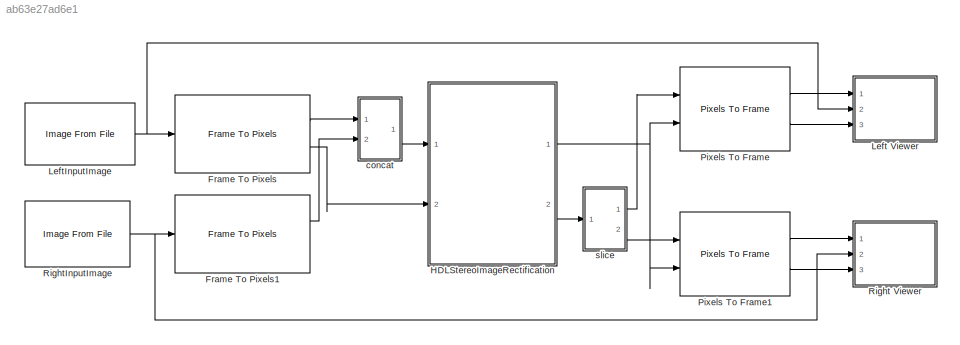
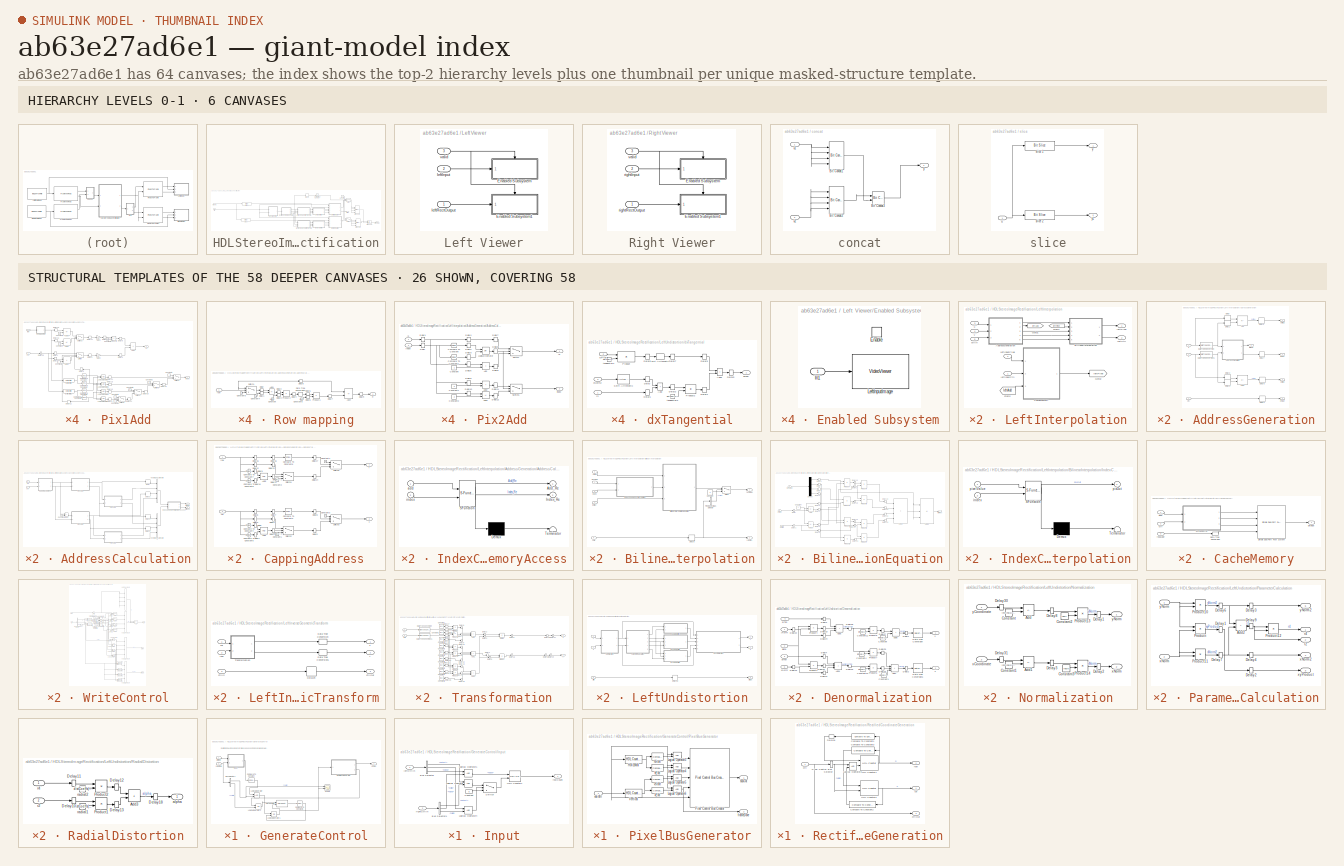
[diagram: thumbnail index - top-2 hierarchy levels (6 canvases) + 26 structural-template representatives of the remaining 58 canvases]
MODEL slx_ab63e27ad6e1
KIND model
CONFIG AbsTol = auto
CONFIG EnableMultiTasking = off
CONFIG FixedStep = 1
CONFIG InitFcn = load('stereoParams.mat');\nimg = imread(get_param('StereoImageRectificationHDL2020a/LeftInputImage','FileName'));\ndimOut=size(img);\n[imgRowSize, imgColSize] = size(img);\nrun('ComputeRectificationParams.m');\n\n\n\n\n\n
CONFIG MaxStep = auto
CONFIG MinStep = auto
CONFIG RelTol = 1e-3
CONFIG SampleTimeConstraint = Unconstrained
CONFIG Solver = FixedStepDiscrete
CONFIG SolverName = FixedStepDiscrete
CONFIG StartTime = 0.0
CONFIG StopTime = totalPixels*totalLines
BLOCK [Reference] Frame To Pixels  REF=visionhdlio/Frame To Pixels
  Ports = [1, 2]
  SourceBlock = visionhdlio/Frame To Pixels
  SourceProductBaseCode = VT
  SourceType = Frame To Pixels
BLOCK [Reference] Frame To Pixels1  REF=visionhdlio/Frame To Pixels
  Ports = [1, 2]
  SourceBlock = visionhdlio/Frame To Pixels
  SourceProductBaseCode = VT
  SourceType = Frame To Pixels
BLOCK [SubSystem] HDLStereoImageRectification
  Ports = [2, 2]
  RequestExecContextInheritance = off
  TreatAsAtomicUnit = on
BLOCK [Reference] HDLStereoImageRectification/Bit Concat1  REF=hdlsllib/Logic and Bit
Operations/Bit Concat
  Ports = [4, 1]
  SourceBlock = hdlsllib/Logic and Bit\nOperations/Bit Concat
  SourceProductBaseCode = SL
  SourceType = Bit Concat
BLOCK [Reference] HDLStereoImageRectification/Bit Concat2  REF=hdlsllib/Logic and Bit
Operations/Bit Concat
  Ports = [4, 1]
  SourceBlock = hdlsllib/Logic and Bit\nOperations/Bit Concat
  SourceProductBaseCode = SL
  SourceType = Bit Concat
BLOCK [Reference] HDLStereoImageRectification/Bit Concat3  REF=hdlsllib/Logic and Bit
Operations/Bit Concat
  Ports = [2, 1]
  SourceBlock = hdlsllib/Logic and Bit\nOperations/Bit Concat
  SourceProductBaseCode = SL
  SourceType = Bit Concat
BLOCK [Reference] HDLStereoImageRectification/Compare To Constant  REF=simulink/Logic and Bit
Operations/Compare
To Constant
  Ports = [1, 1]
  SourceBlock = simulink/Logic and Bit\nOperations/Compare\nTo Constant
  SourceProductBaseCode = SL
  SourceType = Compare To Constant
BLOCK [Constant] HDLStereoImageRectification/Constant
  OutDataTypeStr = Inherit: Inherit via back propagation
  SampleTime = -1
  Value = 0
BLOCK [Delay] HDLStereoImageRectification/Delay8
  DelayLength = 63
  InputPortMap = u0
  Ports = [1, 1]
BLOCK [SubSystem] HDLStereoImageRectification/GenerateControl
  Ports = [2, 1]
  RequestExecContextInheritance = off
BLOCK [BusSelector] HDLStereoImageRectification/GenerateControl/Bus Selector1
  OutputSignals = valid,vStart
  Ports = [1, 2]
BLOCK [Reference] HDLStereoImageRectification/GenerateControl/Compare To Constant  REF=simulink/Logic and Bit
Operations/Compare
To Constant
  Ports = [1, 1]
  SourceBlock = simulink/Logic and Bit\nOperations/Compare\nTo Constant
  SourceProductBaseCode = SL
  SourceType = Compare To Constant
BLOCK [Reference] HDLStereoImageRectification/GenerateControl/Compare To Constant1  REF=simulink/Logic and Bit
Operations/Compare
To Constant
  Ports = [1, 1]
  SourceBlock = simulink/Logic and Bit\nOperations/Compare\nTo Constant
  SourceProductBaseCode = SL
  SourceType = Compare To Constant
BLOCK [Reference] HDLStereoImageRectification/GenerateControl/HDL Counter1  REF=hdlsllib/Sources/HDL Counter
  Ports = [2, 1]
  SourceBlock = hdlsllib/Sources/HDL Counter
  SourceProductBaseCode = SL
  SourceType = HDL Counter
BLOCK [SubSystem] HDLStereoImageRectification/GenerateControl/Input
  Ports = [2, 1]
  RequestExecContextInheritance = off
BLOCK [BusSelector] HDLStereoImageRectification/GenerateControl/Input/Bus Selector
  OutputSignals = hStart,valid,vEnd
  Ports = [1, 3]
BLOCK [BusSelector] HDLStereoImageRectification/GenerateControl/Input/Bus Selector1
  OutputSignals = hStart,vEnd,valid
  Ports = [1, 3]
BLOCK [Constant] HDLStereoImageRectification/GenerateControl/Input/Constant
  OutDataTypeStr = boolean
  SampleTime = -1
  Value = 0
BLOCK [Reference] HDLStereoImageRectification/GenerateControl/Input/HDL Counter1  REF=hdlsllib/Sources/HDL Counter
  Ports = [2, 1]
  SourceBlock = hdlsllib/Sources/HDL Counter
  SourceProductBaseCode = SL
  SourceType = HDL Counter
BLOCK [Logic] HDLStereoImageRectification/GenerateControl/Input/Logical Operator
  AllPortsSameDT = off
  OutDataTypeStr = boolean
  Ports = [2, 1]
BLOCK [Logic] HDLStereoImageRectification/GenerateControl/Input/Logical Operator1
  AllPortsSameDT = off
  OutDataTypeStr = boolean
  Ports = [2, 1]
BLOCK [Logic] HDLStereoImageRectification/GenerateControl/Input/Logical Operator4
  AllPortsSameDT = off
  OutDataTypeStr = boolean
  Ports = [2, 1]
BLOCK [Switch] HDLStereoImageRectification/GenerateControl/Input/Switch
  Criteria = u2 ~= 0
  InputSameDT = off
  SaturateOnIntegerOverflow = off
BLOCK [Inport] HDLStereoImageRectification/GenerateControl/Input/leftCtrlIn
BLOCK [Inport] HDLStereoImageRectification/GenerateControl/Input/rightCtrlIn
  Port = 2
BLOCK [Outport] HDLStereoImageRectification/GenerateControl/Input/rowCount
  VectorParamsAs1DForOutWhenUnconnected = off
BLOCK [Logic] HDLStereoImageRectification/GenerateControl/Logical Operator
  AllPortsSameDT = off
  OutDataTypeStr = boolean
  Ports = [2, 1]
BLOCK [Logic] HDLStereoImageRectification/GenerateControl/Logical Operator1
  AllPortsSameDT = off
  Operator = OR
  OutDataTypeStr = boolean
  Ports = [2, 1]
BLOCK [Logic] HDLStereoImageRectification/GenerateControl/Logical Operator2
  AllPortsSameDT = off
  Operator = OR
  OutDataTypeStr = boolean
  Ports = [2, 1]
BLOCK [SubSystem] HDLStereoImageRectification/GenerateControl/PixelBusGenerator
  Ports = [1, 2]
  RequestExecContextInheritance = off
BLOCK [Reference] HDLStereoImageRectification/GenerateControl/PixelBusGenerator/Horizontal  REF=hdlsllib/Sources/HDL Counter
  Ports = [1, 1]
  SourceBlock = hdlsllib/Sources/HDL Counter
  SourceProductBaseCode = SL
  SourceType = HDL Counter
BLOCK [Logic] HDLStereoImageRectification/GenerateControl/PixelBusGenerator/Logical Operator3
  AllPortsSameDT = off
  OutDataTypeStr = boolean
  Ports = [2, 1]
BLOCK [Logic] HDLStereoImageRectification/GenerateControl/PixelBusGenerator/Logical Operator4
  AllPortsSameDT = off
  OutDataTypeStr = boolean
  Ports = [2, 1]
BLOCK [Logic] HDLStereoImageRectification/GenerateControl/PixelBusGenerator/Logical Operator5
  AllPortsSameDT = off
  OutDataTypeStr = boolean
  Ports = [2, 1]
BLOCK [Logic] HDLStereoImageRectification/GenerateControl/PixelBusGenerator/Logical Operator6
  AllPortsSameDT = off
  OutDataTypeStr = boolean
  Ports = [2, 1]
BLOCK [Reference] HDLStereoImageRectification/GenerateControl/PixelBusGenerator/Pixel Control Bus Creator  REF=visionhdlutilities/Pixel Control
Bus Creator
  Ports = [5, 1]
  SourceBlock = visionhdlutilities/Pixel Control\nBus Creator
  SourceProductBaseCode = VT
  SourceType = Pixel Control Bus Creator
BLOCK [Reference] HDLStereoImageRectification/GenerateControl/PixelBusGenerator/Vertical  REF=hdlsllib/Sources/HDL Counter
  Ports = [1, 1]
  SourceBlock = hdlsllib/Sources/HDL Counter
  SourceProductBaseCode = SL
  SourceType = HDL Counter
BLOCK [Outport] HDLStereoImageRectification/GenerateControl/PixelBusGenerator/busOut
  VectorParamsAs1DForOutWhenUnconnected = off
BLOCK [Outport] HDLStereoImageRectification/GenerateControl/PixelBusGenerator/frameDone
  Port = 2
  VectorParamsAs1DForOutWhenUnconnected = off
BLOCK [Reference] HDLStereoImageRectification/GenerateControl/PixelBusGenerator/hEnd  REF=simulink/Logic and Bit
Operations/Compare
To Constant
  Ports = [1, 1]
  SourceBlock = simulink/Logic and Bit\nOperations/Compare\nTo Constant
  SourceProductBaseCode = SL
  SourceType = Compare To Constant
BLOCK [Reference] HDLStereoImageRectification/GenerateControl/PixelBusGenerator/hStart  REF=simulink/Logic and Bit
Operations/Compare
To Constant
  Ports = [1, 1]
  SourceBlock = simulink/Logic and Bit\nOperations/Compare\nTo Constant
  SourceProductBaseCode = SL
  SourceType = Compare To Constant
BLOCK [Reference] HDLStereoImageRectification/GenerateControl/PixelBusGenerator/vEnd  REF=simulink/Logic and Bit
Operations/Compare
To Constant
  Ports = [1, 1]
  SourceBlock = simulink/Logic and Bit\nOperations/Compare\nTo Constant
  SourceProductBaseCode = SL
  SourceType = Compare To Constant
BLOCK [Reference] HDLStereoImageRectification/GenerateControl/PixelBusGenerator/vStart  REF=simulink/Logic and Bit
Operations/Compare
To Constant
  Ports = [1, 1]
  SourceBlock = simulink/Logic and Bit\nOperations/Compare\nTo Constant
  SourceProductBaseCode = SL
  SourceType = Compare To Constant
BLOCK [Inport] HDLStereoImageRectification/GenerateControl/PixelBusGenerator/validIn
BLOCK [Scope] HDLStereoImageRectification/GenerateControl/Scope
  Floating = off
  NumInputPorts = 2
  Ports = [2]
  ScopeSpecificationString = Simulink.scopes.TimeScopeBlockCfg('CurrentConfiguration', extmgr.ConfigurationSet(extmgr.Configuration('Core','General UI',true),extmgr.Configuration('Core','Source UI',true),extmgr.Configuration('Sources','WiredSimulink',true),extmgr.Configuration('Visuals','Time Domain',true,'SerializedDisplays',{struct('MinYLimReal','-0.125','MaxYLimReal','1.125','YLabelReal','','MinYLimMag','0.00000','MaxYLimM...<+2085ch>
BLOCK [Outport] HDLStereoImageRectification/GenerateControl/ctrlOut
BLOCK [Inport] HDLStereoImageRectification/GenerateControl/leftCtrlIn
BLOCK [Inport] HDLStereoImageRectification/GenerateControl/rightCtrlIn
  Port = 2
BLOCK [SubSystem] HDLStereoImageRectification/LeftInterpolation
  Ports = [5, 2]
  RequestExecContextInheritance = off
BLOCK [SubSystem] HDLStereoImageRectification/LeftInterpolation/AddressGeneration
  Ports = [3, 5]
  RequestExecContextInheritance = off
BLOCK [Sum] HDLStereoImageRectification/LeftInterpolation/AddressGeneration/Add
  IconShape = rectangular
  Inputs = +-
  OutDataTypeStr = Inherit: Inherit via back propagation
  Ports = [2, 1]
BLOCK [Sum] HDLStereoImageRectification/LeftInterpolation/AddressGeneration/Add1
  AccumDataTypeStr = Inherit: Same as first input
  IconShape = rectangular
  Inputs = +-
  OutDataTypeStr = Inherit: Inherit via back propagation
  Ports = [2, 1]
BLOCK [SubSystem] HDLStereoImageRectification/LeftInterpolation/AddressGeneration/AddressCalculation
  Ports = [2, 2]
  RequestExecContextInheritance = off
BLOCK [Sum] HDLStereoImageRectification/LeftInterpolation/AddressGeneration/AddressCalculation/Add4
  AccumDataTypeStr = Inherit: Same as first input
  IconShape = rectangular
  OutDataTypeStr = Inherit: Same as first input
  Ports = [2, 1]
BLOCK [SubSystem] HDLStereoImageRectification/LeftInterpolation/AddressGeneration/AddressCalculation/CappingAddress
  Ports = [2, 2]
  RequestExecContextInheritance = off
BLOCK [Logic] HDLStereoImageRectification/LeftInterpolation/AddressGeneration/AddressCalculation/CappingAddress/AND1
  AllPortsSameDT = off
  IconShape = distinctive
  OutDataTypeStr = boolean
  Ports = [2, 1]
BLOCK [Logic] HDLStereoImageRectification/LeftInterpolation/AddressGeneration/AddressCalculation/CappingAddress/AND2
  AllPortsSameDT = off
  IconShape = distinctive
  OutDataTypeStr = boolean
  Ports = [2, 1]
BLOCK [Reference] HDLStereoImageRectification/LeftInterpolation/AddressGeneration/AddressCalculation/CappingAddress/Compare To Constant3  REF=simulink/Logic and Bit
Operations/Compare
To Constant
  Ports = [1, 1]
  SourceBlock = simulink/Logic and Bit\nOperations/Compare\nTo Constant
  SourceProductBaseCode = SL
  SourceType = Compare To Constant
BLOCK [Reference] HDLStereoImageRectification/LeftInterpolation/AddressGeneration/AddressCalculation/CappingAddress/Compare To Constant4  REF=simulink/Logic and Bit
Operations/Compare
To Constant
  Ports = [1, 1]
  SourceBlock = simulink/Logic and Bit\nOperations/Compare\nTo Constant
  SourceProductBaseCode = SL
  SourceType = Compare To Constant
BLOCK [Reference] HDLStereoImageRectification/LeftInterpolation/AddressGeneration/AddressCalculation/CappingAddress/Compare To Constant5  REF=simulink/Logic and Bit
Operations/Compare
To Constant
  Ports = [1, 1]
  SourceBlock = simulink/Logic and Bit\nOperations/Compare\nTo Constant
  SourceProductBaseCode = SL
  SourceType = Compare To Constant
BLOCK [Reference] HDLStereoImageRectification/LeftInterpolation/AddressGeneration/AddressCalculation/CappingAddress/Compare To Constant6  REF=simulink/Logic and Bit
Operations/Compare
To Constant
  Ports = [1, 1]
  SourceBlock = simulink/Logic and Bit\nOperations/Compare\nTo Constant
  SourceProductBaseCode = SL
  SourceType = Compare To Constant
BLOCK [Reference] HDLStereoImageRectification/LeftInterpolation/AddressGeneration/AddressCalculation/CappingAddress/Compare To Constant7  REF=simulink/Logic and Bit
Operations/Compare
To Constant
  Ports = [1, 1]
  SourceBlock = simulink/Logic and Bit\nOperations/Compare\nTo Constant
  SourceProductBaseCode = SL
  SourceType = Compare To Constant
BLOCK [Reference] HDLStereoImageRectification/LeftInterpolation/AddressGeneration/AddressCalculation/CappingAddress/Compare To Constant8  REF=simulink/Logic and Bit
Operations/Compare
To Constant
  Ports = [1, 1]
  SourceBlock = simulink/Logic and Bit\nOperations/Compare\nTo Constant
  SourceProductBaseCode = SL
  SourceType = Compare To Constant
BLOCK [Constant] HDLStereoImageRectification/LeftInterpolation/AddressGeneration/AddressCalculation/CappingAddress/Constant1
  OutDataTypeStr = Inherit: Inherit via back propagation
  SampleTime = -1
  Value = dimOut(2)-1
BLOCK [Constant] HDLStereoImageRectification/LeftInterpolation/AddressGeneration/AddressCalculation/CappingAddress/Constant2
  OutDataTypeStr = Inherit: Inherit via back propagation
  SampleTime = -1
  Value = dimOut(1)-1
BLOCK [Constant] HDLStereoImageRectification/LeftInterpolation/AddressGeneration/AddressCalculation/CappingAddress/Constant3
  OutDataTypeStr = Inherit: Inherit via back propagation
  SampleTime = -1
BLOCK [Constant] HDLStereoImageRectification/LeftInterpolation/AddressGeneration/AddressCalculation/CappingAddress/Constant4
  OutDataTypeStr = Inherit: Inherit via back propagation
  SampleTime = -1
BLOCK [Delay] HDLStereoImageRectification/LeftInterpolation/AddressGeneration/AddressCalculation/CappingAddress/Delay
  DelayLength = 1
  InputPortMap = u0
  Ports = [1, 1]
BLOCK [Delay] HDLStereoImageRectification/LeftInterpolation/AddressGeneration/AddressCalculation/CappingAddress/Delay1
  DelayLength = 1
  InputPortMap = u0
  Ports = [1, 1]
BLOCK [Delay] HDLStereoImageRectification/LeftInterpolation/AddressGeneration/AddressCalculation/CappingAddress/Delay10
  DelayLength = 1
  InputPortMap = u0
  Ports = [1, 1]
BLOCK [Delay] HDLStereoImageRectification/LeftInterpolation/AddressGeneration/AddressCalculation/CappingAddress/Delay11
  DelayLength = 1
  InputPortMap = u0
  Ports = [1, 1]
BLOCK [Delay] HDLStereoImageRectification/LeftInterpolation/AddressGeneration/AddressCalculation/CappingAddress/Delay12
  DelayLength = 1
  InputPortMap = u0
  Ports = [1, 1]
BLOCK [Delay] HDLStereoImageRectification/LeftInterpolation/AddressGeneration/AddressCalculation/CappingAddress/Delay13
  DelayLength = 1
  InputPortMap = u0
  Ports = [1, 1]
BLOCK [Delay] HDLStereoImageRectification/LeftInterpolation/AddressGeneration/AddressCalculation/CappingAddress/Delay14
  DelayLength = 1
  InputPortMap = u0
  Ports = [1, 1]
BLOCK [Delay] HDLStereoImageRectification/LeftInterpolation/AddressGeneration/AddressCalculation/CappingAddress/Delay15
  DelayLength = 1
  InputPortMap = u0
  Ports = [1, 1]
BLOCK [Delay] HDLStereoImageRectification/LeftInterpolation/AddressGeneration/AddressCalculation/CappingAddress/Delay16
  DelayLength = 1
  InputPortMap = u0
  Ports = [1, 1]
BLOCK [Delay] HDLStereoImageRectification/LeftInterpolation/AddressGeneration/AddressCalculation/CappingAddress/Delay17
  DelayLength = 1
  InputPortMap = u0
  Ports = [1, 1]
BLOCK [Delay] HDLStereoImageRectification/LeftInterpolation/AddressGeneration/AddressCalculation/CappingAddress/Delay2
  DelayLength = 1
  InputPortMap = u0
  Ports = [1, 1]
BLOCK [Delay] HDLStereoImageRectification/LeftInterpolation/AddressGeneration/AddressCalculation/CappingAddress/Delay3
  DelayLength = 1
  InputPortMap = u0
  Ports = [1, 1]
BLOCK [Delay] HDLStereoImageRectification/LeftInterpolation/AddressGeneration/AddressCalculation/CappingAddress/Delay4
  DelayLength = 1
  InputPortMap = u0
  Ports = [1, 1]
BLOCK [Delay] HDLStereoImageRectification/LeftInterpolation/AddressGeneration/AddressCalculation/CappingAddress/Delay5
  DelayLength = 1
  InputPortMap = u0
  Ports = [1, 1]
BLOCK [Delay] HDLStereoImageRectification/LeftInterpolation/AddressGeneration/AddressCalculation/CappingAddress/Delay6
  DelayLength = 1
  InputPortMap = u0
  Ports = [1, 1]
BLOCK [Delay] HDLStereoImageRectification/LeftInterpolation/AddressGeneration/AddressCalculation/CappingAddress/Delay7
  DelayLength = 1
  InputPortMap = u0
  Ports = [1, 1]
BLOCK [Delay] HDLStereoImageRectification/LeftInterpolation/AddressGeneration/AddressCalculation/CappingAddress/Delay8
  DelayLength = 1
  InputPortMap = u0
  Ports = [1, 1]
BLOCK [Delay] HDLStereoImageRectification/LeftInterpolation/AddressGeneration/AddressCalculation/CappingAddress/Delay9
  DelayLength = 1
  InputPortMap = u0
  Ports = [1, 1]
BLOCK [Switch] HDLStereoImageRectification/LeftInterpolation/AddressGeneration/AddressCalculation/CappingAddress/Switch2
  Criteria = u2 ~= 0
  InputSameDT = off
  OutDataTypeStr = Inherit: Inherit via back propagation
  SaturateOnIntegerOverflow = off
BLOCK [Switch] HDLStereoImageRectification/LeftInterpolation/AddressGeneration/AddressCalculation/CappingAddress/Switch3
  Criteria = u2 ~= 0
  InputSameDT = off
  OutDataTypeStr = Inherit: Inherit via back propagation
  SaturateOnIntegerOverflow = off
BLOCK [Switch] HDLStereoImageRectification/LeftInterpolation/AddressGeneration/AddressCalculation/CappingAddress/Switch4
  Criteria = u2 ~= 0
  InputSameDT = off
  OutDataTypeStr = Inherit: Inherit via back propagation
  SaturateOnIntegerOverflow = off
BLOCK [Switch] HDLStereoImageRectification/LeftInterpolation/AddressGeneration/AddressCalculation/CappingAddress/Switch5
  Criteria = u2 ~= 0
  InputSameDT = off
  OutDataTypeStr = Inherit: Inherit via back propagation
  SaturateOnIntegerOverflow = off
BLOCK [Outport] HDLStereoImageRectification/LeftInterpolation/AddressGeneration/AddressCalculation/CappingAddress/c
  Port = 2
BLOCK [Inport] HDLStereoImageRectification/LeftInterpolation/AddressGeneration/AddressCalculation/CappingAddress/col
  Port = 2
BLOCK [Outport] HDLStereoImageRectification/LeftInterpolation/AddressGeneration/AddressCalculation/CappingAddress/r
BLOCK [Inport] HDLStereoImageRectification/LeftInterpolation/AddressGeneration/AddressCalculation/CappingAddress/row
BLOCK [Constant] HDLStereoImageRectification/LeftInterpolation/AddressGeneration/AddressCalculation/Constant2
  OutDataTypeStr = Inherit: Inherit via back propagation
  SampleTime = -1
BLOCK [Delay] HDLStereoImageRectification/LeftInterpolation/AddressGeneration/AddressCalculation/Delay
  DelayLength = 3
  InputPortMap = u0
  Ports = [1, 1]
BLOCK [Delay] HDLStereoImageRectification/LeftInterpolation/AddressGeneration/AddressCalculation/Delay1
  DelayLength = 3
  InputPortMap = u0
  Ports = [1, 1]
BLOCK [Delay] HDLStereoImageRectification/LeftInterpolation/AddressGeneration/AddressCalculation/Delay2
  DelayLength = 3
  InputPortMap = u0
  Ports = [1, 1]
BLOCK [Delay] HDLStereoImageRectification/LeftInterpolation/AddressGeneration/AddressCalculation/Delay3
  DelayLength = 3
  InputPortMap = u0
  Ports = [1, 1]
BLOCK [SubSystem] HDLStereoImageRectification/LeftInterpolation/AddressGeneration/AddressCalculation/IndexChangeForMemoryAccess
  ErrorFcn = Stateflow.Translate.translate
  PermitHierarchicalResolution = ExplicitOnly
  Ports = [2, 2]
  RequestExecContextInheritance = off
  SFBlockType = MATLAB Function
  TreatAsAtomicUnit = on
BLOCK [Demux] HDLStereoImageRectification/LeftInterpolation/AddressGeneration/AddressCalculation/IndexChangeForMemoryAccess/ Demux 
  Outputs = 1
  Ports = [1, 1]
BLOCK [S-Function] HDLStereoImageRectification/LeftInterpolation/AddressGeneration/AddressCalculation/IndexChangeForMemoryAccess/ SFunction 
  EnableBusSupport = off
  FunctionName = sf_sfun
  PortCounts = [2 3]
  Ports = [2, 3]
  SFcnIsStateOwnerBlock = off
  SFunctionDeploymentMode = off
  Tag = Stateflow S-Function 3
BLOCK [Terminator] HDLStereoImageRectification/LeftInterpolation/AddressGeneration/AddressCalculation/IndexChangeForMemoryAccess/ Terminator 
BLOCK [Outport] HDLStereoImageRectification/LeftInterpolation/AddressGeneration/AddressCalculation/IndexChangeForMemoryAccess/Add_Re
  VectorParamsAs1DForOutWhenUnconnected = off
BLOCK [Outport] HDLStereoImageRectification/LeftInterpolation/AddressGeneration/AddressCalculation/IndexChangeForMemoryAccess/Index_Re
  Port = 2
BLOCK [Inport] HDLStereoImageRectification/LeftInterpolation/AddressGeneration/AddressCalculation/IndexChangeForMemoryAccess/add
BLOCK [Inport] HDLStereoImageRectification/LeftInterpolation/AddressGeneration/AddressCalculation/IndexChangeForMemoryAccess/index
  Port = 2
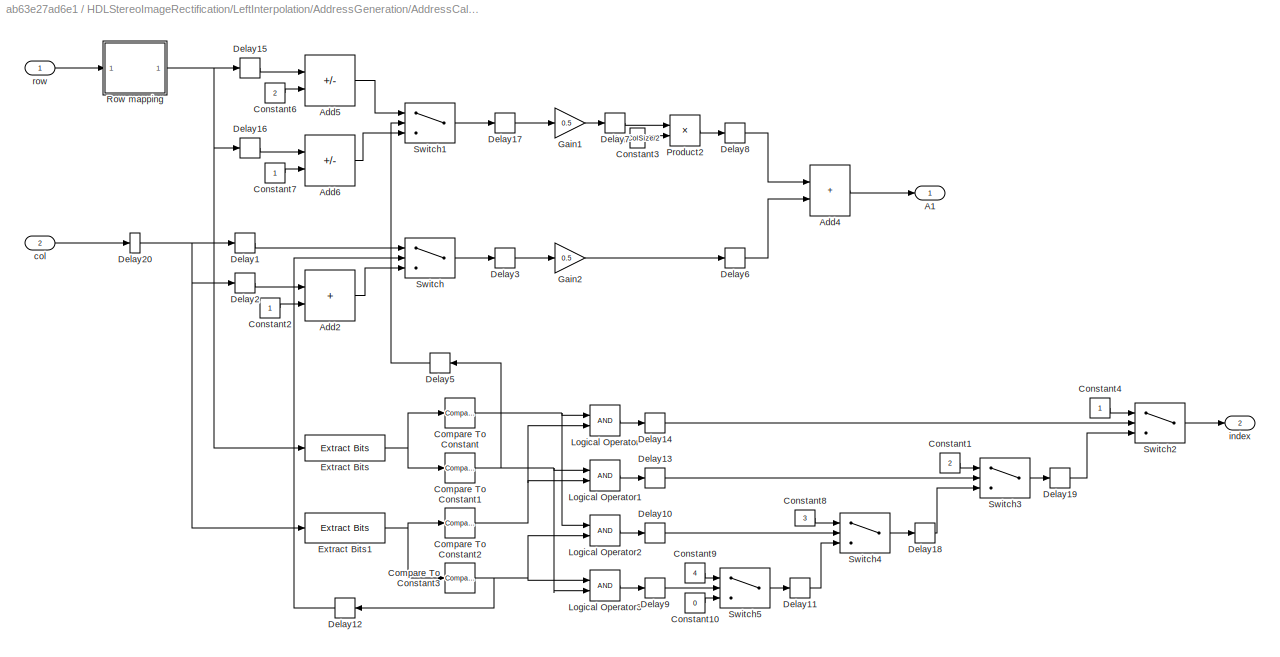
BLOCK [SubSystem] HDLStereoImageRectification/LeftInterpolation/AddressGeneration/AddressCalculation/Pix1Add
  Ports = [2, 2]
  RequestExecContextInheritance = off
BLOCK [Outport] HDLStereoImageRectification/LeftInterpolation/AddressGeneration/AddressCalculation/Pix1Add/A1
BLOCK [Sum] HDLStereoImageRectification/LeftInterpolation/AddressGeneration/AddressCalculation/Pix1Add/Add2
  AccumDataTypeStr = Inherit: Same as first input
  IconShape = rectangular
  OutDataTypeStr = Inherit: Same as first input
  Ports = [2, 1]
BLOCK [Sum] HDLStereoImageRectification/LeftInterpolation/AddressGeneration/AddressCalculation/Pix1Add/Add4
  AccumDataTypeStr = Inherit: Same as first input
  IconShape = rectangular
  OutDataTypeStr = Inherit: Same as first input
  Ports = [2, 1]
BLOCK [Sum] HDLStereoImageRectification/LeftInterpolation/AddressGeneration/AddressCalculation/Pix1Add/Add5
  AccumDataTypeStr = Inherit: Same as first input
  IconShape = rectangular
  Inputs = +-
  OutDataTypeStr = Inherit: Same as first input
  Ports = [2, 1]
BLOCK [Sum] HDLStereoImageRectification/LeftInterpolation/AddressGeneration/AddressCalculation/Pix1Add/Add6
  AccumDataTypeStr = Inherit: Same as first input
  IconShape = rectangular
  Inputs = +-
  OutDataTypeStr = Inherit: Same as first input
  Ports = [2, 1]
BLOCK [Reference] HDLStereoImageRectification/LeftInterpolation/AddressGeneration/AddressCalculation/Pix1Add/Compare To Constant  REF=simulink/Logic and Bit
Operations/Compare
To Constant
  Ports = [1, 1]
  SourceBlock = simulink/Logic and Bit\nOperations/Compare\nTo Constant
  SourceProductBaseCode = SL
  SourceType = Compare To Constant
BLOCK [Reference] HDLStereoImageRectification/LeftInterpolation/AddressGeneration/AddressCalculation/Pix1Add/Compare To Constant1  REF=simulink/Logic and Bit
Operations/Compare
To Constant
  Ports = [1, 1]
  SourceBlock = simulink/Logic and Bit\nOperations/Compare\nTo Constant
  SourceProductBaseCode = SL
  SourceType = Compare To Constant
BLOCK [Reference] HDLStereoImageRectification/LeftInterpolation/AddressGeneration/AddressCalculation/Pix1Add/Compare To Constant2  REF=simulink/Logic and Bit
Operations/Compare
To Constant
  Ports = [1, 1]
  SourceBlock = simulink/Logic and Bit\nOperations/Compare\nTo Constant
  SourceProductBaseCode = SL
  SourceType = Compare To Constant
BLOCK [Reference] HDLStereoImageRectification/LeftInterpolation/AddressGeneration/AddressCalculation/Pix1Add/Compare To Constant3  REF=simulink/Logic and Bit
Operations/Compare
To Constant
  Ports = [1, 1]
  SourceBlock = simulink/Logic and Bit\nOperations/Compare\nTo Constant
  SourceProductBaseCode = SL
  SourceType = Compare To Constant
BLOCK [Constant] HDLStereoImageRectification/LeftInterpolation/AddressGeneration/AddressCalculation/Pix1Add/Constant1
  OutDataTypeStr = uint8
  SampleTime = -1
  Value = 2
BLOCK [Constant] HDLStereoImageRectification/LeftInterpolation/AddressGeneration/AddressCalculation/Pix1Add/Constant10
  OutDataTypeStr = uint8
  SampleTime = -1
  Value = 0
BLOCK [Constant] HDLStereoImageRectification/LeftInterpolation/AddressGeneration/AddressCalculation/Pix1Add/Constant2
  OutDataTypeStr = Inherit: Inherit via back propagation
  SampleTime = -1
BLOCK [Constant] HDLStereoImageRectification/LeftInterpolation/AddressGeneration/AddressCalculation/Pix1Add/Constant3
  OutDataTypeStr = uint32
  SampleTime = -1
  Value = imgColSize/2
BLOCK [Constant] HDLStereoImageRectification/LeftInterpolation/AddressGeneration/AddressCalculation/Pix1Add/Constant4
  OutDataTypeStr = uint8
  SampleTime = -1
BLOCK [Constant] HDLStereoImageRectification/LeftInterpolation/AddressGeneration/AddressCalculation/Pix1Add/Constant6
  OutDataTypeStr = Inherit: Inherit via back propagation
  SampleTime = -1
  Value = 2
BLOCK [Constant] HDLStereoImageRectification/LeftInterpolation/AddressGeneration/AddressCalculation/Pix1Add/Constant7
  OutDataTypeStr = Inherit: Inherit via back propagation
  SampleTime = -1
BLOCK [Constant] HDLStereoImageRectification/LeftInterpolation/AddressGeneration/AddressCalculation/Pix1Add/Constant8
  OutDataTypeStr = uint8
  SampleTime = -1
  Value = 3
BLOCK [Constant] HDLStereoImageRectification/LeftInterpolation/AddressGeneration/AddressCalculation/Pix1Add/Constant9
  OutDataTypeStr = uint8
  SampleTime = -1
  Value = 4
BLOCK [Delay] HDLStereoImageRectification/LeftInterpolation/AddressGeneration/AddressCalculation/Pix1Add/Delay1
  DelayLength = 1
  InputPortMap = u0
  Ports = [1, 1]
BLOCK [Delay] HDLStereoImageRectification/LeftInterpolation/AddressGeneration/AddressCalculation/Pix1Add/Delay10
  InputPortMap = u0
  Ports = [1, 1]
BLOCK [Delay] HDLStereoImageRectification/LeftInterpolation/AddressGeneration/AddressCalculation/Pix1Add/Delay11
  DelayLength = 1
  InputPortMap = u0
  Ports = [1, 1]
BLOCK [Delay] HDLStereoImageRectification/LeftInterpolation/AddressGeneration/AddressCalculation/Pix1Add/Delay12
  DelayLength = 1
  InputPortMap = u0
  NameLocation = top
  Ports = [1, 1]
BLOCK [Delay] HDLStereoImageRectification/LeftInterpolation/AddressGeneration/AddressCalculation/Pix1Add/Delay13
  DelayLength = 3
  InputPortMap = u0
  Ports = [1, 1]
BLOCK [Delay] HDLStereoImageRectification/LeftInterpolation/AddressGeneration/AddressCalculation/Pix1Add/Delay14
  DelayLength = 4
  InputPortMap = u0
  Ports = [1, 1]
BLOCK [Delay] HDLStereoImageRectification/LeftInterpolation/AddressGeneration/AddressCalculation/Pix1Add/Delay15
  DelayLength = 1
  InputPortMap = u0
  Ports = [1, 1]
BLOCK [Delay] HDLStereoImageRectification/LeftInterpolation/AddressGeneration/AddressCalculation/Pix1Add/Delay16
  DelayLength = 1
  InputPortMap = u0
  Ports = [1, 1]
BLOCK [Delay] HDLStereoImageRectification/LeftInterpolation/AddressGeneration/AddressCalculation/Pix1Add/Delay17
  DelayLength = 1
  InputPortMap = u0
  Ports = [1, 1]
BLOCK [Delay] HDLStereoImageRectification/LeftInterpolation/AddressGeneration/AddressCalculation/Pix1Add/Delay18
  DelayLength = 1
  InputPortMap = u0
  Ports = [1, 1]
BLOCK [Delay] HDLStereoImageRectification/LeftInterpolation/AddressGeneration/AddressCalculation/Pix1Add/Delay19
  DelayLength = 1
  InputPortMap = u0
  Ports = [1, 1]
BLOCK [Delay] HDLStereoImageRectification/LeftInterpolation/AddressGeneration/AddressCalculation/Pix1Add/Delay2
  DelayLength = 1
  InputPortMap = u0
  Ports = [1, 1]
BLOCK [Delay] HDLStereoImageRectification/LeftInterpolation/AddressGeneration/AddressCalculation/Pix1Add/Delay20
  DelayLength = 10
  InputPortMap = u0
  Ports = [1, 1]
BLOCK [Delay] HDLStereoImageRectification/LeftInterpolation/AddressGeneration/AddressCalculation/Pix1Add/Delay3
  DelayLength = 1
  InputPortMap = u0
  Ports = [1, 1]
BLOCK [Delay] HDLStereoImageRectification/LeftInterpolation/AddressGeneration/AddressCalculation/Pix1Add/Delay5
  DelayLength = 1
  InputPortMap = u0
  NameLocation = top
  Ports = [1, 1]
BLOCK [Delay] HDLStereoImageRectification/LeftInterpolation/AddressGeneration/AddressCalculation/Pix1Add/Delay6
  InputPortMap = u0
  Ports = [1, 1]
BLOCK [Delay] HDLStereoImageRectification/LeftInterpolation/AddressGeneration/AddressCalculation/Pix1Add/Delay7
  DelayLength = 1
  InputPortMap = u0
  Ports = [1, 1]
BLOCK [Delay] HDLStereoImageRectification/LeftInterpolation/AddressGeneration/AddressCalculation/Pix1Add/Delay8
  DelayLength = 1
  InputPortMap = u0
  Ports = [1, 1]
BLOCK [Delay] HDLStereoImageRectification/LeftInterpolation/AddressGeneration/AddressCalculation/Pix1Add/Delay9
  DelayLength = 1
  InputPortMap = u0
  Ports = [1, 1]
BLOCK [Reference] HDLStereoImageRectification/LeftInterpolation/AddressGeneration/AddressCalculation/Pix1Add/Extract Bits  REF=simulink/Logic and Bit
Operations/Extract Bits
  Ports = [1, 1]
  SourceBlock = simulink/Logic and Bit\nOperations/Extract Bits
  SourceProductBaseCode = SL
  SourceType = Extract Bits
BLOCK [Reference] HDLStereoImageRectification/LeftInterpolation/AddressGeneration/AddressCalculation/Pix1Add/Extract Bits1  REF=simulink/Logic and Bit
Operations/Extract Bits
  Ports = [1, 1]
  SourceBlock = simulink/Logic and Bit\nOperations/Extract Bits
  SourceProductBaseCode = SL
  SourceType = Extract Bits
BLOCK [Gain] HDLStereoImageRectification/LeftInterpolation/AddressGeneration/AddressCalculation/Pix1Add/Gain1
  Gain = 0.5
  OutDataTypeStr = Inherit: Inherit via back propagation
BLOCK [Gain] HDLStereoImageRectification/LeftInterpolation/AddressGeneration/AddressCalculation/Pix1Add/Gain2
  Gain = 0.5
  OutDataTypeStr = Inherit: Inherit via back propagation
BLOCK [Logic] HDLStereoImageRectification/LeftInterpolation/AddressGeneration/AddressCalculation/Pix1Add/Logical Operator
  AllPortsSameDT = off
  OutDataTypeStr = boolean
  Ports = [2, 1]
BLOCK [Logic] HDLStereoImageRectification/LeftInterpolation/AddressGeneration/AddressCalculation/Pix1Add/Logical Operator1
  AllPortsSameDT = off
  OutDataTypeStr = boolean
  Ports = [2, 1]
BLOCK [Logic] HDLStereoImageRectification/LeftInterpolation/AddressGeneration/AddressCalculation/Pix1Add/Logical Operator2
  AllPortsSameDT = off
  OutDataTypeStr = boolean
  Ports = [2, 1]
BLOCK [Logic] HDLStereoImageRectification/LeftInterpolation/AddressGeneration/AddressCalculation/Pix1Add/Logical Operator3
  AllPortsSameDT = off
  OutDataTypeStr = boolean
  Ports = [2, 1]
BLOCK [Product] HDLStereoImageRectification/LeftInterpolation/AddressGeneration/AddressCalculation/Pix1Add/Product2
  OutDataTypeStr = Inherit: Inherit via back propagation
  Ports = [2, 1]
BLOCK [SubSystem] HDLStereoImageRectification/LeftInterpolation/AddressGeneration/AddressCalculation/Pix1Add/Row mapping
  Ports = [1, 1]
  RequestExecContextInheritance = off
BLOCK [Sum] HDLStereoImageRectification/LeftInterpolation/AddressGeneration/AddressCalculation/Pix1Add/Row mapping/Add1
  AccumDataTypeStr = Inherit: Same as first input
  IconShape = rectangular
  Inputs = +-
  OutDataTypeStr = Inherit: Same as first input
  Ports = [2, 1]
BLOCK [Sum] HDLStereoImageRectification/LeftInterpolation/AddressGeneration/AddressCalculation/Pix1Add/Row mapping/Add4
  AccumDataTypeStr = Inherit: Same as first input
  IconShape = rectangular
  Inputs = +-
  OutDataTypeStr = Inherit: Same as first input
  Ports = [2, 1]
BLOCK [Constant] HDLStereoImageRectification/LeftInterpolation/AddressGeneration/AddressCalculation/Pix1Add/Row mapping/Constant
  OutDataTypeStr = fixdt(0,16,22)
  SampleTime = -1
  Value = 1/offset
BLOCK [Constant] HDLStereoImageRectification/LeftInterpolation/AddressGeneration/AddressCalculation/Pix1Add/Row mapping/Constant4
  OutDataTypeStr = Inherit: Inherit via back propagation
  SampleTime = -1
BLOCK [Constant] HDLStereoImageRectification/LeftInterpolation/AddressGeneration/AddressCalculation/Pix1Add/Row mapping/Constant5
  OutDataTypeStr = uint8
  SampleTime = -1
  Value = offset
BLOCK [Constant] HDLStereoImageRectification/LeftInterpolation/AddressGeneration/AddressCalculation/Pix1Add/Row mapping/Constant6
  OutDataTypeStr = Inherit: Inherit via back propagation
  SampleTime = -1
  Value = 2
BLOCK [DataTypeConversion] HDLStereoImageRectification/LeftInterpolation/AddressGeneration/AddressCalculation/Pix1Add/Row mapping/Data Type Conversion1
  OutDataTypeStr = uint8
  RndMeth = Floor
  SaturateOnIntegerOverflow = off
BLOCK [Delay] HDLStereoImageRectification/LeftInterpolation/AddressGeneration/AddressCalculation/Pix1Add/Row mapping/Delay
  DelayLength = 1
  InputPortMap = u0
  Ports = [1, 1]
BLOCK [Delay] HDLStereoImageRectification/LeftInterpolation/AddressGeneration/AddressCalculation/Pix1Add/Row mapping/Delay1
  DelayLength = 1
  InputPortMap = u0
  Ports = [1, 1]
BLOCK [Delay] HDLStereoImageRectification/LeftInterpolation/AddressGeneration/AddressCalculation/Pix1Add/Row mapping/Delay2
  InputPortMap = u0
  Ports = [1, 1]
BLOCK [Delay] HDLStereoImageRectification/LeftInterpolation/AddressGeneration/AddressCalculation/Pix1Add/Row mapping/Delay3
  InputPortMap = u0
  Ports = [1, 1]
BLOCK [Delay] HDLStereoImageRectification/LeftInterpolation/AddressGeneration/AddressCalculation/Pix1Add/Row mapping/Delay4
  InputPortMap = u0
  Ports = [1, 1]
BLOCK [Delay] HDLStereoImageRectification/LeftInterpolation/AddressGeneration/AddressCalculation/Pix1Add/Row mapping/Delay5
  InputPortMap = u0
  Ports = [1, 1]
BLOCK [Delay] HDLStereoImageRectification/LeftInterpolation/AddressGeneration/AddressCalculation/Pix1Add/Row mapping/Delay6
  InputPortMap = u0
  Ports = [1, 1]
BLOCK [Delay] HDLStereoImageRectification/LeftInterpolation/AddressGeneration/AddressCalculation/Pix1Add/Row mapping/Delay7
  InputPortMap = u0
  Ports = [1, 1]
BLOCK [Delay] HDLStereoImageRectification/LeftInterpolation/AddressGeneration/AddressCalculation/Pix1Add/Row mapping/Delay8
  DelayLength = 9
  InputPortMap = u0
  Ports = [1, 1]
BLOCK [Delay] HDLStereoImageRectification/LeftInterpolation/AddressGeneration/AddressCalculation/Pix1Add/Row mapping/Delay9
  DelayLength = 1
  InputPortMap = u0
  Ports = [1, 1]
BLOCK [Product] HDLStereoImageRectification/LeftInterpolation/AddressGeneration/AddressCalculation/Pix1Add/Row mapping/Product1
  Ports = [2, 1]
BLOCK [Product] HDLStereoImageRectification/LeftInterpolation/AddressGeneration/AddressCalculation/Pix1Add/Row mapping/Product2
  OutDataTypeStr = uint8
  Ports = [2, 1]
BLOCK [Outport] HDLStereoImageRectification/LeftInterpolation/AddressGeneration/AddressCalculation/Pix1Add/Row mapping/R
BLOCK [Switch] HDLStereoImageRectification/LeftInterpolation/AddressGeneration/AddressCalculation/Pix1Add/Row mapping/Switch1
  InputSameDT = off
  OutDataTypeStr = Inherit: Inherit via back propagation
  SaturateOnIntegerOverflow = off
  Threshold = 2
BLOCK [Inport] HDLStereoImageRectification/LeftInterpolation/AddressGeneration/AddressCalculation/Pix1Add/Row mapping/row
BLOCK [Switch] HDLStereoImageRectification/LeftInterpolation/AddressGeneration/AddressCalculation/Pix1Add/Switch
  Criteria = u2 ~= 0
  InputSameDT = off
  SaturateOnIntegerOverflow = off
BLOCK [Switch] HDLStereoImageRectification/LeftInterpolation/AddressGeneration/AddressCalculation/Pix1Add/Switch1
  Criteria = u2 ~= 0
  InputSameDT = off
  SaturateOnIntegerOverflow = off
BLOCK [Switch] HDLStereoImageRectification/LeftInterpolation/AddressGeneration/AddressCalculation/Pix1Add/Switch2
  Criteria = u2 ~= 0
  InputSameDT = off
  SaturateOnIntegerOverflow = off
BLOCK [Switch] HDLStereoImageRectification/LeftInterpolation/AddressGeneration/AddressCalculation/Pix1Add/Switch3
  Criteria = u2 ~= 0
  InputSameDT = off
  SaturateOnIntegerOverflow = off
BLOCK [Switch] HDLStereoImageRectification/LeftInterpolation/AddressGeneration/AddressCalculation/Pix1Add/Switch4
  Criteria = u2 ~= 0
  InputSameDT = off
  SaturateOnIntegerOverflow = off
BLOCK [Switch] HDLStereoImageRectification/LeftInterpolation/AddressGeneration/AddressCalculation/Pix1Add/Switch5
  Criteria = u2 ~= 0
  InputSameDT = off
  SaturateOnIntegerOverflow = off
BLOCK [Inport] HDLStereoImageRectification/LeftInterpolation/AddressGeneration/AddressCalculation/Pix1Add/col
  Port = 2
BLOCK [Outport] HDLStereoImageRectification/LeftInterpolation/AddressGeneration/AddressCalculation/Pix1Add/index
  Port = 2
BLOCK [Inport] HDLStereoImageRectification/LeftInterpolation/AddressGeneration/AddressCalculation/Pix1Add/row
BLOCK [SubSystem] HDLStereoImageRectification/LeftInterpolation/AddressGeneration/AddressCalculation/Pix2Add
  Ports = [2, 2]
  RequestExecContextInheritance = off
BLOCK [Inport] HDLStereoImageRectification/LeftInterpolation/AddressGeneration/AddressCalculation/Pix2Add/A1
BLOCK [Outport] HDLStereoImageRectification/LeftInterpolation/AddressGeneration/AddressCalculation/Pix2Add/A2
BLOCK [Sum] HDLStereoImageRectification/LeftInterpolation/AddressGeneration/AddressCalculation/Pix2Add/Add
  IconShape = rectangular
  OutDataTypeStr = Inherit: Inherit via back propagation
  Ports = [2, 1]
BLOCK [Sum] HDLStereoImageRectification/LeftInterpolation/AddressGeneration/AddressCalculation/Pix2Add/Add2
  IconShape = rectangular
  OutDataTypeStr = Inherit: Inherit via back propagation
  Ports = [2, 1]
BLOCK [Sum] HDLStereoImageRectification/LeftInterpolation/AddressGeneration/AddressCalculation/Pix2Add/Add3
  IconShape = rectangular
  Inputs = +-
  OutDataTypeStr = Inherit: Inherit via back propagation
  Ports = [2, 1]
BLOCK [Reference] HDLStereoImageRectification/LeftInterpolation/AddressGeneration/AddressCalculation/Pix2Add/Compare To Constant  REF=simulink/Logic and Bit
Operations/Compare
To Constant
  Ports = [1, 1]
  SourceBlock = simulink/Logic and Bit\nOperations/Compare\nTo Constant
  SourceProductBaseCode = SL
  SourceType = Compare To Constant
BLOCK [Reference] HDLStereoImageRectification/LeftInterpolation/AddressGeneration/AddressCalculation/Pix2Add/Compare To Constant1  REF=simulink/Logic and Bit
Operations/Compare
To Constant
  Ports = [1, 1]
  SourceBlock = simulink/Logic and Bit\nOperations/Compare\nTo Constant
  SourceProductBaseCode = SL
  SourceType = Compare To Constant
BLOCK [Constant] HDLStereoImageRectification/LeftInterpolation/AddressGeneration/AddressCalculation/Pix2Add/Constant
  OutDataTypeStr = Inherit: Inherit via back propagation
  SampleTime = -1
BLOCK [Constant] HDLStereoImageRectification/LeftInterpolation/AddressGeneration/AddressCalculation/Pix2Add/Constant1
  OutDataTypeStr = Inherit: Inherit via back propagation
  SampleTime = -1
  Value = 2
BLOCK [Constant] HDLStereoImageRectification/LeftInterpolation/AddressGeneration/AddressCalculation/Pix2Add/Constant2
  OutDataTypeStr = Inherit: Inherit via back propagation
  SampleTime = -1
  Value = 2
BLOCK [Delay] HDLStereoImageRectification/LeftInterpolation/AddressGeneration/AddressCalculation/Pix2Add/Delay
  DelayLength = 1
  InputPortMap = u0
  Ports = [1, 1]
BLOCK [Delay] HDLStereoImageRectification/LeftInterpolation/AddressGeneration/AddressCalculation/Pix2Add/Delay1
  DelayLength = 1
  InputPortMap = u0
  Ports = [1, 1]
BLOCK [Delay] HDLStereoImageRectification/LeftInterpolation/AddressGeneration/AddressCalculation/Pix2Add/Delay10
  DelayLength = 1
  InputPortMap = u0
  Ports = [1, 1]
BLOCK [Delay] HDLStereoImageRectification/LeftInterpolation/AddressGeneration/AddressCalculation/Pix2Add/Delay11
  DelayLength = 1
  InputPortMap = u0
  Ports = [1, 1]
BLOCK [Delay] HDLStereoImageRectification/LeftInterpolation/AddressGeneration/AddressCalculation/Pix2Add/Delay12
  DelayLength = 1
  InputPortMap = u0
  Ports = [1, 1]
BLOCK [Delay] HDLStereoImageRectification/LeftInterpolation/AddressGeneration/AddressCalculation/Pix2Add/Delay2
  DelayLength = 1
  InputPortMap = u0
  Ports = [1, 1]
BLOCK [Delay] HDLStereoImageRectification/LeftInterpolation/AddressGeneration/AddressCalculation/Pix2Add/Delay3
  DelayLength = 1
  InputPortMap = u0
  Ports = [1, 1]
BLOCK [Delay] HDLStereoImageRectification/LeftInterpolation/AddressGeneration/AddressCalculation/Pix2Add/Delay4
  DelayLength = 1
  InputPortMap = u0
  Ports = [1, 1]
BLOCK [Delay] HDLStereoImageRectification/LeftInterpolation/AddressGeneration/AddressCalculation/Pix2Add/Delay5
  DelayLength = 1
  InputPortMap = u0
  Ports = [1, 1]
BLOCK [Delay] HDLStereoImageRectification/LeftInterpolation/AddressGeneration/AddressCalculation/Pix2Add/Delay6
  DelayLength = 1
  InputPortMap = u0
  Ports = [1, 1]
BLOCK [Delay] HDLStereoImageRectification/LeftInterpolation/AddressGeneration/AddressCalculation/Pix2Add/Delay7
  DelayLength = 1
  InputPortMap = u0
  Ports = [1, 1]
BLOCK [Delay] HDLStereoImageRectification/LeftInterpolation/AddressGeneration/AddressCalculation/Pix2Add/Delay8
  DelayLength = 1
  InputPortMap = u0
  Ports = [1, 1]
BLOCK [Delay] HDLStereoImageRectification/LeftInterpolation/AddressGeneration/AddressCalculation/Pix2Add/Delay9
  DelayLength = 1
  InputPortMap = u0
  Ports = [1, 1]
BLOCK [Inport] HDLStereoImageRectification/LeftInterpolation/AddressGeneration/AddressCalculation/Pix2Add/Index
  Port = 2
BLOCK [Logic] HDLStereoImageRectification/LeftInterpolation/AddressGeneration/AddressCalculation/Pix2Add/Logical Operator
  AllPortsSameDT = off
  Operator = OR
  OutDataTypeStr = boolean
  Ports = [2, 1]
BLOCK [Switch] HDLStereoImageRectification/LeftInterpolation/AddressGeneration/AddressCalculation/Pix2Add/Switch
  Criteria = u2 ~= 0
  InputSameDT = off
  SaturateOnIntegerOverflow = off
BLOCK [Switch] HDLStereoImageRectification/LeftInterpolation/AddressGeneration/AddressCalculation/Pix2Add/Switch1
  Criteria = u2 ~= 0
  InputSameDT = off
  SaturateOnIntegerOverflow = off
BLOCK [Outport] HDLStereoImageRectification/LeftInterpolation/AddressGeneration/AddressCalculation/Pix2Add/index
  Port = 2
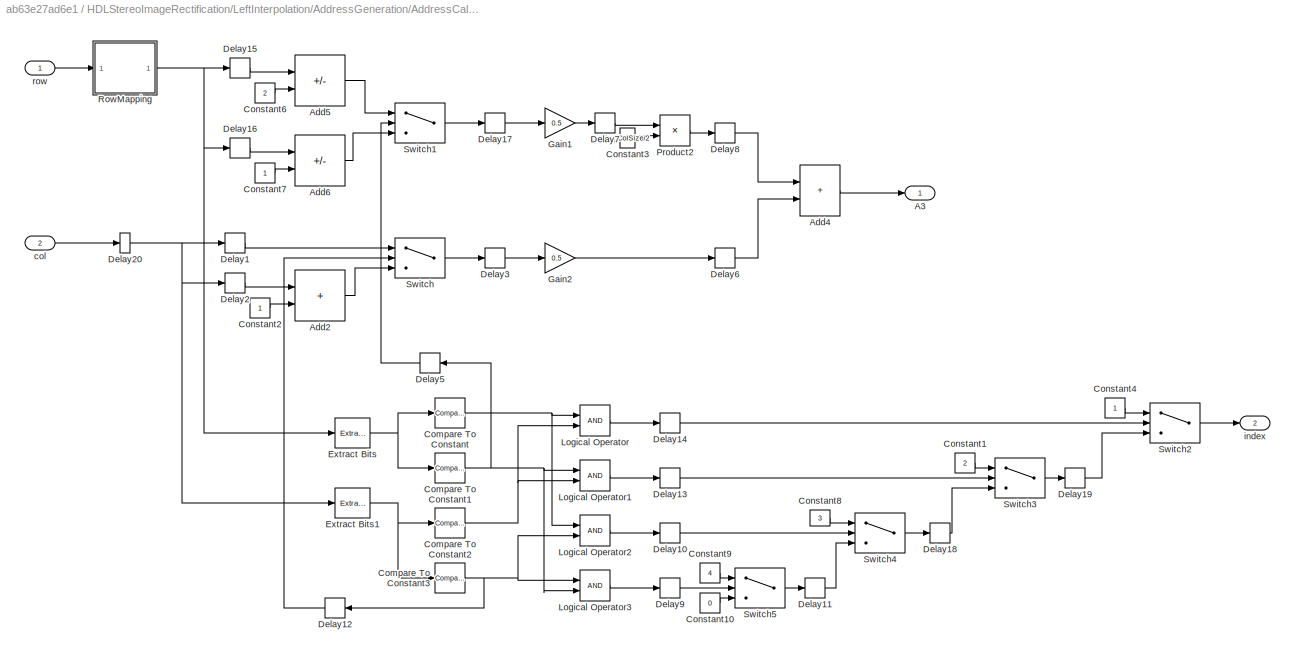
BLOCK [SubSystem] HDLStereoImageRectification/LeftInterpolation/AddressGeneration/AddressCalculation/Pix3Add
  Ports = [2, 2]
  RequestExecContextInheritance = off
BLOCK [Outport] HDLStereoImageRectification/LeftInterpolation/AddressGeneration/AddressCalculation/Pix3Add/A3
BLOCK [Sum] HDLStereoImageRectification/LeftInterpolation/AddressGeneration/AddressCalculation/Pix3Add/Add2
  AccumDataTypeStr = Inherit: Same as first input
  IconShape = rectangular
  OutDataTypeStr = Inherit: Same as first input
  Ports = [2, 1]
BLOCK [Sum] HDLStereoImageRectification/LeftInterpolation/AddressGeneration/AddressCalculation/Pix3Add/Add4
  AccumDataTypeStr = Inherit: Same as first input
  IconShape = rectangular
  OutDataTypeStr = Inherit: Same as first input
  Ports = [2, 1]
BLOCK [Sum] HDLStereoImageRectification/LeftInterpolation/AddressGeneration/AddressCalculation/Pix3Add/Add5
  AccumDataTypeStr = Inherit: Same as first input
  IconShape = rectangular
  Inputs = +-
  OutDataTypeStr = Inherit: Same as first input
  Ports = [2, 1]
BLOCK [Sum] HDLStereoImageRectification/LeftInterpolation/AddressGeneration/AddressCalculation/Pix3Add/Add6
  AccumDataTypeStr = Inherit: Same as first input
  IconShape = rectangular
  Inputs = +-
  OutDataTypeStr = Inherit: Same as first input
  Ports = [2, 1]
BLOCK [Reference] HDLStereoImageRectification/LeftInterpolation/AddressGeneration/AddressCalculation/Pix3Add/Compare To Constant  REF=simulink/Logic and Bit
Operations/Compare
To Constant
  Ports = [1, 1]
  SourceBlock = simulink/Logic and Bit\nOperations/Compare\nTo Constant
  SourceProductBaseCode = SL
  SourceType = Compare To Constant
BLOCK [Reference] HDLStereoImageRectification/LeftInterpolation/AddressGeneration/AddressCalculation/Pix3Add/Compare To Constant1  REF=simulink/Logic and Bit
Operations/Compare
To Constant
  Ports = [1, 1]
  SourceBlock = simulink/Logic and Bit\nOperations/Compare\nTo Constant
  SourceProductBaseCode = SL
  SourceType = Compare To Constant
BLOCK [Reference] HDLStereoImageRectification/LeftInterpolation/AddressGeneration/AddressCalculation/Pix3Add/Compare To Constant2  REF=simulink/Logic and Bit
Operations/Compare
To Constant
  Ports = [1, 1]
  SourceBlock = simulink/Logic and Bit\nOperations/Compare\nTo Constant
  SourceProductBaseCode = SL
  SourceType = Compare To Constant
BLOCK [Reference] HDLStereoImageRectification/LeftInterpolation/AddressGeneration/AddressCalculation/Pix3Add/Compare To Constant3  REF=simulink/Logic and Bit
Operations/Compare
To Constant
  Ports = [1, 1]
  SourceBlock = simulink/Logic and Bit\nOperations/Compare\nTo Constant
  SourceProductBaseCode = SL
  SourceType = Compare To Constant
BLOCK [Constant] HDLStereoImageRectification/LeftInterpolation/AddressGeneration/AddressCalculation/Pix3Add/Constant1
  OutDataTypeStr = uint8
  SampleTime = -1
  Value = 2
BLOCK [Constant] HDLStereoImageRectification/LeftInterpolation/AddressGeneration/AddressCalculation/Pix3Add/Constant10
  OutDataTypeStr = uint8
  SampleTime = -1
  Value = 0
BLOCK [Constant] HDLStereoImageRectification/LeftInterpolation/AddressGeneration/AddressCalculation/Pix3Add/Constant2
  OutDataTypeStr = Inherit: Inherit via back propagation
  SampleTime = -1
BLOCK [Constant] HDLStereoImageRectification/LeftInterpolation/AddressGeneration/AddressCalculation/Pix3Add/Constant3
  OutDataTypeStr = uint32
  SampleTime = -1
  Value = imgColSize/2
BLOCK [Constant] HDLStereoImageRectification/LeftInterpolation/AddressGeneration/AddressCalculation/Pix3Add/Constant4
  OutDataTypeStr = uint8
  SampleTime = -1
BLOCK [Constant] HDLStereoImageRectification/LeftInterpolation/AddressGeneration/AddressCalculation/Pix3Add/Constant6
  OutDataTypeStr = Inherit: Inherit via back propagation
  SampleTime = -1
  Value = 2
BLOCK [Constant] HDLStereoImageRectification/LeftInterpolation/AddressGeneration/AddressCalculation/Pix3Add/Constant7
  OutDataTypeStr = Inherit: Inherit via back propagation
  SampleTime = -1
BLOCK [Constant] HDLStereoImageRectification/LeftInterpolation/AddressGeneration/AddressCalculation/Pix3Add/Constant8
  OutDataTypeStr = uint8
  SampleTime = -1
  Value = 3
BLOCK [Constant] HDLStereoImageRectification/LeftInterpolation/AddressGeneration/AddressCalculation/Pix3Add/Constant9
  OutDataTypeStr = uint8
  SampleTime = -1
  Value = 4
BLOCK [Delay] HDLStereoImageRectification/LeftInterpolation/AddressGeneration/AddressCalculation/Pix3Add/Delay1
  DelayLength = 1
  InputPortMap = u0
  Ports = [1, 1]
BLOCK [Delay] HDLStereoImageRectification/LeftInterpolation/AddressGeneration/AddressCalculation/Pix3Add/Delay10
  InputPortMap = u0
  Ports = [1, 1]
BLOCK [Delay] HDLStereoImageRectification/LeftInterpolation/AddressGeneration/AddressCalculation/Pix3Add/Delay11
  DelayLength = 1
  InputPortMap = u0
  Ports = [1, 1]
BLOCK [Delay] HDLStereoImageRectification/LeftInterpolation/AddressGeneration/AddressCalculation/Pix3Add/Delay12
  DelayLength = 1
  InputPortMap = u0
  NameLocation = top
  Ports = [1, 1]
BLOCK [Delay] HDLStereoImageRectification/LeftInterpolation/AddressGeneration/AddressCalculation/Pix3Add/Delay13
  DelayLength = 3
  InputPortMap = u0
  Ports = [1, 1]
BLOCK [Delay] HDLStereoImageRectification/LeftInterpolation/AddressGeneration/AddressCalculation/Pix3Add/Delay14
  DelayLength = 4
  InputPortMap = u0
  Ports = [1, 1]
BLOCK [Delay] HDLStereoImageRectification/LeftInterpolation/AddressGeneration/AddressCalculation/Pix3Add/Delay15
  DelayLength = 1
  InputPortMap = u0
  Ports = [1, 1]
BLOCK [Delay] HDLStereoImageRectification/LeftInterpolation/AddressGeneration/AddressCalculation/Pix3Add/Delay16
  DelayLength = 1
  InputPortMap = u0
  Ports = [1, 1]
BLOCK [Delay] HDLStereoImageRectification/LeftInterpolation/AddressGeneration/AddressCalculation/Pix3Add/Delay17
  DelayLength = 1
  InputPortMap = u0
  Ports = [1, 1]
BLOCK [Delay] HDLStereoImageRectification/LeftInterpolation/AddressGeneration/AddressCalculation/Pix3Add/Delay18
  DelayLength = 1
  InputPortMap = u0
  Ports = [1, 1]
BLOCK [Delay] HDLStereoImageRectification/LeftInterpolation/AddressGeneration/AddressCalculation/Pix3Add/Delay19
  DelayLength = 1
  InputPortMap = u0
  Ports = [1, 1]
BLOCK [Delay] HDLStereoImageRectification/LeftInterpolation/AddressGeneration/AddressCalculation/Pix3Add/Delay2
  DelayLength = 1
  InputPortMap = u0
  Ports = [1, 1]
BLOCK [Delay] HDLStereoImageRectification/LeftInterpolation/AddressGeneration/AddressCalculation/Pix3Add/Delay20
  DelayLength = 10
  InputPortMap = u0
  Ports = [1, 1]
BLOCK [Delay] HDLStereoImageRectification/LeftInterpolation/AddressGeneration/AddressCalculation/Pix3Add/Delay3
  DelayLength = 1
  InputPortMap = u0
  Ports = [1, 1]
BLOCK [Delay] HDLStereoImageRectification/LeftInterpolation/AddressGeneration/AddressCalculation/Pix3Add/Delay5
  DelayLength = 1
  InputPortMap = u0
  NameLocation = top
  Ports = [1, 1]
BLOCK [Delay] HDLStereoImageRectification/LeftInterpolation/AddressGeneration/AddressCalculation/Pix3Add/Delay6
  InputPortMap = u0
  Ports = [1, 1]
BLOCK [Delay] HDLStereoImageRectification/LeftInterpolation/AddressGeneration/AddressCalculation/Pix3Add/Delay7
  DelayLength = 1
  InputPortMap = u0
  Ports = [1, 1]
BLOCK [Delay] HDLStereoImageRectification/LeftInterpolation/AddressGeneration/AddressCalculation/Pix3Add/Delay8
  DelayLength = 1
  InputPortMap = u0
  Ports = [1, 1]
BLOCK [Delay] HDLStereoImageRectification/LeftInterpolation/AddressGeneration/AddressCalculation/Pix3Add/Delay9
  DelayLength = 1
  InputPortMap = u0
  Ports = [1, 1]
BLOCK [Reference] HDLStereoImageRectification/LeftInterpolation/AddressGeneration/AddressCalculation/Pix3Add/Extract Bits  REF=simulink/Logic and Bit
Operations/Extract Bits
  Ports = [1, 1]
  SourceBlock = simulink/Logic and Bit\nOperations/Extract Bits
  SourceProductBaseCode = SL
  SourceType = Extract Bits
BLOCK [Reference] HDLStereoImageRectification/LeftInterpolation/AddressGeneration/AddressCalculation/Pix3Add/Extract Bits1  REF=simulink/Logic and Bit
Operations/Extract Bits
  Ports = [1, 1]
  SourceBlock = simulink/Logic and Bit\nOperations/Extract Bits
  SourceProductBaseCode = SL
  SourceType = Extract Bits
BLOCK [Gain] HDLStereoImageRectification/LeftInterpolation/AddressGeneration/AddressCalculation/Pix3Add/Gain1
  Gain = 0.5
  OutDataTypeStr = Inherit: Inherit via back propagation
BLOCK [Gain] HDLStereoImageRectification/LeftInterpolation/AddressGeneration/AddressCalculation/Pix3Add/Gain2
  Gain = 0.5
  OutDataTypeStr = Inherit: Inherit via back propagation
BLOCK [Logic] HDLStereoImageRectification/LeftInterpolation/AddressGeneration/AddressCalculation/Pix3Add/Logical Operator
  AllPortsSameDT = off
  OutDataTypeStr = boolean
  Ports = [2, 1]
BLOCK [Logic] HDLStereoImageRectification/LeftInterpolation/AddressGeneration/AddressCalculation/Pix3Add/Logical Operator1
  AllPortsSameDT = off
  OutDataTypeStr = boolean
  Ports = [2, 1]
BLOCK [Logic] HDLStereoImageRectification/LeftInterpolation/AddressGeneration/AddressCalculation/Pix3Add/Logical Operator2
  AllPortsSameDT = off
  OutDataTypeStr = boolean
  Ports = [2, 1]
BLOCK [Logic] HDLStereoImageRectification/LeftInterpolation/AddressGeneration/AddressCalculation/Pix3Add/Logical Operator3
  AllPortsSameDT = off
  OutDataTypeStr = boolean
  Ports = [2, 1]
BLOCK [Product] HDLStereoImageRectification/LeftInterpolation/AddressGeneration/AddressCalculation/Pix3Add/Product2
  OutDataTypeStr = Inherit: Inherit via back propagation
  Ports = [2, 1]
BLOCK [SubSystem] HDLStereoImageRectification/LeftInterpolation/AddressGeneration/AddressCalculation/Pix3Add/RowMapping
  Ports = [1, 1]
  RequestExecContextInheritance = off
BLOCK [Sum] HDLStereoImageRectification/LeftInterpolation/AddressGeneration/AddressCalculation/Pix3Add/RowMapping/Add1
  AccumDataTypeStr = Inherit: Same as first input
  IconShape = rectangular
  Inputs = +-
  OutDataTypeStr = Inherit: Same as first input
  Ports = [2, 1]
BLOCK [Sum] HDLStereoImageRectification/LeftInterpolation/AddressGeneration/AddressCalculation/Pix3Add/RowMapping/Add4
  AccumDataTypeStr = Inherit: Same as first input
  IconShape = rectangular
  Inputs = +-
  OutDataTypeStr = Inherit: Same as first input
  Ports = [2, 1]
BLOCK [Constant] HDLStereoImageRectification/LeftInterpolation/AddressGeneration/AddressCalculation/Pix3Add/RowMapping/Constant
  OutDataTypeStr = fixdt(0,16,22)
  SampleTime = -1
  Value = 1/offset
BLOCK [Constant] HDLStereoImageRectification/LeftInterpolation/AddressGeneration/AddressCalculation/Pix3Add/RowMapping/Constant4
  OutDataTypeStr = Inherit: Inherit via back propagation
  SampleTime = -1
BLOCK [Constant] HDLStereoImageRectification/LeftInterpolation/AddressGeneration/AddressCalculation/Pix3Add/RowMapping/Constant5
  OutDataTypeStr = uint8
  SampleTime = -1
  Value = offset
BLOCK [Constant] HDLStereoImageRectification/LeftInterpolation/AddressGeneration/AddressCalculation/Pix3Add/RowMapping/Constant6
  OutDataTypeStr = Inherit: Inherit via back propagation
  SampleTime = -1
  Value = 2
BLOCK [DataTypeConversion] HDLStereoImageRectification/LeftInterpolation/AddressGeneration/AddressCalculation/Pix3Add/RowMapping/Data Type Conversion1
  OutDataTypeStr = uint8
  RndMeth = Floor
  SaturateOnIntegerOverflow = off
BLOCK [Delay] HDLStereoImageRectification/LeftInterpolation/AddressGeneration/AddressCalculation/Pix3Add/RowMapping/Delay
  DelayLength = 1
  InputPortMap = u0
  Ports = [1, 1]
BLOCK [Delay] HDLStereoImageRectification/LeftInterpolation/AddressGeneration/AddressCalculation/Pix3Add/RowMapping/Delay1
  DelayLength = 1
  InputPortMap = u0
  Ports = [1, 1]
BLOCK [Delay] HDLStereoImageRectification/LeftInterpolation/AddressGeneration/AddressCalculation/Pix3Add/RowMapping/Delay2
  InputPortMap = u0
  Ports = [1, 1]
BLOCK [Delay] HDLStereoImageRectification/LeftInterpolation/AddressGeneration/AddressCalculation/Pix3Add/RowMapping/Delay3
  InputPortMap = u0
  Ports = [1, 1]
BLOCK [Delay] HDLStereoImageRectification/LeftInterpolation/AddressGeneration/AddressCalculation/Pix3Add/RowMapping/Delay4
  InputPortMap = u0
  Ports = [1, 1]
BLOCK [Delay] HDLStereoImageRectification/LeftInterpolation/AddressGeneration/AddressCalculation/Pix3Add/RowMapping/Delay5
  InputPortMap = u0
  Ports = [1, 1]
BLOCK [Delay] HDLStereoImageRectification/LeftInterpolation/AddressGeneration/AddressCalculation/Pix3Add/RowMapping/Delay6
  InputPortMap = u0
  Ports = [1, 1]
BLOCK [Delay] HDLStereoImageRectification/LeftInterpolation/AddressGeneration/AddressCalculation/Pix3Add/RowMapping/Delay7
  InputPortMap = u0
  Ports = [1, 1]
BLOCK [Delay] HDLStereoImageRectification/LeftInterpolation/AddressGeneration/AddressCalculation/Pix3Add/RowMapping/Delay8
  DelayLength = 9
  InputPortMap = u0
  Ports = [1, 1]
BLOCK [Delay] HDLStereoImageRectification/LeftInterpolation/AddressGeneration/AddressCalculation/Pix3Add/RowMapping/Delay9
  DelayLength = 1
  InputPortMap = u0
  Ports = [1, 1]
BLOCK [Product] HDLStereoImageRectification/LeftInterpolation/AddressGeneration/AddressCalculation/Pix3Add/RowMapping/Product1
  Ports = [2, 1]
BLOCK [Product] HDLStereoImageRectification/LeftInterpolation/AddressGeneration/AddressCalculation/Pix3Add/RowMapping/Product2
  OutDataTypeStr = uint8
  Ports = [2, 1]
BLOCK [Outport] HDLStereoImageRectification/LeftInterpolation/AddressGeneration/AddressCalculation/Pix3Add/RowMapping/R
BLOCK [Switch] HDLStereoImageRectification/LeftInterpolation/AddressGeneration/AddressCalculation/Pix3Add/RowMapping/Switch1
  InputSameDT = off
  OutDataTypeStr = Inherit: Inherit via back propagation
  SaturateOnIntegerOverflow = off
  Threshold = 2
BLOCK [Inport] HDLStereoImageRectification/LeftInterpolation/AddressGeneration/AddressCalculation/Pix3Add/RowMapping/row
BLOCK [Switch] HDLStereoImageRectification/LeftInterpolation/AddressGeneration/AddressCalculation/Pix3Add/Switch
  Criteria = u2 ~= 0
  InputSameDT = off
  SaturateOnIntegerOverflow = off
BLOCK [Switch] HDLStereoImageRectification/LeftInterpolation/AddressGeneration/AddressCalculation/Pix3Add/Switch1
  Criteria = u2 ~= 0
  InputSameDT = off
  SaturateOnIntegerOverflow = off
BLOCK [Switch] HDLStereoImageRectification/LeftInterpolation/AddressGeneration/AddressCalculation/Pix3Add/Switch2
  Criteria = u2 ~= 0
  InputSameDT = off
  SaturateOnIntegerOverflow = off
BLOCK [Switch] HDLStereoImageRectification/LeftInterpolation/AddressGeneration/AddressCalculation/Pix3Add/Switch3
  Criteria = u2 ~= 0
  InputSameDT = off
  SaturateOnIntegerOverflow = off
BLOCK [Switch] HDLStereoImageRectification/LeftInterpolation/AddressGeneration/AddressCalculation/Pix3Add/Switch4
  Criteria = u2 ~= 0
  InputSameDT = off
  SaturateOnIntegerOverflow = off
BLOCK [Switch] HDLStereoImageRectification/LeftInterpolation/AddressGeneration/AddressCalculation/Pix3Add/Switch5
  Criteria = u2 ~= 0
  InputSameDT = off
  SaturateOnIntegerOverflow = off
BLOCK [Inport] HDLStereoImageRectification/LeftInterpolation/AddressGeneration/AddressCalculation/Pix3Add/col
  Port = 2
BLOCK [Outport] HDLStereoImageRectification/LeftInterpolation/AddressGeneration/AddressCalculation/Pix3Add/index
  Port = 2
BLOCK [Inport] HDLStereoImageRectification/LeftInterpolation/AddressGeneration/AddressCalculation/Pix3Add/row
BLOCK [SubSystem] HDLStereoImageRectification/LeftInterpolation/AddressGeneration/AddressCalculation/Pix4Add
  Ports = [2, 2]
  RequestExecContextInheritance = off
BLOCK [Inport] HDLStereoImageRectification/LeftInterpolation/AddressGeneration/AddressCalculation/Pix4Add/A3
BLOCK [Outport] HDLStereoImageRectification/LeftInterpolation/AddressGeneration/AddressCalculation/Pix4Add/A4
BLOCK [Sum] HDLStereoImageRectification/LeftInterpolation/AddressGeneration/AddressCalculation/Pix4Add/Add
  IconShape = rectangular
  OutDataTypeStr = Inherit: Inherit via back propagation
  Ports = [2, 1]
BLOCK [Sum] HDLStereoImageRectification/LeftInterpolation/AddressGeneration/AddressCalculation/Pix4Add/Add2
  IconShape = rectangular
  OutDataTypeStr = Inherit: Inherit via back propagation
  Ports = [2, 1]
BLOCK [Sum] HDLStereoImageRectification/LeftInterpolation/AddressGeneration/AddressCalculation/Pix4Add/Add3
  IconShape = rectangular
  Inputs = +-
  OutDataTypeStr = Inherit: Inherit via back propagation
  Ports = [2, 1]
BLOCK [Reference] HDLStereoImageRectification/LeftInterpolation/AddressGeneration/AddressCalculation/Pix4Add/Compare To Constant  REF=simulink/Logic and Bit
Operations/Compare
To Constant
  Ports = [1, 1]
  SourceBlock = simulink/Logic and Bit\nOperations/Compare\nTo Constant
  SourceProductBaseCode = SL
  SourceType = Compare To Constant
BLOCK [Reference] HDLStereoImageRectification/LeftInterpolation/AddressGeneration/AddressCalculation/Pix4Add/Compare To Constant1  REF=simulink/Logic and Bit
Operations/Compare
To Constant
  Ports = [1, 1]
  SourceBlock = simulink/Logic and Bit\nOperations/Compare\nTo Constant
  SourceProductBaseCode = SL
  SourceType = Compare To Constant
BLOCK [Constant] HDLStereoImageRectification/LeftInterpolation/AddressGeneration/AddressCalculation/Pix4Add/Constant
  OutDataTypeStr = Inherit: Inherit via back propagation
  SampleTime = -1
BLOCK [Constant] HDLStereoImageRectification/LeftInterpolation/AddressGeneration/AddressCalculation/Pix4Add/Constant1
  OutDataTypeStr = Inherit: Inherit via back propagation
  SampleTime = -1
  Value = 2
BLOCK [Constant] HDLStereoImageRectification/LeftInterpolation/AddressGeneration/AddressCalculation/Pix4Add/Constant2
  OutDataTypeStr = Inherit: Inherit via back propagation
  SampleTime = -1
  Value = 2
BLOCK [Delay] HDLStereoImageRectification/LeftInterpolation/AddressGeneration/AddressCalculation/Pix4Add/Delay
  DelayLength = 1
  InputPortMap = u0
  Ports = [1, 1]
BLOCK [Delay] HDLStereoImageRectification/LeftInterpolation/AddressGeneration/AddressCalculation/Pix4Add/Delay1
  DelayLength = 1
  InputPortMap = u0
  Ports = [1, 1]
BLOCK [Delay] HDLStereoImageRectification/LeftInterpolation/AddressGeneration/AddressCalculation/Pix4Add/Delay10
  DelayLength = 1
  InputPortMap = u0
  Ports = [1, 1]
BLOCK [Delay] HDLStereoImageRectification/LeftInterpolation/AddressGeneration/AddressCalculation/Pix4Add/Delay11
  DelayLength = 1
  InputPortMap = u0
  Ports = [1, 1]
BLOCK [Delay] HDLStereoImageRectification/LeftInterpolation/AddressGeneration/AddressCalculation/Pix4Add/Delay12
  DelayLength = 1
  InputPortMap = u0
  Ports = [1, 1]
BLOCK [Delay] HDLStereoImageRectification/LeftInterpolation/AddressGeneration/AddressCalculation/Pix4Add/Delay2
  DelayLength = 1
  InputPortMap = u0
  Ports = [1, 1]
BLOCK [Delay] HDLStereoImageRectification/LeftInterpolation/AddressGeneration/AddressCalculation/Pix4Add/Delay3
  DelayLength = 1
  InputPortMap = u0
  Ports = [1, 1]
BLOCK [Delay] HDLStereoImageRectification/LeftInterpolation/AddressGeneration/AddressCalculation/Pix4Add/Delay4
  DelayLength = 1
  InputPortMap = u0
  Ports = [1, 1]
BLOCK [Delay] HDLStereoImageRectification/LeftInterpolation/AddressGeneration/AddressCalculation/Pix4Add/Delay5
  DelayLength = 1
  InputPortMap = u0
  Ports = [1, 1]
BLOCK [Delay] HDLStereoImageRectification/LeftInterpolation/AddressGeneration/AddressCalculation/Pix4Add/Delay6
  DelayLength = 1
  InputPortMap = u0
  Ports = [1, 1]
BLOCK [Delay] HDLStereoImageRectification/LeftInterpolation/AddressGeneration/AddressCalculation/Pix4Add/Delay7
  DelayLength = 1
  InputPortMap = u0
  Ports = [1, 1]
BLOCK [Delay] HDLStereoImageRectification/LeftInterpolation/AddressGeneration/AddressCalculation/Pix4Add/Delay8
  DelayLength = 1
  InputPortMap = u0
  Ports = [1, 1]
BLOCK [Delay] HDLStereoImageRectification/LeftInterpolation/AddressGeneration/AddressCalculation/Pix4Add/Delay9
  DelayLength = 1
  InputPortMap = u0
  Ports = [1, 1]
BLOCK [Inport] HDLStereoImageRectification/LeftInterpolation/AddressGeneration/AddressCalculation/Pix4Add/Index
  Port = 2
BLOCK [Logic] HDLStereoImageRectification/LeftInterpolation/AddressGeneration/AddressCalculation/Pix4Add/Logical Operator
  AllPortsSameDT = off
  Operator = OR
  OutDataTypeStr = boolean
  Ports = [2, 1]
BLOCK [Switch] HDLStereoImageRectification/LeftInterpolation/AddressGeneration/AddressCalculation/Pix4Add/Switch
  Criteria = u2 ~= 0
  InputSameDT = off
  SaturateOnIntegerOverflow = off
BLOCK [Switch] HDLStereoImageRectification/LeftInterpolation/AddressGeneration/AddressCalculation/Pix4Add/Switch1
  Criteria = u2 ~= 0
  InputSameDT = off
  SaturateOnIntegerOverflow = off
BLOCK [Outport] HDLStereoImageRectification/LeftInterpolation/AddressGeneration/AddressCalculation/Pix4Add/index
  Port = 2
BLOCK [Concatenate] HDLStereoImageRectification/LeftInterpolation/AddressGeneration/AddressCalculation/Vector Concatenate
  NumInputs = 4
  Ports = [4, 1]
BLOCK [Concatenate] HDLStereoImageRectification/LeftInterpolation/AddressGeneration/AddressCalculation/Vector Concatenate1
  NumInputs = 4
  Ports = [4, 1]
BLOCK [Inport] HDLStereoImageRectification/LeftInterpolation/AddressGeneration/AddressCalculation/col
BLOCK [Outport] HDLStereoImageRectification/LeftInterpolation/AddressGeneration/AddressCalculation/leftAdd
BLOCK [Outport] HDLStereoImageRectification/LeftInterpolation/AddressGeneration/AddressCalculation/leftIndex
  Port = 2
BLOCK [Inport] HDLStereoImageRectification/LeftInterpolation/AddressGeneration/AddressCalculation/row
  Port = 2
BLOCK [DataTypeConversion] HDLStereoImageRectification/LeftInterpolation/AddressGeneration/Data Type Conversion
  OutDataTypeStr = fixdt(0,max(ceil(log2(max(dimOut))),16),0)
  RndMeth = Floor
  SaturateOnIntegerOverflow = off
BLOCK [DataTypeConversion] HDLStereoImageRectification/LeftInterpolation/AddressGeneration/Data Type Conversion1
  OutDataTypeStr = fixdt(0,max(ceil(log2(max(dimOut))),16),0)
  RndMeth = Floor
  SaturateOnIntegerOverflow = off
BLOCK [Delay] HDLStereoImageRectification/LeftInterpolation/AddressGeneration/Delay
  DelayLength = 1
  InputPortMap = u0
  Ports = [1, 1]
BLOCK [Delay] HDLStereoImageRectification/LeftInterpolation/AddressGeneration/Delay1
  DelayLength = 1
  InputPortMap = u0
  Ports = [1, 1]
BLOCK [Delay] HDLStereoImageRectification/LeftInterpolation/AddressGeneration/Delay2
  DelayLength = 1
  InputPortMap = u0
  Ports = [1, 1]
BLOCK [Delay] HDLStereoImageRectification/LeftInterpolation/AddressGeneration/Delay3
  DelayLength = 1
  InputPortMap = u0
  Ports = [1, 1]
BLOCK [Delay] HDLStereoImageRectification/LeftInterpolation/AddressGeneration/Delay4
  DelayLength = 4+1+3+3+10
  InputPortMap = u0
  Ports = [1, 1]
BLOCK [Delay] HDLStereoImageRectification/LeftInterpolation/AddressGeneration/Delay5
  DelayLength = 4+3+3+10
  InputPortMap = u0
  Ports = [1, 1]
BLOCK [Delay] HDLStereoImageRectification/LeftInterpolation/AddressGeneration/Delay6
  DelayLength = 4+3+3+10
  InputPortMap = u0
  Ports = [1, 1]
BLOCK [Delay] HDLStereoImageRectification/LeftInterpolation/AddressGeneration/Delay7
  DelayLength = 1
  InputPortMap = u0
  Ports = [1, 1]
BLOCK [Inport] HDLStereoImageRectification/LeftInterpolation/AddressGeneration/ctrl
  Port = 3
BLOCK [Outport] HDLStereoImageRectification/LeftInterpolation/AddressGeneration/ctrlOut
  Port = 5
BLOCK [Outport] HDLStereoImageRectification/LeftInterpolation/AddressGeneration/deltaU
BLOCK [Outport] HDLStereoImageRectification/LeftInterpolation/AddressGeneration/deltaV
  Port = 4
BLOCK [Outport] HDLStereoImageRectification/LeftInterpolation/AddressGeneration/index
  Port = 3
BLOCK [Outport] HDLStereoImageRectification/LeftInterpolation/AddressGeneration/leftAdd
  Port = 2
BLOCK [Inport] HDLStereoImageRectification/LeftInterpolation/AddressGeneration/u
BLOCK [Inport] HDLStereoImageRectification/LeftInterpolation/AddressGeneration/v
  Port = 2
BLOCK [SubSystem] HDLStereoImageRectification/LeftInterpolation/BilinearInterpolation
  Ports = [5, 2]
  RequestExecContextInheritance = off
BLOCK [SubSystem] HDLStereoImageRectification/LeftInterpolation/BilinearInterpolation/BilinearInterpolationEquation
  Ports = [3, 1]
  RequestExecContextInheritance = off
BLOCK [Sum] HDLStereoImageRectification/LeftInterpolation/BilinearInterpolation/BilinearInterpolationEquation/Add
  IconShape = rectangular
  Inputs = +-
  OutDataTypeStr = Inherit: Inherit via back propagation
  Ports = [2, 1]
BLOCK [Sum] HDLStereoImageRectification/LeftInterpolation/BilinearInterpolation/BilinearInterpolationEquation/Add1
  IconShape = rectangular
  Inputs = +-
  OutDataTypeStr = Inherit: Inherit via back propagation
  Ports = [2, 1]
BLOCK [Sum] HDLStereoImageRectification/LeftInterpolation/BilinearInterpolation/BilinearInterpolationEquation/Add2
  IconShape = rectangular
  Inputs = ++++
  OutDataTypeStr = Inherit: Inherit via back propagation
  Ports = [4, 1]
  RndMeth = Nearest
BLOCK [Sum] HDLStereoImageRectification/LeftInterpolation/BilinearInterpolation/BilinearInterpolationEquation/Add3
  IconShape = rectangular
  Inputs = ++-
  OutDataTypeStr = Inherit: Same as first input
  Ports = [3, 1]
  RndMeth = Nearest
BLOCK [Constant] HDLStereoImageRectification/LeftInterpolation/BilinearInterpolation/BilinearInterpolationEquation/Constant
  OutDataTypeStr = Inherit: Inherit via back propagation
  SampleTime = -1
BLOCK [Delay] HDLStereoImageRectification/LeftInterpolation/BilinearInterpolation/BilinearInterpolationEquation/Delay
  InputPortMap = u0
  Ports = [1, 1]
BLOCK [Delay] HDLStereoImageRectification/LeftInterpolation/BilinearInterpolation/BilinearInterpolationEquation/Delay1
  InputPortMap = u0
  Ports = [1, 1]
BLOCK [Delay] HDLStereoImageRectification/LeftInterpolation/BilinearInterpolation/BilinearInterpolationEquation/Delay10
  InputPortMap = u0
  Ports = [1, 1]
BLOCK [Delay] HDLStereoImageRectification/LeftInterpolation/BilinearInterpolation/BilinearInterpolationEquation/Delay11
  InputPortMap = u0
  Ports = [1, 1]
BLOCK [Delay] HDLStereoImageRectification/LeftInterpolation/BilinearInterpolation/BilinearInterpolationEquation/Delay12
  InputPortMap = u0
  Ports = [1, 1]
BLOCK [Delay] HDLStereoImageRectification/LeftInterpolation/BilinearInterpolation/BilinearInterpolationEquation/Delay13
  InputPortMap = u0
  Ports = [1, 1]
BLOCK [Delay] HDLStereoImageRectification/LeftInterpolation/BilinearInterpolation/BilinearInterpolationEquation/Delay16
  InputPortMap = u0
  Ports = [1, 1]
BLOCK [Delay] HDLStereoImageRectification/LeftInterpolation/BilinearInterpolation/BilinearInterpolationEquation/Delay17
  InputPortMap = u0
  Ports = [1, 1]
BLOCK [Delay] HDLStereoImageRectification/LeftInterpolation/BilinearInterpolation/BilinearInterpolationEquation/Delay18
  InputPortMap = u0
  Ports = [1, 1]
BLOCK [Delay] HDLStereoImageRectification/LeftInterpolation/BilinearInterpolation/BilinearInterpolationEquation/Delay19
  InputPortMap = u0
  Ports = [1, 1]
BLOCK [Delay] HDLStereoImageRectification/LeftInterpolation/BilinearInterpolation/BilinearInterpolationEquation/Delay2
  InputPortMap = u0
  Ports = [1, 1]
BLOCK [Delay] HDLStereoImageRectification/LeftInterpolation/BilinearInterpolation/BilinearInterpolationEquation/Delay20
  InputPortMap = u0
  Ports = [1, 1]
BLOCK [Delay] HDLStereoImageRectification/LeftInterpolation/BilinearInterpolation/BilinearInterpolationEquation/Delay21
  InputPortMap = u0
  Ports = [1, 1]
BLOCK [Delay] HDLStereoImageRectification/LeftInterpolation/BilinearInterpolation/BilinearInterpolationEquation/Delay3
  InputPortMap = u0
  Ports = [1, 1]
BLOCK [Delay] HDLStereoImageRectification/LeftInterpolation/BilinearInterpolation/BilinearInterpolationEquation/Delay4
  DelayLength = 4
  InputPortMap = u0
  Ports = [1, 1]
BLOCK [Delay] HDLStereoImageRectification/LeftInterpolation/BilinearInterpolation/BilinearInterpolationEquation/Delay5
  InputPortMap = u0
  Ports = [1, 1]
BLOCK [Delay] HDLStereoImageRectification/LeftInterpolation/BilinearInterpolation/BilinearInterpolationEquation/Delay6
  DelayLength = 4
  InputPortMap = u0
  Ports = [1, 1]
BLOCK [Delay] HDLStereoImageRectification/LeftInterpolation/BilinearInterpolation/BilinearInterpolationEquation/Delay7
  DelayLength = 4
  InputPortMap = u0
  Ports = [1, 1]
BLOCK [Delay] HDLStereoImageRectification/LeftInterpolation/BilinearInterpolation/BilinearInterpolationEquation/Delay8
  InputPortMap = u0
  Ports = [1, 1]
BLOCK [Delay] HDLStereoImageRectification/LeftInterpolation/BilinearInterpolation/BilinearInterpolationEquation/Delay9
  DelayLength = 4
  InputPortMap = u0
  Ports = [1, 1]
BLOCK [Demux] HDLStereoImageRectification/LeftInterpolation/BilinearInterpolation/BilinearInterpolationEquation/Demux
  Ports = [1, 4]
BLOCK [Product] HDLStereoImageRectification/LeftInterpolation/BilinearInterpolation/BilinearInterpolationEquation/Product
  LockScale = on
  Ports = [2, 1]
BLOCK [Product] HDLStereoImageRectification/LeftInterpolation/BilinearInterpolation/BilinearInterpolationEquation/Product1
  LockScale = on
  Ports = [2, 1]
BLOCK [Product] HDLStereoImageRectification/LeftInterpolation/BilinearInterpolation/BilinearInterpolationEquation/Product2
  LockScale = on
  Ports = [2, 1]
BLOCK [Product] HDLStereoImageRectification/LeftInterpolation/BilinearInterpolation/BilinearInterpolationEquation/Product3
  LockScale = on
  Ports = [2, 1]
BLOCK [Product] HDLStereoImageRectification/LeftInterpolation/BilinearInterpolation/BilinearInterpolationEquation/Product4
  LockScale = on
  OutDataTypeStr = Inherit: Inherit via back propagation
  Ports = [2, 1]
BLOCK [Product] HDLStereoImageRectification/LeftInterpolation/BilinearInterpolation/BilinearInterpolationEquation/Product5
  LockScale = on
  OutDataTypeStr = Inherit: Inherit via back propagation
  Ports = [2, 1]
BLOCK [Product] HDLStereoImageRectification/LeftInterpolation/BilinearInterpolation/BilinearInterpolationEquation/Product6
  LockScale = on
  OutDataTypeStr = Inherit: Inherit via back propagation
  Ports = [2, 1]
BLOCK [Product] HDLStereoImageRectification/LeftInterpolation/BilinearInterpolation/BilinearInterpolationEquation/Product7
  LockScale = on
  OutDataTypeStr = Inherit: Inherit via back propagation
  Ports = [2, 1]
BLOCK [Inport] HDLStereoImageRectification/LeftInterpolation/BilinearInterpolation/BilinearInterpolationEquation/deltaU
BLOCK [Inport] HDLStereoImageRectification/LeftInterpolation/BilinearInterpolation/BilinearInterpolationEquation/deltaV
  Port = 3
BLOCK [Outport] HDLStereoImageRectification/LeftInterpolation/BilinearInterpolation/BilinearInterpolationEquation/leftPixel
BLOCK [Inport] HDLStereoImageRectification/LeftInterpolation/BilinearInterpolation/BilinearInterpolationEquation/pixValue
  Port = 2
BLOCK [Constant] HDLStereoImageRectification/LeftInterpolation/BilinearInterpolation/Constant
  OutDataTypeStr = Inherit: Inherit via back propagation
  SampleTime = -1
  Value = 0
BLOCK [Delay] HDLStereoImageRectification/LeftInterpolation/BilinearInterpolation/Delay8
  DelayLength = 8
  InputPortMap = u0
  Ports = [1, 1]
BLOCK [Inport] HDLStereoImageRectification/LeftInterpolation/BilinearInterpolation/Index
  Port = 3
BLOCK [SubSystem] HDLStereoImageRectification/LeftInterpolation/BilinearInterpolation/IndexChangeForInterpolation
  ErrorFcn = Stateflow.Translate.translate
  PermitHierarchicalResolution = ExplicitOnly
  Ports = [2, 1]
  RequestExecContextInheritance = off
  SFBlockType = MATLAB Function
  TreatAsAtomicUnit = on
BLOCK [Demux] HDLStereoImageRectification/LeftInterpolation/BilinearInterpolation/IndexChangeForInterpolation/ Demux 
  Outputs = 1
  Ports = [1, 1]
BLOCK [S-Function] HDLStereoImageRectification/LeftInterpolation/BilinearInterpolation/IndexChangeForInterpolation/ SFunction 
  EnableBusSupport = off
  FunctionName = sf_sfun
  PortCounts = [2 2]
  Ports = [2, 2]
  SFcnIsStateOwnerBlock = off
  SFunctionDeploymentMode = off
  Tag = Stateflow S-Function 7
BLOCK [Terminator] HDLStereoImageRectification/LeftInterpolation/BilinearInterpolation/IndexChangeForInterpolation/ Terminator 
BLOCK [Inport] HDLStereoImageRectification/LeftInterpolation/BilinearInterpolation/IndexChangeForInterpolation/index
  Port = 2
BLOCK [Outport] HDLStereoImageRectification/LeftInterpolation/BilinearInterpolation/IndexChangeForInterpolation/pixOut
  VectorParamsAs1DForOutWhenUnconnected = off
BLOCK [Inport] HDLStereoImageRectification/LeftInterpolation/BilinearInterpolation/IndexChangeForInterpolation/pixelValue
BLOCK [BusSelector] HDLStereoImageRectification/LeftInterpolation/BilinearInterpolation/Pixel Control Bus Selector
  OutputSignals = valid
  Ports = [1, 1]
BLOCK [Switch] HDLStereoImageRectification/LeftInterpolation/BilinearInterpolation/Switch
  Criteria = u2 ~= 0
  InputSameDT = off
  SaturateOnIntegerOverflow = off
BLOCK [Inport] HDLStereoImageRectification/LeftInterpolation/BilinearInterpolation/ctrlIn
  Port = 5
BLOCK [Inport] HDLStereoImageRectification/LeftInterpolation/BilinearInterpolation/deltaU
BLOCK [Inport] HDLStereoImageRectification/LeftInterpolation/BilinearInterpolation/deltaV
  Port = 4
BLOCK [Inport] HDLStereoImageRectification/LeftInterpolation/BilinearInterpolation/pixValue
  Port = 2
BLOCK [Outport] HDLStereoImageRectification/LeftInterpolation/BilinearInterpolation/rectCtrl
  Port = 2
BLOCK [Outport] HDLStereoImageRectification/LeftInterpolation/BilinearInterpolation/rectPixel
BLOCK [SubSystem] HDLStereoImageRectification/LeftInterpolation/CacheMemory
  Ports = [3, 1]
  RequestExecContextInheritance = off
BLOCK [DataTypeConversion] HDLStereoImageRectification/LeftInterpolation/CacheMemory/Data Type Conversion
  OutDataTypeStr = fixdt(0,ceil(log2(offset*dimOut(2)/4)),0)
  RndMeth = Floor
  SaturateOnIntegerOverflow = off
BLOCK [Reference] HDLStereoImageRectification/LeftInterpolation/CacheMemory/Simple Dual Port RAM System  REF=hdlsllib/HDL RAMs/Simple Dual Port
RAM System
  Ports = [4, 1]
  SourceBlock = hdlsllib/HDL RAMs/Simple Dual Port\nRAM System
  SourceProductBaseCode = SL
  SourceType = hdl.RAM
BLOCK [SubSystem] HDLStereoImageRectification/LeftInterpolation/CacheMemory/WriteControl
  Ports = [2, 3]
  RequestExecContextInheritance = off
BLOCK [Sum] HDLStereoImageRectification/LeftInterpolation/CacheMemory/WriteControl/Add
  IconShape = rectangular
  Inputs = ++-
  OutDataTypeStr = Inherit: Same as first input
  Ports = [3, 1]
BLOCK [Reference] HDLStereoImageRectification/LeftInterpolation/CacheMemory/WriteControl/Compare To Constant1  REF=simulink/Logic and Bit
Operations/Compare
To Constant
  Ports = [1, 1]
  SourceBlock = simulink/Logic and Bit\nOperations/Compare\nTo Constant
  SourceProductBaseCode = SL
  SourceType = Compare To Constant
BLOCK [Reference] HDLStereoImageRectification/LeftInterpolation/CacheMemory/WriteControl/Compare To Constant2  REF=simulink/Logic and Bit
Operations/Compare
To Constant
  Ports = [1, 1]
  SourceBlock = simulink/Logic and Bit\nOperations/Compare\nTo Constant
  SourceProductBaseCode = SL
  SourceType = Compare To Constant
BLOCK [Reference] HDLStereoImageRectification/LeftInterpolation/CacheMemory/WriteControl/Compare To Constant3  REF=simulink/Logic and Bit
Operations/Compare
To Constant
  Ports = [1, 1]
  SourceBlock = simulink/Logic and Bit\nOperations/Compare\nTo Constant
  SourceProductBaseCode = SL
  SourceType = Compare To Constant
BLOCK [Reference] HDLStereoImageRectification/LeftInterpolation/CacheMemory/WriteControl/Compare To Constant4  REF=simulink/Logic and Bit
Operations/Compare
To Constant
  Ports = [1, 1]
  SourceBlock = simulink/Logic and Bit\nOperations/Compare\nTo Constant
  SourceProductBaseCode = SL
  SourceType = Compare To Constant
BLOCK [Constant] HDLStereoImageRectification/LeftInterpolation/CacheMemory/WriteControl/Constant
  OutDataTypeStr = Inherit: Inherit via back propagation
  SampleTime = -1
  Value = 0
BLOCK [Constant] HDLStereoImageRectification/LeftInterpolation/CacheMemory/WriteControl/Constant1
  OutDataTypeStr = Inherit: Inherit via back propagation
  SampleTime = -1
  Value = 0
BLOCK [Constant] HDLStereoImageRectification/LeftInterpolation/CacheMemory/WriteControl/Constant2
  OutDataTypeStr = Inherit: Inherit via back propagation
  SampleTime = -1
  Value = 0
BLOCK [Constant] HDLStereoImageRectification/LeftInterpolation/CacheMemory/WriteControl/Constant3
  OutDataTypeStr = Inherit: Inherit via back propagation
  SampleTime = -1
  Value = 0
BLOCK [Delay] HDLStereoImageRectification/LeftInterpolation/CacheMemory/WriteControl/Delay
  DelayLength = 1
  InputPortMap = u0
  Ports = [1, 1]
BLOCK [Delay] HDLStereoImageRectification/LeftInterpolation/CacheMemory/WriteControl/Delay1
  DelayLength = 1
  InputPortMap = u0
  Ports = [1, 1]
BLOCK [Delay] HDLStereoImageRectification/LeftInterpolation/CacheMemory/WriteControl/Delay2
  DelayLength = 1
  InputPortMap = u0
  Ports = [1, 1]
BLOCK [Reference] HDLStereoImageRectification/LeftInterpolation/CacheMemory/WriteControl/HDL Counter2  REF=hdlsllib/Sources/HDL Counter
  Ports = [2, 1]
  SourceBlock = hdlsllib/Sources/HDL Counter
  SourceProductBaseCode = SL
  SourceType = HDL Counter
BLOCK [Reference] HDLStereoImageRectification/LeftInterpolation/CacheMemory/WriteControl/HDL Counter3  REF=hdlsllib/Sources/HDL Counter
  Ports = [2, 1]
  SourceBlock = hdlsllib/Sources/HDL Counter
  SourceProductBaseCode = SL
  SourceType = HDL Counter
BLOCK [Reference] HDLStereoImageRectification/LeftInterpolation/CacheMemory/WriteControl/HDL Counter4  REF=hdlsllib/Sources/HDL Counter
  Ports = [2, 1]
  SourceBlock = hdlsllib/Sources/HDL Counter
  SourceProductBaseCode = SL
  SourceType = HDL Counter
BLOCK [Reference] HDLStereoImageRectification/LeftInterpolation/CacheMemory/WriteControl/HDL Counter5  REF=hdlsllib/Sources/HDL Counter
  Ports = [2, 1]
  SourceBlock = hdlsllib/Sources/HDL Counter
  SourceProductBaseCode = SL
  SourceType = HDL Counter
BLOCK [Reference] HDLStereoImageRectification/LeftInterpolation/CacheMemory/WriteControl/HDL Counter6  REF=hdlsllib/Sources/HDL Counter
  Ports = [2, 1]
  SourceBlock = hdlsllib/Sources/HDL Counter
  SourceProductBaseCode = SL
  SourceType = HDL Counter
BLOCK [Reference] HDLStereoImageRectification/LeftInterpolation/CacheMemory/WriteControl/HDL Counter7  REF=hdlsllib/Sources/HDL Counter
  Ports = [2, 1]
  SourceBlock = hdlsllib/Sources/HDL Counter
  SourceProductBaseCode = SL
  SourceType = HDL Counter
BLOCK [Logic] HDLStereoImageRectification/LeftInterpolation/CacheMemory/WriteControl/Logical Operator
  AllPortsSameDT = off
  OutDataTypeStr = boolean
  Ports = [2, 1]
BLOCK [Logic] HDLStereoImageRectification/LeftInterpolation/CacheMemory/WriteControl/Logical Operator1
  AllPortsSameDT = off
  OutDataTypeStr = boolean
  Ports = [2, 1]
BLOCK [Logic] HDLStereoImageRectification/LeftInterpolation/CacheMemory/WriteControl/Logical Operator2
  AllPortsSameDT = off
  OutDataTypeStr = boolean
  Ports = [2, 1]
BLOCK [Logic] HDLStereoImageRectification/LeftInterpolation/CacheMemory/WriteControl/Logical Operator3
  AllPortsSameDT = off
  OutDataTypeStr = boolean
  Ports = [2, 1]
BLOCK [Logic] HDLStereoImageRectification/LeftInterpolation/CacheMemory/WriteControl/Logical Operator4
  AllPortsSameDT = off
  OutDataTypeStr = boolean
  Ports = [2, 1]
BLOCK [Logic] HDLStereoImageRectification/LeftInterpolation/CacheMemory/WriteControl/Logical Operator5
  AllPortsSameDT = off
  OutDataTypeStr = boolean
  Ports = [2, 1]
BLOCK [Logic] HDLStereoImageRectification/LeftInterpolation/CacheMemory/WriteControl/Logical Operator6
  AllPortsSameDT = off
  OutDataTypeStr = boolean
  Ports = [2, 1]
BLOCK [Logic] HDLStereoImageRectification/LeftInterpolation/CacheMemory/WriteControl/Logical Operator7
  AllPortsSameDT = off
  OutDataTypeStr = boolean
  Ports = [2, 1]
BLOCK [BusSelector] HDLStereoImageRectification/LeftInterpolation/CacheMemory/WriteControl/Pixel Control Bus Selector
  OutputSignals = hStart,valid,vEnd
  Ports = [1, 3]
BLOCK [Switch] HDLStereoImageRectification/LeftInterpolation/CacheMemory/WriteControl/Switch
  Criteria = u2 ~= 0
  InputSameDT = off
  SaturateOnIntegerOverflow = off
BLOCK [Switch] HDLStereoImageRectification/LeftInterpolation/CacheMemory/WriteControl/Switch1
  Criteria = u2 ~= 0
  InputSameDT = off
  SaturateOnIntegerOverflow = off
BLOCK [Switch] HDLStereoImageRectification/LeftInterpolation/CacheMemory/WriteControl/Switch2
  Criteria = u2 ~= 0
  InputSameDT = off
  SaturateOnIntegerOverflow = off
BLOCK [Switch] HDLStereoImageRectification/LeftInterpolation/CacheMemory/WriteControl/Switch3
  Criteria = u2 ~= 0
  InputSameDT = off
  SaturateOnIntegerOverflow = off
BLOCK [Concatenate] HDLStereoImageRectification/LeftInterpolation/CacheMemory/WriteControl/Vector Concatenate
  NumInputs = 4
  Ports = [4, 1]
BLOCK [Concatenate] HDLStereoImageRectification/LeftInterpolation/CacheMemory/WriteControl/Vector Concatenate1
  NumInputs = 4
  Ports = [4, 1]
BLOCK [Concatenate] HDLStereoImageRectification/LeftInterpolation/CacheMemory/WriteControl/Vector Concatenate2
  NumInputs = 4
  Ports = [4, 1]
BLOCK [Concatenate] HDLStereoImageRectification/LeftInterpolation/CacheMemory/WriteControl/Vector Concatenate3
  NumInputs = 4
  Ports = [4, 1]
BLOCK [Inport] HDLStereoImageRectification/LeftInterpolation/CacheMemory/WriteControl/ctrl
  Port = 2
BLOCK [Outport] HDLStereoImageRectification/LeftInterpolation/CacheMemory/WriteControl/din
  VectorParamsAs1DForOutWhenUnconnected = off
BLOCK [Inport] HDLStereoImageRectification/LeftInterpolation/CacheMemory/WriteControl/pixel
BLOCK [Outport] HDLStereoImageRectification/LeftInterpolation/CacheMemory/WriteControl/wr_addr
  Port = 2
  VectorParamsAs1DForOutWhenUnconnected = off
BLOCK [Outport] HDLStereoImageRectification/LeftInterpolation/CacheMemory/WriteControl/wr_en
  Port = 3
  VectorParamsAs1DForOutWhenUnconnected = off
BLOCK [Inport] HDLStereoImageRectification/LeftInterpolation/CacheMemory/ctrl
  Port = 2
BLOCK [Outport] HDLStereoImageRectification/LeftInterpolation/CacheMemory/pixValue
  VectorParamsAs1DForOutWhenUnconnected = off
BLOCK [Inport] HDLStereoImageRectification/LeftInterpolation/CacheMemory/pixel
BLOCK [Inport] HDLStereoImageRectification/LeftInterpolation/CacheMemory/readAddr
  Port = 3
BLOCK [From] HDLStereoImageRectification/LeftInterpolation/From1
  GotoTag = leftPixel
BLOCK [From] HDLStereoImageRectification/LeftInterpolation/From2
  GotoTag = leftAdd
BLOCK [Goto] HDLStereoImageRectification/LeftInterpolation/Goto1
  GotoTag = leftAdd
BLOCK [Goto] HDLStereoImageRectification/LeftInterpolation/Goto2
  GotoTag = leftPixel
BLOCK [Inport] HDLStereoImageRectification/LeftInterpolation/ctrlIn
  Port = 5
BLOCK [Outport] HDLStereoImageRectification/LeftInterpolation/leftCtrl
  Port = 2
BLOCK [Inport] HDLStereoImageRectification/LeftInterpolation/leftInputCtrl
BLOCK [Inport] HDLStereoImageRectification/LeftInterpolation/leftInputPixel
  Port = 2
BLOCK [Outport] HDLStereoImageRectification/LeftInterpolation/leftPixel
BLOCK [Inport] HDLStereoImageRectification/LeftInterpolation/u
  Port = 3
BLOCK [Inport] HDLStereoImageRectification/LeftInterpolation/v
  Port = 4
BLOCK [SubSystem] HDLStereoImageRectification/LeftInverseGeometricTransform
  Ports = [3, 3]
  RequestExecContextInheritance = off
BLOCK [DataTypeConversion] HDLStereoImageRectification/LeftInverseGeometricTransform/Data Type Conversion
  OutDataTypeStr = fixdt(1,ceil(log2(max(dimOut(1),dimOut(2))))+2+24,24)
  RndMeth = Nearest
  SaturateOnIntegerOverflow = off
BLOCK [DataTypeConversion] HDLStereoImageRectification/LeftInverseGeometricTransform/Data Type Conversion1
  OutDataTypeStr = fixdt(1,ceil(log2(max(dimOut(1),dimOut(2))))+2+24,24)
  RndMeth = Nearest
  SaturateOnIntegerOverflow = off
BLOCK [Delay] HDLStereoImageRectification/LeftInverseGeometricTransform/Delay29
  DelayLength = 9+1+2
  InputPortMap = u0
  Ports = [1, 1]
BLOCK [SubSystem] HDLStereoImageRectification/LeftInverseGeometricTransform/Transformation
  Ports = [2, 2]
  RequestExecContextInheritance = off
BLOCK [Sum] HDLStereoImageRectification/LeftInverseGeometricTransform/Transformation/Add
  IconShape = rectangular
  Inputs = 3
  Ports = [3, 1]
  RndMeth = Round
BLOCK [Sum] HDLStereoImageRectification/LeftInverseGeometricTransform/Transformation/Add1
  IconShape = rectangular
  Inputs = 3
  Ports = [3, 1]
  RndMeth = Round
BLOCK [Sum] HDLStereoImageRectification/LeftInverseGeometricTransform/Transformation/Add2
  IconShape = rectangular
  Inputs = 3
  Ports = [3, 1]
  RndMeth = Round
BLOCK [Constant] HDLStereoImageRectification/LeftInverseGeometricTransform/Transformation/Constant
  OutDataTypeStr = single
  SampleTime = -1
  Value = H(1,1)
BLOCK [Constant] HDLStereoImageRectification/LeftInverseGeometricTransform/Transformation/Constant1
  OutDataTypeStr = single
  SampleTime = -1
  Value = H(2,1)
BLOCK [Constant] HDLStereoImageRectification/LeftInverseGeometricTransform/Transformation/Constant2
  OutDataTypeStr = single
  SampleTime = -1
  Value = H(3,1)
BLOCK [Constant] HDLStereoImageRectification/LeftInverseGeometricTransform/Transformation/Constant3
  OutDataTypeStr = single
  SampleTime = -1
  Value = H(1,2)
BLOCK [Constant] HDLStereoImageRectification/LeftInverseGeometricTransform/Transformation/Constant4
  OutDataTypeStr = single
  SampleTime = -1
  Value = H(2,2)
BLOCK [Constant] HDLStereoImageRectification/LeftInverseGeometricTransform/Transformation/Constant5
  OutDataTypeStr = single
  SampleTime = -1
  Value = H(3,2)
BLOCK [Constant] HDLStereoImageRectification/LeftInverseGeometricTransform/Transformation/Constant6
  OutDataTypeStr = single
  SampleTime = -1
  Value = H(1,3)
BLOCK [Constant] HDLStereoImageRectification/LeftInverseGeometricTransform/Transformation/Constant7
  OutDataTypeStr = single
  SampleTime = -1
  Value = H(2,3)
BLOCK [Constant] HDLStereoImageRectification/LeftInverseGeometricTransform/Transformation/Constant8
  OutDataTypeStr = single
  SampleTime = -1
  Value = H(3,3)
BLOCK [DataTypeConversion] HDLStereoImageRectification/LeftInverseGeometricTransform/Transformation/Data Type Conversion
  OutDataTypeStr = single
  RndMeth = Floor
  SaturateOnIntegerOverflow = off
BLOCK [DataTypeConversion] HDLStereoImageRectification/LeftInverseGeometricTransform/Transformation/Data Type Conversion1
  OutDataTypeStr = single
  RndMeth = Floor
  SaturateOnIntegerOverflow = off
BLOCK [Delay] HDLStereoImageRectification/LeftInverseGeometricTransform/Transformation/Delay
  InputPortMap = u0
  Ports = [1, 1]
BLOCK [Delay] HDLStereoImageRectification/LeftInverseGeometricTransform/Transformation/Delay1
  InputPortMap = u0
  Ports = [1, 1]
BLOCK [Delay] HDLStereoImageRectification/LeftInverseGeometricTransform/Transformation/Delay10
  InputPortMap = u0
  Ports = [1, 1]
BLOCK [Delay] HDLStereoImageRectification/LeftInverseGeometricTransform/Transformation/Delay11
  InputPortMap = u0
  Ports = [1, 1]
BLOCK [Delay] HDLStereoImageRectification/LeftInverseGeometricTransform/Transformation/Delay12
  InputPortMap = u0
  Ports = [1, 1]
BLOCK [Delay] HDLStereoImageRectification/LeftInverseGeometricTransform/Transformation/Delay13
  InputPortMap = u0
  Ports = [1, 1]
BLOCK [Delay] HDLStereoImageRectification/LeftInverseGeometricTransform/Transformation/Delay14
  InputPortMap = u0
  Ports = [1, 1]
BLOCK [Delay] HDLStereoImageRectification/LeftInverseGeometricTransform/Transformation/Delay15
  InputPortMap = u0
  Ports = [1, 1]
BLOCK [Delay] HDLStereoImageRectification/LeftInverseGeometricTransform/Transformation/Delay16
  InputPortMap = u0
  Ports = [1, 1]
BLOCK [Delay] HDLStereoImageRectification/LeftInverseGeometricTransform/Transformation/Delay17
  InputPortMap = u0
  Ports = [1, 1]
BLOCK [Delay] HDLStereoImageRectification/LeftInverseGeometricTransform/Transformation/Delay18
  InputPortMap = u0
  Ports = [1, 1]
BLOCK [Delay] HDLStereoImageRectification/LeftInverseGeometricTransform/Transformation/Delay19
  InputPortMap = u0
  Ports = [1, 1]
BLOCK [Delay] HDLStereoImageRectification/LeftInverseGeometricTransform/Transformation/Delay2
  InputPortMap = u0
  Ports = [1, 1]
BLOCK [Delay] HDLStereoImageRectification/LeftInverseGeometricTransform/Transformation/Delay20
  InputPortMap = u0
  Ports = [1, 1]
BLOCK [Delay] HDLStereoImageRectification/LeftInverseGeometricTransform/Transformation/Delay21
  InputPortMap = u0
  Ports = [1, 1]
BLOCK [Delay] HDLStereoImageRectification/LeftInverseGeometricTransform/Transformation/Delay22
  InputPortMap = u0
  Ports = [1, 1]
BLOCK [Delay] HDLStereoImageRectification/LeftInverseGeometricTransform/Transformation/Delay23
  InputPortMap = u0
  Ports = [1, 1]
BLOCK [Delay] HDLStereoImageRectification/LeftInverseGeometricTransform/Transformation/Delay24
  InputPortMap = u0
  Ports = [1, 1]
BLOCK [Delay] HDLStereoImageRectification/LeftInverseGeometricTransform/Transformation/Delay25
  InputPortMap = u0
  Ports = [1, 1]
BLOCK [Delay] HDLStereoImageRectification/LeftInverseGeometricTransform/Transformation/Delay26
  InputPortMap = u0
  Ports = [1, 1]
BLOCK [Delay] HDLStereoImageRectification/LeftInverseGeometricTransform/Transformation/Delay27
  InputPortMap = u0
  Ports = [1, 1]
BLOCK [Delay] HDLStereoImageRectification/LeftInverseGeometricTransform/Transformation/Delay28
  InputPortMap = u0
  Ports = [1, 1]
BLOCK [Delay] HDLStereoImageRectification/LeftInverseGeometricTransform/Transformation/Delay29
  InputPortMap = u0
  Ports = [1, 1]
BLOCK [Delay] HDLStereoImageRectification/LeftInverseGeometricTransform/Transformation/Delay3
  InputPortMap = u0
  Ports = [1, 1]
BLOCK [Delay] HDLStereoImageRectification/LeftInverseGeometricTransform/Transformation/Delay4
  InputPortMap = u0
  Ports = [1, 1]
BLOCK [Delay] HDLStereoImageRectification/LeftInverseGeometricTransform/Transformation/Delay5
  InputPortMap = u0
  Ports = [1, 1]
BLOCK [Delay] HDLStereoImageRectification/LeftInverseGeometricTransform/Transformation/Delay6
  InputPortMap = u0
  Ports = [1, 1]
BLOCK [Delay] HDLStereoImageRectification/LeftInverseGeometricTransform/Transformation/Delay7
  InputPortMap = u0
  Ports = [1, 1]
BLOCK [Delay] HDLStereoImageRectification/LeftInverseGeometricTransform/Transformation/Delay8
  InputPortMap = u0
  Ports = [1, 1]
BLOCK [Delay] HDLStereoImageRectification/LeftInverseGeometricTransform/Transformation/Delay9
  InputPortMap = u0
  Ports = [1, 1]
BLOCK [Product] HDLStereoImageRectification/LeftInverseGeometricTransform/Transformation/Divide
  Inputs = */
  Ports = [2, 1]
BLOCK [Product] HDLStereoImageRectification/LeftInverseGeometricTransform/Transformation/Divide1
  Inputs = */
  Ports = [2, 1]
BLOCK [Product] HDLStereoImageRectification/LeftInverseGeometricTransform/Transformation/Product
  Ports = [2, 1]
  RndMeth = Round
BLOCK [Product] HDLStereoImageRectification/LeftInverseGeometricTransform/Transformation/Product1
  Ports = [2, 1]
  RndMeth = Round
BLOCK [Product] HDLStereoImageRectification/LeftInverseGeometricTransform/Transformation/Product3
  Ports = [2, 1]
  RndMeth = Round
BLOCK [Product] HDLStereoImageRectification/LeftInverseGeometricTransform/Transformation/Product4
  Ports = [2, 1]
  RndMeth = Round
BLOCK [Product] HDLStereoImageRectification/LeftInverseGeometricTransform/Transformation/Product6
  Ports = [2, 1]
  RndMeth = Round
BLOCK [Product] HDLStereoImageRectification/LeftInverseGeometricTransform/Transformation/Product7
  Ports = [2, 1]
  RndMeth = Round
BLOCK [Inport] HDLStereoImageRectification/LeftInverseGeometricTransform/Transformation/col
BLOCK [Inport] HDLStereoImageRectification/LeftInverseGeometricTransform/Transformation/row
  Port = 2
BLOCK [Outport] HDLStereoImageRectification/LeftInverseGeometricTransform/Transformation/x
BLOCK [Outport] HDLStereoImageRectification/LeftInverseGeometricTransform/Transformation/y
  Port = 2
BLOCK [Inport] HDLStereoImageRectification/LeftInverseGeometricTransform/col
BLOCK [Inport] HDLStereoImageRectification/LeftInverseGeometricTransform/ctrlIn
  Port = 3
BLOCK [Outport] HDLStereoImageRectification/LeftInverseGeometricTransform/ctrlOut
  Port = 3
BLOCK [Inport] HDLStereoImageRectification/LeftInverseGeometricTransform/row
  Port = 2
BLOCK [Outport] HDLStereoImageRectification/LeftInverseGeometricTransform/x
BLOCK [Outport] HDLStereoImageRectification/LeftInverseGeometricTransform/y
  Port = 2
BLOCK [SubSystem] HDLStereoImageRectification/LeftUndistortion
  Ports = [3, 3]
  RequestExecContextInheritance = off
BLOCK [Delay] HDLStereoImageRectification/LeftUndistortion/Delay32
  DelayLength = 22
  InputPortMap = u0
  Ports = [1, 1]
BLOCK [SubSystem] HDLStereoImageRectification/LeftUndistortion/Denormalization
  Ports = [5, 2]
  RequestExecContextInheritance = off
BLOCK [Sum] HDLStereoImageRectification/LeftUndistortion/Denormalization/Add4
  IconShape = rectangular
  Inputs = +++
  Ports = [3, 1]
BLOCK [Sum] HDLStereoImageRectification/LeftUndistortion/Denormalization/Add5
  IconShape = rectangular
  Inputs = +++
  Ports = [3, 1]
BLOCK [Sum] HDLStereoImageRectification/LeftUndistortion/Denormalization/Add6
  IconShape = rectangular
  Ports = [2, 1]
BLOCK [Sum] HDLStereoImageRectification/LeftUndistortion/Denormalization/Add7
  IconShape = rectangular
  Inputs = +++
  Ports = [3, 1]
BLOCK [Constant] HDLStereoImageRectification/LeftUndistortion/Denormalization/Constant
  OutDataTypeStr = fixdt(1,ceil(log2(intrinsic(2,3)))+24,23)
  SampleTime = -1
  Value = intrinsic(2,3)
BLOCK [Constant] HDLStereoImageRectification/LeftUndistortion/Denormalization/Constant1
  OutDataTypeStr = fixdt(1,ceil(log2(intrinsic(1,3)))+24,23)
  SampleTime = -1
  Value = intrinsic(1,3)
BLOCK [Constant] HDLStereoImageRectification/LeftUndistortion/Denormalization/Constant11
  OutDataTypeStr = fixdt(1,ceil(log2(intrinsic(2,2)))+24,23)
  SampleTime = -1
  Value = intrinsic(2,2)
BLOCK [Constant] HDLStereoImageRectification/LeftUndistortion/Denormalization/Constant12
  OutDataTypeStr = fixdt(1,ceil(log2(intrinsic(1,1)))+24,23)
  SampleTime = -1
  Value = intrinsic(1,1)
BLOCK [Constant] HDLStereoImageRectification/LeftUndistortion/Denormalization/Constant4
  OutDataTypeStr = fixdt(1,17,16)
  SampleTime = -1
  Value = intrinsic(1,2)
BLOCK [DataTypeConversion] HDLStereoImageRectification/LeftUndistortion/Denormalization/Data Type Conversion
  OutDataTypeStr = fixdt(1,ceil(log2(max(dimOut(1),dimOut(2))))+1+16,16)
  RndMeth = Nearest
  SaturateOnIntegerOverflow = off
BLOCK [DataTypeConversion] HDLStereoImageRectification/LeftUndistortion/Denormalization/Data Type Conversion1
  OutDataTypeStr = fixdt(1,ceil(log2(max(dimOut(1),dimOut(2))))+1+16,16)
  RndMeth = Nearest
  SaturateOnIntegerOverflow = off
BLOCK [Delay] HDLStereoImageRectification/LeftUndistortion/Denormalization/Delay1
  DelayLength = 1
  InputPortMap = u0
  Ports = [1, 1]
BLOCK [Delay] HDLStereoImageRectification/LeftUndistortion/Denormalization/Delay19
  DelayLength = 10
  InputPortMap = u0
  Ports = [1, 1]
BLOCK [Delay] HDLStereoImageRectification/LeftUndistortion/Denormalization/Delay2
  DelayLength = 1
  InputPortMap = u0
  Ports = [1, 1]
BLOCK [Delay] HDLStereoImageRectification/LeftUndistortion/Denormalization/Delay20
  InputPortMap = u0
  Ports = [1, 1]
BLOCK [Delay] HDLStereoImageRectification/LeftUndistortion/Denormalization/Delay21
  InputPortMap = u0
  Ports = [1, 1]
BLOCK [Delay] HDLStereoImageRectification/LeftUndistortion/Denormalization/Delay22
  DelayLength = 10
  InputPortMap = u0
  Ports = [1, 1]
BLOCK [Delay] HDLStereoImageRectification/LeftUndistortion/Denormalization/Delay23
  InputPortMap = u0
  Ports = [1, 1]
BLOCK [Delay] HDLStereoImageRectification/LeftUndistortion/Denormalization/Delay24
  InputPortMap = u0
  Ports = [1, 1]
BLOCK [Delay] HDLStereoImageRectification/LeftUndistortion/Denormalization/Delay25
  InputPortMap = u0
  Ports = [1, 1]
BLOCK [Delay] HDLStereoImageRectification/LeftUndistortion/Denormalization/Delay26
  InputPortMap = u0
  Ports = [1, 1]
BLOCK [Delay] HDLStereoImageRectification/LeftUndistortion/Denormalization/Delay27
  InputPortMap = u0
  Ports = [1, 1]
BLOCK [Delay] HDLStereoImageRectification/LeftUndistortion/Denormalization/Delay28
  InputPortMap = u0
  Ports = [1, 1]
BLOCK [Delay] HDLStereoImageRectification/LeftUndistortion/Denormalization/Delay29
  InputPortMap = u0
  Ports = [1, 1]
BLOCK [Delay] HDLStereoImageRectification/LeftUndistortion/Denormalization/Delay3
  DelayLength = 1
  InputPortMap = u0
  Ports = [1, 1]
BLOCK [Delay] HDLStereoImageRectification/LeftUndistortion/Denormalization/Delay4
  DelayLength = 1
  InputPortMap = u0
  Ports = [1, 1]
BLOCK [Product] HDLStereoImageRectification/LeftUndistortion/Denormalization/Product3
  OutDataTypeStr = Inherit: Same as first input
  Ports = [2, 1]
BLOCK [Product] HDLStereoImageRectification/LeftUndistortion/Denormalization/Product4
  OutDataTypeStr = Inherit: Same as first input
  Ports = [2, 1]
BLOCK [Product] HDLStereoImageRectification/LeftUndistortion/Denormalization/Product5
  OutDataTypeStr = Inherit: Same as first input
  Ports = [2, 1]
BLOCK [Product] HDLStereoImageRectification/LeftUndistortion/Denormalization/Product6
  OutDataTypeStr = Inherit: Same as first input
  Ports = [2, 1]
BLOCK [Product] HDLStereoImageRectification/LeftUndistortion/Denormalization/Product7
  OutDataTypeStr = Inherit: Same as first input
  Ports = [2, 1]
BLOCK [Inport] HDLStereoImageRectification/LeftUndistortion/Denormalization/alpha
  Port = 2
BLOCK [Inport] HDLStereoImageRectification/LeftUndistortion/Denormalization/dxTan
  Port = 3
BLOCK [Inport] HDLStereoImageRectification/LeftUndistortion/Denormalization/dyTan
  Port = 4
BLOCK [Outport] HDLStereoImageRectification/LeftUndistortion/Denormalization/u
  Port = 2
BLOCK [Outport] HDLStereoImageRectification/LeftUndistortion/Denormalization/v
BLOCK [Inport] HDLStereoImageRectification/LeftUndistortion/Denormalization/xNorm
  Port = 5
BLOCK [Inport] HDLStereoImageRectification/LeftUndistortion/Denormalization/yNorm
BLOCK [SubSystem] HDLStereoImageRectification/LeftUndistortion/Normalization
  Ports = [2, 2]
  RequestExecContextInheritance = off
BLOCK [Sum] HDLStereoImageRectification/LeftUndistortion/Normalization/Add
  IconShape = rectangular
  Inputs = +-
  Ports = [2, 1]
BLOCK [Sum] HDLStereoImageRectification/LeftUndistortion/Normalization/Add1
  IconShape = rectangular
  Inputs = +-
  Ports = [2, 1]
BLOCK [Constant] HDLStereoImageRectification/LeftUndistortion/Normalization/Constant
  OutDataTypeStr = fixdt(1,ceil(log2(intrinsic(2,3)))+24,23)
  SampleTime = -1
  Value = intrinsic(2,3)
BLOCK [Constant] HDLStereoImageRectification/LeftUndistortion/Normalization/Constant1
  OutDataTypeStr = fixdt(1,ceil(log2(intrinsic(1,3)))+24,23)
  SampleTime = -1
  Value = intrinsic(1,3)
BLOCK [Constant] HDLStereoImageRectification/LeftUndistortion/Normalization/Constant2
  OutDataTypeStr = Inherit: Inherit via back propagation
  SampleTime = -1
  Value = recfy
BLOCK [Constant] HDLStereoImageRectification/LeftUndistortion/Normalization/Constant3
  OutDataTypeStr = Inherit: Inherit via back propagation
  SampleTime = -1
  Value = recfx
BLOCK [Delay] HDLStereoImageRectification/LeftUndistortion/Normalization/Delay1
  InputPortMap = u0
  Ports = [1, 1]
BLOCK [Delay] HDLStereoImageRectification/LeftUndistortion/Normalization/Delay2
  InputPortMap = u0
  Ports = [1, 1]
BLOCK [Delay] HDLStereoImageRectification/LeftUndistortion/Normalization/Delay3
  InputPortMap = u0
  Ports = [1, 1]
BLOCK [Delay] HDLStereoImageRectification/LeftUndistortion/Normalization/Delay30
  DelayLength = 1
  InputPortMap = u0
  Ports = [1, 1]
BLOCK [Delay] HDLStereoImageRectification/LeftUndistortion/Normalization/Delay31
  DelayLength = 1
  InputPortMap = u0
  Ports = [1, 1]
BLOCK [Delay] HDLStereoImageRectification/LeftUndistortion/Normalization/Delay8
  InputPortMap = u0
  Ports = [1, 1]
BLOCK [Product] HDLStereoImageRectification/LeftUndistortion/Normalization/Product13
  OutDataTypeStr = Inherit: Same as first input
  Ports = [2, 1]
BLOCK [Product] HDLStereoImageRectification/LeftUndistortion/Normalization/Product14
  OutDataTypeStr = Inherit: Same as first input
  Ports = [2, 1]
BLOCK [Inport] HDLStereoImageRectification/LeftUndistortion/Normalization/xCoordinate
  Port = 2
BLOCK [Outport] HDLStereoImageRectification/LeftUndistortion/Normalization/xNorm
  Port = 2
BLOCK [Inport] HDLStereoImageRectification/LeftUndistortion/Normalization/yCoordinate
BLOCK [Outport] HDLStereoImageRectification/LeftUndistortion/Normalization/yNorm
BLOCK [SubSystem] HDLStereoImageRectification/LeftUndistortion/ParameterCalculation
  Ports = [2, 5]
  RequestExecContextInheritance = off
BLOCK [Sum] HDLStereoImageRectification/LeftUndistortion/ParameterCalculation/Add2
  IconShape = rectangular
  Ports = [2, 1]
BLOCK [Delay] HDLStereoImageRectification/LeftUndistortion/ParameterCalculation/Delay1
  InputPortMap = u0
  Ports = [1, 1]
BLOCK [Delay] HDLStereoImageRectification/LeftUndistortion/ParameterCalculation/Delay2
  InputPortMap = u0
  Ports = [1, 1]
BLOCK [Delay] HDLStereoImageRectification/LeftUndistortion/ParameterCalculation/Delay3
  InputPortMap = u0
  Ports = [1, 1]
BLOCK [Delay] HDLStereoImageRectification/LeftUndistortion/ParameterCalculation/Delay4
  InputPortMap = u0
  Ports = [1, 1]
BLOCK [Delay] HDLStereoImageRectification/LeftUndistortion/ParameterCalculation/Delay6
  InputPortMap = u0
  Ports = [1, 1]
BLOCK [Delay] HDLStereoImageRectification/LeftUndistortion/ParameterCalculation/Delay7
  InputPortMap = u0
  Ports = [1, 1]
BLOCK [Delay] HDLStereoImageRectification/LeftUndistortion/ParameterCalculation/Delay9
  InputPortMap = u0
  Ports = [1, 1]
BLOCK [Product] HDLStereoImageRectification/LeftUndistortion/ParameterCalculation/Product
  OutDataTypeStr = Inherit: Inherit via back propagation
  Ports = [2, 1]
BLOCK [Product] HDLStereoImageRectification/LeftUndistortion/ParameterCalculation/Product10
  OutDataTypeStr = Inherit: Inherit via back propagation
  Ports = [2, 1]
BLOCK [Product] HDLStereoImageRectification/LeftUndistortion/ParameterCalculation/Product11
  OutDataTypeStr = Inherit: Inherit via back propagation
  Ports = [2, 1]
BLOCK [Product] HDLStereoImageRectification/LeftUndistortion/ParameterCalculation/Product12
  OutDataTypeStr = Inherit: Inherit via back propagation
  Ports = [2, 1]
BLOCK [Outport] HDLStereoImageRectification/LeftUndistortion/ParameterCalculation/r2
  Port = 2
BLOCK [Outport] HDLStereoImageRectification/LeftUndistortion/ParameterCalculation/r4
BLOCK [Inport] HDLStereoImageRectification/LeftUndistortion/ParameterCalculation/xNorm
  Port = 2
BLOCK [Outport] HDLStereoImageRectification/LeftUndistortion/ParameterCalculation/xNorm2
  Port = 4
BLOCK [Outport] HDLStereoImageRectification/LeftUndistortion/ParameterCalculation/xyProduct
  Port = 3
BLOCK [Inport] HDLStereoImageRectification/LeftUndistortion/ParameterCalculation/yNorm
BLOCK [Outport] HDLStereoImageRectification/LeftUndistortion/ParameterCalculation/yNorm2
  Port = 5
BLOCK [SubSystem] HDLStereoImageRectification/LeftUndistortion/RadialDistortion
  Ports = [2, 1]
  RequestExecContextInheritance = off
BLOCK [Sum] HDLStereoImageRectification/LeftUndistortion/RadialDistortion/Add3
  IconShape = rectangular
  Ports = [2, 1]
BLOCK [Delay] HDLStereoImageRectification/LeftUndistortion/RadialDistortion/Delay10
  InputPortMap = u0
  Ports = [1, 1]
BLOCK [Delay] HDLStereoImageRectification/LeftUndistortion/RadialDistortion/Delay11
  InputPortMap = u0
  Ports = [1, 1]
BLOCK [Delay] HDLStereoImageRectification/LeftUndistortion/RadialDistortion/Delay12
  InputPortMap = u0
  Ports = [1, 1]
BLOCK [Delay] HDLStereoImageRectification/LeftUndistortion/RadialDistortion/Delay13
  InputPortMap = u0
  Ports = [1, 1]
BLOCK [Delay] HDLStereoImageRectification/LeftUndistortion/RadialDistortion/Delay18
  InputPortMap = u0
  Ports = [1, 1]
BLOCK [Product] HDLStereoImageRectification/LeftUndistortion/RadialDistortion/Product1
  OutDataTypeStr = Inherit: Same as first input
  Ports = [2, 1]
BLOCK [Product] HDLStereoImageRectification/LeftUndistortion/RadialDistortion/Product2
  OutDataTypeStr = Inherit: Same as first input
  Ports = [2, 1]
BLOCK [Outport] HDLStereoImageRectification/LeftUndistortion/RadialDistortion/alpha
BLOCK [Inport] HDLStereoImageRectification/LeftUndistortion/RadialDistortion/r2
  Port = 2
BLOCK [Inport] HDLStereoImageRectification/LeftUndistortion/RadialDistortion/r4
BLOCK [Constant] HDLStereoImageRectification/LeftUndistortion/RadialDistortion/radial1
  OutDataTypeStr = fixdt(1,17,16)
  SampleTime = -1
  Value = distCoeffs(1)
BLOCK [Constant] HDLStereoImageRectification/LeftUndistortion/RadialDistortion/radial2
  OutDataTypeStr = fixdt(1,17,16)
  SampleTime = -1
  Value = distCoeffs(2)
BLOCK [Inport] HDLStereoImageRectification/LeftUndistortion/ctrlIn
  Port = 3
BLOCK [Outport] HDLStereoImageRectification/LeftUndistortion/ctrlOut 
  Port = 3
BLOCK [SubSystem] HDLStereoImageRectification/LeftUndistortion/dxTangential
  Ports = [3, 1]
  RequestExecContextInheritance = off
BLOCK [Sum] HDLStereoImageRectification/LeftUndistortion/dxTangential/Add
  IconShape = rectangular
  Ports = [2, 1]
BLOCK [Sum] HDLStereoImageRectification/LeftUndistortion/dxTangential/Add1
  IconShape = rectangular
  Ports = [2, 1]
BLOCK [Delay] HDLStereoImageRectification/LeftUndistortion/dxTangential/Delay
  InputPortMap = u0
  Ports = [1, 1]
BLOCK [Delay] HDLStereoImageRectification/LeftUndistortion/dxTangential/Delay1
  InputPortMap = u0
  Ports = [1, 1]
BLOCK [Delay] HDLStereoImageRectification/LeftUndistortion/dxTangential/Delay2
  InputPortMap = u0
  Ports = [1, 1]
BLOCK [Delay] HDLStereoImageRectification/LeftUndistortion/dxTangential/Delay3
  InputPortMap = u0
  Ports = [1, 1]
BLOCK [Delay] HDLStereoImageRectification/LeftUndistortion/dxTangential/Delay4
  InputPortMap = u0
  Ports = [1, 1]
BLOCK [Delay] HDLStereoImageRectification/LeftUndistortion/dxTangential/Delay5
  DelayLength = 1
  InputPortMap = u0
  Ports = [1, 1]
BLOCK [Delay] HDLStereoImageRectification/LeftUndistortion/dxTangential/Delay6
  InputPortMap = u0
  Ports = [1, 1]
BLOCK [Delay] HDLStereoImageRectification/LeftUndistortion/dxTangential/Delay7
  InputPortMap = u0
  Ports = [1, 1]
BLOCK [Product] HDLStereoImageRectification/LeftUndistortion/dxTangential/Product
  OutDataTypeStr = Inherit: Same as first input
  Ports = [2, 1]
BLOCK [Product] HDLStereoImageRectification/LeftUndistortion/dxTangential/Product2
  LockScale = on
  OutDataTypeStr = Inherit: Same as first input
  Ports = [2, 1]
BLOCK [ArithShift] HDLStereoImageRectification/LeftUndistortion/dxTangential/Shift Arithmetic
  BitShiftDirection = Left
  BitShiftNumber = 1
  InputPortMap = u0
  Ports = [1, 1]
BLOCK [ArithShift] HDLStereoImageRectification/LeftUndistortion/dxTangential/Shift Arithmetic1
  BitShiftDirection = Left
  BitShiftNumber = 1
  InputPortMap = u0
  Ports = [1, 1]
BLOCK [Outport] HDLStereoImageRectification/LeftUndistortion/dxTangential/dxTan
BLOCK [Inport] HDLStereoImageRectification/LeftUndistortion/dxTangential/r2
BLOCK [Constant] HDLStereoImageRectification/LeftUndistortion/dxTangential/tangential1
  OutDataTypeStr = fixdt(1,17,15)
  SampleTime = -1
  Value = distCoeffs(3)
BLOCK [Constant] HDLStereoImageRectification/LeftUndistortion/dxTangential/tangential2
  OutDataTypeStr = fixdt(1,17,15)
  SampleTime = -1
  Value = distCoeffs(4)
BLOCK [Inport] HDLStereoImageRectification/LeftUndistortion/dxTangential/xNorm2
  Port = 3
BLOCK [Inport] HDLStereoImageRectification/LeftUndistortion/dxTangential/xyProd
  Port = 2
BLOCK [SubSystem] HDLStereoImageRectification/LeftUndistortion/dyTangential
  Ports = [3, 1]
  RequestExecContextInheritance = off
BLOCK [Sum] HDLStereoImageRectification/LeftUndistortion/dyTangential/Add
  IconShape = rectangular
  Ports = [2, 1]
BLOCK [Sum] HDLStereoImageRectification/LeftUndistortion/dyTangential/Add1
  IconShape = rectangular
  Ports = [2, 1]
BLOCK [Delay] HDLStereoImageRectification/LeftUndistortion/dyTangential/Delay
  InputPortMap = u0
  Ports = [1, 1]
BLOCK [Delay] HDLStereoImageRectification/LeftUndistortion/dyTangential/Delay1
  InputPortMap = u0
  Ports = [1, 1]
BLOCK [Delay] HDLStereoImageRectification/LeftUndistortion/dyTangential/Delay2
  InputPortMap = u0
  Ports = [1, 1]
BLOCK [Delay] HDLStereoImageRectification/LeftUndistortion/dyTangential/Delay3
  InputPortMap = u0
  Ports = [1, 1]
BLOCK [Delay] HDLStereoImageRectification/LeftUndistortion/dyTangential/Delay4
  InputPortMap = u0
  Ports = [1, 1]
BLOCK [Delay] HDLStereoImageRectification/LeftUndistortion/dyTangential/Delay5
  DelayLength = 1
  InputPortMap = u0
  Ports = [1, 1]
BLOCK [Delay] HDLStereoImageRectification/LeftUndistortion/dyTangential/Delay6
  InputPortMap = u0
  Ports = [1, 1]
BLOCK [Delay] HDLStereoImageRectification/LeftUndistortion/dyTangential/Delay7
  InputPortMap = u0
  Ports = [1, 1]
BLOCK [Product] HDLStereoImageRectification/LeftUndistortion/dyTangential/Product
  OutDataTypeStr = Inherit: Same as first input
  Ports = [2, 1]
BLOCK [Product] HDLStereoImageRectification/LeftUndistortion/dyTangential/Product2
  OutDataTypeStr = Inherit: Same as first input
  Ports = [2, 1]
BLOCK [ArithShift] HDLStereoImageRectification/LeftUndistortion/dyTangential/Shift Arithmetic
  BitShiftDirection = Left
  BitShiftNumber = 1
  InputPortMap = u0
  Ports = [1, 1]
BLOCK [ArithShift] HDLStereoImageRectification/LeftUndistortion/dyTangential/Shift Arithmetic1
  BitShiftDirection = Left
  BitShiftNumber = 1
  InputPortMap = u0
  Ports = [1, 1]
BLOCK [Outport] HDLStereoImageRectification/LeftUndistortion/dyTangential/dyTan
BLOCK [Inport] HDLStereoImageRectification/LeftUndistortion/dyTangential/r2
BLOCK [Constant] HDLStereoImageRectification/LeftUndistortion/dyTangential/tangential1
  OutDataTypeStr = fixdt(1,17,15)
  SampleTime = -1
  Value = distCoeffs(3)
BLOCK [Constant] HDLStereoImageRectification/LeftUndistortion/dyTangential/tangential2
  OutDataTypeStr = fixdt(1,17,15)
  SampleTime = -1
  Value = distCoeffs(4)
BLOCK [Inport] HDLStereoImageRectification/LeftUndistortion/dyTangential/xyProd
  Port = 2
BLOCK [Inport] HDLStereoImageRectification/LeftUndistortion/dyTangential/yNorm2
  Port = 3
BLOCK [Outport] HDLStereoImageRectification/LeftUndistortion/u
BLOCK [Outport] HDLStereoImageRectification/LeftUndistortion/v
  Port = 2
BLOCK [Inport] HDLStereoImageRectification/LeftUndistortion/x
BLOCK [Inport] HDLStereoImageRectification/LeftUndistortion/y
  Port = 2
BLOCK [SubSystem] HDLStereoImageRectification/RectifiedCoordinateGeneration
  Ports = [1, 3]
  RequestExecContextInheritance = off
BLOCK [Reference] HDLStereoImageRectification/RectifiedCoordinateGeneration/Compare To Constant1  REF=simulink/Logic and Bit
Operations/Compare
To Constant
  NameLocation = top
  Ports = [1, 1]
  SourceBlock = simulink/Logic and Bit\nOperations/Compare\nTo Constant
  SourceProductBaseCode = SL
  SourceType = Compare To Constant
BLOCK [Reference] HDLStereoImageRectification/RectifiedCoordinateGeneration/Compare To Constant2  REF=simulink/Logic and Bit
Operations/Compare
To Constant
  NameLocation = top
  Ports = [1, 1]
  SourceBlock = simulink/Logic and Bit\nOperations/Compare\nTo Constant
  SourceProductBaseCode = SL
  SourceType = Compare To Constant
BLOCK [Reference] HDLStereoImageRectification/RectifiedCoordinateGeneration/Compare To Constant3  REF=simulink/Logic and Bit
Operations/Compare
To Constant
  NameLocation = top
  Ports = [1, 1]
  SourceBlock = simulink/Logic and Bit\nOperations/Compare\nTo Constant
  SourceProductBaseCode = SL
  SourceType = Compare To Constant
BLOCK [Delay] HDLStereoImageRectification/RectifiedCoordinateGeneration/Delay16
  DelayLength = 1
  InputPortMap = u0
  NameLocation = top
  Ports = [1, 1]
BLOCK [Reference] HDLStereoImageRectification/RectifiedCoordinateGeneration/HDL Counter3  REF=hdlsllib/Sources/HDL Counter
  Ports = [2, 1]
  SourceBlock = hdlsllib/Sources/HDL Counter
  SourceProductBaseCode = SL
  SourceType = HDL Counter
BLOCK [Reference] HDLStereoImageRectification/RectifiedCoordinateGeneration/HDL Counter4  REF=hdlsllib/Sources/HDL Counter
  Ports = [2, 1]
  SourceBlock = hdlsllib/Sources/HDL Counter
  SourceProductBaseCode = SL
  SourceType = HDL Counter
BLOCK [Logic] HDLStereoImageRectification/RectifiedCoordinateGeneration/Logical Operator2
  AllPortsSameDT = off
  OutDataTypeStr = boolean
  Ports = [2, 1]
BLOCK [BusSelector] HDLStereoImageRectification/RectifiedCoordinateGeneration/Pixel Control Bus Selector
  OutputSignals = valid
  Ports = [1, 1]
BLOCK [Outport] HDLStereoImageRectification/RectifiedCoordinateGeneration/col
BLOCK [Inport] HDLStereoImageRectification/RectifiedCoordinateGeneration/ctrl
BLOCK [Outport] HDLStereoImageRectification/RectifiedCoordinateGeneration/ctrlOut
  Port = 3
BLOCK [Outport] HDLStereoImageRectification/RectifiedCoordinateGeneration/row
  Port = 2
BLOCK [SubSystem] HDLStereoImageRectification/RightInterpolation
  Ports = [5, 2]
  RequestExecContextInheritance = off
BLOCK [SubSystem] HDLStereoImageRectification/RightInterpolation/AddressGeneration
  Ports = [3, 5]
  RequestExecContextInheritance = off
BLOCK [Sum] HDLStereoImageRectification/RightInterpolation/AddressGeneration/Add
  IconShape = rectangular
  Inputs = +-
  OutDataTypeStr = Inherit: Inherit via back propagation
  Ports = [2, 1]
BLOCK [Sum] HDLStereoImageRectification/RightInterpolation/AddressGeneration/Add1
  AccumDataTypeStr = Inherit: Same as first input
  IconShape = rectangular
  Inputs = +-
  OutDataTypeStr = Inherit: Inherit via back propagation
  Ports = [2, 1]
BLOCK [SubSystem] HDLStereoImageRectification/RightInterpolation/AddressGeneration/AddressCalculation
  Ports = [2, 2]
  RequestExecContextInheritance = off
BLOCK [Sum] HDLStereoImageRectification/RightInterpolation/AddressGeneration/AddressCalculation/Add4
  AccumDataTypeStr = Inherit: Same as first input
  IconShape = rectangular
  OutDataTypeStr = Inherit: Same as first input
  Ports = [2, 1]
BLOCK [SubSystem] HDLStereoImageRectification/RightInterpolation/AddressGeneration/AddressCalculation/CappingAddress
  Ports = [2, 2]
  RequestExecContextInheritance = off
BLOCK [Logic] HDLStereoImageRectification/RightInterpolation/AddressGeneration/AddressCalculation/CappingAddress/AND1
  AllPortsSameDT = off
  IconShape = distinctive
  OutDataTypeStr = boolean
  Ports = [2, 1]
BLOCK [Logic] HDLStereoImageRectification/RightInterpolation/AddressGeneration/AddressCalculation/CappingAddress/AND2
  AllPortsSameDT = off
  IconShape = distinctive
  OutDataTypeStr = boolean
  Ports = [2, 1]
BLOCK [Reference] HDLStereoImageRectification/RightInterpolation/AddressGeneration/AddressCalculation/CappingAddress/Compare To Constant3  REF=simulink/Logic and Bit
Operations/Compare
To Constant
  Ports = [1, 1]
  SourceBlock = simulink/Logic and Bit\nOperations/Compare\nTo Constant
  SourceProductBaseCode = SL
  SourceType = Compare To Constant
BLOCK [Reference] HDLStereoImageRectification/RightInterpolation/AddressGeneration/AddressCalculation/CappingAddress/Compare To Constant4  REF=simulink/Logic and Bit
Operations/Compare
To Constant
  Ports = [1, 1]
  SourceBlock = simulink/Logic and Bit\nOperations/Compare\nTo Constant
  SourceProductBaseCode = SL
  SourceType = Compare To Constant
BLOCK [Reference] HDLStereoImageRectification/RightInterpolation/AddressGeneration/AddressCalculation/CappingAddress/Compare To Constant5  REF=simulink/Logic and Bit
Operations/Compare
To Constant
  Ports = [1, 1]
  SourceBlock = simulink/Logic and Bit\nOperations/Compare\nTo Constant
  SourceProductBaseCode = SL
  SourceType = Compare To Constant
BLOCK [Reference] HDLStereoImageRectification/RightInterpolation/AddressGeneration/AddressCalculation/CappingAddress/Compare To Constant6  REF=simulink/Logic and Bit
Operations/Compare
To Constant
  Ports = [1, 1]
  SourceBlock = simulink/Logic and Bit\nOperations/Compare\nTo Constant
  SourceProductBaseCode = SL
  SourceType = Compare To Constant
BLOCK [Reference] HDLStereoImageRectification/RightInterpolation/AddressGeneration/AddressCalculation/CappingAddress/Compare To Constant7  REF=simulink/Logic and Bit
Operations/Compare
To Constant
  Ports = [1, 1]
  SourceBlock = simulink/Logic and Bit\nOperations/Compare\nTo Constant
  SourceProductBaseCode = SL
  SourceType = Compare To Constant
BLOCK [Reference] HDLStereoImageRectification/RightInterpolation/AddressGeneration/AddressCalculation/CappingAddress/Compare To Constant8  REF=simulink/Logic and Bit
Operations/Compare
To Constant
  Ports = [1, 1]
  SourceBlock = simulink/Logic and Bit\nOperations/Compare\nTo Constant
  SourceProductBaseCode = SL
  SourceType = Compare To Constant
BLOCK [Constant] HDLStereoImageRectification/RightInterpolation/AddressGeneration/AddressCalculation/CappingAddress/Constant1
  OutDataTypeStr = Inherit: Inherit via back propagation
  SampleTime = -1
  Value = dimOut(2)-1
BLOCK [Constant] HDLStereoImageRectification/RightInterpolation/AddressGeneration/AddressCalculation/CappingAddress/Constant2
  OutDataTypeStr = Inherit: Inherit via back propagation
  SampleTime = -1
  Value = dimOut(1)-1
BLOCK [Constant] HDLStereoImageRectification/RightInterpolation/AddressGeneration/AddressCalculation/CappingAddress/Constant3
  OutDataTypeStr = Inherit: Inherit via back propagation
  SampleTime = -1
BLOCK [Constant] HDLStereoImageRectification/RightInterpolation/AddressGeneration/AddressCalculation/CappingAddress/Constant4
  OutDataTypeStr = Inherit: Inherit via back propagation
  SampleTime = -1
BLOCK [Delay] HDLStereoImageRectification/RightInterpolation/AddressGeneration/AddressCalculation/CappingAddress/Delay
  DelayLength = 1
  InputPortMap = u0
  Ports = [1, 1]
BLOCK [Delay] HDLStereoImageRectification/RightInterpolation/AddressGeneration/AddressCalculation/CappingAddress/Delay1
  DelayLength = 1
  InputPortMap = u0
  Ports = [1, 1]
BLOCK [Delay] HDLStereoImageRectification/RightInterpolation/AddressGeneration/AddressCalculation/CappingAddress/Delay10
  DelayLength = 1
  InputPortMap = u0
  Ports = [1, 1]
BLOCK [Delay] HDLStereoImageRectification/RightInterpolation/AddressGeneration/AddressCalculation/CappingAddress/Delay11
  DelayLength = 1
  InputPortMap = u0
  Ports = [1, 1]
BLOCK [Delay] HDLStereoImageRectification/RightInterpolation/AddressGeneration/AddressCalculation/CappingAddress/Delay12
  DelayLength = 1
  InputPortMap = u0
  Ports = [1, 1]
BLOCK [Delay] HDLStereoImageRectification/RightInterpolation/AddressGeneration/AddressCalculation/CappingAddress/Delay13
  DelayLength = 1
  InputPortMap = u0
  Ports = [1, 1]
BLOCK [Delay] HDLStereoImageRectification/RightInterpolation/AddressGeneration/AddressCalculation/CappingAddress/Delay14
  DelayLength = 1
  InputPortMap = u0
  Ports = [1, 1]
BLOCK [Delay] HDLStereoImageRectification/RightInterpolation/AddressGeneration/AddressCalculation/CappingAddress/Delay15
  DelayLength = 1
  InputPortMap = u0
  Ports = [1, 1]
BLOCK [Delay] HDLStereoImageRectification/RightInterpolation/AddressGeneration/AddressCalculation/CappingAddress/Delay16
  DelayLength = 1
  InputPortMap = u0
  Ports = [1, 1]
BLOCK [Delay] HDLStereoImageRectification/RightInterpolation/AddressGeneration/AddressCalculation/CappingAddress/Delay17
  DelayLength = 1
  InputPortMap = u0
  Ports = [1, 1]
BLOCK [Delay] HDLStereoImageRectification/RightInterpolation/AddressGeneration/AddressCalculation/CappingAddress/Delay2
  DelayLength = 1
  InputPortMap = u0
  Ports = [1, 1]
BLOCK [Delay] HDLStereoImageRectification/RightInterpolation/AddressGeneration/AddressCalculation/CappingAddress/Delay3
  DelayLength = 1
  InputPortMap = u0
  Ports = [1, 1]
BLOCK [Delay] HDLStereoImageRectification/RightInterpolation/AddressGeneration/AddressCalculation/CappingAddress/Delay4
  DelayLength = 1
  InputPortMap = u0
  Ports = [1, 1]
BLOCK [Delay] HDLStereoImageRectification/RightInterpolation/AddressGeneration/AddressCalculation/CappingAddress/Delay5
  DelayLength = 1
  InputPortMap = u0
  Ports = [1, 1]
BLOCK [Delay] HDLStereoImageRectification/RightInterpolation/AddressGeneration/AddressCalculation/CappingAddress/Delay6
  DelayLength = 1
  InputPortMap = u0
  Ports = [1, 1]
BLOCK [Delay] HDLStereoImageRectification/RightInterpolation/AddressGeneration/AddressCalculation/CappingAddress/Delay7
  DelayLength = 1
  InputPortMap = u0
  Ports = [1, 1]
BLOCK [Delay] HDLStereoImageRectification/RightInterpolation/AddressGeneration/AddressCalculation/CappingAddress/Delay8
  DelayLength = 1
  InputPortMap = u0
  Ports = [1, 1]
BLOCK [Delay] HDLStereoImageRectification/RightInterpolation/AddressGeneration/AddressCalculation/CappingAddress/Delay9
  DelayLength = 1
  InputPortMap = u0
  Ports = [1, 1]
BLOCK [Switch] HDLStereoImageRectification/RightInterpolation/AddressGeneration/AddressCalculation/CappingAddress/Switch2
  Criteria = u2 ~= 0
  InputSameDT = off
  OutDataTypeStr = Inherit: Inherit via back propagation
  SaturateOnIntegerOverflow = off
BLOCK [Switch] HDLStereoImageRectification/RightInterpolation/AddressGeneration/AddressCalculation/CappingAddress/Switch3
  Criteria = u2 ~= 0
  InputSameDT = off
  OutDataTypeStr = Inherit: Inherit via back propagation
  SaturateOnIntegerOverflow = off
BLOCK [Switch] HDLStereoImageRectification/RightInterpolation/AddressGeneration/AddressCalculation/CappingAddress/Switch4
  Criteria = u2 ~= 0
  InputSameDT = off
  OutDataTypeStr = Inherit: Inherit via back propagation
  SaturateOnIntegerOverflow = off
BLOCK [Switch] HDLStereoImageRectification/RightInterpolation/AddressGeneration/AddressCalculation/CappingAddress/Switch5
  Criteria = u2 ~= 0
  InputSameDT = off
  OutDataTypeStr = Inherit: Inherit via back propagation
  SaturateOnIntegerOverflow = off
BLOCK [Outport] HDLStereoImageRectification/RightInterpolation/AddressGeneration/AddressCalculation/CappingAddress/c
  Port = 2
BLOCK [Inport] HDLStereoImageRectification/RightInterpolation/AddressGeneration/AddressCalculation/CappingAddress/col
  Port = 2
BLOCK [Outport] HDLStereoImageRectification/RightInterpolation/AddressGeneration/AddressCalculation/CappingAddress/r
BLOCK [Inport] HDLStereoImageRectification/RightInterpolation/AddressGeneration/AddressCalculation/CappingAddress/row
BLOCK [Constant] HDLStereoImageRectification/RightInterpolation/AddressGeneration/AddressCalculation/Constant2
  OutDataTypeStr = Inherit: Inherit via back propagation
  SampleTime = -1
BLOCK [Delay] HDLStereoImageRectification/RightInterpolation/AddressGeneration/AddressCalculation/Delay
  DelayLength = 3
  InputPortMap = u0
  Ports = [1, 1]
BLOCK [Delay] HDLStereoImageRectification/RightInterpolation/AddressGeneration/AddressCalculation/Delay1
  DelayLength = 3
  InputPortMap = u0
  Ports = [1, 1]
BLOCK [Delay] HDLStereoImageRectification/RightInterpolation/AddressGeneration/AddressCalculation/Delay2
  DelayLength = 3
  InputPortMap = u0
  Ports = [1, 1]
BLOCK [Delay] HDLStereoImageRectification/RightInterpolation/AddressGeneration/AddressCalculation/Delay3
  DelayLength = 3
  InputPortMap = u0
  Ports = [1, 1]
BLOCK [SubSystem] HDLStereoImageRectification/RightInterpolation/AddressGeneration/AddressCalculation/IndexChangeForMemoryAccess
  ErrorFcn = Stateflow.Translate.translate
  PermitHierarchicalResolution = ExplicitOnly
  Ports = [2, 2]
  RequestExecContextInheritance = off
  SFBlockType = MATLAB Function
  TreatAsAtomicUnit = on
BLOCK [Demux] HDLStereoImageRectification/RightInterpolation/AddressGeneration/AddressCalculation/IndexChangeForMemoryAccess/ Demux 
  Outputs = 1
  Ports = [1, 1]
BLOCK [S-Function] HDLStereoImageRectification/RightInterpolation/AddressGeneration/AddressCalculation/IndexChangeForMemoryAccess/ SFunction 
  EnableBusSupport = off
  FunctionName = sf_sfun
  PortCounts = [2 3]
  Ports = [2, 3]
  SFcnIsStateOwnerBlock = off
  SFunctionDeploymentMode = off
  Tag = Stateflow S-Function 2
BLOCK [Terminator] HDLStereoImageRectification/RightInterpolation/AddressGeneration/AddressCalculation/IndexChangeForMemoryAccess/ Terminator 
BLOCK [Outport] HDLStereoImageRectification/RightInterpolation/AddressGeneration/AddressCalculation/IndexChangeForMemoryAccess/Add_Re
  VectorParamsAs1DForOutWhenUnconnected = off
BLOCK [Outport] HDLStereoImageRectification/RightInterpolation/AddressGeneration/AddressCalculation/IndexChangeForMemoryAccess/Index_Re
  Port = 2
BLOCK [Inport] HDLStereoImageRectification/RightInterpolation/AddressGeneration/AddressCalculation/IndexChangeForMemoryAccess/add
BLOCK [Inport] HDLStereoImageRectification/RightInterpolation/AddressGeneration/AddressCalculation/IndexChangeForMemoryAccess/index
  Port = 2
BLOCK [SubSystem] HDLStereoImageRectification/RightInterpolation/AddressGeneration/AddressCalculation/Pix1Add
  Ports = [2, 2]
  RequestExecContextInheritance = off
BLOCK [Outport] HDLStereoImageRectification/RightInterpolation/AddressGeneration/AddressCalculation/Pix1Add/A1
BLOCK [Sum] HDLStereoImageRectification/RightInterpolation/AddressGeneration/AddressCalculation/Pix1Add/Add2
  AccumDataTypeStr = Inherit: Same as first input
  IconShape = rectangular
  OutDataTypeStr = Inherit: Same as first input
  Ports = [2, 1]
BLOCK [Sum] HDLStereoImageRectification/RightInterpolation/AddressGeneration/AddressCalculation/Pix1Add/Add4
  AccumDataTypeStr = Inherit: Same as first input
  IconShape = rectangular
  OutDataTypeStr = Inherit: Same as first input
  Ports = [2, 1]
BLOCK [Sum] HDLStereoImageRectification/RightInterpolation/AddressGeneration/AddressCalculation/Pix1Add/Add5
  AccumDataTypeStr = Inherit: Same as first input
  IconShape = rectangular
  Inputs = +-
  OutDataTypeStr = Inherit: Same as first input
  Ports = [2, 1]
BLOCK [Sum] HDLStereoImageRectification/RightInterpolation/AddressGeneration/AddressCalculation/Pix1Add/Add6
  AccumDataTypeStr = Inherit: Same as first input
  IconShape = rectangular
  Inputs = +-
  OutDataTypeStr = Inherit: Same as first input
  Ports = [2, 1]
BLOCK [Reference] HDLStereoImageRectification/RightInterpolation/AddressGeneration/AddressCalculation/Pix1Add/Compare To Constant  REF=simulink/Logic and Bit
Operations/Compare
To Constant
  Ports = [1, 1]
  SourceBlock = simulink/Logic and Bit\nOperations/Compare\nTo Constant
  SourceProductBaseCode = SL
  SourceType = Compare To Constant
BLOCK [Reference] HDLStereoImageRectification/RightInterpolation/AddressGeneration/AddressCalculation/Pix1Add/Compare To Constant1  REF=simulink/Logic and Bit
Operations/Compare
To Constant
  Ports = [1, 1]
  SourceBlock = simulink/Logic and Bit\nOperations/Compare\nTo Constant
  SourceProductBaseCode = SL
  SourceType = Compare To Constant
BLOCK [Reference] HDLStereoImageRectification/RightInterpolation/AddressGeneration/AddressCalculation/Pix1Add/Compare To Constant2  REF=simulink/Logic and Bit
Operations/Compare
To Constant
  Ports = [1, 1]
  SourceBlock = simulink/Logic and Bit\nOperations/Compare\nTo Constant
  SourceProductBaseCode = SL
  SourceType = Compare To Constant
BLOCK [Reference] HDLStereoImageRectification/RightInterpolation/AddressGeneration/AddressCalculation/Pix1Add/Compare To Constant3  REF=simulink/Logic and Bit
Operations/Compare
To Constant
  Ports = [1, 1]
  SourceBlock = simulink/Logic and Bit\nOperations/Compare\nTo Constant
  SourceProductBaseCode = SL
  SourceType = Compare To Constant
BLOCK [Constant] HDLStereoImageRectification/RightInterpolation/AddressGeneration/AddressCalculation/Pix1Add/Constant1
  OutDataTypeStr = uint8
  SampleTime = -1
  Value = 2
BLOCK [Constant] HDLStereoImageRectification/RightInterpolation/AddressGeneration/AddressCalculation/Pix1Add/Constant10
  OutDataTypeStr = uint8
  SampleTime = -1
  Value = 0
BLOCK [Constant] HDLStereoImageRectification/RightInterpolation/AddressGeneration/AddressCalculation/Pix1Add/Constant2
  OutDataTypeStr = Inherit: Inherit via back propagation
  SampleTime = -1
BLOCK [Constant] HDLStereoImageRectification/RightInterpolation/AddressGeneration/AddressCalculation/Pix1Add/Constant3
  OutDataTypeStr = uint32
  SampleTime = -1
  Value = imgColSize/2
BLOCK [Constant] HDLStereoImageRectification/RightInterpolation/AddressGeneration/AddressCalculation/Pix1Add/Constant4
  OutDataTypeStr = uint8
  SampleTime = -1
BLOCK [Constant] HDLStereoImageRectification/RightInterpolation/AddressGeneration/AddressCalculation/Pix1Add/Constant6
  OutDataTypeStr = Inherit: Inherit via back propagation
  SampleTime = -1
  Value = 2
BLOCK [Constant] HDLStereoImageRectification/RightInterpolation/AddressGeneration/AddressCalculation/Pix1Add/Constant7
  OutDataTypeStr = Inherit: Inherit via back propagation
  SampleTime = -1
BLOCK [Constant] HDLStereoImageRectification/RightInterpolation/AddressGeneration/AddressCalculation/Pix1Add/Constant8
  OutDataTypeStr = uint8
  SampleTime = -1
  Value = 3
BLOCK [Constant] HDLStereoImageRectification/RightInterpolation/AddressGeneration/AddressCalculation/Pix1Add/Constant9
  OutDataTypeStr = uint8
  SampleTime = -1
  Value = 4
BLOCK [Delay] HDLStereoImageRectification/RightInterpolation/AddressGeneration/AddressCalculation/Pix1Add/Delay1
  DelayLength = 1
  InputPortMap = u0
  Ports = [1, 1]
BLOCK [Delay] HDLStereoImageRectification/RightInterpolation/AddressGeneration/AddressCalculation/Pix1Add/Delay10
  InputPortMap = u0
  Ports = [1, 1]
BLOCK [Delay] HDLStereoImageRectification/RightInterpolation/AddressGeneration/AddressCalculation/Pix1Add/Delay11
  DelayLength = 1
  InputPortMap = u0
  Ports = [1, 1]
BLOCK [Delay] HDLStereoImageRectification/RightInterpolation/AddressGeneration/AddressCalculation/Pix1Add/Delay12
  DelayLength = 1
  InputPortMap = u0
  NameLocation = top
  Ports = [1, 1]
BLOCK [Delay] HDLStereoImageRectification/RightInterpolation/AddressGeneration/AddressCalculation/Pix1Add/Delay13
  DelayLength = 3
  InputPortMap = u0
  Ports = [1, 1]
BLOCK [Delay] HDLStereoImageRectification/RightInterpolation/AddressGeneration/AddressCalculation/Pix1Add/Delay14
  DelayLength = 4
  InputPortMap = u0
  Ports = [1, 1]
BLOCK [Delay] HDLStereoImageRectification/RightInterpolation/AddressGeneration/AddressCalculation/Pix1Add/Delay15
  DelayLength = 1
  InputPortMap = u0
  Ports = [1, 1]
BLOCK [Delay] HDLStereoImageRectification/RightInterpolation/AddressGeneration/AddressCalculation/Pix1Add/Delay16
  DelayLength = 1
  InputPortMap = u0
  Ports = [1, 1]
BLOCK [Delay] HDLStereoImageRectification/RightInterpolation/AddressGeneration/AddressCalculation/Pix1Add/Delay17
  DelayLength = 1
  InputPortMap = u0
  Ports = [1, 1]
BLOCK [Delay] HDLStereoImageRectification/RightInterpolation/AddressGeneration/AddressCalculation/Pix1Add/Delay18
  DelayLength = 1
  InputPortMap = u0
  Ports = [1, 1]
BLOCK [Delay] HDLStereoImageRectification/RightInterpolation/AddressGeneration/AddressCalculation/Pix1Add/Delay19
  DelayLength = 1
  InputPortMap = u0
  Ports = [1, 1]
BLOCK [Delay] HDLStereoImageRectification/RightInterpolation/AddressGeneration/AddressCalculation/Pix1Add/Delay2
  DelayLength = 1
  InputPortMap = u0
  Ports = [1, 1]
BLOCK [Delay] HDLStereoImageRectification/RightInterpolation/AddressGeneration/AddressCalculation/Pix1Add/Delay20
  DelayLength = 10
  InputPortMap = u0
  Ports = [1, 1]
BLOCK [Delay] HDLStereoImageRectification/RightInterpolation/AddressGeneration/AddressCalculation/Pix1Add/Delay3
  DelayLength = 1
  InputPortMap = u0
  Ports = [1, 1]
BLOCK [Delay] HDLStereoImageRectification/RightInterpolation/AddressGeneration/AddressCalculation/Pix1Add/Delay5
  DelayLength = 1
  InputPortMap = u0
  NameLocation = top
  Ports = [1, 1]
BLOCK [Delay] HDLStereoImageRectification/RightInterpolation/AddressGeneration/AddressCalculation/Pix1Add/Delay6
  InputPortMap = u0
  Ports = [1, 1]
BLOCK [Delay] HDLStereoImageRectification/RightInterpolation/AddressGeneration/AddressCalculation/Pix1Add/Delay7
  DelayLength = 1
  InputPortMap = u0
  Ports = [1, 1]
BLOCK [Delay] HDLStereoImageRectification/RightInterpolation/AddressGeneration/AddressCalculation/Pix1Add/Delay8
  DelayLength = 1
  InputPortMap = u0
  Ports = [1, 1]
BLOCK [Delay] HDLStereoImageRectification/RightInterpolation/AddressGeneration/AddressCalculation/Pix1Add/Delay9
  DelayLength = 1
  InputPortMap = u0
  Ports = [1, 1]
BLOCK [Reference] HDLStereoImageRectification/RightInterpolation/AddressGeneration/AddressCalculation/Pix1Add/Extract Bits  REF=simulink/Logic and Bit
Operations/Extract Bits
  Ports = [1, 1]
  SourceBlock = simulink/Logic and Bit\nOperations/Extract Bits
  SourceProductBaseCode = SL
  SourceType = Extract Bits
BLOCK [Reference] HDLStereoImageRectification/RightInterpolation/AddressGeneration/AddressCalculation/Pix1Add/Extract Bits1  REF=simulink/Logic and Bit
Operations/Extract Bits
  Ports = [1, 1]
  SourceBlock = simulink/Logic and Bit\nOperations/Extract Bits
  SourceProductBaseCode = SL
  SourceType = Extract Bits
BLOCK [Gain] HDLStereoImageRectification/RightInterpolation/AddressGeneration/AddressCalculation/Pix1Add/Gain1
  Gain = 0.5
  OutDataTypeStr = Inherit: Inherit via back propagation
BLOCK [Gain] HDLStereoImageRectification/RightInterpolation/AddressGeneration/AddressCalculation/Pix1Add/Gain2
  Gain = 0.5
  OutDataTypeStr = Inherit: Inherit via back propagation
BLOCK [Logic] HDLStereoImageRectification/RightInterpolation/AddressGeneration/AddressCalculation/Pix1Add/Logical Operator
  AllPortsSameDT = off
  OutDataTypeStr = boolean
  Ports = [2, 1]
BLOCK [Logic] HDLStereoImageRectification/RightInterpolation/AddressGeneration/AddressCalculation/Pix1Add/Logical Operator1
  AllPortsSameDT = off
  OutDataTypeStr = boolean
  Ports = [2, 1]
BLOCK [Logic] HDLStereoImageRectification/RightInterpolation/AddressGeneration/AddressCalculation/Pix1Add/Logical Operator2
  AllPortsSameDT = off
  OutDataTypeStr = boolean
  Ports = [2, 1]
BLOCK [Logic] HDLStereoImageRectification/RightInterpolation/AddressGeneration/AddressCalculation/Pix1Add/Logical Operator3
  AllPortsSameDT = off
  OutDataTypeStr = boolean
  Ports = [2, 1]
BLOCK [Product] HDLStereoImageRectification/RightInterpolation/AddressGeneration/AddressCalculation/Pix1Add/Product2
  OutDataTypeStr = Inherit: Inherit via back propagation
  Ports = [2, 1]
BLOCK [SubSystem] HDLStereoImageRectification/RightInterpolation/AddressGeneration/AddressCalculation/Pix1Add/RowMapping
  Ports = [1, 1]
  RequestExecContextInheritance = off
BLOCK [Sum] HDLStereoImageRectification/RightInterpolation/AddressGeneration/AddressCalculation/Pix1Add/RowMapping/Add1
  AccumDataTypeStr = Inherit: Same as first input
  IconShape = rectangular
  Inputs = +-
  OutDataTypeStr = Inherit: Same as first input
  Ports = [2, 1]
BLOCK [Sum] HDLStereoImageRectification/RightInterpolation/AddressGeneration/AddressCalculation/Pix1Add/RowMapping/Add4
  AccumDataTypeStr = Inherit: Same as first input
  IconShape = rectangular
  Inputs = +-
  OutDataTypeStr = Inherit: Same as first input
  Ports = [2, 1]
BLOCK [Constant] HDLStereoImageRectification/RightInterpolation/AddressGeneration/AddressCalculation/Pix1Add/RowMapping/Constant
  OutDataTypeStr = fixdt(0,16,22)
  SampleTime = -1
  Value = 1/offset
BLOCK [Constant] HDLStereoImageRectification/RightInterpolation/AddressGeneration/AddressCalculation/Pix1Add/RowMapping/Constant4
  OutDataTypeStr = Inherit: Inherit via back propagation
  SampleTime = -1
BLOCK [Constant] HDLStereoImageRectification/RightInterpolation/AddressGeneration/AddressCalculation/Pix1Add/RowMapping/Constant5
  OutDataTypeStr = uint8
  SampleTime = -1
  Value = offset
BLOCK [Constant] HDLStereoImageRectification/RightInterpolation/AddressGeneration/AddressCalculation/Pix1Add/RowMapping/Constant6
  OutDataTypeStr = Inherit: Inherit via back propagation
  SampleTime = -1
  Value = 2
BLOCK [DataTypeConversion] HDLStereoImageRectification/RightInterpolation/AddressGeneration/AddressCalculation/Pix1Add/RowMapping/Data Type Conversion1
  OutDataTypeStr = uint8
  RndMeth = Floor
  SaturateOnIntegerOverflow = off
BLOCK [Delay] HDLStereoImageRectification/RightInterpolation/AddressGeneration/AddressCalculation/Pix1Add/RowMapping/Delay
  DelayLength = 1
  InputPortMap = u0
  Ports = [1, 1]
BLOCK [Delay] HDLStereoImageRectification/RightInterpolation/AddressGeneration/AddressCalculation/Pix1Add/RowMapping/Delay1
  DelayLength = 1
  InputPortMap = u0
  Ports = [1, 1]
BLOCK [Delay] HDLStereoImageRectification/RightInterpolation/AddressGeneration/AddressCalculation/Pix1Add/RowMapping/Delay2
  InputPortMap = u0
  Ports = [1, 1]
BLOCK [Delay] HDLStereoImageRectification/RightInterpolation/AddressGeneration/AddressCalculation/Pix1Add/RowMapping/Delay3
  InputPortMap = u0
  Ports = [1, 1]
BLOCK [Delay] HDLStereoImageRectification/RightInterpolation/AddressGeneration/AddressCalculation/Pix1Add/RowMapping/Delay4
  InputPortMap = u0
  Ports = [1, 1]
BLOCK [Delay] HDLStereoImageRectification/RightInterpolation/AddressGeneration/AddressCalculation/Pix1Add/RowMapping/Delay5
  InputPortMap = u0
  Ports = [1, 1]
BLOCK [Delay] HDLStereoImageRectification/RightInterpolation/AddressGeneration/AddressCalculation/Pix1Add/RowMapping/Delay6
  InputPortMap = u0
  Ports = [1, 1]
BLOCK [Delay] HDLStereoImageRectification/RightInterpolation/AddressGeneration/AddressCalculation/Pix1Add/RowMapping/Delay7
  InputPortMap = u0
  Ports = [1, 1]
BLOCK [Delay] HDLStereoImageRectification/RightInterpolation/AddressGeneration/AddressCalculation/Pix1Add/RowMapping/Delay8
  DelayLength = 9
  InputPortMap = u0
  Ports = [1, 1]
BLOCK [Delay] HDLStereoImageRectification/RightInterpolation/AddressGeneration/AddressCalculation/Pix1Add/RowMapping/Delay9
  DelayLength = 1
  InputPortMap = u0
  Ports = [1, 1]
BLOCK [Product] HDLStereoImageRectification/RightInterpolation/AddressGeneration/AddressCalculation/Pix1Add/RowMapping/Product1
  Ports = [2, 1]
BLOCK [Product] HDLStereoImageRectification/RightInterpolation/AddressGeneration/AddressCalculation/Pix1Add/RowMapping/Product2
  OutDataTypeStr = uint8
  Ports = [2, 1]
BLOCK [Outport] HDLStereoImageRectification/RightInterpolation/AddressGeneration/AddressCalculation/Pix1Add/RowMapping/R
BLOCK [Switch] HDLStereoImageRectification/RightInterpolation/AddressGeneration/AddressCalculation/Pix1Add/RowMapping/Switch1
  InputSameDT = off
  OutDataTypeStr = Inherit: Inherit via back propagation
  SaturateOnIntegerOverflow = off
  Threshold = 2
BLOCK [Inport] HDLStereoImageRectification/RightInterpolation/AddressGeneration/AddressCalculation/Pix1Add/RowMapping/row
BLOCK [Switch] HDLStereoImageRectification/RightInterpolation/AddressGeneration/AddressCalculation/Pix1Add/Switch
  Criteria = u2 ~= 0
  InputSameDT = off
  SaturateOnIntegerOverflow = off
BLOCK [Switch] HDLStereoImageRectification/RightInterpolation/AddressGeneration/AddressCalculation/Pix1Add/Switch1
  Criteria = u2 ~= 0
  InputSameDT = off
  SaturateOnIntegerOverflow = off
BLOCK [Switch] HDLStereoImageRectification/RightInterpolation/AddressGeneration/AddressCalculation/Pix1Add/Switch2
  Criteria = u2 ~= 0
  InputSameDT = off
  SaturateOnIntegerOverflow = off
BLOCK [Switch] HDLStereoImageRectification/RightInterpolation/AddressGeneration/AddressCalculation/Pix1Add/Switch3
  Criteria = u2 ~= 0
  InputSameDT = off
  SaturateOnIntegerOverflow = off
BLOCK [Switch] HDLStereoImageRectification/RightInterpolation/AddressGeneration/AddressCalculation/Pix1Add/Switch4
  Criteria = u2 ~= 0
  InputSameDT = off
  SaturateOnIntegerOverflow = off
BLOCK [Switch] HDLStereoImageRectification/RightInterpolation/AddressGeneration/AddressCalculation/Pix1Add/Switch5
  Criteria = u2 ~= 0
  InputSameDT = off
  SaturateOnIntegerOverflow = off
BLOCK [Inport] HDLStereoImageRectification/RightInterpolation/AddressGeneration/AddressCalculation/Pix1Add/col
  Port = 2
BLOCK [Outport] HDLStereoImageRectification/RightInterpolation/AddressGeneration/AddressCalculation/Pix1Add/index
  Port = 2
BLOCK [Inport] HDLStereoImageRectification/RightInterpolation/AddressGeneration/AddressCalculation/Pix1Add/row
BLOCK [SubSystem] HDLStereoImageRectification/RightInterpolation/AddressGeneration/AddressCalculation/Pix2Add
  Ports = [2, 2]
  RequestExecContextInheritance = off
BLOCK [Inport] HDLStereoImageRectification/RightInterpolation/AddressGeneration/AddressCalculation/Pix2Add/A1
BLOCK [Outport] HDLStereoImageRectification/RightInterpolation/AddressGeneration/AddressCalculation/Pix2Add/A2
BLOCK [Sum] HDLStereoImageRectification/RightInterpolation/AddressGeneration/AddressCalculation/Pix2Add/Add
  IconShape = rectangular
  OutDataTypeStr = Inherit: Inherit via back propagation
  Ports = [2, 1]
BLOCK [Sum] HDLStereoImageRectification/RightInterpolation/AddressGeneration/AddressCalculation/Pix2Add/Add2
  IconShape = rectangular
  OutDataTypeStr = Inherit: Inherit via back propagation
  Ports = [2, 1]
BLOCK [Sum] HDLStereoImageRectification/RightInterpolation/AddressGeneration/AddressCalculation/Pix2Add/Add3
  IconShape = rectangular
  Inputs = +-
  OutDataTypeStr = Inherit: Inherit via back propagation
  Ports = [2, 1]
BLOCK [Reference] HDLStereoImageRectification/RightInterpolation/AddressGeneration/AddressCalculation/Pix2Add/Compare To Constant  REF=simulink/Logic and Bit
Operations/Compare
To Constant
  Ports = [1, 1]
  SourceBlock = simulink/Logic and Bit\nOperations/Compare\nTo Constant
  SourceProductBaseCode = SL
  SourceType = Compare To Constant
BLOCK [Reference] HDLStereoImageRectification/RightInterpolation/AddressGeneration/AddressCalculation/Pix2Add/Compare To Constant1  REF=simulink/Logic and Bit
Operations/Compare
To Constant
  Ports = [1, 1]
  SourceBlock = simulink/Logic and Bit\nOperations/Compare\nTo Constant
  SourceProductBaseCode = SL
  SourceType = Compare To Constant
BLOCK [Constant] HDLStereoImageRectification/RightInterpolation/AddressGeneration/AddressCalculation/Pix2Add/Constant
  OutDataTypeStr = Inherit: Inherit via back propagation
  SampleTime = -1
BLOCK [Constant] HDLStereoImageRectification/RightInterpolation/AddressGeneration/AddressCalculation/Pix2Add/Constant1
  OutDataTypeStr = Inherit: Inherit via back propagation
  SampleTime = -1
  Value = 2
BLOCK [Constant] HDLStereoImageRectification/RightInterpolation/AddressGeneration/AddressCalculation/Pix2Add/Constant2
  OutDataTypeStr = Inherit: Inherit via back propagation
  SampleTime = -1
  Value = 2
BLOCK [Delay] HDLStereoImageRectification/RightInterpolation/AddressGeneration/AddressCalculation/Pix2Add/Delay
  DelayLength = 1
  InputPortMap = u0
  Ports = [1, 1]
BLOCK [Delay] HDLStereoImageRectification/RightInterpolation/AddressGeneration/AddressCalculation/Pix2Add/Delay1
  DelayLength = 1
  InputPortMap = u0
  Ports = [1, 1]
BLOCK [Delay] HDLStereoImageRectification/RightInterpolation/AddressGeneration/AddressCalculation/Pix2Add/Delay10
  DelayLength = 1
  InputPortMap = u0
  Ports = [1, 1]
BLOCK [Delay] HDLStereoImageRectification/RightInterpolation/AddressGeneration/AddressCalculation/Pix2Add/Delay11
  DelayLength = 1
  InputPortMap = u0
  Ports = [1, 1]
BLOCK [Delay] HDLStereoImageRectification/RightInterpolation/AddressGeneration/AddressCalculation/Pix2Add/Delay12
  DelayLength = 1
  InputPortMap = u0
  Ports = [1, 1]
BLOCK [Delay] HDLStereoImageRectification/RightInterpolation/AddressGeneration/AddressCalculation/Pix2Add/Delay2
  DelayLength = 1
  InputPortMap = u0
  Ports = [1, 1]
BLOCK [Delay] HDLStereoImageRectification/RightInterpolation/AddressGeneration/AddressCalculation/Pix2Add/Delay3
  DelayLength = 1
  InputPortMap = u0
  Ports = [1, 1]
BLOCK [Delay] HDLStereoImageRectification/RightInterpolation/AddressGeneration/AddressCalculation/Pix2Add/Delay4
  DelayLength = 1
  InputPortMap = u0
  Ports = [1, 1]
BLOCK [Delay] HDLStereoImageRectification/RightInterpolation/AddressGeneration/AddressCalculation/Pix2Add/Delay5
  DelayLength = 1
  InputPortMap = u0
  Ports = [1, 1]
BLOCK [Delay] HDLStereoImageRectification/RightInterpolation/AddressGeneration/AddressCalculation/Pix2Add/Delay6
  DelayLength = 1
  InputPortMap = u0
  Ports = [1, 1]
BLOCK [Delay] HDLStereoImageRectification/RightInterpolation/AddressGeneration/AddressCalculation/Pix2Add/Delay7
  DelayLength = 1
  InputPortMap = u0
  Ports = [1, 1]
BLOCK [Delay] HDLStereoImageRectification/RightInterpolation/AddressGeneration/AddressCalculation/Pix2Add/Delay8
  DelayLength = 1
  InputPortMap = u0
  Ports = [1, 1]
BLOCK [Delay] HDLStereoImageRectification/RightInterpolation/AddressGeneration/AddressCalculation/Pix2Add/Delay9
  DelayLength = 1
  InputPortMap = u0
  Ports = [1, 1]
BLOCK [Inport] HDLStereoImageRectification/RightInterpolation/AddressGeneration/AddressCalculation/Pix2Add/Index
  Port = 2
BLOCK [Logic] HDLStereoImageRectification/RightInterpolation/AddressGeneration/AddressCalculation/Pix2Add/Logical Operator
  AllPortsSameDT = off
  Operator = OR
  OutDataTypeStr = boolean
  Ports = [2, 1]
BLOCK [Switch] HDLStereoImageRectification/RightInterpolation/AddressGeneration/AddressCalculation/Pix2Add/Switch
  Criteria = u2 ~= 0
  InputSameDT = off
  SaturateOnIntegerOverflow = off
BLOCK [Switch] HDLStereoImageRectification/RightInterpolation/AddressGeneration/AddressCalculation/Pix2Add/Switch1
  Criteria = u2 ~= 0
  InputSameDT = off
  SaturateOnIntegerOverflow = off
BLOCK [Outport] HDLStereoImageRectification/RightInterpolation/AddressGeneration/AddressCalculation/Pix2Add/index
  Port = 2
BLOCK [SubSystem] HDLStereoImageRectification/RightInterpolation/AddressGeneration/AddressCalculation/Pix3Add
  Ports = [2, 2]
  RequestExecContextInheritance = off
BLOCK [Outport] HDLStereoImageRectification/RightInterpolation/AddressGeneration/AddressCalculation/Pix3Add/A3
BLOCK [Sum] HDLStereoImageRectification/RightInterpolation/AddressGeneration/AddressCalculation/Pix3Add/Add2
  AccumDataTypeStr = Inherit: Same as first input
  IconShape = rectangular
  OutDataTypeStr = Inherit: Same as first input
  Ports = [2, 1]
BLOCK [Sum] HDLStereoImageRectification/RightInterpolation/AddressGeneration/AddressCalculation/Pix3Add/Add4
  AccumDataTypeStr = Inherit: Same as first input
  IconShape = rectangular
  OutDataTypeStr = Inherit: Same as first input
  Ports = [2, 1]
BLOCK [Sum] HDLStereoImageRectification/RightInterpolation/AddressGeneration/AddressCalculation/Pix3Add/Add5
  AccumDataTypeStr = Inherit: Same as first input
  IconShape = rectangular
  Inputs = +-
  OutDataTypeStr = Inherit: Same as first input
  Ports = [2, 1]
BLOCK [Sum] HDLStereoImageRectification/RightInterpolation/AddressGeneration/AddressCalculation/Pix3Add/Add6
  AccumDataTypeStr = Inherit: Same as first input
  IconShape = rectangular
  Inputs = +-
  OutDataTypeStr = Inherit: Same as first input
  Ports = [2, 1]
BLOCK [Reference] HDLStereoImageRectification/RightInterpolation/AddressGeneration/AddressCalculation/Pix3Add/Compare To Constant  REF=simulink/Logic and Bit
Operations/Compare
To Constant
  Ports = [1, 1]
  SourceBlock = simulink/Logic and Bit\nOperations/Compare\nTo Constant
  SourceProductBaseCode = SL
  SourceType = Compare To Constant
BLOCK [Reference] HDLStereoImageRectification/RightInterpolation/AddressGeneration/AddressCalculation/Pix3Add/Compare To Constant1  REF=simulink/Logic and Bit
Operations/Compare
To Constant
  Ports = [1, 1]
  SourceBlock = simulink/Logic and Bit\nOperations/Compare\nTo Constant
  SourceProductBaseCode = SL
  SourceType = Compare To Constant
BLOCK [Reference] HDLStereoImageRectification/RightInterpolation/AddressGeneration/AddressCalculation/Pix3Add/Compare To Constant2  REF=simulink/Logic and Bit
Operations/Compare
To Constant
  Ports = [1, 1]
  SourceBlock = simulink/Logic and Bit\nOperations/Compare\nTo Constant
  SourceProductBaseCode = SL
  SourceType = Compare To Constant
BLOCK [Reference] HDLStereoImageRectification/RightInterpolation/AddressGeneration/AddressCalculation/Pix3Add/Compare To Constant3  REF=simulink/Logic and Bit
Operations/Compare
To Constant
  Ports = [1, 1]
  SourceBlock = simulink/Logic and Bit\nOperations/Compare\nTo Constant
  SourceProductBaseCode = SL
  SourceType = Compare To Constant
BLOCK [Constant] HDLStereoImageRectification/RightInterpolation/AddressGeneration/AddressCalculation/Pix3Add/Constant1
  OutDataTypeStr = uint8
  SampleTime = -1
  Value = 2
BLOCK [Constant] HDLStereoImageRectification/RightInterpolation/AddressGeneration/AddressCalculation/Pix3Add/Constant10
  OutDataTypeStr = uint8
  SampleTime = -1
  Value = 0
BLOCK [Constant] HDLStereoImageRectification/RightInterpolation/AddressGeneration/AddressCalculation/Pix3Add/Constant2
  OutDataTypeStr = Inherit: Inherit via back propagation
  SampleTime = -1
BLOCK [Constant] HDLStereoImageRectification/RightInterpolation/AddressGeneration/AddressCalculation/Pix3Add/Constant3
  OutDataTypeStr = uint32
  SampleTime = -1
  Value = imgColSize/2
BLOCK [Constant] HDLStereoImageRectification/RightInterpolation/AddressGeneration/AddressCalculation/Pix3Add/Constant4
  OutDataTypeStr = uint8
  SampleTime = -1
BLOCK [Constant] HDLStereoImageRectification/RightInterpolation/AddressGeneration/AddressCalculation/Pix3Add/Constant6
  OutDataTypeStr = Inherit: Inherit via back propagation
  SampleTime = -1
  Value = 2
BLOCK [Constant] HDLStereoImageRectification/RightInterpolation/AddressGeneration/AddressCalculation/Pix3Add/Constant7
  OutDataTypeStr = Inherit: Inherit via back propagation
  SampleTime = -1
BLOCK [Constant] HDLStereoImageRectification/RightInterpolation/AddressGeneration/AddressCalculation/Pix3Add/Constant8
  OutDataTypeStr = uint8
  SampleTime = -1
  Value = 3
BLOCK [Constant] HDLStereoImageRectification/RightInterpolation/AddressGeneration/AddressCalculation/Pix3Add/Constant9
  OutDataTypeStr = uint8
  SampleTime = -1
  Value = 4
BLOCK [Delay] HDLStereoImageRectification/RightInterpolation/AddressGeneration/AddressCalculation/Pix3Add/Delay1
  DelayLength = 1
  InputPortMap = u0
  Ports = [1, 1]
BLOCK [Delay] HDLStereoImageRectification/RightInterpolation/AddressGeneration/AddressCalculation/Pix3Add/Delay10
  InputPortMap = u0
  Ports = [1, 1]
BLOCK [Delay] HDLStereoImageRectification/RightInterpolation/AddressGeneration/AddressCalculation/Pix3Add/Delay11
  DelayLength = 1
  InputPortMap = u0
  Ports = [1, 1]
BLOCK [Delay] HDLStereoImageRectification/RightInterpolation/AddressGeneration/AddressCalculation/Pix3Add/Delay12
  DelayLength = 1
  InputPortMap = u0
  NameLocation = top
  Ports = [1, 1]
BLOCK [Delay] HDLStereoImageRectification/RightInterpolation/AddressGeneration/AddressCalculation/Pix3Add/Delay13
  DelayLength = 3
  InputPortMap = u0
  Ports = [1, 1]
BLOCK [Delay] HDLStereoImageRectification/RightInterpolation/AddressGeneration/AddressCalculation/Pix3Add/Delay14
  DelayLength = 4
  InputPortMap = u0
  Ports = [1, 1]
BLOCK [Delay] HDLStereoImageRectification/RightInterpolation/AddressGeneration/AddressCalculation/Pix3Add/Delay15
  DelayLength = 1
  InputPortMap = u0
  Ports = [1, 1]
BLOCK [Delay] HDLStereoImageRectification/RightInterpolation/AddressGeneration/AddressCalculation/Pix3Add/Delay16
  DelayLength = 1
  InputPortMap = u0
  Ports = [1, 1]
BLOCK [Delay] HDLStereoImageRectification/RightInterpolation/AddressGeneration/AddressCalculation/Pix3Add/Delay17
  DelayLength = 1
  InputPortMap = u0
  Ports = [1, 1]
BLOCK [Delay] HDLStereoImageRectification/RightInterpolation/AddressGeneration/AddressCalculation/Pix3Add/Delay18
  DelayLength = 1
  InputPortMap = u0
  Ports = [1, 1]
BLOCK [Delay] HDLStereoImageRectification/RightInterpolation/AddressGeneration/AddressCalculation/Pix3Add/Delay19
  DelayLength = 1
  InputPortMap = u0
  Ports = [1, 1]
BLOCK [Delay] HDLStereoImageRectification/RightInterpolation/AddressGeneration/AddressCalculation/Pix3Add/Delay2
  DelayLength = 1
  InputPortMap = u0
  Ports = [1, 1]
BLOCK [Delay] HDLStereoImageRectification/RightInterpolation/AddressGeneration/AddressCalculation/Pix3Add/Delay20
  DelayLength = 10
  InputPortMap = u0
  Ports = [1, 1]
BLOCK [Delay] HDLStereoImageRectification/RightInterpolation/AddressGeneration/AddressCalculation/Pix3Add/Delay3
  DelayLength = 1
  InputPortMap = u0
  Ports = [1, 1]
BLOCK [Delay] HDLStereoImageRectification/RightInterpolation/AddressGeneration/AddressCalculation/Pix3Add/Delay5
  DelayLength = 1
  InputPortMap = u0
  NameLocation = top
  Ports = [1, 1]
BLOCK [Delay] HDLStereoImageRectification/RightInterpolation/AddressGeneration/AddressCalculation/Pix3Add/Delay6
  InputPortMap = u0
  Ports = [1, 1]
BLOCK [Delay] HDLStereoImageRectification/RightInterpolation/AddressGeneration/AddressCalculation/Pix3Add/Delay7
  DelayLength = 1
  InputPortMap = u0
  Ports = [1, 1]
BLOCK [Delay] HDLStereoImageRectification/RightInterpolation/AddressGeneration/AddressCalculation/Pix3Add/Delay8
  DelayLength = 1
  InputPortMap = u0
  Ports = [1, 1]
BLOCK [Delay] HDLStereoImageRectification/RightInterpolation/AddressGeneration/AddressCalculation/Pix3Add/Delay9
  DelayLength = 1
  InputPortMap = u0
  Ports = [1, 1]
BLOCK [Reference] HDLStereoImageRectification/RightInterpolation/AddressGeneration/AddressCalculation/Pix3Add/Extract Bits  REF=simulink/Logic and Bit
Operations/Extract Bits
  Ports = [1, 1]
  SourceBlock = simulink/Logic and Bit\nOperations/Extract Bits
  SourceProductBaseCode = SL
  SourceType = Extract Bits
BLOCK [Reference] HDLStereoImageRectification/RightInterpolation/AddressGeneration/AddressCalculation/Pix3Add/Extract Bits1  REF=simulink/Logic and Bit
Operations/Extract Bits
  Ports = [1, 1]
  SourceBlock = simulink/Logic and Bit\nOperations/Extract Bits
  SourceProductBaseCode = SL
  SourceType = Extract Bits
BLOCK [Gain] HDLStereoImageRectification/RightInterpolation/AddressGeneration/AddressCalculation/Pix3Add/Gain1
  Gain = 0.5
  OutDataTypeStr = Inherit: Inherit via back propagation
BLOCK [Gain] HDLStereoImageRectification/RightInterpolation/AddressGeneration/AddressCalculation/Pix3Add/Gain2
  Gain = 0.5
  OutDataTypeStr = Inherit: Inherit via back propagation
BLOCK [Logic] HDLStereoImageRectification/RightInterpolation/AddressGeneration/AddressCalculation/Pix3Add/Logical Operator
  AllPortsSameDT = off
  OutDataTypeStr = boolean
  Ports = [2, 1]
BLOCK [Logic] HDLStereoImageRectification/RightInterpolation/AddressGeneration/AddressCalculation/Pix3Add/Logical Operator1
  AllPortsSameDT = off
  OutDataTypeStr = boolean
  Ports = [2, 1]
BLOCK [Logic] HDLStereoImageRectification/RightInterpolation/AddressGeneration/AddressCalculation/Pix3Add/Logical Operator2
  AllPortsSameDT = off
  OutDataTypeStr = boolean
  Ports = [2, 1]
BLOCK [Logic] HDLStereoImageRectification/RightInterpolation/AddressGeneration/AddressCalculation/Pix3Add/Logical Operator3
  AllPortsSameDT = off
  OutDataTypeStr = boolean
  Ports = [2, 1]
BLOCK [Product] HDLStereoImageRectification/RightInterpolation/AddressGeneration/AddressCalculation/Pix3Add/Product2
  OutDataTypeStr = Inherit: Inherit via back propagation
  Ports = [2, 1]
BLOCK [SubSystem] HDLStereoImageRectification/RightInterpolation/AddressGeneration/AddressCalculation/Pix3Add/RowMapping
  Ports = [1, 1]
  RequestExecContextInheritance = off
BLOCK [Sum] HDLStereoImageRectification/RightInterpolation/AddressGeneration/AddressCalculation/Pix3Add/RowMapping/Add1
  AccumDataTypeStr = Inherit: Same as first input
  IconShape = rectangular
  Inputs = +-
  OutDataTypeStr = Inherit: Same as first input
  Ports = [2, 1]
BLOCK [Sum] HDLStereoImageRectification/RightInterpolation/AddressGeneration/AddressCalculation/Pix3Add/RowMapping/Add4
  AccumDataTypeStr = Inherit: Same as first input
  IconShape = rectangular
  Inputs = +-
  OutDataTypeStr = Inherit: Same as first input
  Ports = [2, 1]
BLOCK [Constant] HDLStereoImageRectification/RightInterpolation/AddressGeneration/AddressCalculation/Pix3Add/RowMapping/Constant
  OutDataTypeStr = fixdt(0,16,22)
  SampleTime = -1
  Value = 1/offset
BLOCK [Constant] HDLStereoImageRectification/RightInterpolation/AddressGeneration/AddressCalculation/Pix3Add/RowMapping/Constant4
  OutDataTypeStr = Inherit: Inherit via back propagation
  SampleTime = -1
BLOCK [Constant] HDLStereoImageRectification/RightInterpolation/AddressGeneration/AddressCalculation/Pix3Add/RowMapping/Constant5
  OutDataTypeStr = uint8
  SampleTime = -1
  Value = offset
BLOCK [Constant] HDLStereoImageRectification/RightInterpolation/AddressGeneration/AddressCalculation/Pix3Add/RowMapping/Constant6
  OutDataTypeStr = Inherit: Inherit via back propagation
  SampleTime = -1
  Value = 2
BLOCK [DataTypeConversion] HDLStereoImageRectification/RightInterpolation/AddressGeneration/AddressCalculation/Pix3Add/RowMapping/Data Type Conversion1
  OutDataTypeStr = uint8
  RndMeth = Floor
  SaturateOnIntegerOverflow = off
BLOCK [Delay] HDLStereoImageRectification/RightInterpolation/AddressGeneration/AddressCalculation/Pix3Add/RowMapping/Delay
  DelayLength = 1
  InputPortMap = u0
  Ports = [1, 1]
BLOCK [Delay] HDLStereoImageRectification/RightInterpolation/AddressGeneration/AddressCalculation/Pix3Add/RowMapping/Delay1
  DelayLength = 1
  InputPortMap = u0
  Ports = [1, 1]
BLOCK [Delay] HDLStereoImageRectification/RightInterpolation/AddressGeneration/AddressCalculation/Pix3Add/RowMapping/Delay2
  InputPortMap = u0
  Ports = [1, 1]
BLOCK [Delay] HDLStereoImageRectification/RightInterpolation/AddressGeneration/AddressCalculation/Pix3Add/RowMapping/Delay3
  InputPortMap = u0
  Ports = [1, 1]
BLOCK [Delay] HDLStereoImageRectification/RightInterpolation/AddressGeneration/AddressCalculation/Pix3Add/RowMapping/Delay4
  InputPortMap = u0
  Ports = [1, 1]
BLOCK [Delay] HDLStereoImageRectification/RightInterpolation/AddressGeneration/AddressCalculation/Pix3Add/RowMapping/Delay5
  InputPortMap = u0
  Ports = [1, 1]
BLOCK [Delay] HDLStereoImageRectification/RightInterpolation/AddressGeneration/AddressCalculation/Pix3Add/RowMapping/Delay6
  InputPortMap = u0
  Ports = [1, 1]
BLOCK [Delay] HDLStereoImageRectification/RightInterpolation/AddressGeneration/AddressCalculation/Pix3Add/RowMapping/Delay7
  InputPortMap = u0
  Ports = [1, 1]
BLOCK [Delay] HDLStereoImageRectification/RightInterpolation/AddressGeneration/AddressCalculation/Pix3Add/RowMapping/Delay8
  DelayLength = 9
  InputPortMap = u0
  Ports = [1, 1]
BLOCK [Delay] HDLStereoImageRectification/RightInterpolation/AddressGeneration/AddressCalculation/Pix3Add/RowMapping/Delay9
  DelayLength = 1
  InputPortMap = u0
  Ports = [1, 1]
BLOCK [Product] HDLStereoImageRectification/RightInterpolation/AddressGeneration/AddressCalculation/Pix3Add/RowMapping/Product1
  Ports = [2, 1]
BLOCK [Product] HDLStereoImageRectification/RightInterpolation/AddressGeneration/AddressCalculation/Pix3Add/RowMapping/Product2
  OutDataTypeStr = uint8
  Ports = [2, 1]
BLOCK [Outport] HDLStereoImageRectification/RightInterpolation/AddressGeneration/AddressCalculation/Pix3Add/RowMapping/R
BLOCK [Switch] HDLStereoImageRectification/RightInterpolation/AddressGeneration/AddressCalculation/Pix3Add/RowMapping/Switch1
  InputSameDT = off
  OutDataTypeStr = Inherit: Inherit via back propagation
  SaturateOnIntegerOverflow = off
  Threshold = 2
BLOCK [Inport] HDLStereoImageRectification/RightInterpolation/AddressGeneration/AddressCalculation/Pix3Add/RowMapping/row
BLOCK [Switch] HDLStereoImageRectification/RightInterpolation/AddressGeneration/AddressCalculation/Pix3Add/Switch
  Criteria = u2 ~= 0
  InputSameDT = off
  SaturateOnIntegerOverflow = off
BLOCK [Switch] HDLStereoImageRectification/RightInterpolation/AddressGeneration/AddressCalculation/Pix3Add/Switch1
  Criteria = u2 ~= 0
  InputSameDT = off
  SaturateOnIntegerOverflow = off
BLOCK [Switch] HDLStereoImageRectification/RightInterpolation/AddressGeneration/AddressCalculation/Pix3Add/Switch2
  Criteria = u2 ~= 0
  InputSameDT = off
  SaturateOnIntegerOverflow = off
BLOCK [Switch] HDLStereoImageRectification/RightInterpolation/AddressGeneration/AddressCalculation/Pix3Add/Switch3
  Criteria = u2 ~= 0
  InputSameDT = off
  SaturateOnIntegerOverflow = off
BLOCK [Switch] HDLStereoImageRectification/RightInterpolation/AddressGeneration/AddressCalculation/Pix3Add/Switch4
  Criteria = u2 ~= 0
  InputSameDT = off
  SaturateOnIntegerOverflow = off
BLOCK [Switch] HDLStereoImageRectification/RightInterpolation/AddressGeneration/AddressCalculation/Pix3Add/Switch5
  Criteria = u2 ~= 0
  InputSameDT = off
  SaturateOnIntegerOverflow = off
BLOCK [Inport] HDLStereoImageRectification/RightInterpolation/AddressGeneration/AddressCalculation/Pix3Add/col
  Port = 2
BLOCK [Outport] HDLStereoImageRectification/RightInterpolation/AddressGeneration/AddressCalculation/Pix3Add/index
  Port = 2
BLOCK [Inport] HDLStereoImageRectification/RightInterpolation/AddressGeneration/AddressCalculation/Pix3Add/row
BLOCK [SubSystem] HDLStereoImageRectification/RightInterpolation/AddressGeneration/AddressCalculation/Pix4Add
  Ports = [2, 2]
  RequestExecContextInheritance = off
BLOCK [Inport] HDLStereoImageRectification/RightInterpolation/AddressGeneration/AddressCalculation/Pix4Add/A3
BLOCK [Outport] HDLStereoImageRectification/RightInterpolation/AddressGeneration/AddressCalculation/Pix4Add/A4
BLOCK [Sum] HDLStereoImageRectification/RightInterpolation/AddressGeneration/AddressCalculation/Pix4Add/Add
  IconShape = rectangular
  OutDataTypeStr = Inherit: Inherit via back propagation
  Ports = [2, 1]
BLOCK [Sum] HDLStereoImageRectification/RightInterpolation/AddressGeneration/AddressCalculation/Pix4Add/Add2
  IconShape = rectangular
  OutDataTypeStr = Inherit: Inherit via back propagation
  Ports = [2, 1]
BLOCK [Sum] HDLStereoImageRectification/RightInterpolation/AddressGeneration/AddressCalculation/Pix4Add/Add3
  IconShape = rectangular
  Inputs = +-
  OutDataTypeStr = Inherit: Inherit via back propagation
  Ports = [2, 1]
BLOCK [Reference] HDLStereoImageRectification/RightInterpolation/AddressGeneration/AddressCalculation/Pix4Add/Compare To Constant  REF=simulink/Logic and Bit
Operations/Compare
To Constant
  Ports = [1, 1]
  SourceBlock = simulink/Logic and Bit\nOperations/Compare\nTo Constant
  SourceProductBaseCode = SL
  SourceType = Compare To Constant
BLOCK [Reference] HDLStereoImageRectification/RightInterpolation/AddressGeneration/AddressCalculation/Pix4Add/Compare To Constant1  REF=simulink/Logic and Bit
Operations/Compare
To Constant
  Ports = [1, 1]
  SourceBlock = simulink/Logic and Bit\nOperations/Compare\nTo Constant
  SourceProductBaseCode = SL
  SourceType = Compare To Constant
BLOCK [Constant] HDLStereoImageRectification/RightInterpolation/AddressGeneration/AddressCalculation/Pix4Add/Constant
  OutDataTypeStr = Inherit: Inherit via back propagation
  SampleTime = -1
BLOCK [Constant] HDLStereoImageRectification/RightInterpolation/AddressGeneration/AddressCalculation/Pix4Add/Constant1
  OutDataTypeStr = Inherit: Inherit via back propagation
  SampleTime = -1
  Value = 2
BLOCK [Constant] HDLStereoImageRectification/RightInterpolation/AddressGeneration/AddressCalculation/Pix4Add/Constant2
  OutDataTypeStr = Inherit: Inherit via back propagation
  SampleTime = -1
  Value = 2
BLOCK [Delay] HDLStereoImageRectification/RightInterpolation/AddressGeneration/AddressCalculation/Pix4Add/Delay
  DelayLength = 1
  InputPortMap = u0
  Ports = [1, 1]
BLOCK [Delay] HDLStereoImageRectification/RightInterpolation/AddressGeneration/AddressCalculation/Pix4Add/Delay1
  DelayLength = 1
  InputPortMap = u0
  Ports = [1, 1]
BLOCK [Delay] HDLStereoImageRectification/RightInterpolation/AddressGeneration/AddressCalculation/Pix4Add/Delay10
  DelayLength = 1
  InputPortMap = u0
  Ports = [1, 1]
BLOCK [Delay] HDLStereoImageRectification/RightInterpolation/AddressGeneration/AddressCalculation/Pix4Add/Delay11
  DelayLength = 1
  InputPortMap = u0
  Ports = [1, 1]
BLOCK [Delay] HDLStereoImageRectification/RightInterpolation/AddressGeneration/AddressCalculation/Pix4Add/Delay12
  DelayLength = 1
  InputPortMap = u0
  Ports = [1, 1]
BLOCK [Delay] HDLStereoImageRectification/RightInterpolation/AddressGeneration/AddressCalculation/Pix4Add/Delay2
  DelayLength = 1
  InputPortMap = u0
  Ports = [1, 1]
BLOCK [Delay] HDLStereoImageRectification/RightInterpolation/AddressGeneration/AddressCalculation/Pix4Add/Delay3
  DelayLength = 1
  InputPortMap = u0
  Ports = [1, 1]
BLOCK [Delay] HDLStereoImageRectification/RightInterpolation/AddressGeneration/AddressCalculation/Pix4Add/Delay4
  DelayLength = 1
  InputPortMap = u0
  Ports = [1, 1]
BLOCK [Delay] HDLStereoImageRectification/RightInterpolation/AddressGeneration/AddressCalculation/Pix4Add/Delay5
  DelayLength = 1
  InputPortMap = u0
  Ports = [1, 1]
BLOCK [Delay] HDLStereoImageRectification/RightInterpolation/AddressGeneration/AddressCalculation/Pix4Add/Delay6
  DelayLength = 1
  InputPortMap = u0
  Ports = [1, 1]
BLOCK [Delay] HDLStereoImageRectification/RightInterpolation/AddressGeneration/AddressCalculation/Pix4Add/Delay7
  DelayLength = 1
  InputPortMap = u0
  Ports = [1, 1]
BLOCK [Delay] HDLStereoImageRectification/RightInterpolation/AddressGeneration/AddressCalculation/Pix4Add/Delay8
  DelayLength = 1
  InputPortMap = u0
  Ports = [1, 1]
BLOCK [Delay] HDLStereoImageRectification/RightInterpolation/AddressGeneration/AddressCalculation/Pix4Add/Delay9
  DelayLength = 1
  InputPortMap = u0
  Ports = [1, 1]
BLOCK [Inport] HDLStereoImageRectification/RightInterpolation/AddressGeneration/AddressCalculation/Pix4Add/Index
  Port = 2
BLOCK [Logic] HDLStereoImageRectification/RightInterpolation/AddressGeneration/AddressCalculation/Pix4Add/Logical Operator
  AllPortsSameDT = off
  Operator = OR
  OutDataTypeStr = boolean
  Ports = [2, 1]
BLOCK [Switch] HDLStereoImageRectification/RightInterpolation/AddressGeneration/AddressCalculation/Pix4Add/Switch
  Criteria = u2 ~= 0
  InputSameDT = off
  SaturateOnIntegerOverflow = off
BLOCK [Switch] HDLStereoImageRectification/RightInterpolation/AddressGeneration/AddressCalculation/Pix4Add/Switch1
  Criteria = u2 ~= 0
  InputSameDT = off
  SaturateOnIntegerOverflow = off
BLOCK [Outport] HDLStereoImageRectification/RightInterpolation/AddressGeneration/AddressCalculation/Pix4Add/index
  Port = 2
BLOCK [Concatenate] HDLStereoImageRectification/RightInterpolation/AddressGeneration/AddressCalculation/Vector Concatenate
  NumInputs = 4
  Ports = [4, 1]
BLOCK [Concatenate] HDLStereoImageRectification/RightInterpolation/AddressGeneration/AddressCalculation/Vector Concatenate1
  NumInputs = 4
  Ports = [4, 1]
BLOCK [Inport] HDLStereoImageRectification/RightInterpolation/AddressGeneration/AddressCalculation/col
BLOCK [Outport] HDLStereoImageRectification/RightInterpolation/AddressGeneration/AddressCalculation/leftAdd
BLOCK [Outport] HDLStereoImageRectification/RightInterpolation/AddressGeneration/AddressCalculation/leftIndex
  Port = 2
BLOCK [Inport] HDLStereoImageRectification/RightInterpolation/AddressGeneration/AddressCalculation/row
  Port = 2
BLOCK [DataTypeConversion] HDLStereoImageRectification/RightInterpolation/AddressGeneration/Data Type Conversion
  OutDataTypeStr = fixdt(0,max(ceil(log2(max(dimOut))),16),0)
  RndMeth = Floor
  SaturateOnIntegerOverflow = off
BLOCK [DataTypeConversion] HDLStereoImageRectification/RightInterpolation/AddressGeneration/Data Type Conversion1
  OutDataTypeStr = fixdt(0,max(ceil(log2(max(dimOut))),16),0)
  RndMeth = Floor
  SaturateOnIntegerOverflow = off
BLOCK [Delay] HDLStereoImageRectification/RightInterpolation/AddressGeneration/Delay
  DelayLength = 1
  InputPortMap = u0
  Ports = [1, 1]
BLOCK [Delay] HDLStereoImageRectification/RightInterpolation/AddressGeneration/Delay1
  DelayLength = 1
  InputPortMap = u0
  Ports = [1, 1]
BLOCK [Delay] HDLStereoImageRectification/RightInterpolation/AddressGeneration/Delay2
  DelayLength = 1
  InputPortMap = u0
  Ports = [1, 1]
BLOCK [Delay] HDLStereoImageRectification/RightInterpolation/AddressGeneration/Delay3
  DelayLength = 1
  InputPortMap = u0
  Ports = [1, 1]
BLOCK [Delay] HDLStereoImageRectification/RightInterpolation/AddressGeneration/Delay4
  DelayLength = 4+1+3+3+10
  InputPortMap = u0
  Ports = [1, 1]
BLOCK [Delay] HDLStereoImageRectification/RightInterpolation/AddressGeneration/Delay5
  DelayLength = 4+3+3+10
  InputPortMap = u0
  Ports = [1, 1]
BLOCK [Delay] HDLStereoImageRectification/RightInterpolation/AddressGeneration/Delay6
  DelayLength = 4+3+3+10
  InputPortMap = u0
  Ports = [1, 1]
BLOCK [Delay] HDLStereoImageRectification/RightInterpolation/AddressGeneration/Delay7
  DelayLength = 1
  InputPortMap = u0
  Ports = [1, 1]
BLOCK [Inport] HDLStereoImageRectification/RightInterpolation/AddressGeneration/ctrl
  Port = 3
BLOCK [Outport] HDLStereoImageRectification/RightInterpolation/AddressGeneration/ctrlOut
  Port = 5
BLOCK [Outport] HDLStereoImageRectification/RightInterpolation/AddressGeneration/deltaU
BLOCK [Outport] HDLStereoImageRectification/RightInterpolation/AddressGeneration/deltaV
  Port = 4
BLOCK [Outport] HDLStereoImageRectification/RightInterpolation/AddressGeneration/index
  Port = 3
BLOCK [Outport] HDLStereoImageRectification/RightInterpolation/AddressGeneration/leftAdd
  Port = 2
BLOCK [Inport] HDLStereoImageRectification/RightInterpolation/AddressGeneration/u
BLOCK [Inport] HDLStereoImageRectification/RightInterpolation/AddressGeneration/v
  Port = 2
BLOCK [SubSystem] HDLStereoImageRectification/RightInterpolation/BilinearInterpolation
  Ports = [5, 2]
  RequestExecContextInheritance = off
BLOCK [SubSystem] HDLStereoImageRectification/RightInterpolation/BilinearInterpolation/BilinearInterpolationEquation
  Ports = [3, 1]
  RequestExecContextInheritance = off
BLOCK [Sum] HDLStereoImageRectification/RightInterpolation/BilinearInterpolation/BilinearInterpolationEquation/Add
  IconShape = rectangular
  Inputs = +-
  OutDataTypeStr = Inherit: Inherit via back propagation
  Ports = [2, 1]
BLOCK [Sum] HDLStereoImageRectification/RightInterpolation/BilinearInterpolation/BilinearInterpolationEquation/Add1
  IconShape = rectangular
  Inputs = +-
  OutDataTypeStr = Inherit: Inherit via back propagation
  Ports = [2, 1]
BLOCK [Sum] HDLStereoImageRectification/RightInterpolation/BilinearInterpolation/BilinearInterpolationEquation/Add2
  IconShape = rectangular
  Inputs = ++++
  OutDataTypeStr = Inherit: Inherit via back propagation
  Ports = [4, 1]
  RndMeth = Nearest
BLOCK [Sum] HDLStereoImageRectification/RightInterpolation/BilinearInterpolation/BilinearInterpolationEquation/Add3
  IconShape = rectangular
  Inputs = ++-
  OutDataTypeStr = Inherit: Same as first input
  Ports = [3, 1]
  RndMeth = Nearest
BLOCK [Constant] HDLStereoImageRectification/RightInterpolation/BilinearInterpolation/BilinearInterpolationEquation/Constant
  OutDataTypeStr = Inherit: Inherit via back propagation
  SampleTime = -1
BLOCK [Delay] HDLStereoImageRectification/RightInterpolation/BilinearInterpolation/BilinearInterpolationEquation/Delay
  InputPortMap = u0
  Ports = [1, 1]
BLOCK [Delay] HDLStereoImageRectification/RightInterpolation/BilinearInterpolation/BilinearInterpolationEquation/Delay1
  InputPortMap = u0
  Ports = [1, 1]
BLOCK [Delay] HDLStereoImageRectification/RightInterpolation/BilinearInterpolation/BilinearInterpolationEquation/Delay10
  InputPortMap = u0
  Ports = [1, 1]
BLOCK [Delay] HDLStereoImageRectification/RightInterpolation/BilinearInterpolation/BilinearInterpolationEquation/Delay11
  InputPortMap = u0
  Ports = [1, 1]
BLOCK [Delay] HDLStereoImageRectification/RightInterpolation/BilinearInterpolation/BilinearInterpolationEquation/Delay12
  InputPortMap = u0
  Ports = [1, 1]
BLOCK [Delay] HDLStereoImageRectification/RightInterpolation/BilinearInterpolation/BilinearInterpolationEquation/Delay13
  InputPortMap = u0
  Ports = [1, 1]
BLOCK [Delay] HDLStereoImageRectification/RightInterpolation/BilinearInterpolation/BilinearInterpolationEquation/Delay16
  InputPortMap = u0
  Ports = [1, 1]
BLOCK [Delay] HDLStereoImageRectification/RightInterpolation/BilinearInterpolation/BilinearInterpolationEquation/Delay17
  InputPortMap = u0
  Ports = [1, 1]
BLOCK [Delay] HDLStereoImageRectification/RightInterpolation/BilinearInterpolation/BilinearInterpolationEquation/Delay18
  InputPortMap = u0
  Ports = [1, 1]
BLOCK [Delay] HDLStereoImageRectification/RightInterpolation/BilinearInterpolation/BilinearInterpolationEquation/Delay19
  InputPortMap = u0
  Ports = [1, 1]
BLOCK [Delay] HDLStereoImageRectification/RightInterpolation/BilinearInterpolation/BilinearInterpolationEquation/Delay2
  InputPortMap = u0
  Ports = [1, 1]
BLOCK [Delay] HDLStereoImageRectification/RightInterpolation/BilinearInterpolation/BilinearInterpolationEquation/Delay20
  InputPortMap = u0
  Ports = [1, 1]
BLOCK [Delay] HDLStereoImageRectification/RightInterpolation/BilinearInterpolation/BilinearInterpolationEquation/Delay21
  InputPortMap = u0
  Ports = [1, 1]
BLOCK [Delay] HDLStereoImageRectification/RightInterpolation/BilinearInterpolation/BilinearInterpolationEquation/Delay3
  InputPortMap = u0
  Ports = [1, 1]
BLOCK [Delay] HDLStereoImageRectification/RightInterpolation/BilinearInterpolation/BilinearInterpolationEquation/Delay4
  DelayLength = 4
  InputPortMap = u0
  Ports = [1, 1]
BLOCK [Delay] HDLStereoImageRectification/RightInterpolation/BilinearInterpolation/BilinearInterpolationEquation/Delay5
  InputPortMap = u0
  Ports = [1, 1]
BLOCK [Delay] HDLStereoImageRectification/RightInterpolation/BilinearInterpolation/BilinearInterpolationEquation/Delay6
  DelayLength = 4
  InputPortMap = u0
  Ports = [1, 1]
BLOCK [Delay] HDLStereoImageRectification/RightInterpolation/BilinearInterpolation/BilinearInterpolationEquation/Delay7
  DelayLength = 4
  InputPortMap = u0
  Ports = [1, 1]
BLOCK [Delay] HDLStereoImageRectification/RightInterpolation/BilinearInterpolation/BilinearInterpolationEquation/Delay8
  InputPortMap = u0
  Ports = [1, 1]
BLOCK [Delay] HDLStereoImageRectification/RightInterpolation/BilinearInterpolation/BilinearInterpolationEquation/Delay9
  DelayLength = 4
  InputPortMap = u0
  Ports = [1, 1]
BLOCK [Demux] HDLStereoImageRectification/RightInterpolation/BilinearInterpolation/BilinearInterpolationEquation/Demux
  Ports = [1, 4]
BLOCK [Product] HDLStereoImageRectification/RightInterpolation/BilinearInterpolation/BilinearInterpolationEquation/Product
  LockScale = on
  Ports = [2, 1]
BLOCK [Product] HDLStereoImageRectification/RightInterpolation/BilinearInterpolation/BilinearInterpolationEquation/Product1
  LockScale = on
  Ports = [2, 1]
BLOCK [Product] HDLStereoImageRectification/RightInterpolation/BilinearInterpolation/BilinearInterpolationEquation/Product2
  LockScale = on
  Ports = [2, 1]
BLOCK [Product] HDLStereoImageRectification/RightInterpolation/BilinearInterpolation/BilinearInterpolationEquation/Product3
  LockScale = on
  Ports = [2, 1]
BLOCK [Product] HDLStereoImageRectification/RightInterpolation/BilinearInterpolation/BilinearInterpolationEquation/Product4
  LockScale = on
  OutDataTypeStr = Inherit: Inherit via back propagation
  Ports = [2, 1]
BLOCK [Product] HDLStereoImageRectification/RightInterpolation/BilinearInterpolation/BilinearInterpolationEquation/Product5
  LockScale = on
  OutDataTypeStr = Inherit: Inherit via back propagation
  Ports = [2, 1]
BLOCK [Product] HDLStereoImageRectification/RightInterpolation/BilinearInterpolation/BilinearInterpolationEquation/Product6
  LockScale = on
  OutDataTypeStr = Inherit: Inherit via back propagation
  Ports = [2, 1]
BLOCK [Product] HDLStereoImageRectification/RightInterpolation/BilinearInterpolation/BilinearInterpolationEquation/Product7
  LockScale = on
  OutDataTypeStr = Inherit: Inherit via back propagation
  Ports = [2, 1]
BLOCK [Inport] HDLStereoImageRectification/RightInterpolation/BilinearInterpolation/BilinearInterpolationEquation/deltaU
BLOCK [Inport] HDLStereoImageRectification/RightInterpolation/BilinearInterpolation/BilinearInterpolationEquation/deltaV
  Port = 3
BLOCK [Outport] HDLStereoImageRectification/RightInterpolation/BilinearInterpolation/BilinearInterpolationEquation/leftPixel
BLOCK [Inport] HDLStereoImageRectification/RightInterpolation/BilinearInterpolation/BilinearInterpolationEquation/pixValue
  Port = 2
BLOCK [Constant] HDLStereoImageRectification/RightInterpolation/BilinearInterpolation/Constant
  OutDataTypeStr = Inherit: Inherit via back propagation
  SampleTime = -1
  Value = 0
BLOCK [Delay] HDLStereoImageRectification/RightInterpolation/BilinearInterpolation/Delay8
  DelayLength = 8
  InputPortMap = u0
  Ports = [1, 1]
BLOCK [Inport] HDLStereoImageRectification/RightInterpolation/BilinearInterpolation/Index
  Port = 3
BLOCK [SubSystem] HDLStereoImageRectification/RightInterpolation/BilinearInterpolation/IndexChangeForInterpolation
  ErrorFcn = Stateflow.Translate.translate
  PermitHierarchicalResolution = ExplicitOnly
  Ports = [2, 1]
  RequestExecContextInheritance = off
  SFBlockType = MATLAB Function
  TreatAsAtomicUnit = on
BLOCK [Demux] HDLStereoImageRectification/RightInterpolation/BilinearInterpolation/IndexChangeForInterpolation/ Demux 
  Outputs = 1
  Ports = [1, 1]
BLOCK [S-Function] HDLStereoImageRectification/RightInterpolation/BilinearInterpolation/IndexChangeForInterpolation/ SFunction 
  EnableBusSupport = off
  FunctionName = sf_sfun
  PortCounts = [2 2]
  Ports = [2, 2]
  SFcnIsStateOwnerBlock = off
  SFunctionDeploymentMode = off
  Tag = Stateflow S-Function 10
BLOCK [Terminator] HDLStereoImageRectification/RightInterpolation/BilinearInterpolation/IndexChangeForInterpolation/ Terminator 
BLOCK [Inport] HDLStereoImageRectification/RightInterpolation/BilinearInterpolation/IndexChangeForInterpolation/index
  Port = 2
BLOCK [Outport] HDLStereoImageRectification/RightInterpolation/BilinearInterpolation/IndexChangeForInterpolation/pixOut
  VectorParamsAs1DForOutWhenUnconnected = off
BLOCK [Inport] HDLStereoImageRectification/RightInterpolation/BilinearInterpolation/IndexChangeForInterpolation/pixelValue
BLOCK [BusSelector] HDLStereoImageRectification/RightInterpolation/BilinearInterpolation/Pixel Control Bus Selector
  OutputSignals = valid
  Ports = [1, 1]
BLOCK [Switch] HDLStereoImageRectification/RightInterpolation/BilinearInterpolation/Switch
  Criteria = u2 ~= 0
  InputSameDT = off
  SaturateOnIntegerOverflow = off
BLOCK [Inport] HDLStereoImageRectification/RightInterpolation/BilinearInterpolation/ctrlIn
  Port = 5
BLOCK [Inport] HDLStereoImageRectification/RightInterpolation/BilinearInterpolation/deltaU
BLOCK [Inport] HDLStereoImageRectification/RightInterpolation/BilinearInterpolation/deltaV
  Port = 4
BLOCK [Inport] HDLStereoImageRectification/RightInterpolation/BilinearInterpolation/pixValue
  Port = 2
BLOCK [Outport] HDLStereoImageRectification/RightInterpolation/BilinearInterpolation/rightPixel
BLOCK [Outport] HDLStereoImageRectification/RightInterpolation/BilinearInterpolation/rightctrl
  Port = 2
BLOCK [SubSystem] HDLStereoImageRectification/RightInterpolation/CacheMemory
  Ports = [3, 1]
  RequestExecContextInheritance = off
BLOCK [DataTypeConversion] HDLStereoImageRectification/RightInterpolation/CacheMemory/Data Type Conversion1
  OutDataTypeStr = fixdt(0,ceil(log2(offset*dimOut(2)/4)),0)
  RndMeth = Floor
  SaturateOnIntegerOverflow = off
BLOCK [SubSystem] HDLStereoImageRectification/RightInterpolation/CacheMemory/RightWriteControl
  Ports = [2, 3]
  RequestExecContextInheritance = off
BLOCK [Sum] HDLStereoImageRectification/RightInterpolation/CacheMemory/RightWriteControl/Add
  IconShape = rectangular
  Inputs = ++-
  OutDataTypeStr = Inherit: Same as first input
  Ports = [3, 1]
BLOCK [Reference] HDLStereoImageRectification/RightInterpolation/CacheMemory/RightWriteControl/Compare To Constant1  REF=simulink/Logic and Bit
Operations/Compare
To Constant
  Ports = [1, 1]
  SourceBlock = simulink/Logic and Bit\nOperations/Compare\nTo Constant
  SourceProductBaseCode = SL
  SourceType = Compare To Constant
BLOCK [Reference] HDLStereoImageRectification/RightInterpolation/CacheMemory/RightWriteControl/Compare To Constant2  REF=simulink/Logic and Bit
Operations/Compare
To Constant
  Ports = [1, 1]
  SourceBlock = simulink/Logic and Bit\nOperations/Compare\nTo Constant
  SourceProductBaseCode = SL
  SourceType = Compare To Constant
BLOCK [Reference] HDLStereoImageRectification/RightInterpolation/CacheMemory/RightWriteControl/Compare To Constant3  REF=simulink/Logic and Bit
Operations/Compare
To Constant
  Ports = [1, 1]
  SourceBlock = simulink/Logic and Bit\nOperations/Compare\nTo Constant
  SourceProductBaseCode = SL
  SourceType = Compare To Constant
BLOCK [Reference] HDLStereoImageRectification/RightInterpolation/CacheMemory/RightWriteControl/Compare To Constant4  REF=simulink/Logic and Bit
Operations/Compare
To Constant
  Ports = [1, 1]
  SourceBlock = simulink/Logic and Bit\nOperations/Compare\nTo Constant
  SourceProductBaseCode = SL
  SourceType = Compare To Constant
BLOCK [Constant] HDLStereoImageRectification/RightInterpolation/CacheMemory/RightWriteControl/Constant
  OutDataTypeStr = Inherit: Inherit via back propagation
  SampleTime = -1
  Value = 0
BLOCK [Constant] HDLStereoImageRectification/RightInterpolation/CacheMemory/RightWriteControl/Constant1
  OutDataTypeStr = Inherit: Inherit via back propagation
  SampleTime = -1
  Value = 0
BLOCK [Constant] HDLStereoImageRectification/RightInterpolation/CacheMemory/RightWriteControl/Constant2
  OutDataTypeStr = Inherit: Inherit via back propagation
  SampleTime = -1
  Value = 0
BLOCK [Constant] HDLStereoImageRectification/RightInterpolation/CacheMemory/RightWriteControl/Constant3
  OutDataTypeStr = Inherit: Inherit via back propagation
  SampleTime = -1
  Value = 0
BLOCK [Delay] HDLStereoImageRectification/RightInterpolation/CacheMemory/RightWriteControl/Delay
  DelayLength = 1
  InputPortMap = u0
  Ports = [1, 1]
BLOCK [Delay] HDLStereoImageRectification/RightInterpolation/CacheMemory/RightWriteControl/Delay1
  DelayLength = 1
  InputPortMap = u0
  Ports = [1, 1]
BLOCK [Delay] HDLStereoImageRectification/RightInterpolation/CacheMemory/RightWriteControl/Delay2
  DelayLength = 1
  InputPortMap = u0
  Ports = [1, 1]
BLOCK [Reference] HDLStereoImageRectification/RightInterpolation/CacheMemory/RightWriteControl/HDL Counter2  REF=hdlsllib/Sources/HDL Counter
  Ports = [2, 1]
  SourceBlock = hdlsllib/Sources/HDL Counter
  SourceProductBaseCode = SL
  SourceType = HDL Counter
BLOCK [Reference] HDLStereoImageRectification/RightInterpolation/CacheMemory/RightWriteControl/HDL Counter3  REF=hdlsllib/Sources/HDL Counter
  Ports = [2, 1]
  SourceBlock = hdlsllib/Sources/HDL Counter
  SourceProductBaseCode = SL
  SourceType = HDL Counter
BLOCK [Reference] HDLStereoImageRectification/RightInterpolation/CacheMemory/RightWriteControl/HDL Counter4  REF=hdlsllib/Sources/HDL Counter
  Ports = [2, 1]
  SourceBlock = hdlsllib/Sources/HDL Counter
  SourceProductBaseCode = SL
  SourceType = HDL Counter
BLOCK [Reference] HDLStereoImageRectification/RightInterpolation/CacheMemory/RightWriteControl/HDL Counter5  REF=hdlsllib/Sources/HDL Counter
  Ports = [2, 1]
  SourceBlock = hdlsllib/Sources/HDL Counter
  SourceProductBaseCode = SL
  SourceType = HDL Counter
BLOCK [Reference] HDLStereoImageRectification/RightInterpolation/CacheMemory/RightWriteControl/HDL Counter6  REF=hdlsllib/Sources/HDL Counter
  Ports = [2, 1]
  SourceBlock = hdlsllib/Sources/HDL Counter
  SourceProductBaseCode = SL
  SourceType = HDL Counter
BLOCK [Reference] HDLStereoImageRectification/RightInterpolation/CacheMemory/RightWriteControl/HDL Counter7  REF=hdlsllib/Sources/HDL Counter
  Ports = [2, 1]
  SourceBlock = hdlsllib/Sources/HDL Counter
  SourceProductBaseCode = SL
  SourceType = HDL Counter
BLOCK [Logic] HDLStereoImageRectification/RightInterpolation/CacheMemory/RightWriteControl/Logical Operator
  AllPortsSameDT = off
  OutDataTypeStr = boolean
  Ports = [2, 1]
BLOCK [Logic] HDLStereoImageRectification/RightInterpolation/CacheMemory/RightWriteControl/Logical Operator1
  AllPortsSameDT = off
  OutDataTypeStr = boolean
  Ports = [2, 1]
BLOCK [Logic] HDLStereoImageRectification/RightInterpolation/CacheMemory/RightWriteControl/Logical Operator2
  AllPortsSameDT = off
  OutDataTypeStr = boolean
  Ports = [2, 1]
BLOCK [Logic] HDLStereoImageRectification/RightInterpolation/CacheMemory/RightWriteControl/Logical Operator3
  AllPortsSameDT = off
  OutDataTypeStr = boolean
  Ports = [2, 1]
BLOCK [Logic] HDLStereoImageRectification/RightInterpolation/CacheMemory/RightWriteControl/Logical Operator4
  AllPortsSameDT = off
  OutDataTypeStr = boolean
  Ports = [2, 1]
BLOCK [Logic] HDLStereoImageRectification/RightInterpolation/CacheMemory/RightWriteControl/Logical Operator5
  AllPortsSameDT = off
  OutDataTypeStr = boolean
  Ports = [2, 1]
BLOCK [Logic] HDLStereoImageRectification/RightInterpolation/CacheMemory/RightWriteControl/Logical Operator6
  AllPortsSameDT = off
  OutDataTypeStr = boolean
  Ports = [2, 1]
BLOCK [Logic] HDLStereoImageRectification/RightInterpolation/CacheMemory/RightWriteControl/Logical Operator7
  AllPortsSameDT = off
  OutDataTypeStr = boolean
  Ports = [2, 1]
BLOCK [BusSelector] HDLStereoImageRectification/RightInterpolation/CacheMemory/RightWriteControl/Pixel Control Bus Selector
  OutputSignals = hStart,valid,vEnd
  Ports = [1, 3]
BLOCK [Switch] HDLStereoImageRectification/RightInterpolation/CacheMemory/RightWriteControl/Switch
  Criteria = u2 ~= 0
  InputSameDT = off
  SaturateOnIntegerOverflow = off
BLOCK [Switch] HDLStereoImageRectification/RightInterpolation/CacheMemory/RightWriteControl/Switch1
  Criteria = u2 ~= 0
  InputSameDT = off
  SaturateOnIntegerOverflow = off
BLOCK [Switch] HDLStereoImageRectification/RightInterpolation/CacheMemory/RightWriteControl/Switch2
  Criteria = u2 ~= 0
  InputSameDT = off
  SaturateOnIntegerOverflow = off
BLOCK [Switch] HDLStereoImageRectification/RightInterpolation/CacheMemory/RightWriteControl/Switch3
  Criteria = u2 ~= 0
  InputSameDT = off
  SaturateOnIntegerOverflow = off
BLOCK [Concatenate] HDLStereoImageRectification/RightInterpolation/CacheMemory/RightWriteControl/Vector Concatenate
  NumInputs = 4
  Ports = [4, 1]
BLOCK [Concatenate] HDLStereoImageRectification/RightInterpolation/CacheMemory/RightWriteControl/Vector Concatenate1
  NumInputs = 4
  Ports = [4, 1]
BLOCK [Concatenate] HDLStereoImageRectification/RightInterpolation/CacheMemory/RightWriteControl/Vector Concatenate2
  NumInputs = 4
  Ports = [4, 1]
BLOCK [Concatenate] HDLStereoImageRectification/RightInterpolation/CacheMemory/RightWriteControl/Vector Concatenate3
  NumInputs = 4
  Ports = [4, 1]
BLOCK [Outport] HDLStereoImageRectification/RightInterpolation/CacheMemory/RightWriteControl/din
  VectorParamsAs1DForOutWhenUnconnected = off
BLOCK [Inport] HDLStereoImageRectification/RightInterpolation/CacheMemory/RightWriteControl/rightCtrl
  Port = 2
BLOCK [Inport] HDLStereoImageRectification/RightInterpolation/CacheMemory/RightWriteControl/rightPixel
BLOCK [Outport] HDLStereoImageRectification/RightInterpolation/CacheMemory/RightWriteControl/wr_addr
  Port = 2
  VectorParamsAs1DForOutWhenUnconnected = off
BLOCK [Outport] HDLStereoImageRectification/RightInterpolation/CacheMemory/RightWriteControl/wr_en
  Port = 3
  VectorParamsAs1DForOutWhenUnconnected = off
BLOCK [Reference] HDLStereoImageRectification/RightInterpolation/CacheMemory/Simple Dual Port RAM System1  REF=hdlsllib/HDL RAMs/Simple Dual Port
RAM System
  Ports = [4, 1]
  SourceBlock = hdlsllib/HDL RAMs/Simple Dual Port\nRAM System
  SourceProductBaseCode = SL
  SourceType = hdl.RAM
BLOCK [Inport] HDLStereoImageRectification/RightInterpolation/CacheMemory/rightCtrl1
  Port = 2
BLOCK [Outport] HDLStereoImageRectification/RightInterpolation/CacheMemory/rightPixValue
  VectorParamsAs1DForOutWhenUnconnected = off
BLOCK [Inport] HDLStereoImageRectification/RightInterpolation/CacheMemory/rightPixel1
BLOCK [Inport] HDLStereoImageRectification/RightInterpolation/CacheMemory/rightReadAddr
  Port = 3
BLOCK [From] HDLStereoImageRectification/RightInterpolation/From2
  GotoTag = rightPixel
BLOCK [From] HDLStereoImageRectification/RightInterpolation/From3
  GotoTag = rightAdd
BLOCK [Goto] HDLStereoImageRectification/RightInterpolation/Goto3
  GotoTag = rightPixel
BLOCK [Goto] HDLStereoImageRectification/RightInterpolation/Goto4
  GotoTag = rightAdd
BLOCK [Inport] HDLStereoImageRectification/RightInterpolation/ctrlIn
  Port = 5
BLOCK [Outport] HDLStereoImageRectification/RightInterpolation/rightCtrl
  Port = 2
BLOCK [Inport] HDLStereoImageRectification/RightInterpolation/rightInputCtrl
BLOCK [Inport] HDLStereoImageRectification/RightInterpolation/rightInputPixel
  Port = 2
BLOCK [Outport] HDLStereoImageRectification/RightInterpolation/rightPixel
BLOCK [Inport] HDLStereoImageRectification/RightInterpolation/u
  Port = 3
BLOCK [Inport] HDLStereoImageRectification/RightInterpolation/v
  Port = 4
BLOCK [SubSystem] HDLStereoImageRectification/RightInverseGeometricTransform
  Ports = [3, 3]
  RequestExecContextInheritance = off
BLOCK [DataTypeConversion] HDLStereoImageRectification/RightInverseGeometricTransform/Data Type Conversion
  OutDataTypeStr = fixdt(1,ceil(log2(max(dimOut(1),dimOut(2))))+2+24,24)
  RndMeth = Nearest
  SaturateOnIntegerOverflow = off
BLOCK [DataTypeConversion] HDLStereoImageRectification/RightInverseGeometricTransform/Data Type Conversion1
  OutDataTypeStr = fixdt(1,ceil(log2(max(dimOut(1),dimOut(2))))+2+24,24)
  RndMeth = Nearest
  SaturateOnIntegerOverflow = off
BLOCK [Delay] HDLStereoImageRectification/RightInverseGeometricTransform/Delay29
  DelayLength = 9+1+2
  InputPortMap = u0
  Ports = [1, 1]
BLOCK [SubSystem] HDLStereoImageRectification/RightInverseGeometricTransform/Transformation
  Ports = [2, 2]
  RequestExecContextInheritance = off
BLOCK [Sum] HDLStereoImageRectification/RightInverseGeometricTransform/Transformation/Add
  IconShape = rectangular
  Inputs = 3
  Ports = [3, 1]
  RndMeth = Round
BLOCK [Sum] HDLStereoImageRectification/RightInverseGeometricTransform/Transformation/Add1
  IconShape = rectangular
  Inputs = 3
  Ports = [3, 1]
  RndMeth = Round
BLOCK [Sum] HDLStereoImageRectification/RightInverseGeometricTransform/Transformation/Add2
  IconShape = rectangular
  Inputs = 3
  Ports = [3, 1]
  RndMeth = Round
BLOCK [Constant] HDLStereoImageRectification/RightInverseGeometricTransform/Transformation/Constant
  OutDataTypeStr = single
  SampleTime = -1
  Value = H(1,1)
BLOCK [Constant] HDLStereoImageRectification/RightInverseGeometricTransform/Transformation/Constant1
  OutDataTypeStr = single
  SampleTime = -1
  Value = H(2,1)
BLOCK [Constant] HDLStereoImageRectification/RightInverseGeometricTransform/Transformation/Constant2
  OutDataTypeStr = single
  SampleTime = -1
  Value = H(3,1)
BLOCK [Constant] HDLStereoImageRectification/RightInverseGeometricTransform/Transformation/Constant3
  OutDataTypeStr = single
  SampleTime = -1
  Value = H(1,2)
BLOCK [Constant] HDLStereoImageRectification/RightInverseGeometricTransform/Transformation/Constant4
  OutDataTypeStr = single
  SampleTime = -1
  Value = H(2,2)
BLOCK [Constant] HDLStereoImageRectification/RightInverseGeometricTransform/Transformation/Constant5
  OutDataTypeStr = single
  SampleTime = -1
  Value = H(3,2)
BLOCK [Constant] HDLStereoImageRectification/RightInverseGeometricTransform/Transformation/Constant6
  OutDataTypeStr = single
  SampleTime = -1
  Value = H(1,3)
BLOCK [Constant] HDLStereoImageRectification/RightInverseGeometricTransform/Transformation/Constant7
  OutDataTypeStr = single
  SampleTime = -1
  Value = H(2,3)
BLOCK [Constant] HDLStereoImageRectification/RightInverseGeometricTransform/Transformation/Constant8
  OutDataTypeStr = single
  SampleTime = -1
  Value = H(3,3)
BLOCK [DataTypeConversion] HDLStereoImageRectification/RightInverseGeometricTransform/Transformation/Data Type Conversion
  OutDataTypeStr = single
  RndMeth = Floor
  SaturateOnIntegerOverflow = off
BLOCK [DataTypeConversion] HDLStereoImageRectification/RightInverseGeometricTransform/Transformation/Data Type Conversion1
  OutDataTypeStr = single
  RndMeth = Floor
  SaturateOnIntegerOverflow = off
BLOCK [Delay] HDLStereoImageRectification/RightInverseGeometricTransform/Transformation/Delay
  InputPortMap = u0
  Ports = [1, 1]
BLOCK [Delay] HDLStereoImageRectification/RightInverseGeometricTransform/Transformation/Delay1
  InputPortMap = u0
  Ports = [1, 1]
BLOCK [Delay] HDLStereoImageRectification/RightInverseGeometricTransform/Transformation/Delay10
  InputPortMap = u0
  Ports = [1, 1]
BLOCK [Delay] HDLStereoImageRectification/RightInverseGeometricTransform/Transformation/Delay11
  InputPortMap = u0
  Ports = [1, 1]
BLOCK [Delay] HDLStereoImageRectification/RightInverseGeometricTransform/Transformation/Delay12
  InputPortMap = u0
  Ports = [1, 1]
BLOCK [Delay] HDLStereoImageRectification/RightInverseGeometricTransform/Transformation/Delay13
  InputPortMap = u0
  Ports = [1, 1]
BLOCK [Delay] HDLStereoImageRectification/RightInverseGeometricTransform/Transformation/Delay14
  InputPortMap = u0
  Ports = [1, 1]
BLOCK [Delay] HDLStereoImageRectification/RightInverseGeometricTransform/Transformation/Delay15
  InputPortMap = u0
  Ports = [1, 1]
BLOCK [Delay] HDLStereoImageRectification/RightInverseGeometricTransform/Transformation/Delay16
  InputPortMap = u0
  Ports = [1, 1]
BLOCK [Delay] HDLStereoImageRectification/RightInverseGeometricTransform/Transformation/Delay17
  InputPortMap = u0
  Ports = [1, 1]
BLOCK [Delay] HDLStereoImageRectification/RightInverseGeometricTransform/Transformation/Delay18
  InputPortMap = u0
  Ports = [1, 1]
BLOCK [Delay] HDLStereoImageRectification/RightInverseGeometricTransform/Transformation/Delay19
  InputPortMap = u0
  Ports = [1, 1]
BLOCK [Delay] HDLStereoImageRectification/RightInverseGeometricTransform/Transformation/Delay2
  InputPortMap = u0
  Ports = [1, 1]
BLOCK [Delay] HDLStereoImageRectification/RightInverseGeometricTransform/Transformation/Delay20
  InputPortMap = u0
  Ports = [1, 1]
BLOCK [Delay] HDLStereoImageRectification/RightInverseGeometricTransform/Transformation/Delay21
  InputPortMap = u0
  Ports = [1, 1]
BLOCK [Delay] HDLStereoImageRectification/RightInverseGeometricTransform/Transformation/Delay22
  InputPortMap = u0
  Ports = [1, 1]
BLOCK [Delay] HDLStereoImageRectification/RightInverseGeometricTransform/Transformation/Delay23
  InputPortMap = u0
  Ports = [1, 1]
BLOCK [Delay] HDLStereoImageRectification/RightInverseGeometricTransform/Transformation/Delay24
  InputPortMap = u0
  Ports = [1, 1]
BLOCK [Delay] HDLStereoImageRectification/RightInverseGeometricTransform/Transformation/Delay25
  InputPortMap = u0
  Ports = [1, 1]
BLOCK [Delay] HDLStereoImageRectification/RightInverseGeometricTransform/Transformation/Delay26
  InputPortMap = u0
  Ports = [1, 1]
BLOCK [Delay] HDLStereoImageRectification/RightInverseGeometricTransform/Transformation/Delay27
  InputPortMap = u0
  Ports = [1, 1]
BLOCK [Delay] HDLStereoImageRectification/RightInverseGeometricTransform/Transformation/Delay28
  InputPortMap = u0
  Ports = [1, 1]
BLOCK [Delay] HDLStereoImageRectification/RightInverseGeometricTransform/Transformation/Delay29
  InputPortMap = u0
  Ports = [1, 1]
BLOCK [Delay] HDLStereoImageRectification/RightInverseGeometricTransform/Transformation/Delay3
  InputPortMap = u0
  Ports = [1, 1]
BLOCK [Delay] HDLStereoImageRectification/RightInverseGeometricTransform/Transformation/Delay4
  InputPortMap = u0
  Ports = [1, 1]
BLOCK [Delay] HDLStereoImageRectification/RightInverseGeometricTransform/Transformation/Delay5
  InputPortMap = u0
  Ports = [1, 1]
BLOCK [Delay] HDLStereoImageRectification/RightInverseGeometricTransform/Transformation/Delay6
  InputPortMap = u0
  Ports = [1, 1]
BLOCK [Delay] HDLStereoImageRectification/RightInverseGeometricTransform/Transformation/Delay7
  InputPortMap = u0
  Ports = [1, 1]
BLOCK [Delay] HDLStereoImageRectification/RightInverseGeometricTransform/Transformation/Delay8
  InputPortMap = u0
  Ports = [1, 1]
BLOCK [Delay] HDLStereoImageRectification/RightInverseGeometricTransform/Transformation/Delay9
  InputPortMap = u0
  Ports = [1, 1]
BLOCK [Product] HDLStereoImageRectification/RightInverseGeometricTransform/Transformation/Divide
  Inputs = */
  Ports = [2, 1]
BLOCK [Product] HDLStereoImageRectification/RightInverseGeometricTransform/Transformation/Divide1
  Inputs = */
  Ports = [2, 1]
BLOCK [Product] HDLStereoImageRectification/RightInverseGeometricTransform/Transformation/Product
  Ports = [2, 1]
  RndMeth = Round
BLOCK [Product] HDLStereoImageRectification/RightInverseGeometricTransform/Transformation/Product1
  Ports = [2, 1]
  RndMeth = Round
BLOCK [Product] HDLStereoImageRectification/RightInverseGeometricTransform/Transformation/Product3
  Ports = [2, 1]
  RndMeth = Round
BLOCK [Product] HDLStereoImageRectification/RightInverseGeometricTransform/Transformation/Product4
  Ports = [2, 1]
  RndMeth = Round
BLOCK [Product] HDLStereoImageRectification/RightInverseGeometricTransform/Transformation/Product6
  Ports = [2, 1]
  RndMeth = Round
BLOCK [Product] HDLStereoImageRectification/RightInverseGeometricTransform/Transformation/Product7
  Ports = [2, 1]
  RndMeth = Round
BLOCK [Inport] HDLStereoImageRectification/RightInverseGeometricTransform/Transformation/col
BLOCK [Inport] HDLStereoImageRectification/RightInverseGeometricTransform/Transformation/row
  Port = 2
BLOCK [Outport] HDLStereoImageRectification/RightInverseGeometricTransform/Transformation/x
BLOCK [Outport] HDLStereoImageRectification/RightInverseGeometricTransform/Transformation/y
  Port = 2
BLOCK [Inport] HDLStereoImageRectification/RightInverseGeometricTransform/col
BLOCK [Inport] HDLStereoImageRectification/RightInverseGeometricTransform/ctrlIn
  Port = 3
BLOCK [Outport] HDLStereoImageRectification/RightInverseGeometricTransform/ctrlOut
  Port = 3
BLOCK [Inport] HDLStereoImageRectification/RightInverseGeometricTransform/row
  Port = 2
BLOCK [Outport] HDLStereoImageRectification/RightInverseGeometricTransform/x
BLOCK [Outport] HDLStereoImageRectification/RightInverseGeometricTransform/y
  Port = 2
BLOCK [SubSystem] HDLStereoImageRectification/RightUndistortion
  Ports = [3, 3]
  RequestExecContextInheritance = off
BLOCK [Delay] HDLStereoImageRectification/RightUndistortion/Delay32
  DelayLength = 22
  InputPortMap = u0
  Ports = [1, 1]
BLOCK [SubSystem] HDLStereoImageRectification/RightUndistortion/Denormalization
  Ports = [5, 2]
  RequestExecContextInheritance = off
BLOCK [Sum] HDLStereoImageRectification/RightUndistortion/Denormalization/Add4
  IconShape = rectangular
  Inputs = +++
  Ports = [3, 1]
BLOCK [Sum] HDLStereoImageRectification/RightUndistortion/Denormalization/Add5
  IconShape = rectangular
  Inputs = +++
  Ports = [3, 1]
BLOCK [Sum] HDLStereoImageRectification/RightUndistortion/Denormalization/Add6
  IconShape = rectangular
  Ports = [2, 1]
BLOCK [Sum] HDLStereoImageRectification/RightUndistortion/Denormalization/Add7
  IconShape = rectangular
  Inputs = +++
  Ports = [3, 1]
BLOCK [Constant] HDLStereoImageRectification/RightUndistortion/Denormalization/Constant
  OutDataTypeStr = fixdt(1,ceil(log2(intrinsic(2,3)))+24,23)
  SampleTime = -1
  Value = intrinsic(2,3)
BLOCK [Constant] HDLStereoImageRectification/RightUndistortion/Denormalization/Constant1
  OutDataTypeStr = fixdt(1,ceil(log2(intrinsic(1,3)))+24,23)
  SampleTime = -1
  Value = intrinsic(1,3)
BLOCK [Constant] HDLStereoImageRectification/RightUndistortion/Denormalization/Constant11
  OutDataTypeStr = fixdt(1,ceil(log2(intrinsic(2,2)))+24,23)
  SampleTime = -1
  Value = intrinsic(2,2)
BLOCK [Constant] HDLStereoImageRectification/RightUndistortion/Denormalization/Constant12
  OutDataTypeStr = fixdt(1,ceil(log2(intrinsic(1,1)))+24,23)
  SampleTime = -1
  Value = intrinsic(1,1)
BLOCK [Constant] HDLStereoImageRectification/RightUndistortion/Denormalization/Constant4
  OutDataTypeStr = fixdt(1,17,16)
  SampleTime = -1
  Value = intrinsic(1,2)
BLOCK [DataTypeConversion] HDLStereoImageRectification/RightUndistortion/Denormalization/Data Type Conversion
  OutDataTypeStr = fixdt(1,ceil(log2(max(dimOut(1),dimOut(2))))+1+16,16)
  RndMeth = Nearest
  SaturateOnIntegerOverflow = off
BLOCK [DataTypeConversion] HDLStereoImageRectification/RightUndistortion/Denormalization/Data Type Conversion1
  OutDataTypeStr = fixdt(1,ceil(log2(max(dimOut(1),dimOut(2))))+1+16,16)
  RndMeth = Nearest
  SaturateOnIntegerOverflow = off
BLOCK [Delay] HDLStereoImageRectification/RightUndistortion/Denormalization/Delay1
  DelayLength = 1
  InputPortMap = u0
  Ports = [1, 1]
BLOCK [Delay] HDLStereoImageRectification/RightUndistortion/Denormalization/Delay19
  DelayLength = 10
  InputPortMap = u0
  Ports = [1, 1]
BLOCK [Delay] HDLStereoImageRectification/RightUndistortion/Denormalization/Delay2
  DelayLength = 1
  InputPortMap = u0
  Ports = [1, 1]
BLOCK [Delay] HDLStereoImageRectification/RightUndistortion/Denormalization/Delay20
  InputPortMap = u0
  Ports = [1, 1]
BLOCK [Delay] HDLStereoImageRectification/RightUndistortion/Denormalization/Delay21
  InputPortMap = u0
  Ports = [1, 1]
BLOCK [Delay] HDLStereoImageRectification/RightUndistortion/Denormalization/Delay22
  DelayLength = 10
  InputPortMap = u0
  Ports = [1, 1]
BLOCK [Delay] HDLStereoImageRectification/RightUndistortion/Denormalization/Delay23
  InputPortMap = u0
  Ports = [1, 1]
BLOCK [Delay] HDLStereoImageRectification/RightUndistortion/Denormalization/Delay24
  InputPortMap = u0
  Ports = [1, 1]
BLOCK [Delay] HDLStereoImageRectification/RightUndistortion/Denormalization/Delay25
  InputPortMap = u0
  Ports = [1, 1]
BLOCK [Delay] HDLStereoImageRectification/RightUndistortion/Denormalization/Delay26
  InputPortMap = u0
  Ports = [1, 1]
BLOCK [Delay] HDLStereoImageRectification/RightUndistortion/Denormalization/Delay27
  InputPortMap = u0
  Ports = [1, 1]
BLOCK [Delay] HDLStereoImageRectification/RightUndistortion/Denormalization/Delay28
  InputPortMap = u0
  Ports = [1, 1]
BLOCK [Delay] HDLStereoImageRectification/RightUndistortion/Denormalization/Delay29
  InputPortMap = u0
  Ports = [1, 1]
BLOCK [Delay] HDLStereoImageRectification/RightUndistortion/Denormalization/Delay3
  DelayLength = 1
  InputPortMap = u0
  Ports = [1, 1]
BLOCK [Delay] HDLStereoImageRectification/RightUndistortion/Denormalization/Delay4
  DelayLength = 1
  InputPortMap = u0
  Ports = [1, 1]
BLOCK [Product] HDLStereoImageRectification/RightUndistortion/Denormalization/Product3
  OutDataTypeStr = Inherit: Same as first input
  Ports = [2, 1]
BLOCK [Product] HDLStereoImageRectification/RightUndistortion/Denormalization/Product4
  OutDataTypeStr = Inherit: Same as first input
  Ports = [2, 1]
BLOCK [Product] HDLStereoImageRectification/RightUndistortion/Denormalization/Product5
  OutDataTypeStr = Inherit: Same as first input
  Ports = [2, 1]
BLOCK [Product] HDLStereoImageRectification/RightUndistortion/Denormalization/Product6
  OutDataTypeStr = Inherit: Same as first input
  Ports = [2, 1]
BLOCK [Product] HDLStereoImageRectification/RightUndistortion/Denormalization/Product7
  OutDataTypeStr = Inherit: Same as first input
  Ports = [2, 1]
BLOCK [Inport] HDLStereoImageRectification/RightUndistortion/Denormalization/alpha
  Port = 2
BLOCK [Inport] HDLStereoImageRectification/RightUndistortion/Denormalization/dxTan
  Port = 3
BLOCK [Inport] HDLStereoImageRectification/RightUndistortion/Denormalization/dyTan
  Port = 4
BLOCK [Outport] HDLStereoImageRectification/RightUndistortion/Denormalization/u
  Port = 2
BLOCK [Outport] HDLStereoImageRectification/RightUndistortion/Denormalization/v
BLOCK [Inport] HDLStereoImageRectification/RightUndistortion/Denormalization/xNorm
  Port = 5
BLOCK [Inport] HDLStereoImageRectification/RightUndistortion/Denormalization/yNorm
BLOCK [SubSystem] HDLStereoImageRectification/RightUndistortion/Normalization
  Ports = [2, 2]
  RequestExecContextInheritance = off
BLOCK [Sum] HDLStereoImageRectification/RightUndistortion/Normalization/Add
  IconShape = rectangular
  Inputs = +-
  Ports = [2, 1]
BLOCK [Sum] HDLStereoImageRectification/RightUndistortion/Normalization/Add1
  IconShape = rectangular
  Inputs = +-
  Ports = [2, 1]
BLOCK [Constant] HDLStereoImageRectification/RightUndistortion/Normalization/Constant
  OutDataTypeStr = fixdt(1,ceil(log2(intrinsic(2,3)))+24,23)
  SampleTime = -1
  Value = intrinsic(2,3)
BLOCK [Constant] HDLStereoImageRectification/RightUndistortion/Normalization/Constant1
  OutDataTypeStr = fixdt(1,ceil(log2(intrinsic(1,3)))+24,23)
  SampleTime = -1
  Value = intrinsic(1,3)
BLOCK [Constant] HDLStereoImageRectification/RightUndistortion/Normalization/Constant2
  OutDataTypeStr = Inherit: Inherit via back propagation
  SampleTime = -1
  Value = recfy
BLOCK [Constant] HDLStereoImageRectification/RightUndistortion/Normalization/Constant3
  OutDataTypeStr = Inherit: Inherit via back propagation
  SampleTime = -1
  Value = recfx
BLOCK [Delay] HDLStereoImageRectification/RightUndistortion/Normalization/Delay1
  InputPortMap = u0
  Ports = [1, 1]
BLOCK [Delay] HDLStereoImageRectification/RightUndistortion/Normalization/Delay2
  InputPortMap = u0
  Ports = [1, 1]
BLOCK [Delay] HDLStereoImageRectification/RightUndistortion/Normalization/Delay3
  InputPortMap = u0
  Ports = [1, 1]
BLOCK [Delay] HDLStereoImageRectification/RightUndistortion/Normalization/Delay30
  DelayLength = 1
  InputPortMap = u0
  Ports = [1, 1]
BLOCK [Delay] HDLStereoImageRectification/RightUndistortion/Normalization/Delay31
  DelayLength = 1
  InputPortMap = u0
  Ports = [1, 1]
BLOCK [Delay] HDLStereoImageRectification/RightUndistortion/Normalization/Delay8
  InputPortMap = u0
  Ports = [1, 1]
BLOCK [Product] HDLStereoImageRectification/RightUndistortion/Normalization/Product13
  OutDataTypeStr = Inherit: Same as first input
  Ports = [2, 1]
BLOCK [Product] HDLStereoImageRectification/RightUndistortion/Normalization/Product14
  OutDataTypeStr = Inherit: Same as first input
  Ports = [2, 1]
BLOCK [Inport] HDLStereoImageRectification/RightUndistortion/Normalization/xCoordinate
  Port = 2
BLOCK [Outport] HDLStereoImageRectification/RightUndistortion/Normalization/xNorm
  Port = 2
BLOCK [Inport] HDLStereoImageRectification/RightUndistortion/Normalization/yCoordinate
BLOCK [Outport] HDLStereoImageRectification/RightUndistortion/Normalization/yNorm
BLOCK [SubSystem] HDLStereoImageRectification/RightUndistortion/ParameterCalculation
  Ports = [2, 5]
  RequestExecContextInheritance = off
BLOCK [Sum] HDLStereoImageRectification/RightUndistortion/ParameterCalculation/Add2
  IconShape = rectangular
  Ports = [2, 1]
BLOCK [Delay] HDLStereoImageRectification/RightUndistortion/ParameterCalculation/Delay1
  InputPortMap = u0
  Ports = [1, 1]
BLOCK [Delay] HDLStereoImageRectification/RightUndistortion/ParameterCalculation/Delay2
  InputPortMap = u0
  Ports = [1, 1]
BLOCK [Delay] HDLStereoImageRectification/RightUndistortion/ParameterCalculation/Delay3
  InputPortMap = u0
  Ports = [1, 1]
BLOCK [Delay] HDLStereoImageRectification/RightUndistortion/ParameterCalculation/Delay4
  InputPortMap = u0
  Ports = [1, 1]
BLOCK [Delay] HDLStereoImageRectification/RightUndistortion/ParameterCalculation/Delay6
  InputPortMap = u0
  Ports = [1, 1]
BLOCK [Delay] HDLStereoImageRectification/RightUndistortion/ParameterCalculation/Delay7
  InputPortMap = u0
  Ports = [1, 1]
BLOCK [Delay] HDLStereoImageRectification/RightUndistortion/ParameterCalculation/Delay9
  InputPortMap = u0
  Ports = [1, 1]
BLOCK [Product] HDLStereoImageRectification/RightUndistortion/ParameterCalculation/Product
  OutDataTypeStr = Inherit: Inherit via back propagation
  Ports = [2, 1]
BLOCK [Product] HDLStereoImageRectification/RightUndistortion/ParameterCalculation/Product10
  OutDataTypeStr = Inherit: Inherit via back propagation
  Ports = [2, 1]
BLOCK [Product] HDLStereoImageRectification/RightUndistortion/ParameterCalculation/Product11
  OutDataTypeStr = Inherit: Inherit via back propagation
  Ports = [2, 1]
BLOCK [Product] HDLStereoImageRectification/RightUndistortion/ParameterCalculation/Product12
  OutDataTypeStr = Inherit: Inherit via back propagation
  Ports = [2, 1]
BLOCK [Outport] HDLStereoImageRectification/RightUndistortion/ParameterCalculation/r2
  Port = 2
BLOCK [Outport] HDLStereoImageRectification/RightUndistortion/ParameterCalculation/r4
BLOCK [Inport] HDLStereoImageRectification/RightUndistortion/ParameterCalculation/xNorm
  Port = 2
BLOCK [Outport] HDLStereoImageRectification/RightUndistortion/ParameterCalculation/xNorm2
  Port = 4
BLOCK [Outport] HDLStereoImageRectification/RightUndistortion/ParameterCalculation/xyProduct
  Port = 3
BLOCK [Inport] HDLStereoImageRectification/RightUndistortion/ParameterCalculation/yNorm
BLOCK [Outport] HDLStereoImageRectification/RightUndistortion/ParameterCalculation/yNorm2
  Port = 5
BLOCK [SubSystem] HDLStereoImageRectification/RightUndistortion/RadialDistortion
  Ports = [2, 1]
  RequestExecContextInheritance = off
BLOCK [Sum] HDLStereoImageRectification/RightUndistortion/RadialDistortion/Add3
  IconShape = rectangular
  Ports = [2, 1]
BLOCK [Delay] HDLStereoImageRectification/RightUndistortion/RadialDistortion/Delay10
  InputPortMap = u0
  Ports = [1, 1]
BLOCK [Delay] HDLStereoImageRectification/RightUndistortion/RadialDistortion/Delay11
  InputPortMap = u0
  Ports = [1, 1]
BLOCK [Delay] HDLStereoImageRectification/RightUndistortion/RadialDistortion/Delay12
  InputPortMap = u0
  Ports = [1, 1]
BLOCK [Delay] HDLStereoImageRectification/RightUndistortion/RadialDistortion/Delay13
  InputPortMap = u0
  Ports = [1, 1]
BLOCK [Delay] HDLStereoImageRectification/RightUndistortion/RadialDistortion/Delay18
  InputPortMap = u0
  Ports = [1, 1]
BLOCK [Product] HDLStereoImageRectification/RightUndistortion/RadialDistortion/Product1
  OutDataTypeStr = Inherit: Same as first input
  Ports = [2, 1]
BLOCK [Product] HDLStereoImageRectification/RightUndistortion/RadialDistortion/Product2
  OutDataTypeStr = Inherit: Same as first input
  Ports = [2, 1]
BLOCK [Outport] HDLStereoImageRectification/RightUndistortion/RadialDistortion/alpha
BLOCK [Inport] HDLStereoImageRectification/RightUndistortion/RadialDistortion/r2
  Port = 2
BLOCK [Inport] HDLStereoImageRectification/RightUndistortion/RadialDistortion/r4
BLOCK [Constant] HDLStereoImageRectification/RightUndistortion/RadialDistortion/radial1
  OutDataTypeStr = fixdt(1,17,16)
  SampleTime = -1
  Value = distCoeffs(1)
BLOCK [Constant] HDLStereoImageRectification/RightUndistortion/RadialDistortion/radial2
  OutDataTypeStr = fixdt(1,17,16)
  SampleTime = -1
  Value = distCoeffs(2)
BLOCK [Inport] HDLStereoImageRectification/RightUndistortion/ctrlIn
  Port = 3
BLOCK [Outport] HDLStereoImageRectification/RightUndistortion/ctrlOut 
  Port = 3
BLOCK [SubSystem] HDLStereoImageRectification/RightUndistortion/dxTangential
  Ports = [3, 1]
  RequestExecContextInheritance = off
BLOCK [Sum] HDLStereoImageRectification/RightUndistortion/dxTangential/Add
  IconShape = rectangular
  Ports = [2, 1]
BLOCK [Sum] HDLStereoImageRectification/RightUndistortion/dxTangential/Add1
  IconShape = rectangular
  Ports = [2, 1]
BLOCK [Delay] HDLStereoImageRectification/RightUndistortion/dxTangential/Delay
  InputPortMap = u0
  Ports = [1, 1]
BLOCK [Delay] HDLStereoImageRectification/RightUndistortion/dxTangential/Delay1
  InputPortMap = u0
  Ports = [1, 1]
BLOCK [Delay] HDLStereoImageRectification/RightUndistortion/dxTangential/Delay2
  InputPortMap = u0
  Ports = [1, 1]
BLOCK [Delay] HDLStereoImageRectification/RightUndistortion/dxTangential/Delay3
  InputPortMap = u0
  Ports = [1, 1]
BLOCK [Delay] HDLStereoImageRectification/RightUndistortion/dxTangential/Delay4
  InputPortMap = u0
  Ports = [1, 1]
BLOCK [Delay] HDLStereoImageRectification/RightUndistortion/dxTangential/Delay5
  DelayLength = 1
  InputPortMap = u0
  Ports = [1, 1]
BLOCK [Delay] HDLStereoImageRectification/RightUndistortion/dxTangential/Delay6
  InputPortMap = u0
  Ports = [1, 1]
BLOCK [Delay] HDLStereoImageRectification/RightUndistortion/dxTangential/Delay7
  InputPortMap = u0
  Ports = [1, 1]
BLOCK [Product] HDLStereoImageRectification/RightUndistortion/dxTangential/Product
  OutDataTypeStr = Inherit: Same as first input
  Ports = [2, 1]
BLOCK [Product] HDLStereoImageRectification/RightUndistortion/dxTangential/Product2
  LockScale = on
  OutDataTypeStr = Inherit: Same as first input
  Ports = [2, 1]
BLOCK [ArithShift] HDLStereoImageRectification/RightUndistortion/dxTangential/Shift Arithmetic
  BitShiftDirection = Left
  BitShiftNumber = 1
  InputPortMap = u0
  Ports = [1, 1]
BLOCK [ArithShift] HDLStereoImageRectification/RightUndistortion/dxTangential/Shift Arithmetic1
  BitShiftDirection = Left
  BitShiftNumber = 1
  InputPortMap = u0
  Ports = [1, 1]
BLOCK [Outport] HDLStereoImageRectification/RightUndistortion/dxTangential/dxTan
BLOCK [Inport] HDLStereoImageRectification/RightUndistortion/dxTangential/r2
BLOCK [Constant] HDLStereoImageRectification/RightUndistortion/dxTangential/tangential1
  OutDataTypeStr = fixdt(1,17,15)
  SampleTime = -1
  Value = distCoeffs(3)
BLOCK [Constant] HDLStereoImageRectification/RightUndistortion/dxTangential/tangential2
  OutDataTypeStr = fixdt(1,17,15)
  SampleTime = -1
  Value = distCoeffs(4)
BLOCK [Inport] HDLStereoImageRectification/RightUndistortion/dxTangential/xNorm2
  Port = 3
BLOCK [Inport] HDLStereoImageRectification/RightUndistortion/dxTangential/xyProd
  Port = 2
BLOCK [SubSystem] HDLStereoImageRectification/RightUndistortion/dyTangential
  Ports = [3, 1]
  RequestExecContextInheritance = off
BLOCK [Sum] HDLStereoImageRectification/RightUndistortion/dyTangential/Add
  IconShape = rectangular
  Ports = [2, 1]
BLOCK [Sum] HDLStereoImageRectification/RightUndistortion/dyTangential/Add1
  IconShape = rectangular
  Ports = [2, 1]
BLOCK [Delay] HDLStereoImageRectification/RightUndistortion/dyTangential/Delay
  InputPortMap = u0
  Ports = [1, 1]
BLOCK [Delay] HDLStereoImageRectification/RightUndistortion/dyTangential/Delay1
  InputPortMap = u0
  Ports = [1, 1]
BLOCK [Delay] HDLStereoImageRectification/RightUndistortion/dyTangential/Delay2
  InputPortMap = u0
  Ports = [1, 1]
BLOCK [Delay] HDLStereoImageRectification/RightUndistortion/dyTangential/Delay3
  InputPortMap = u0
  Ports = [1, 1]
BLOCK [Delay] HDLStereoImageRectification/RightUndistortion/dyTangential/Delay4
  InputPortMap = u0
  Ports = [1, 1]
BLOCK [Delay] HDLStereoImageRectification/RightUndistortion/dyTangential/Delay5
  DelayLength = 1
  InputPortMap = u0
  Ports = [1, 1]
BLOCK [Delay] HDLStereoImageRectification/RightUndistortion/dyTangential/Delay6
  InputPortMap = u0
  Ports = [1, 1]
BLOCK [Delay] HDLStereoImageRectification/RightUndistortion/dyTangential/Delay7
  InputPortMap = u0
  Ports = [1, 1]
BLOCK [Product] HDLStereoImageRectification/RightUndistortion/dyTangential/Product
  OutDataTypeStr = Inherit: Same as first input
  Ports = [2, 1]
BLOCK [Product] HDLStereoImageRectification/RightUndistortion/dyTangential/Product2
  OutDataTypeStr = Inherit: Same as first input
  Ports = [2, 1]
BLOCK [ArithShift] HDLStereoImageRectification/RightUndistortion/dyTangential/Shift Arithmetic
  BitShiftDirection = Left
  BitShiftNumber = 1
  InputPortMap = u0
  Ports = [1, 1]
BLOCK [ArithShift] HDLStereoImageRectification/RightUndistortion/dyTangential/Shift Arithmetic1
  BitShiftDirection = Left
  BitShiftNumber = 1
  InputPortMap = u0
  Ports = [1, 1]
BLOCK [Outport] HDLStereoImageRectification/RightUndistortion/dyTangential/dyTan
BLOCK [Inport] HDLStereoImageRectification/RightUndistortion/dyTangential/r2
BLOCK [Constant] HDLStereoImageRectification/RightUndistortion/dyTangential/tangential1
  OutDataTypeStr = fixdt(1,17,15)
  SampleTime = -1
  Value = distCoeffs(3)
BLOCK [Constant] HDLStereoImageRectification/RightUndistortion/dyTangential/tangential2
  OutDataTypeStr = fixdt(1,17,15)
  SampleTime = -1
  Value = distCoeffs(4)
BLOCK [Inport] HDLStereoImageRectification/RightUndistortion/dyTangential/xyProd
  Port = 2
BLOCK [Inport] HDLStereoImageRectification/RightUndistortion/dyTangential/yNorm2
  Port = 3
BLOCK [Outport] HDLStereoImageRectification/RightUndistortion/u
BLOCK [Outport] HDLStereoImageRectification/RightUndistortion/v
  Port = 2
BLOCK [Inport] HDLStereoImageRectification/RightUndistortion/x
BLOCK [Inport] HDLStereoImageRectification/RightUndistortion/y
  Port = 2
BLOCK [Switch] HDLStereoImageRectification/Switch
  Criteria = u2 ~= 0
  InputSameDT = off
  SaturateOnIntegerOverflow = off
BLOCK [Switch] HDLStereoImageRectification/Switch1
  Criteria = u2 ~= 0
  InputSameDT = off
  SaturateOnIntegerOverflow = off
BLOCK [Inport] HDLStereoImageRectification/ctrlIn
  Port = 2
BLOCK [Outport] HDLStereoImageRectification/ctrlOut
BLOCK [Reference] HDLStereoImageRectification/slice 1  REF=hdlsllib/Logic and Bit
Operations/Bit Slice
  Ports = [1, 1]
  SourceBlock = hdlsllib/Logic and Bit\nOperations/Bit Slice
  SourceProductBaseCode = SL
  SourceType = Bit Slice
BLOCK [Reference] HDLStereoImageRectification/slice 2  REF=hdlsllib/Logic and Bit
Operations/Bit Slice
  Ports = [1, 1]
  SourceBlock = hdlsllib/Logic and Bit\nOperations/Bit Slice
  SourceProductBaseCode = SL
  SourceType = Bit Slice
BLOCK [Inport] HDLStereoImageRectification/videoIn
BLOCK [Outport] HDLStereoImageRectification/videoOut
  Port = 2
BLOCK [SubSystem] Left Viewer
  Ports = [3]
  RequestExecContextInheritance = off
  ShowPortLabels = none
BLOCK [SubSystem] Left Viewer/Enabled Subsystem
  Ports = [1, 0, 1]
  RequestExecContextInheritance = off
  TreatAsAtomicUnit = on
BLOCK [EnablePort] Left Viewer/Enabled Subsystem/Enable
  Ports = []
BLOCK [Inport] Left Viewer/Enabled Subsystem/In1
BLOCK [VideoViewer] Left Viewer/Enabled Subsystem/LeftInputImage
  FigPos = [1 718 1280 622.666666666667]
  ScopeSpecificationString = vipscopes.VideoViewerScopeCfg('CurrentConfiguration', extmgr.ConfigurationSet(extmgr.Configuration('Core','General UI',true),extmgr.Configuration('Core','Source UI',true),extmgr.Configuration('Sources','WiredSimulink',true),extmgr.Configuration('Visuals','Video',true),extmgr.Configuration('Tools','Image Navigation Tools',true),extmgr.Configuration('Tools','Image Tool',true),extmgr.Configuration('T...<+85ch>
  colormapValue = gray(256)
BLOCK [SubSystem] Left Viewer/Enabled Subsystem1
  Ports = [1, 0, 1]
  RequestExecContextInheritance = off
  TreatAsAtomicUnit = on
BLOCK [EnablePort] Left Viewer/Enabled Subsystem1/Enable
  Ports = []
BLOCK [Inport] Left Viewer/Enabled Subsystem1/In1
BLOCK [VideoViewer] Left Viewer/Enabled Subsystem1/LeftRectifiedImage
  FigPos = [-2655 959.333333333333 1280 622.666666666667]
  ScopeSpecificationString = vipscopes.VideoViewerScopeCfg('CurrentConfiguration', extmgr.ConfigurationSet(extmgr.Configuration('Core','General UI',true),extmgr.Configuration('Core','Source UI',true),extmgr.Configuration('Sources','WiredSimulink',true),extmgr.Configuration('Visuals','Video',true),extmgr.Configuration('Tools','Image Navigation Tools',true),extmgr.Configuration('Tools','Image Tool',true),extmgr.Configuration('T...<+105ch>
  colormapValue = gray(256)
BLOCK [Inport] Left Viewer/leftInput
  Port = 2
BLOCK [Inport] Left Viewer/leftRectOutput
BLOCK [Inport] Left Viewer/valid
  Port = 3
BLOCK [Reference] LeftInputImage  REF=visionsources/Image From File
  Ports = [0, 1]
  SourceBlock = visionsources/Image From File
  SourceProductBaseCode = VP
  SourceType = Image From File
  Tag = vipblks_nd
BLOCK [Reference] Pixels To Frame  REF=visionhdlio/Pixels To Frame
  Ports = [2, 2]
  SourceBlock = visionhdlio/Pixels To Frame
  SourceProductBaseCode = VT
  SourceType = Pixels To Frame
BLOCK [Reference] Pixels To Frame1  REF=visionhdlio/Pixels To Frame
  Ports = [2, 2]
  SourceBlock = visionhdlio/Pixels To Frame
  SourceProductBaseCode = VT
  SourceType = Pixels To Frame
BLOCK [SubSystem] Right Viewer
  Ports = [3]
  RequestExecContextInheritance = off
  ShowPortLabels = none
BLOCK [SubSystem] Right Viewer/Enabled Subsystem
  Ports = [1, 0, 1]
  RequestExecContextInheritance = off
  TreatAsAtomicUnit = on
BLOCK [EnablePort] Right Viewer/Enabled Subsystem/Enable
  Ports = []
BLOCK [Inport] Right Viewer/Enabled Subsystem/In1
BLOCK [VideoViewer] Right Viewer/Enabled Subsystem/RightInputImage
  FigPos = [-43.6666666666667 820 1280 622.666666666667]
  ScopeSpecificationString = vipscopes.VideoViewerScopeCfg('CurrentConfiguration', extmgr.ConfigurationSet(extmgr.Configuration('Core','General UI',true),extmgr.Configuration('Core','Source UI',true),extmgr.Configuration('Sources','WiredSimulink',true),extmgr.Configuration('Visuals','Video',true),extmgr.Configuration('Tools','Image Navigation Tools',true,'Magnification',0.666666666666667),extmgr.Configuration('Tools','Image T...<+138ch>
  colormapValue = gray(256)
BLOCK [SubSystem] Right Viewer/Enabled Subsystem1
  Ports = [1, 0, 1]
  RequestExecContextInheritance = off
  TreatAsAtomicUnit = on
BLOCK [EnablePort] Right Viewer/Enabled Subsystem1/Enable
  Ports = []
BLOCK [Inport] Right Viewer/Enabled Subsystem1/In1
BLOCK [VideoViewer] Right Viewer/Enabled Subsystem1/RightRectifiedImage
  FigPos = [25 706 1097.33333333333 520]
  ScopeSpecificationString = vipscopes.VideoViewerScopeCfg('CurrentConfiguration', extmgr.ConfigurationSet(extmgr.Configuration('Core','General UI',true),extmgr.Configuration('Core','Source UI',true),extmgr.Configuration('Sources','WiredSimulink',true),extmgr.Configuration('Sources','Simulink',false),extmgr.Configuration('Sources','File',false),extmgr.Configuration('Sources','Workspace',false),extmgr.Configuration('Sources','...<+605ch>
  colormapValue = gray(256)
BLOCK [Inport] Right Viewer/rightInput
  Port = 2
BLOCK [Inport] Right Viewer/rightRectOutput
BLOCK [Inport] Right Viewer/valid
  Port = 3
BLOCK [Reference] RightInputImage  REF=visionsources/Image From File
  Ports = [0, 1]
  SourceBlock = visionsources/Image From File
  SourceProductBaseCode = VP
  SourceType = Image From File
  Tag = vipblks_nd
BLOCK [SubSystem] concat
  Ports = [2, 1]
  RequestExecContextInheritance = off
BLOCK [Reference] concat/Bit Concat1  REF=hdlsllib/Logic and Bit
Operations/Bit Concat
  Ports = [4, 1]
  SourceBlock = hdlsllib/Logic and Bit\nOperations/Bit Concat
  SourceProductBaseCode = SL
  SourceType = Bit Concat
BLOCK [Reference] concat/Bit Concat2  REF=hdlsllib/Logic and Bit
Operations/Bit Concat
  Ports = [4, 1]
  SourceBlock = hdlsllib/Logic and Bit\nOperations/Bit Concat
  SourceProductBaseCode = SL
  SourceType = Bit Concat
BLOCK [Reference] concat/Bit Concat3  REF=hdlsllib/Logic and Bit
Operations/Bit Concat
  Ports = [2, 1]
  SourceBlock = hdlsllib/Logic and Bit\nOperations/Bit Concat
  SourceProductBaseCode = SL
  SourceType = Bit Concat
BLOCK [Inport] concat/u1
BLOCK [Inport] concat/u2
  Port = 2
BLOCK [Outport] concat/y
BLOCK [SubSystem] slice
  Ports = [1, 2]
  RequestExecContextInheritance = off
BLOCK [Reference] slice/slice 1  REF=hdlsllib/Logic and Bit
Operations/Bit Slice
  Ports = [1, 1]
  SourceBlock = hdlsllib/Logic and Bit\nOperations/Bit Slice
  SourceProductBaseCode = SL
  SourceType = Bit Slice
BLOCK [Reference] slice/slice 2  REF=hdlsllib/Logic and Bit
Operations/Bit Slice
  Ports = [1, 1]
  SourceBlock = hdlsllib/Logic and Bit\nOperations/Bit Slice
  SourceProductBaseCode = SL
  SourceType = Bit Slice
BLOCK [Inport] slice/u
BLOCK [Outport] slice/y
BLOCK [Outport] slice/y1
  Port = 2
ANNOTATION HDLStereoImageRectification/GenerateControl: modified to make the output control lines depend on the input valid signal.. at leat until the input image is all read in.
LINE Frame To Pixels1:1 -> concat:2
LINE Frame To Pixels:1 -> concat:1
LINE Frame To Pixels:2 -> HDLStereoImageRectification:2
LINE HDLStereoImageRectification/Bit Concat1:1 -> HDLStereoImageRectification/Bit Concat3:2
LINE HDLStereoImageRectification/Bit Concat2:1 -> HDLStereoImageRectification/Bit Concat3:1
LINE HDLStereoImageRectification/Bit Concat3:1 -> HDLStereoImageRectification/videoOut:1
NET HDLStereoImageRectification/Compare To Constant:1 -> HDLStereoImageRectification/Switch1:2, HDLStereoImageRectification/Switch:2
NET HDLStereoImageRectification/Constant:1 -> HDLStereoImageRectification/Switch1:1, HDLStereoImageRectification/Switch:1
LINE HDLStereoImageRectification/Delay8:1 -> HDLStereoImageRectification/Compare To Constant:1
NET HDLStereoImageRectification/GenerateControl/Bus Selector1:1 -> HDLStereoImageRectification/GenerateControl/Logical Operator:2, HDLStereoImageRectification/GenerateControl/Scope:1
LINE HDLStereoImageRectification/GenerateControl/Bus Selector1:2 -> HDLStereoImageRectification/GenerateControl/Logical Operator2:2
LINE HDLStereoImageRectification/GenerateControl/Compare To Constant1:1 -> HDLStereoImageRectification/GenerateControl/Logical Operator1:2
LINE HDLStereoImageRectification/GenerateControl/Compare To Constant:1 -> HDLStereoImageRectification/GenerateControl/Logical Operator:1
LINE HDLStereoImageRectification/GenerateControl/HDL Counter1:1 -> HDLStereoImageRectification/GenerateControl/Compare To Constant1:1
LINE HDLStereoImageRectification/GenerateControl/Input/Bus Selector1:1 -> HDLStereoImageRectification/GenerateControl/Input/Logical Operator:2
LINE HDLStereoImageRectification/GenerateControl/Input/Bus Selector1:2 -> HDLStereoImageRectification/GenerateControl/Input/Logical Operator1:2
LINE HDLStereoImageRectification/GenerateControl/Input/Bus Selector1:3 -> HDLStereoImageRectification/GenerateControl/Input/Logical Operator4:2
LINE HDLStereoImageRectification/GenerateControl/Input/Bus Selector:1 -> HDLStereoImageRectification/GenerateControl/Input/Logical Operator:1
LINE HDLStereoImageRectification/GenerateControl/Input/Bus Selector:2 -> HDLStereoImageRectification/GenerateControl/Input/Logical Operator4:1
LINE HDLStereoImageRectification/GenerateControl/Input/Bus Selector:3 -> HDLStereoImageRectification/GenerateControl/Input/Logical Operator1:1
LINE HDLStereoImageRectification/GenerateControl/Input/Constant:1 -> HDLStereoImageRectification/GenerateControl/Input/Switch:3
LINE HDLStereoImageRectification/GenerateControl/Input/HDL Counter1:1 -> HDLStereoImageRectification/GenerateControl/Input/rowCount:1
LINE HDLStereoImageRectification/GenerateControl/Input/Logical Operator1:1 -> HDLStereoImageRectification/GenerateControl/Input/HDL Counter1:1
LINE HDLStereoImageRectification/GenerateControl/Input/Logical Operator4:1 -> HDLStereoImageRectification/GenerateControl/Input/Switch:2
LINE HDLStereoImageRectification/GenerateControl/Input/Logical Operator:1 -> HDLStereoImageRectification/GenerateControl/Input/Switch:1
LINE HDLStereoImageRectification/GenerateControl/Input/Switch:1 -> HDLStereoImageRectification/GenerateControl/Input/HDL Counter1:2
LINE HDLStereoImageRectification/GenerateControl/Input/leftCtrlIn:1 -> HDLStereoImageRectification/GenerateControl/Input/Bus Selector:1
LINE HDLStereoImageRectification/GenerateControl/Input/rightCtrlIn:1 -> HDLStereoImageRectification/GenerateControl/Input/Bus Selector1:1
LINE HDLStereoImageRectification/GenerateControl/Input:1 -> HDLStereoImageRectification/GenerateControl/Compare To Constant:1
NET HDLStereoImageRectification/GenerateControl/Logical Operator1:1 -> HDLStereoImageRectification/GenerateControl/HDL Counter1:2, HDLStereoImageRectification/GenerateControl/PixelBusGenerator:1, HDLStereoImageRectification/GenerateControl/Scope:2
LINE HDLStereoImageRectification/GenerateControl/Logical Operator2:1 -> HDLStereoImageRectification/GenerateControl/HDL Counter1:1
LINE HDLStereoImageRectification/GenerateControl/Logical Operator:1 -> HDLStereoImageRectification/GenerateControl/Logical Operator1:1
NET HDLStereoImageRectification/GenerateControl/PixelBusGenerator/Horizontal:1 -> HDLStereoImageRectification/GenerateControl/PixelBusGenerator/hEnd:1, HDLStereoImageRectification/GenerateControl/PixelBusGenerator/hStart:1
LINE HDLStereoImageRectification/GenerateControl/PixelBusGenerator/Logical Operator3:1 -> HDLStereoImageRectification/GenerateControl/PixelBusGenerator/Pixel Control Bus Creator:1
LINE HDLStereoImageRectification/GenerateControl/PixelBusGenerator/Logical Operator4:1 -> HDLStereoImageRectification/GenerateControl/PixelBusGenerator/Pixel Control Bus Creator:2
LINE HDLStereoImageRectification/GenerateControl/PixelBusGenerator/Logical Operator5:1 -> HDLStereoImageRectification/GenerateControl/PixelBusGenerator/Pixel Control Bus Creator:3
NET HDLStereoImageRectification/GenerateControl/PixelBusGenerator/Logical Operator6:1 -> HDLStereoImageRectification/GenerateControl/PixelBusGenerator/Pixel Control Bus Creator:4, HDLStereoImageRectification/GenerateControl/PixelBusGenerator/frameDone:1
LINE HDLStereoImageRectification/GenerateControl/PixelBusGenerator/Pixel Control Bus Creator:1 -> HDLStereoImageRectification/GenerateControl/PixelBusGenerator/busOut:1
NET HDLStereoImageRectification/GenerateControl/PixelBusGenerator/Vertical:1 -> HDLStereoImageRectification/GenerateControl/PixelBusGenerator/vEnd:1, HDLStereoImageRectification/GenerateControl/PixelBusGenerator/vStart:1
LINE HDLStereoImageRectification/GenerateControl/PixelBusGenerator/hEnd:1 -> HDLStereoImageRectification/GenerateControl/PixelBusGenerator/Logical Operator4:2
LINE HDLStereoImageRectification/GenerateControl/PixelBusGenerator/hStart:1 -> HDLStereoImageRectification/GenerateControl/PixelBusGenerator/Logical Operator3:2
LINE HDLStereoImageRectification/GenerateControl/PixelBusGenerator/vEnd:1 -> HDLStereoImageRectification/GenerateControl/PixelBusGenerator/Logical Operator6:2
LINE HDLStereoImageRectification/GenerateControl/PixelBusGenerator/vStart:1 -> HDLStereoImageRectification/GenerateControl/PixelBusGenerator/Logical Operator5:2
NET HDLStereoImageRectification/GenerateControl/PixelBusGenerator/validIn:1 -> HDLStereoImageRectification/GenerateControl/PixelBusGenerator/Horizontal:1, HDLStereoImageRectification/GenerateControl/PixelBusGenerator/Logical Operator3:1, HDLStereoImageRectification/GenerateControl/PixelBusGenerator/Logical Operator4:1, HDLStereoImageRectification/GenerateControl/PixelBusGenerator/Logical Operator5:1, HDLStereoImageRectification/GenerateControl/PixelBusGenerator/Logical Operator6:1, HDLStereoImageRectification/GenerateControl/PixelBusGenerator/Pixel Control Bus Creator:5, HDLStereoImageRectification/GenerateControl/PixelBusGenerator/Vertical:1
LINE HDLStereoImageRectification/GenerateControl/PixelBusGenerator:1 -> HDLStereoImageRectification/GenerateControl/ctrlOut:1
LINE HDLStereoImageRectification/GenerateControl/PixelBusGenerator:2 -> HDLStereoImageRectification/GenerateControl/Logical Operator2:1
LINE HDLStereoImageRectification/GenerateControl/leftCtrlIn:1 -> HDLStereoImageRectification/GenerateControl/Input:1
NET HDLStereoImageRectification/GenerateControl/rightCtrlIn:1 -> HDLStereoImageRectification/GenerateControl/Bus Selector1:1, HDLStereoImageRectification/GenerateControl/Input:2
LINE HDLStereoImageRectification/GenerateControl:1 -> HDLStereoImageRectification/RectifiedCoordinateGeneration:1
LINE HDLStereoImageRectification/LeftInterpolation/AddressGeneration/Add1:1 -> HDLStereoImageRectification/LeftInterpolation/AddressGeneration/Delay5:1
LINE HDLStereoImageRectification/LeftInterpolation/AddressGeneration/Add:1 -> HDLStereoImageRectification/LeftInterpolation/AddressGeneration/Delay6:1
LINE HDLStereoImageRectification/LeftInterpolation/AddressGeneration/AddressCalculation/Add4:1 -> HDLStereoImageRectification/LeftInterpolation/AddressGeneration/AddressCalculation/Pix3Add:1
LINE HDLStereoImageRectification/LeftInterpolation/AddressGeneration/AddressCalculation/CappingAddress/AND1:1 -> HDLStereoImageRectification/LeftInterpolation/AddressGeneration/AddressCalculation/CappingAddress/Delay2:1
LINE HDLStereoImageRectification/LeftInterpolation/AddressGeneration/AddressCalculation/CappingAddress/AND2:1 -> HDLStereoImageRectification/LeftInterpolation/AddressGeneration/AddressCalculation/CappingAddress/Delay11:1
LINE HDLStereoImageRectification/LeftInterpolation/AddressGeneration/AddressCalculation/CappingAddress/Compare To Constant3:1 -> HDLStereoImageRectification/LeftInterpolation/AddressGeneration/AddressCalculation/CappingAddress/Delay8:1
LINE HDLStereoImageRectification/LeftInterpolation/AddressGeneration/AddressCalculation/CappingAddress/Compare To Constant4:1 -> HDLStereoImageRectification/LeftInterpolation/AddressGeneration/AddressCalculation/CappingAddress/Delay:1
LINE HDLStereoImageRectification/LeftInterpolation/AddressGeneration/AddressCalculation/CappingAddress/Compare To Constant5:1 -> HDLStereoImageRectification/LeftInterpolation/AddressGeneration/AddressCalculation/CappingAddress/Delay1:1
LINE HDLStereoImageRectification/LeftInterpolation/AddressGeneration/AddressCalculation/CappingAddress/Compare To Constant6:1 -> HDLStereoImageRectification/LeftInterpolation/AddressGeneration/AddressCalculation/CappingAddress/Delay17:1
LINE HDLStereoImageRectification/LeftInterpolation/AddressGeneration/AddressCalculation/CappingAddress/Compare To Constant7:1 -> HDLStereoImageRectification/LeftInterpolation/AddressGeneration/AddressCalculation/CappingAddress/Delay9:1
LINE HDLStereoImageRectification/LeftInterpolation/AddressGeneration/AddressCalculation/CappingAddress/Compare To Constant8:1 -> HDLStereoImageRectification/LeftInterpolation/AddressGeneration/AddressCalculation/CappingAddress/Delay10:1
LINE HDLStereoImageRectification/LeftInterpolation/AddressGeneration/AddressCalculation/CappingAddress/Constant1:1 -> HDLStereoImageRectification/LeftInterpolation/AddressGeneration/AddressCalculation/CappingAddress/Switch2:3
LINE HDLStereoImageRectification/LeftInterpolation/AddressGeneration/AddressCalculation/CappingAddress/Constant2:1 -> HDLStereoImageRectification/LeftInterpolation/AddressGeneration/AddressCalculation/CappingAddress/Switch4:3
LINE HDLStereoImageRectification/LeftInterpolation/AddressGeneration/AddressCalculation/CappingAddress/Constant3:1 -> HDLStereoImageRectification/LeftInterpolation/AddressGeneration/AddressCalculation/CappingAddress/Switch3:1
LINE HDLStereoImageRectification/LeftInterpolation/AddressGeneration/AddressCalculation/CappingAddress/Constant4:1 -> HDLStereoImageRectification/LeftInterpolation/AddressGeneration/AddressCalculation/CappingAddress/Switch5:1
LINE HDLStereoImageRectification/LeftInterpolation/AddressGeneration/AddressCalculation/CappingAddress/Delay10:1 -> HDLStereoImageRectification/LeftInterpolation/AddressGeneration/AddressCalculation/CappingAddress/AND2:2
LINE HDLStereoImageRectification/LeftInterpolation/AddressGeneration/AddressCalculation/CappingAddress/Delay11:1 -> HDLStereoImageRectification/LeftInterpolation/AddressGeneration/AddressCalculation/CappingAddress/Switch4:2
LINE HDLStereoImageRectification/LeftInterpolation/AddressGeneration/AddressCalculation/CappingAddress/Delay12:1 -> HDLStereoImageRectification/LeftInterpolation/AddressGeneration/AddressCalculation/CappingAddress/Delay13:1
LINE HDLStereoImageRectification/LeftInterpolation/AddressGeneration/AddressCalculation/CappingAddress/Delay13:1 -> HDLStereoImageRectification/LeftInterpolation/AddressGeneration/AddressCalculation/CappingAddress/Switch4:1
LINE HDLStereoImageRectification/LeftInterpolation/AddressGeneration/AddressCalculation/CappingAddress/Delay14:1 -> HDLStereoImageRectification/LeftInterpolation/AddressGeneration/AddressCalculation/CappingAddress/Switch5:3
LINE HDLStereoImageRectification/LeftInterpolation/AddressGeneration/AddressCalculation/CappingAddress/Delay15:1 -> HDLStereoImageRectification/LeftInterpolation/AddressGeneration/AddressCalculation/CappingAddress/Delay16:1
LINE HDLStereoImageRectification/LeftInterpolation/AddressGeneration/AddressCalculation/CappingAddress/Delay16:1 -> HDLStereoImageRectification/LeftInterpolation/AddressGeneration/AddressCalculation/CappingAddress/Compare To Constant6:1
LINE HDLStereoImageRectification/LeftInterpolation/AddressGeneration/AddressCalculation/CappingAddress/Delay17:1 -> HDLStereoImageRectification/LeftInterpolation/AddressGeneration/AddressCalculation/CappingAddress/Switch5:2
LINE HDLStereoImageRectification/LeftInterpolation/AddressGeneration/AddressCalculation/CappingAddress/Delay1:1 -> HDLStereoImageRectification/LeftInterpolation/AddressGeneration/AddressCalculation/CappingAddress/AND1:2
LINE HDLStereoImageRectification/LeftInterpolation/AddressGeneration/AddressCalculation/CappingAddress/Delay2:1 -> HDLStereoImageRectification/LeftInterpolation/AddressGeneration/AddressCalculation/CappingAddress/Switch2:2
LINE HDLStereoImageRectification/LeftInterpolation/AddressGeneration/AddressCalculation/CappingAddress/Delay3:1 -> HDLStereoImageRectification/LeftInterpolation/AddressGeneration/AddressCalculation/CappingAddress/Delay4:1
LINE HDLStereoImageRectification/LeftInterpolation/AddressGeneration/AddressCalculation/CappingAddress/Delay4:1 -> HDLStereoImageRectification/LeftInterpolation/AddressGeneration/AddressCalculation/CappingAddress/Switch2:1
LINE HDLStereoImageRectification/LeftInterpolation/AddressGeneration/AddressCalculation/CappingAddress/Delay5:1 -> HDLStereoImageRectification/LeftInterpolation/AddressGeneration/AddressCalculation/CappingAddress/Switch3:3
LINE HDLStereoImageRectification/LeftInterpolation/AddressGeneration/AddressCalculation/CappingAddress/Delay6:1 -> HDLStereoImageRectification/LeftInterpolation/AddressGeneration/AddressCalculation/CappingAddress/Delay7:1
LINE HDLStereoImageRectification/LeftInterpolation/AddressGeneration/AddressCalculation/CappingAddress/Delay7:1 -> HDLStereoImageRectification/LeftInterpolation/AddressGeneration/AddressCalculation/CappingAddress/Compare To Constant3:1
LINE HDLStereoImageRectification/LeftInterpolation/AddressGeneration/AddressCalculation/CappingAddress/Delay8:1 -> HDLStereoImageRectification/LeftInterpolation/AddressGeneration/AddressCalculation/CappingAddress/Switch3:2
LINE HDLStereoImageRectification/LeftInterpolation/AddressGeneration/AddressCalculation/CappingAddress/Delay9:1 -> HDLStereoImageRectification/LeftInterpolation/AddressGeneration/AddressCalculation/CappingAddress/AND2:1
LINE HDLStereoImageRectification/LeftInterpolation/AddressGeneration/AddressCalculation/CappingAddress/Delay:1 -> HDLStereoImageRectification/LeftInterpolation/AddressGeneration/AddressCalculation/CappingAddress/AND1:1
LINE HDLStereoImageRectification/LeftInterpolation/AddressGeneration/AddressCalculation/CappingAddress/Switch2:1 -> HDLStereoImageRectification/LeftInterpolation/AddressGeneration/AddressCalculation/CappingAddress/Delay5:1
LINE HDLStereoImageRectification/LeftInterpolation/AddressGeneration/AddressCalculation/CappingAddress/Switch3:1 -> HDLStereoImageRectification/LeftInterpolation/AddressGeneration/AddressCalculation/CappingAddress/c:1
LINE HDLStereoImageRectification/LeftInterpolation/AddressGeneration/AddressCalculation/CappingAddress/Switch4:1 -> HDLStereoImageRectification/LeftInterpolation/AddressGeneration/AddressCalculation/CappingAddress/Delay14:1
LINE HDLStereoImageRectification/LeftInterpolation/AddressGeneration/AddressCalculation/CappingAddress/Switch5:1 -> HDLStereoImageRectification/LeftInterpolation/AddressGeneration/AddressCalculation/CappingAddress/r:1
NET HDLStereoImageRectification/LeftInterpolation/AddressGeneration/AddressCalculation/CappingAddress/col:1 -> HDLStereoImageRectification/LeftInterpolation/AddressGeneration/AddressCalculation/CappingAddress/Compare To Constant4:1, HDLStereoImageRectification/LeftInterpolation/AddressGeneration/AddressCalculation/CappingAddress/Compare To Constant5:1, HDLStereoImageRectification/LeftInterpolation/AddressGeneration/AddressCalculation/CappingAddress/Delay3:1, HDLStereoImageRectification/LeftInterpolation/AddressGeneration/AddressCalculation/CappingAddress/Delay6:1
NET HDLStereoImageRectification/LeftInterpolation/AddressGeneration/AddressCalculation/CappingAddress/row:1 -> HDLStereoImageRectification/LeftInterpolation/AddressGeneration/AddressCalculation/CappingAddress/Compare To Constant7:1, HDLStereoImageRectification/LeftInterpolation/AddressGeneration/AddressCalculation/CappingAddress/Compare To Constant8:1, HDLStereoImageRectification/LeftInterpolation/AddressGeneration/AddressCalculation/CappingAddress/Delay12:1, HDLStereoImageRectification/LeftInterpolation/AddressGeneration/AddressCalculation/CappingAddress/Delay15:1
NET HDLStereoImageRectification/LeftInterpolation/AddressGeneration/AddressCalculation/CappingAddress:1 -> HDLStereoImageRectification/LeftInterpolation/AddressGeneration/AddressCalculation/Add4:1, HDLStereoImageRectification/LeftInterpolation/AddressGeneration/AddressCalculation/Pix1Add:1
NET HDLStereoImageRectification/LeftInterpolation/AddressGeneration/AddressCalculation/CappingAddress:2 -> HDLStereoImageRectification/LeftInterpolation/AddressGeneration/AddressCalculation/Pix1Add:2, HDLStereoImageRectification/LeftInterpolation/AddressGeneration/AddressCalculation/Pix3Add:2
LINE HDLStereoImageRectification/LeftInterpolation/AddressGeneration/AddressCalculation/Constant2:1 -> HDLStereoImageRectification/LeftInterpolation/AddressGeneration/AddressCalculation/Add4:2
LINE HDLStereoImageRectification/LeftInterpolation/AddressGeneration/AddressCalculation/Delay1:1 -> HDLStereoImageRectification/LeftInterpolation/AddressGeneration/AddressCalculation/Vector Concatenate:3
LINE HDLStereoImageRectification/LeftInterpolation/AddressGeneration/AddressCalculation/Delay2:1 -> HDLStereoImageRectification/LeftInterpolation/AddressGeneration/AddressCalculation/Vector Concatenate1:1
LINE HDLStereoImageRectification/LeftInterpolation/AddressGeneration/AddressCalculation/Delay3:1 -> HDLStereoImageRectification/LeftInterpolation/AddressGeneration/AddressCalculation/Vector Concatenate1:3
LINE HDLStereoImageRectification/LeftInterpolation/AddressGeneration/AddressCalculation/Delay:1 -> HDLStereoImageRectification/LeftInterpolation/AddressGeneration/AddressCalculation/Vector Concatenate:1
LINE HDLStereoImageRectification/LeftInterpolation/AddressGeneration/AddressCalculation/IndexChangeForMemoryAccess:1 -> HDLStereoImageRectification/LeftInterpolation/AddressGeneration/AddressCalculation/leftAdd:1
LINE HDLStereoImageRectification/LeftInterpolation/AddressGeneration/AddressCalculation/IndexChangeForMemoryAccess:2 -> HDLStereoImageRectification/LeftInterpolation/AddressGeneration/AddressCalculation/leftIndex:1
LINE HDLStereoImageRectification/LeftInterpolation/AddressGeneration/AddressCalculation/Pix1Add/Add2:1 -> HDLStereoImageRectification/LeftInterpolation/AddressGeneration/AddressCalculation/Pix1Add/Switch:3
LINE HDLStereoImageRectification/LeftInterpolation/AddressGeneration/AddressCalculation/Pix1Add/Add4:1 -> HDLStereoImageRectification/LeftInterpolation/AddressGeneration/AddressCalculation/Pix1Add/A1:1
LINE HDLStereoImageRectification/LeftInterpolation/AddressGeneration/AddressCalculation/Pix1Add/Add5:1 -> HDLStereoImageRectification/LeftInterpolation/AddressGeneration/AddressCalculation/Pix1Add/Switch1:1
LINE HDLStereoImageRectification/LeftInterpolation/AddressGeneration/AddressCalculation/Pix1Add/Add6:1 -> HDLStereoImageRectification/LeftInterpolation/AddressGeneration/AddressCalculation/Pix1Add/Switch1:3
NET HDLStereoImageRectification/LeftInterpolation/AddressGeneration/AddressCalculation/Pix1Add/Compare To Constant1:1 -> HDLStereoImageRectification/LeftInterpolation/AddressGeneration/AddressCalculation/Pix1Add/Delay5:1, HDLStereoImageRectification/LeftInterpolation/AddressGeneration/AddressCalculation/Pix1Add/Logical Operator1:1, HDLStereoImageRectification/LeftInterpolation/AddressGeneration/AddressCalculation/Pix1Add/Logical Operator3:2
NET HDLStereoImageRectification/LeftInterpolation/AddressGeneration/AddressCalculation/Pix1Add/Compare To Constant2:1 -> HDLStereoImageRectification/LeftInterpolation/AddressGeneration/AddressCalculation/Pix1Add/Logical Operator1:2, HDLStereoImageRectification/LeftInterpolation/AddressGeneration/AddressCalculation/Pix1Add/Logical Operator:2
NET HDLStereoImageRectification/LeftInterpolation/AddressGeneration/AddressCalculation/Pix1Add/Compare To Constant3:1 -> HDLStereoImageRectification/LeftInterpolation/AddressGeneration/AddressCalculation/Pix1Add/Delay12:1, HDLStereoImageRectification/LeftInterpolation/AddressGeneration/AddressCalculation/Pix1Add/Logical Operator2:2, HDLStereoImageRectification/LeftInterpolation/AddressGeneration/AddressCalculation/Pix1Add/Logical Operator3:1
NET HDLStereoImageRectification/LeftInterpolation/AddressGeneration/AddressCalculation/Pix1Add/Compare To Constant:1 -> HDLStereoImageRectification/LeftInterpolation/AddressGeneration/AddressCalculation/Pix1Add/Logical Operator2:1, HDLStereoImageRectification/LeftInterpolation/AddressGeneration/AddressCalculation/Pix1Add/Logical Operator:1
LINE HDLStereoImageRectification/LeftInterpolation/AddressGeneration/AddressCalculation/Pix1Add/Constant10:1 -> HDLStereoImageRectification/LeftInterpolation/AddressGeneration/AddressCalculation/Pix1Add/Switch5:3
LINE HDLStereoImageRectification/LeftInterpolation/AddressGeneration/AddressCalculation/Pix1Add/Constant1:1 -> HDLStereoImageRectification/LeftInterpolation/AddressGeneration/AddressCalculation/Pix1Add/Switch3:1
LINE HDLStereoImageRectification/LeftInterpolation/AddressGeneration/AddressCalculation/Pix1Add/Constant2:1 -> HDLStereoImageRectification/LeftInterpolation/AddressGeneration/AddressCalculation/Pix1Add/Add2:2
LINE HDLStereoImageRectification/LeftInterpolation/AddressGeneration/AddressCalculation/Pix1Add/Constant3:1 -> HDLStereoImageRectification/LeftInterpolation/AddressGeneration/AddressCalculation/Pix1Add/Product2:2
LINE HDLStereoImageRectification/LeftInterpolation/AddressGeneration/AddressCalculation/Pix1Add/Constant4:1 -> HDLStereoImageRectification/LeftInterpolation/AddressGeneration/AddressCalculation/Pix1Add/Switch2:1
LINE HDLStereoImageRectification/LeftInterpolation/AddressGeneration/AddressCalculation/Pix1Add/Constant6:1 -> HDLStereoImageRectification/LeftInterpolation/AddressGeneration/AddressCalculation/Pix1Add/Add5:2
LINE HDLStereoImageRectification/LeftInterpolation/AddressGeneration/AddressCalculation/Pix1Add/Constant7:1 -> HDLStereoImageRectification/LeftInterpolation/AddressGeneration/AddressCalculation/Pix1Add/Add6:2
LINE HDLStereoImageRectification/LeftInterpolation/AddressGeneration/AddressCalculation/Pix1Add/Constant8:1 -> HDLStereoImageRectification/LeftInterpolation/AddressGeneration/AddressCalculation/Pix1Add/Switch4:1
LINE HDLStereoImageRectification/LeftInterpolation/AddressGeneration/AddressCalculation/Pix1Add/Constant9:1 -> HDLStereoImageRectification/LeftInterpolation/AddressGeneration/AddressCalculation/Pix1Add/Switch5:1
LINE HDLStereoImageRectification/LeftInterpolation/AddressGeneration/AddressCalculation/Pix1Add/Delay10:1 -> HDLStereoImageRectification/LeftInterpolation/AddressGeneration/AddressCalculation/Pix1Add/Switch4:2
LINE HDLStereoImageRectification/LeftInterpolation/AddressGeneration/AddressCalculation/Pix1Add/Delay11:1 -> HDLStereoImageRectification/LeftInterpolation/AddressGeneration/AddressCalculation/Pix1Add/Switch4:3
LINE HDLStereoImageRectification/LeftInterpolation/AddressGeneration/AddressCalculation/Pix1Add/Delay12:1 -> HDLStereoImageRectification/LeftInterpolation/AddressGeneration/AddressCalculation/Pix1Add/Switch:2
LINE HDLStereoImageRectification/LeftInterpolation/AddressGeneration/AddressCalculation/Pix1Add/Delay13:1 -> HDLStereoImageRectification/LeftInterpolation/AddressGeneration/AddressCalculation/Pix1Add/Switch3:2
LINE HDLStereoImageRectification/LeftInterpolation/AddressGeneration/AddressCalculation/Pix1Add/Delay14:1 -> HDLStereoImageRectification/LeftInterpolation/AddressGeneration/AddressCalculation/Pix1Add/Switch2:2
LINE HDLStereoImageRectification/LeftInterpolation/AddressGeneration/AddressCalculation/Pix1Add/Delay15:1 -> HDLStereoImageRectification/LeftInterpolation/AddressGeneration/AddressCalculation/Pix1Add/Add5:1
LINE HDLStereoImageRectification/LeftInterpolation/AddressGeneration/AddressCalculation/Pix1Add/Delay16:1 -> HDLStereoImageRectification/LeftInterpolation/AddressGeneration/AddressCalculation/Pix1Add/Add6:1
LINE HDLStereoImageRectification/LeftInterpolation/AddressGeneration/AddressCalculation/Pix1Add/Delay17:1 -> HDLStereoImageRectification/LeftInterpolation/AddressGeneration/AddressCalculation/Pix1Add/Gain1:1
LINE HDLStereoImageRectification/LeftInterpolation/AddressGeneration/AddressCalculation/Pix1Add/Delay18:1 -> HDLStereoImageRectification/LeftInterpolation/AddressGeneration/AddressCalculation/Pix1Add/Switch3:3
LINE HDLStereoImageRectification/LeftInterpolation/AddressGeneration/AddressCalculation/Pix1Add/Delay19:1 -> HDLStereoImageRectification/LeftInterpolation/AddressGeneration/AddressCalculation/Pix1Add/Switch2:3
LINE HDLStereoImageRectification/LeftInterpolation/AddressGeneration/AddressCalculation/Pix1Add/Delay1:1 -> HDLStereoImageRectification/LeftInterpolation/AddressGeneration/AddressCalculation/Pix1Add/Switch:1
NET HDLStereoImageRectification/LeftInterpolation/AddressGeneration/AddressCalculation/Pix1Add/Delay20:1 -> HDLStereoImageRectification/LeftInterpolation/AddressGeneration/AddressCalculation/Pix1Add/Delay1:1, HDLStereoImageRectification/LeftInterpolation/AddressGeneration/AddressCalculation/Pix1Add/Delay2:1, HDLStereoImageRectification/LeftInterpolation/AddressGeneration/AddressCalculation/Pix1Add/Extract Bits1:1
LINE HDLStereoImageRectification/LeftInterpolation/AddressGeneration/AddressCalculation/Pix1Add/Delay2:1 -> HDLStereoImageRectification/LeftInterpolation/AddressGeneration/AddressCalculation/Pix1Add/Add2:1
LINE HDLStereoImageRectification/LeftInterpolation/AddressGeneration/AddressCalculation/Pix1Add/Delay3:1 -> HDLStereoImageRectification/LeftInterpolation/AddressGeneration/AddressCalculation/Pix1Add/Gain2:1
LINE HDLStereoImageRectification/LeftInterpolation/AddressGeneration/AddressCalculation/Pix1Add/Delay5:1 -> HDLStereoImageRectification/LeftInterpolation/AddressGeneration/AddressCalculation/Pix1Add/Switch1:2
LINE HDLStereoImageRectification/LeftInterpolation/AddressGeneration/AddressCalculation/Pix1Add/Delay6:1 -> HDLStereoImageRectification/LeftInterpolation/AddressGeneration/AddressCalculation/Pix1Add/Add4:2
LINE HDLStereoImageRectification/LeftInterpolation/AddressGeneration/AddressCalculation/Pix1Add/Delay7:1 -> HDLStereoImageRectification/LeftInterpolation/AddressGeneration/AddressCalculation/Pix1Add/Product2:1
LINE HDLStereoImageRectification/LeftInterpolation/AddressGeneration/AddressCalculation/Pix1Add/Delay8:1 -> HDLStereoImageRectification/LeftInterpolation/AddressGeneration/AddressCalculation/Pix1Add/Add4:1
LINE HDLStereoImageRectification/LeftInterpolation/AddressGeneration/AddressCalculation/Pix1Add/Delay9:1 -> HDLStereoImageRectification/LeftInterpolation/AddressGeneration/AddressCalculation/Pix1Add/Switch5:2
NET HDLStereoImageRectification/LeftInterpolation/AddressGeneration/AddressCalculation/Pix1Add/Extract Bits1:1 -> HDLStereoImageRectification/LeftInterpolation/AddressGeneration/AddressCalculation/Pix1Add/Compare To Constant2:1, HDLStereoImageRectification/LeftInterpolation/AddressGeneration/AddressCalculation/Pix1Add/Compare To Constant3:1
NET HDLStereoImageRectification/LeftInterpolation/AddressGeneration/AddressCalculation/Pix1Add/Extract Bits:1 -> HDLStereoImageRectification/LeftInterpolation/AddressGeneration/AddressCalculation/Pix1Add/Compare To Constant1:1, HDLStereoImageRectification/LeftInterpolation/AddressGeneration/AddressCalculation/Pix1Add/Compare To Constant:1
LINE HDLStereoImageRectification/LeftInterpolation/AddressGeneration/AddressCalculation/Pix1Add/Gain1:1 -> HDLStereoImageRectification/LeftInterpolation/AddressGeneration/AddressCalculation/Pix1Add/Delay7:1
LINE HDLStereoImageRectification/LeftInterpolation/AddressGeneration/AddressCalculation/Pix1Add/Gain2:1 -> HDLStereoImageRectification/LeftInterpolation/AddressGeneration/AddressCalculation/Pix1Add/Delay6:1
LINE HDLStereoImageRectification/LeftInterpolation/AddressGeneration/AddressCalculation/Pix1Add/Logical Operator1:1 -> HDLStereoImageRectification/LeftInterpolation/AddressGeneration/AddressCalculation/Pix1Add/Delay13:1
LINE HDLStereoImageRectification/LeftInterpolation/AddressGeneration/AddressCalculation/Pix1Add/Logical Operator2:1 -> HDLStereoImageRectification/LeftInterpolation/AddressGeneration/AddressCalculation/Pix1Add/Delay10:1
LINE HDLStereoImageRectification/LeftInterpolation/AddressGeneration/AddressCalculation/Pix1Add/Logical Operator3:1 -> HDLStereoImageRectification/LeftInterpolation/AddressGeneration/AddressCalculation/Pix1Add/Delay9:1
LINE HDLStereoImageRectification/LeftInterpolation/AddressGeneration/AddressCalculation/Pix1Add/Logical Operator:1 -> HDLStereoImageRectification/LeftInterpolation/AddressGeneration/AddressCalculation/Pix1Add/Delay14:1
LINE HDLStereoImageRectification/LeftInterpolation/AddressGeneration/AddressCalculation/Pix1Add/Product2:1 -> HDLStereoImageRectification/LeftInterpolation/AddressGeneration/AddressCalculation/Pix1Add/Delay8:1
LINE HDLStereoImageRectification/LeftInterpolation/AddressGeneration/AddressCalculation/Pix1Add/Row mapping/Add1:1 -> HDLStereoImageRectification/LeftInterpolation/AddressGeneration/AddressCalculation/Pix1Add/Row mapping/Delay2:1
LINE HDLStereoImageRectification/LeftInterpolation/AddressGeneration/AddressCalculation/Pix1Add/Row mapping/Add4:1 -> HDLStereoImageRectification/LeftInterpolation/AddressGeneration/AddressCalculation/Pix1Add/Row mapping/Delay9:1
LINE HDLStereoImageRectification/LeftInterpolation/AddressGeneration/AddressCalculation/Pix1Add/Row mapping/Constant4:1 -> HDLStereoImageRectification/LeftInterpolation/AddressGeneration/AddressCalculation/Pix1Add/Row mapping/Delay1:1
LINE HDLStereoImageRectification/LeftInterpolation/AddressGeneration/AddressCalculation/Pix1Add/Row mapping/Constant5:1 -> HDLStereoImageRectification/LeftInterpolation/AddressGeneration/AddressCalculation/Pix1Add/Row mapping/Delay6:1
LINE HDLStereoImageRectification/LeftInterpolation/AddressGeneration/AddressCalculation/Pix1Add/Row mapping/Constant6:1 -> HDLStereoImageRectification/LeftInterpolation/AddressGeneration/AddressCalculation/Pix1Add/Row mapping/Switch1:3
LINE HDLStereoImageRectification/LeftInterpolation/AddressGeneration/AddressCalculation/Pix1Add/Row mapping/Constant:1 -> HDLStereoImageRectification/LeftInterpolation/AddressGeneration/AddressCalculation/Pix1Add/Row mapping/Delay3:1
LINE HDLStereoImageRectification/LeftInterpolation/AddressGeneration/AddressCalculation/Pix1Add/Row mapping/Data Type Conversion1:1 -> HDLStereoImageRectification/LeftInterpolation/AddressGeneration/AddressCalculation/Pix1Add/Row mapping/Delay5:1
LINE HDLStereoImageRectification/LeftInterpolation/AddressGeneration/AddressCalculation/Pix1Add/Row mapping/Delay1:1 -> HDLStereoImageRectification/LeftInterpolation/AddressGeneration/AddressCalculation/Pix1Add/Row mapping/Add1:2
LINE HDLStereoImageRectification/LeftInterpolation/AddressGeneration/AddressCalculation/Pix1Add/Row mapping/Delay2:1 -> HDLStereoImageRectification/LeftInterpolation/AddressGeneration/AddressCalculation/Pix1Add/Row mapping/Product2:1
LINE HDLStereoImageRectification/LeftInterpolation/AddressGeneration/AddressCalculation/Pix1Add/Row mapping/Delay3:1 -> HDLStereoImageRectification/LeftInterpolation/AddressGeneration/AddressCalculation/Pix1Add/Row mapping/Product2:2
LINE HDLStereoImageRectification/LeftInterpolation/AddressGeneration/AddressCalculation/Pix1Add/Row mapping/Delay4:1 -> HDLStereoImageRectification/LeftInterpolation/AddressGeneration/AddressCalculation/Pix1Add/Row mapping/Data Type Conversion1:1
LINE HDLStereoImageRectification/LeftInterpolation/AddressGeneration/AddressCalculation/Pix1Add/Row mapping/Delay5:1 -> HDLStereoImageRectification/LeftInterpolation/AddressGeneration/AddressCalculation/Pix1Add/Row mapping/Product1:1
LINE HDLStereoImageRectification/LeftInterpolation/AddressGeneration/AddressCalculation/Pix1Add/Row mapping/Delay6:1 -> HDLStereoImageRectification/LeftInterpolation/AddressGeneration/AddressCalculation/Pix1Add/Row mapping/Product1:2
LINE HDLStereoImageRectification/LeftInterpolation/AddressGeneration/AddressCalculation/Pix1Add/Row mapping/Delay7:1 -> HDLStereoImageRectification/LeftInterpolation/AddressGeneration/AddressCalculation/Pix1Add/Row mapping/Add4:2
LINE HDLStereoImageRectification/LeftInterpolation/AddressGeneration/AddressCalculation/Pix1Add/Row mapping/Delay8:1 -> HDLStereoImageRectification/LeftInterpolation/AddressGeneration/AddressCalculation/Pix1Add/Row mapping/Add4:1
LINE HDLStereoImageRectification/LeftInterpolation/AddressGeneration/AddressCalculation/Pix1Add/Row mapping/Delay9:1 -> HDLStereoImageRectification/LeftInterpolation/AddressGeneration/AddressCalculation/Pix1Add/Row mapping/R:1
LINE HDLStereoImageRectification/LeftInterpolation/AddressGeneration/AddressCalculation/Pix1Add/Row mapping/Delay:1 -> HDLStereoImageRectification/LeftInterpolation/AddressGeneration/AddressCalculation/Pix1Add/Row mapping/Add1:1
LINE HDLStereoImageRectification/LeftInterpolation/AddressGeneration/AddressCalculation/Pix1Add/Row mapping/Product1:1 -> HDLStereoImageRectification/LeftInterpolation/AddressGeneration/AddressCalculation/Pix1Add/Row mapping/Delay7:1
LINE HDLStereoImageRectification/LeftInterpolation/AddressGeneration/AddressCalculation/Pix1Add/Row mapping/Product2:1 -> HDLStereoImageRectification/LeftInterpolation/AddressGeneration/AddressCalculation/Pix1Add/Row mapping/Delay4:1
LINE HDLStereoImageRectification/LeftInterpolation/AddressGeneration/AddressCalculation/Pix1Add/Row mapping/Switch1:1 -> HDLStereoImageRectification/LeftInterpolation/AddressGeneration/AddressCalculation/Pix1Add/Row mapping/Delay:1
NET HDLStereoImageRectification/LeftInterpolation/AddressGeneration/AddressCalculation/Pix1Add/Row mapping/row:1 -> HDLStereoImageRectification/LeftInterpolation/AddressGeneration/AddressCalculation/Pix1Add/Row mapping/Delay8:1, HDLStereoImageRectification/LeftInterpolation/AddressGeneration/AddressCalculation/Pix1Add/Row mapping/Switch1:1, HDLStereoImageRectification/LeftInterpolation/AddressGeneration/AddressCalculation/Pix1Add/Row mapping/Switch1:2
NET HDLStereoImageRectification/LeftInterpolation/AddressGeneration/AddressCalculation/Pix1Add/Row mapping:1 -> HDLStereoImageRectification/LeftInterpolation/AddressGeneration/AddressCalculation/Pix1Add/Delay15:1, HDLStereoImageRectification/LeftInterpolation/AddressGeneration/AddressCalculation/Pix1Add/Delay16:1, HDLStereoImageRectification/LeftInterpolation/AddressGeneration/AddressCalculation/Pix1Add/Extract Bits:1
LINE HDLStereoImageRectification/LeftInterpolation/AddressGeneration/AddressCalculation/Pix1Add/Switch1:1 -> HDLStereoImageRectification/LeftInterpolation/AddressGeneration/AddressCalculation/Pix1Add/Delay17:1
LINE HDLStereoImageRectification/LeftInterpolation/AddressGeneration/AddressCalculation/Pix1Add/Switch2:1 -> HDLStereoImageRectification/LeftInterpolation/AddressGeneration/AddressCalculation/Pix1Add/index:1
LINE HDLStereoImageRectification/LeftInterpolation/AddressGeneration/AddressCalculation/Pix1Add/Switch3:1 -> HDLStereoImageRectification/LeftInterpolation/AddressGeneration/AddressCalculation/Pix1Add/Delay19:1
LINE HDLStereoImageRectification/LeftInterpolation/AddressGeneration/AddressCalculation/Pix1Add/Switch4:1 -> HDLStereoImageRectification/LeftInterpolation/AddressGeneration/AddressCalculation/Pix1Add/Delay18:1
LINE HDLStereoImageRectification/LeftInterpolation/AddressGeneration/AddressCalculation/Pix1Add/Switch5:1 -> HDLStereoImageRectification/LeftInterpolation/AddressGeneration/AddressCalculation/Pix1Add/Delay11:1
LINE HDLStereoImageRectification/LeftInterpolation/AddressGeneration/AddressCalculation/Pix1Add/Switch:1 -> HDLStereoImageRectification/LeftInterpolation/AddressGeneration/AddressCalculation/Pix1Add/Delay3:1
LINE HDLStereoImageRectification/LeftInterpolation/AddressGeneration/AddressCalculation/Pix1Add/col:1 -> HDLStereoImageRectification/LeftInterpolation/AddressGeneration/AddressCalculation/Pix1Add/Delay20:1
LINE HDLStereoImageRectification/LeftInterpolation/AddressGeneration/AddressCalculation/Pix1Add/row:1 -> HDLStereoImageRectification/LeftInterpolation/AddressGeneration/AddressCalculation/Pix1Add/Row mapping:1
NET HDLStereoImageRectification/LeftInterpolation/AddressGeneration/AddressCalculation/Pix1Add:1 -> HDLStereoImageRectification/LeftInterpolation/AddressGeneration/AddressCalculation/Delay:1, HDLStereoImageRectification/LeftInterpolation/AddressGeneration/AddressCalculation/Pix2Add:1
NET HDLStereoImageRectification/LeftInterpolation/AddressGeneration/AddressCalculation/Pix1Add:2 -> HDLStereoImageRectification/LeftInterpolation/AddressGeneration/AddressCalculation/Delay2:1, HDLStereoImageRectification/LeftInterpolation/AddressGeneration/AddressCalculation/Pix2Add:2
LINE HDLStereoImageRectification/LeftInterpolation/AddressGeneration/AddressCalculation/Pix2Add/A1:1 -> HDLStereoImageRectification/LeftInterpolation/AddressGeneration/AddressCalculation/Pix2Add/Delay1:1
LINE HDLStereoImageRectification/LeftInterpolation/AddressGeneration/AddressCalculation/Pix2Add/Add2:1 -> HDLStereoImageRectification/LeftInterpolation/AddressGeneration/AddressCalculation/Pix2Add/Delay11:1
LINE HDLStereoImageRectification/LeftInterpolation/AddressGeneration/AddressCalculation/Pix2Add/Add3:1 -> HDLStereoImageRectification/LeftInterpolation/AddressGeneration/AddressCalculation/Pix2Add/Delay12:1
LINE HDLStereoImageRectification/LeftInterpolation/AddressGeneration/AddressCalculation/Pix2Add/Add:1 -> HDLStereoImageRectification/LeftInterpolation/AddressGeneration/AddressCalculation/Pix2Add/Delay8:1
LINE HDLStereoImageRectification/LeftInterpolation/AddressGeneration/AddressCalculation/Pix2Add/Compare To Constant1:1 -> HDLStereoImageRectification/LeftInterpolation/AddressGeneration/AddressCalculation/Pix2Add/Delay3:1
LINE HDLStereoImageRectification/LeftInterpolation/AddressGeneration/AddressCalculation/Pix2Add/Compare To Constant:1 -> HDLStereoImageRectification/LeftInterpolation/AddressGeneration/AddressCalculation/Pix2Add/Delay2:1
LINE HDLStereoImageRectification/LeftInterpolation/AddressGeneration/AddressCalculation/Pix2Add/Constant1:1 -> HDLStereoImageRectification/LeftInterpolation/AddressGeneration/AddressCalculation/Pix2Add/Add2:2
LINE HDLStereoImageRectification/LeftInterpolation/AddressGeneration/AddressCalculation/Pix2Add/Constant2:1 -> HDLStereoImageRectification/LeftInterpolation/AddressGeneration/AddressCalculation/Pix2Add/Add3:2
LINE HDLStereoImageRectification/LeftInterpolation/AddressGeneration/AddressCalculation/Pix2Add/Constant:1 -> HDLStereoImageRectification/LeftInterpolation/AddressGeneration/AddressCalculation/Pix2Add/Add:2
LINE HDLStereoImageRectification/LeftInterpolation/AddressGeneration/AddressCalculation/Pix2Add/Delay10:1 -> HDLStereoImageRectification/LeftInterpolation/AddressGeneration/AddressCalculation/Pix2Add/Add3:1
LINE HDLStereoImageRectification/LeftInterpolation/AddressGeneration/AddressCalculation/Pix2Add/Delay11:1 -> HDLStereoImageRectification/LeftInterpolation/AddressGeneration/AddressCalculation/Pix2Add/Switch1:1
LINE HDLStereoImageRectification/LeftInterpolation/AddressGeneration/AddressCalculation/Pix2Add/Delay12:1 -> HDLStereoImageRectification/LeftInterpolation/AddressGeneration/AddressCalculation/Pix2Add/Switch1:3
NET HDLStereoImageRectification/LeftInterpolation/AddressGeneration/AddressCalculation/Pix2Add/Delay1:1 -> HDLStereoImageRectification/LeftInterpolation/AddressGeneration/AddressCalculation/Pix2Add/Delay4:1, HDLStereoImageRectification/LeftInterpolation/AddressGeneration/AddressCalculation/Pix2Add/Delay5:1
LINE HDLStereoImageRectification/LeftInterpolation/AddressGeneration/AddressCalculation/Pix2Add/Delay2:1 -> HDLStereoImageRectification/LeftInterpolation/AddressGeneration/AddressCalculation/Pix2Add/Logical Operator:1
LINE HDLStereoImageRectification/LeftInterpolation/AddressGeneration/AddressCalculation/Pix2Add/Delay3:1 -> HDLStereoImageRectification/LeftInterpolation/AddressGeneration/AddressCalculation/Pix2Add/Logical Operator:2
LINE HDLStereoImageRectification/LeftInterpolation/AddressGeneration/AddressCalculation/Pix2Add/Delay4:1 -> HDLStereoImageRectification/LeftInterpolation/AddressGeneration/AddressCalculation/Pix2Add/Delay7:1
LINE HDLStereoImageRectification/LeftInterpolation/AddressGeneration/AddressCalculation/Pix2Add/Delay5:1 -> HDLStereoImageRectification/LeftInterpolation/AddressGeneration/AddressCalculation/Pix2Add/Add:1
NET HDLStereoImageRectification/LeftInterpolation/AddressGeneration/AddressCalculation/Pix2Add/Delay6:1 -> HDLStereoImageRectification/LeftInterpolation/AddressGeneration/AddressCalculation/Pix2Add/Switch1:2, HDLStereoImageRectification/LeftInterpolation/AddressGeneration/AddressCalculation/Pix2Add/Switch:2
LINE HDLStereoImageRectification/LeftInterpolation/AddressGeneration/AddressCalculation/Pix2Add/Delay7:1 -> HDLStereoImageRectification/LeftInterpolation/AddressGeneration/AddressCalculation/Pix2Add/Switch:1
LINE HDLStereoImageRectification/LeftInterpolation/AddressGeneration/AddressCalculation/Pix2Add/Delay8:1 -> HDLStereoImageRectification/LeftInterpolation/AddressGeneration/AddressCalculation/Pix2Add/Switch:3
LINE HDLStereoImageRectification/LeftInterpolation/AddressGeneration/AddressCalculation/Pix2Add/Delay9:1 -> HDLStereoImageRectification/LeftInterpolation/AddressGeneration/AddressCalculation/Pix2Add/Add2:1
NET HDLStereoImageRectification/LeftInterpolation/AddressGeneration/AddressCalculation/Pix2Add/Delay:1 -> HDLStereoImageRectification/LeftInterpolation/AddressGeneration/AddressCalculation/Pix2Add/Compare To Constant1:1, HDLStereoImageRectification/LeftInterpolation/AddressGeneration/AddressCalculation/Pix2Add/Compare To Constant:1, HDLStereoImageRectification/LeftInterpolation/AddressGeneration/AddressCalculation/Pix2Add/Delay10:1, HDLStereoImageRectification/LeftInterpolation/AddressGeneration/AddressCalculation/Pix2Add/Delay9:1
LINE HDLStereoImageRectification/LeftInterpolation/AddressGeneration/AddressCalculation/Pix2Add/Index:1 -> HDLStereoImageRectification/LeftInterpolation/AddressGeneration/AddressCalculation/Pix2Add/Delay:1
LINE HDLStereoImageRectification/LeftInterpolation/AddressGeneration/AddressCalculation/Pix2Add/Logical Operator:1 -> HDLStereoImageRectification/LeftInterpolation/AddressGeneration/AddressCalculation/Pix2Add/Delay6:1
LINE HDLStereoImageRectification/LeftInterpolation/AddressGeneration/AddressCalculation/Pix2Add/Switch1:1 -> HDLStereoImageRectification/LeftInterpolation/AddressGeneration/AddressCalculation/Pix2Add/index:1
LINE HDLStereoImageRectification/LeftInterpolation/AddressGeneration/AddressCalculation/Pix2Add/Switch:1 -> HDLStereoImageRectification/LeftInterpolation/AddressGeneration/AddressCalculation/Pix2Add/A2:1
LINE HDLStereoImageRectification/LeftInterpolation/AddressGeneration/AddressCalculation/Pix2Add:1 -> HDLStereoImageRectification/LeftInterpolation/AddressGeneration/AddressCalculation/Vector Concatenate:2
LINE HDLStereoImageRectification/LeftInterpolation/AddressGeneration/AddressCalculation/Pix2Add:2 -> HDLStereoImageRectification/LeftInterpolation/AddressGeneration/AddressCalculation/Vector Concatenate1:2
LINE HDLStereoImageRectification/LeftInterpolation/AddressGeneration/AddressCalculation/Pix3Add/Add2:1 -> HDLStereoImageRectification/LeftInterpolation/AddressGeneration/AddressCalculation/Pix3Add/Switch:3
LINE HDLStereoImageRectification/LeftInterpolation/AddressGeneration/AddressCalculation/Pix3Add/Add4:1 -> HDLStereoImageRectification/LeftInterpolation/AddressGeneration/AddressCalculation/Pix3Add/A3:1
LINE HDLStereoImageRectification/LeftInterpolation/AddressGeneration/AddressCalculation/Pix3Add/Add5:1 -> HDLStereoImageRectification/LeftInterpolation/AddressGeneration/AddressCalculation/Pix3Add/Switch1:1
LINE HDLStereoImageRectification/LeftInterpolation/AddressGeneration/AddressCalculation/Pix3Add/Add6:1 -> HDLStereoImageRectification/LeftInterpolation/AddressGeneration/AddressCalculation/Pix3Add/Switch1:3
NET HDLStereoImageRectification/LeftInterpolation/AddressGeneration/AddressCalculation/Pix3Add/Compare To Constant1:1 -> HDLStereoImageRectification/LeftInterpolation/AddressGeneration/AddressCalculation/Pix3Add/Delay5:1, HDLStereoImageRectification/LeftInterpolation/AddressGeneration/AddressCalculation/Pix3Add/Logical Operator1:1, HDLStereoImageRectification/LeftInterpolation/AddressGeneration/AddressCalculation/Pix3Add/Logical Operator3:2
NET HDLStereoImageRectification/LeftInterpolation/AddressGeneration/AddressCalculation/Pix3Add/Compare To Constant2:1 -> HDLStereoImageRectification/LeftInterpolation/AddressGeneration/AddressCalculation/Pix3Add/Logical Operator1:2, HDLStereoImageRectification/LeftInterpolation/AddressGeneration/AddressCalculation/Pix3Add/Logical Operator:2
NET HDLStereoImageRectification/LeftInterpolation/AddressGeneration/AddressCalculation/Pix3Add/Compare To Constant3:1 -> HDLStereoImageRectification/LeftInterpolation/AddressGeneration/AddressCalculation/Pix3Add/Delay12:1, HDLStereoImageRectification/LeftInterpolation/AddressGeneration/AddressCalculation/Pix3Add/Logical Operator2:2, HDLStereoImageRectification/LeftInterpolation/AddressGeneration/AddressCalculation/Pix3Add/Logical Operator3:1
NET HDLStereoImageRectification/LeftInterpolation/AddressGeneration/AddressCalculation/Pix3Add/Compare To Constant:1 -> HDLStereoImageRectification/LeftInterpolation/AddressGeneration/AddressCalculation/Pix3Add/Logical Operator2:1, HDLStereoImageRectification/LeftInterpolation/AddressGeneration/AddressCalculation/Pix3Add/Logical Operator:1
LINE HDLStereoImageRectification/LeftInterpolation/AddressGeneration/AddressCalculation/Pix3Add/Constant10:1 -> HDLStereoImageRectification/LeftInterpolation/AddressGeneration/AddressCalculation/Pix3Add/Switch5:3
LINE HDLStereoImageRectification/LeftInterpolation/AddressGeneration/AddressCalculation/Pix3Add/Constant1:1 -> HDLStereoImageRectification/LeftInterpolation/AddressGeneration/AddressCalculation/Pix3Add/Switch3:1
LINE HDLStereoImageRectification/LeftInterpolation/AddressGeneration/AddressCalculation/Pix3Add/Constant2:1 -> HDLStereoImageRectification/LeftInterpolation/AddressGeneration/AddressCalculation/Pix3Add/Add2:2
LINE HDLStereoImageRectification/LeftInterpolation/AddressGeneration/AddressCalculation/Pix3Add/Constant3:1 -> HDLStereoImageRectification/LeftInterpolation/AddressGeneration/AddressCalculation/Pix3Add/Product2:2
LINE HDLStereoImageRectification/LeftInterpolation/AddressGeneration/AddressCalculation/Pix3Add/Constant4:1 -> HDLStereoImageRectification/LeftInterpolation/AddressGeneration/AddressCalculation/Pix3Add/Switch2:1
LINE HDLStereoImageRectification/LeftInterpolation/AddressGeneration/AddressCalculation/Pix3Add/Constant6:1 -> HDLStereoImageRectification/LeftInterpolation/AddressGeneration/AddressCalculation/Pix3Add/Add5:2
LINE HDLStereoImageRectification/LeftInterpolation/AddressGeneration/AddressCalculation/Pix3Add/Constant7:1 -> HDLStereoImageRectification/LeftInterpolation/AddressGeneration/AddressCalculation/Pix3Add/Add6:2
LINE HDLStereoImageRectification/LeftInterpolation/AddressGeneration/AddressCalculation/Pix3Add/Constant8:1 -> HDLStereoImageRectification/LeftInterpolation/AddressGeneration/AddressCalculation/Pix3Add/Switch4:1
LINE HDLStereoImageRectification/LeftInterpolation/AddressGeneration/AddressCalculation/Pix3Add/Constant9:1 -> HDLStereoImageRectification/LeftInterpolation/AddressGeneration/AddressCalculation/Pix3Add/Switch5:1
LINE HDLStereoImageRectification/LeftInterpolation/AddressGeneration/AddressCalculation/Pix3Add/Delay10:1 -> HDLStereoImageRectification/LeftInterpolation/AddressGeneration/AddressCalculation/Pix3Add/Switch4:2
LINE HDLStereoImageRectification/LeftInterpolation/AddressGeneration/AddressCalculation/Pix3Add/Delay11:1 -> HDLStereoImageRectification/LeftInterpolation/AddressGeneration/AddressCalculation/Pix3Add/Switch4:3
LINE HDLStereoImageRectification/LeftInterpolation/AddressGeneration/AddressCalculation/Pix3Add/Delay12:1 -> HDLStereoImageRectification/LeftInterpolation/AddressGeneration/AddressCalculation/Pix3Add/Switch:2
LINE HDLStereoImageRectification/LeftInterpolation/AddressGeneration/AddressCalculation/Pix3Add/Delay13:1 -> HDLStereoImageRectification/LeftInterpolation/AddressGeneration/AddressCalculation/Pix3Add/Switch3:2
LINE HDLStereoImageRectification/LeftInterpolation/AddressGeneration/AddressCalculation/Pix3Add/Delay14:1 -> HDLStereoImageRectification/LeftInterpolation/AddressGeneration/AddressCalculation/Pix3Add/Switch2:2
LINE HDLStereoImageRectification/LeftInterpolation/AddressGeneration/AddressCalculation/Pix3Add/Delay15:1 -> HDLStereoImageRectification/LeftInterpolation/AddressGeneration/AddressCalculation/Pix3Add/Add5:1
LINE HDLStereoImageRectification/LeftInterpolation/AddressGeneration/AddressCalculation/Pix3Add/Delay16:1 -> HDLStereoImageRectification/LeftInterpolation/AddressGeneration/AddressCalculation/Pix3Add/Add6:1
LINE HDLStereoImageRectification/LeftInterpolation/AddressGeneration/AddressCalculation/Pix3Add/Delay17:1 -> HDLStereoImageRectification/LeftInterpolation/AddressGeneration/AddressCalculation/Pix3Add/Gain1:1
LINE HDLStereoImageRectification/LeftInterpolation/AddressGeneration/AddressCalculation/Pix3Add/Delay18:1 -> HDLStereoImageRectification/LeftInterpolation/AddressGeneration/AddressCalculation/Pix3Add/Switch3:3
LINE HDLStereoImageRectification/LeftInterpolation/AddressGeneration/AddressCalculation/Pix3Add/Delay19:1 -> HDLStereoImageRectification/LeftInterpolation/AddressGeneration/AddressCalculation/Pix3Add/Switch2:3
LINE HDLStereoImageRectification/LeftInterpolation/AddressGeneration/AddressCalculation/Pix3Add/Delay1:1 -> HDLStereoImageRectification/LeftInterpolation/AddressGeneration/AddressCalculation/Pix3Add/Switch:1
NET HDLStereoImageRectification/LeftInterpolation/AddressGeneration/AddressCalculation/Pix3Add/Delay20:1 -> HDLStereoImageRectification/LeftInterpolation/AddressGeneration/AddressCalculation/Pix3Add/Delay1:1, HDLStereoImageRectification/LeftInterpolation/AddressGeneration/AddressCalculation/Pix3Add/Delay2:1, HDLStereoImageRectification/LeftInterpolation/AddressGeneration/AddressCalculation/Pix3Add/Extract Bits1:1
LINE HDLStereoImageRectification/LeftInterpolation/AddressGeneration/AddressCalculation/Pix3Add/Delay2:1 -> HDLStereoImageRectification/LeftInterpolation/AddressGeneration/AddressCalculation/Pix3Add/Add2:1
LINE HDLStereoImageRectification/LeftInterpolation/AddressGeneration/AddressCalculation/Pix3Add/Delay3:1 -> HDLStereoImageRectification/LeftInterpolation/AddressGeneration/AddressCalculation/Pix3Add/Gain2:1
LINE HDLStereoImageRectification/LeftInterpolation/AddressGeneration/AddressCalculation/Pix3Add/Delay5:1 -> HDLStereoImageRectification/LeftInterpolation/AddressGeneration/AddressCalculation/Pix3Add/Switch1:2
LINE HDLStereoImageRectification/LeftInterpolation/AddressGeneration/AddressCalculation/Pix3Add/Delay6:1 -> HDLStereoImageRectification/LeftInterpolation/AddressGeneration/AddressCalculation/Pix3Add/Add4:2
LINE HDLStereoImageRectification/LeftInterpolation/AddressGeneration/AddressCalculation/Pix3Add/Delay7:1 -> HDLStereoImageRectification/LeftInterpolation/AddressGeneration/AddressCalculation/Pix3Add/Product2:1
LINE HDLStereoImageRectification/LeftInterpolation/AddressGeneration/AddressCalculation/Pix3Add/Delay8:1 -> HDLStereoImageRectification/LeftInterpolation/AddressGeneration/AddressCalculation/Pix3Add/Add4:1
LINE HDLStereoImageRectification/LeftInterpolation/AddressGeneration/AddressCalculation/Pix3Add/Delay9:1 -> HDLStereoImageRectification/LeftInterpolation/AddressGeneration/AddressCalculation/Pix3Add/Switch5:2
NET HDLStereoImageRectification/LeftInterpolation/AddressGeneration/AddressCalculation/Pix3Add/Extract Bits1:1 -> HDLStereoImageRectification/LeftInterpolation/AddressGeneration/AddressCalculation/Pix3Add/Compare To Constant2:1, HDLStereoImageRectification/LeftInterpolation/AddressGeneration/AddressCalculation/Pix3Add/Compare To Constant3:1
NET HDLStereoImageRectification/LeftInterpolation/AddressGeneration/AddressCalculation/Pix3Add/Extract Bits:1 -> HDLStereoImageRectification/LeftInterpolation/AddressGeneration/AddressCalculation/Pix3Add/Compare To Constant1:1, HDLStereoImageRectification/LeftInterpolation/AddressGeneration/AddressCalculation/Pix3Add/Compare To Constant:1
LINE HDLStereoImageRectification/LeftInterpolation/AddressGeneration/AddressCalculation/Pix3Add/Gain1:1 -> HDLStereoImageRectification/LeftInterpolation/AddressGeneration/AddressCalculation/Pix3Add/Delay7:1
LINE HDLStereoImageRectification/LeftInterpolation/AddressGeneration/AddressCalculation/Pix3Add/Gain2:1 -> HDLStereoImageRectification/LeftInterpolation/AddressGeneration/AddressCalculation/Pix3Add/Delay6:1
LINE HDLStereoImageRectification/LeftInterpolation/AddressGeneration/AddressCalculation/Pix3Add/Logical Operator1:1 -> HDLStereoImageRectification/LeftInterpolation/AddressGeneration/AddressCalculation/Pix3Add/Delay13:1
LINE HDLStereoImageRectification/LeftInterpolation/AddressGeneration/AddressCalculation/Pix3Add/Logical Operator2:1 -> HDLStereoImageRectification/LeftInterpolation/AddressGeneration/AddressCalculation/Pix3Add/Delay10:1
LINE HDLStereoImageRectification/LeftInterpolation/AddressGeneration/AddressCalculation/Pix3Add/Logical Operator3:1 -> HDLStereoImageRectification/LeftInterpolation/AddressGeneration/AddressCalculation/Pix3Add/Delay9:1
LINE HDLStereoImageRectification/LeftInterpolation/AddressGeneration/AddressCalculation/Pix3Add/Logical Operator:1 -> HDLStereoImageRectification/LeftInterpolation/AddressGeneration/AddressCalculation/Pix3Add/Delay14:1
LINE HDLStereoImageRectification/LeftInterpolation/AddressGeneration/AddressCalculation/Pix3Add/Product2:1 -> HDLStereoImageRectification/LeftInterpolation/AddressGeneration/AddressCalculation/Pix3Add/Delay8:1
LINE HDLStereoImageRectification/LeftInterpolation/AddressGeneration/AddressCalculation/Pix3Add/RowMapping/Add1:1 -> HDLStereoImageRectification/LeftInterpolation/AddressGeneration/AddressCalculation/Pix3Add/RowMapping/Delay2:1
LINE HDLStereoImageRectification/LeftInterpolation/AddressGeneration/AddressCalculation/Pix3Add/RowMapping/Add4:1 -> HDLStereoImageRectification/LeftInterpolation/AddressGeneration/AddressCalculation/Pix3Add/RowMapping/Delay9:1
LINE HDLStereoImageRectification/LeftInterpolation/AddressGeneration/AddressCalculation/Pix3Add/RowMapping/Constant4:1 -> HDLStereoImageRectification/LeftInterpolation/AddressGeneration/AddressCalculation/Pix3Add/RowMapping/Delay1:1
LINE HDLStereoImageRectification/LeftInterpolation/AddressGeneration/AddressCalculation/Pix3Add/RowMapping/Constant5:1 -> HDLStereoImageRectification/LeftInterpolation/AddressGeneration/AddressCalculation/Pix3Add/RowMapping/Delay6:1
LINE HDLStereoImageRectification/LeftInterpolation/AddressGeneration/AddressCalculation/Pix3Add/RowMapping/Constant6:1 -> HDLStereoImageRectification/LeftInterpolation/AddressGeneration/AddressCalculation/Pix3Add/RowMapping/Switch1:3
LINE HDLStereoImageRectification/LeftInterpolation/AddressGeneration/AddressCalculation/Pix3Add/RowMapping/Constant:1 -> HDLStereoImageRectification/LeftInterpolation/AddressGeneration/AddressCalculation/Pix3Add/RowMapping/Delay3:1
LINE HDLStereoImageRectification/LeftInterpolation/AddressGeneration/AddressCalculation/Pix3Add/RowMapping/Data Type Conversion1:1 -> HDLStereoImageRectification/LeftInterpolation/AddressGeneration/AddressCalculation/Pix3Add/RowMapping/Delay5:1
LINE HDLStereoImageRectification/LeftInterpolation/AddressGeneration/AddressCalculation/Pix3Add/RowMapping/Delay1:1 -> HDLStereoImageRectification/LeftInterpolation/AddressGeneration/AddressCalculation/Pix3Add/RowMapping/Add1:2
LINE HDLStereoImageRectification/LeftInterpolation/AddressGeneration/AddressCalculation/Pix3Add/RowMapping/Delay2:1 -> HDLStereoImageRectification/LeftInterpolation/AddressGeneration/AddressCalculation/Pix3Add/RowMapping/Product2:1
LINE HDLStereoImageRectification/LeftInterpolation/AddressGeneration/AddressCalculation/Pix3Add/RowMapping/Delay3:1 -> HDLStereoImageRectification/LeftInterpolation/AddressGeneration/AddressCalculation/Pix3Add/RowMapping/Product2:2
LINE HDLStereoImageRectification/LeftInterpolation/AddressGeneration/AddressCalculation/Pix3Add/RowMapping/Delay4:1 -> HDLStereoImageRectification/LeftInterpolation/AddressGeneration/AddressCalculation/Pix3Add/RowMapping/Data Type Conversion1:1
LINE HDLStereoImageRectification/LeftInterpolation/AddressGeneration/AddressCalculation/Pix3Add/RowMapping/Delay5:1 -> HDLStereoImageRectification/LeftInterpolation/AddressGeneration/AddressCalculation/Pix3Add/RowMapping/Product1:1
LINE HDLStereoImageRectification/LeftInterpolation/AddressGeneration/AddressCalculation/Pix3Add/RowMapping/Delay6:1 -> HDLStereoImageRectification/LeftInterpolation/AddressGeneration/AddressCalculation/Pix3Add/RowMapping/Product1:2
LINE HDLStereoImageRectification/LeftInterpolation/AddressGeneration/AddressCalculation/Pix3Add/RowMapping/Delay7:1 -> HDLStereoImageRectification/LeftInterpolation/AddressGeneration/AddressCalculation/Pix3Add/RowMapping/Add4:2
LINE HDLStereoImageRectification/LeftInterpolation/AddressGeneration/AddressCalculation/Pix3Add/RowMapping/Delay8:1 -> HDLStereoImageRectification/LeftInterpolation/AddressGeneration/AddressCalculation/Pix3Add/RowMapping/Add4:1
LINE HDLStereoImageRectification/LeftInterpolation/AddressGeneration/AddressCalculation/Pix3Add/RowMapping/Delay9:1 -> HDLStereoImageRectification/LeftInterpolation/AddressGeneration/AddressCalculation/Pix3Add/RowMapping/R:1
LINE HDLStereoImageRectification/LeftInterpolation/AddressGeneration/AddressCalculation/Pix3Add/RowMapping/Delay:1 -> HDLStereoImageRectification/LeftInterpolation/AddressGeneration/AddressCalculation/Pix3Add/RowMapping/Add1:1
LINE HDLStereoImageRectification/LeftInterpolation/AddressGeneration/AddressCalculation/Pix3Add/RowMapping/Product1:1 -> HDLStereoImageRectification/LeftInterpolation/AddressGeneration/AddressCalculation/Pix3Add/RowMapping/Delay7:1
LINE HDLStereoImageRectification/LeftInterpolation/AddressGeneration/AddressCalculation/Pix3Add/RowMapping/Product2:1 -> HDLStereoImageRectification/LeftInterpolation/AddressGeneration/AddressCalculation/Pix3Add/RowMapping/Delay4:1
LINE HDLStereoImageRectification/LeftInterpolation/AddressGeneration/AddressCalculation/Pix3Add/RowMapping/Switch1:1 -> HDLStereoImageRectification/LeftInterpolation/AddressGeneration/AddressCalculation/Pix3Add/RowMapping/Delay:1
NET HDLStereoImageRectification/LeftInterpolation/AddressGeneration/AddressCalculation/Pix3Add/RowMapping/row:1 -> HDLStereoImageRectification/LeftInterpolation/AddressGeneration/AddressCalculation/Pix3Add/RowMapping/Delay8:1, HDLStereoImageRectification/LeftInterpolation/AddressGeneration/AddressCalculation/Pix3Add/RowMapping/Switch1:1, HDLStereoImageRectification/LeftInterpolation/AddressGeneration/AddressCalculation/Pix3Add/RowMapping/Switch1:2
NET HDLStereoImageRectification/LeftInterpolation/AddressGeneration/AddressCalculation/Pix3Add/RowMapping:1 -> HDLStereoImageRectification/LeftInterpolation/AddressGeneration/AddressCalculation/Pix3Add/Delay15:1, HDLStereoImageRectification/LeftInterpolation/AddressGeneration/AddressCalculation/Pix3Add/Delay16:1, HDLStereoImageRectification/LeftInterpolation/AddressGeneration/AddressCalculation/Pix3Add/Extract Bits:1
LINE HDLStereoImageRectification/LeftInterpolation/AddressGeneration/AddressCalculation/Pix3Add/Switch1:1 -> HDLStereoImageRectification/LeftInterpolation/AddressGeneration/AddressCalculation/Pix3Add/Delay17:1
LINE HDLStereoImageRectification/LeftInterpolation/AddressGeneration/AddressCalculation/Pix3Add/Switch2:1 -> HDLStereoImageRectification/LeftInterpolation/AddressGeneration/AddressCalculation/Pix3Add/index:1
LINE HDLStereoImageRectification/LeftInterpolation/AddressGeneration/AddressCalculation/Pix3Add/Switch3:1 -> HDLStereoImageRectification/LeftInterpolation/AddressGeneration/AddressCalculation/Pix3Add/Delay19:1
LINE HDLStereoImageRectification/LeftInterpolation/AddressGeneration/AddressCalculation/Pix3Add/Switch4:1 -> HDLStereoImageRectification/LeftInterpolation/AddressGeneration/AddressCalculation/Pix3Add/Delay18:1
LINE HDLStereoImageRectification/LeftInterpolation/AddressGeneration/AddressCalculation/Pix3Add/Switch5:1 -> HDLStereoImageRectification/LeftInterpolation/AddressGeneration/AddressCalculation/Pix3Add/Delay11:1
LINE HDLStereoImageRectification/LeftInterpolation/AddressGeneration/AddressCalculation/Pix3Add/Switch:1 -> HDLStereoImageRectification/LeftInterpolation/AddressGeneration/AddressCalculation/Pix3Add/Delay3:1
LINE HDLStereoImageRectification/LeftInterpolation/AddressGeneration/AddressCalculation/Pix3Add/col:1 -> HDLStereoImageRectification/LeftInterpolation/AddressGeneration/AddressCalculation/Pix3Add/Delay20:1
LINE HDLStereoImageRectification/LeftInterpolation/AddressGeneration/AddressCalculation/Pix3Add/row:1 -> HDLStereoImageRectification/LeftInterpolation/AddressGeneration/AddressCalculation/Pix3Add/RowMapping:1
NET HDLStereoImageRectification/LeftInterpolation/AddressGeneration/AddressCalculation/Pix3Add:1 -> HDLStereoImageRectification/LeftInterpolation/AddressGeneration/AddressCalculation/Delay1:1, HDLStereoImageRectification/LeftInterpolation/AddressGeneration/AddressCalculation/Pix4Add:1
NET HDLStereoImageRectification/LeftInterpolation/AddressGeneration/AddressCalculation/Pix3Add:2 -> HDLStereoImageRectification/LeftInterpolation/AddressGeneration/AddressCalculation/Delay3:1, HDLStereoImageRectification/LeftInterpolation/AddressGeneration/AddressCalculation/Pix4Add:2
LINE HDLStereoImageRectification/LeftInterpolation/AddressGeneration/AddressCalculation/Pix4Add/A3:1 -> HDLStereoImageRectification/LeftInterpolation/AddressGeneration/AddressCalculation/Pix4Add/Delay1:1
LINE HDLStereoImageRectification/LeftInterpolation/AddressGeneration/AddressCalculation/Pix4Add/Add2:1 -> HDLStereoImageRectification/LeftInterpolation/AddressGeneration/AddressCalculation/Pix4Add/Delay11:1
LINE HDLStereoImageRectification/LeftInterpolation/AddressGeneration/AddressCalculation/Pix4Add/Add3:1 -> HDLStereoImageRectification/LeftInterpolation/AddressGeneration/AddressCalculation/Pix4Add/Delay12:1
LINE HDLStereoImageRectification/LeftInterpolation/AddressGeneration/AddressCalculation/Pix4Add/Add:1 -> HDLStereoImageRectification/LeftInterpolation/AddressGeneration/AddressCalculation/Pix4Add/Delay8:1
LINE HDLStereoImageRectification/LeftInterpolation/AddressGeneration/AddressCalculation/Pix4Add/Compare To Constant1:1 -> HDLStereoImageRectification/LeftInterpolation/AddressGeneration/AddressCalculation/Pix4Add/Delay3:1
LINE HDLStereoImageRectification/LeftInterpolation/AddressGeneration/AddressCalculation/Pix4Add/Compare To Constant:1 -> HDLStereoImageRectification/LeftInterpolation/AddressGeneration/AddressCalculation/Pix4Add/Delay2:1
LINE HDLStereoImageRectification/LeftInterpolation/AddressGeneration/AddressCalculation/Pix4Add/Constant1:1 -> HDLStereoImageRectification/LeftInterpolation/AddressGeneration/AddressCalculation/Pix4Add/Add2:2
LINE HDLStereoImageRectification/LeftInterpolation/AddressGeneration/AddressCalculation/Pix4Add/Constant2:1 -> HDLStereoImageRectification/LeftInterpolation/AddressGeneration/AddressCalculation/Pix4Add/Add3:2
LINE HDLStereoImageRectification/LeftInterpolation/AddressGeneration/AddressCalculation/Pix4Add/Constant:1 -> HDLStereoImageRectification/LeftInterpolation/AddressGeneration/AddressCalculation/Pix4Add/Add:2
LINE HDLStereoImageRectification/LeftInterpolation/AddressGeneration/AddressCalculation/Pix4Add/Delay10:1 -> HDLStereoImageRectification/LeftInterpolation/AddressGeneration/AddressCalculation/Pix4Add/Add3:1
LINE HDLStereoImageRectification/LeftInterpolation/AddressGeneration/AddressCalculation/Pix4Add/Delay11:1 -> HDLStereoImageRectification/LeftInterpolation/AddressGeneration/AddressCalculation/Pix4Add/Switch1:1
LINE HDLStereoImageRectification/LeftInterpolation/AddressGeneration/AddressCalculation/Pix4Add/Delay12:1 -> HDLStereoImageRectification/LeftInterpolation/AddressGeneration/AddressCalculation/Pix4Add/Switch1:3
NET HDLStereoImageRectification/LeftInterpolation/AddressGeneration/AddressCalculation/Pix4Add/Delay1:1 -> HDLStereoImageRectification/LeftInterpolation/AddressGeneration/AddressCalculation/Pix4Add/Delay4:1, HDLStereoImageRectification/LeftInterpolation/AddressGeneration/AddressCalculation/Pix4Add/Delay5:1
LINE HDLStereoImageRectification/LeftInterpolation/AddressGeneration/AddressCalculation/Pix4Add/Delay2:1 -> HDLStereoImageRectification/LeftInterpolation/AddressGeneration/AddressCalculation/Pix4Add/Logical Operator:1
LINE HDLStereoImageRectification/LeftInterpolation/AddressGeneration/AddressCalculation/Pix4Add/Delay3:1 -> HDLStereoImageRectification/LeftInterpolation/AddressGeneration/AddressCalculation/Pix4Add/Logical Operator:2
LINE HDLStereoImageRectification/LeftInterpolation/AddressGeneration/AddressCalculation/Pix4Add/Delay4:1 -> HDLStereoImageRectification/LeftInterpolation/AddressGeneration/AddressCalculation/Pix4Add/Delay7:1
LINE HDLStereoImageRectification/LeftInterpolation/AddressGeneration/AddressCalculation/Pix4Add/Delay5:1 -> HDLStereoImageRectification/LeftInterpolation/AddressGeneration/AddressCalculation/Pix4Add/Add:1
NET HDLStereoImageRectification/LeftInterpolation/AddressGeneration/AddressCalculation/Pix4Add/Delay6:1 -> HDLStereoImageRectification/LeftInterpolation/AddressGeneration/AddressCalculation/Pix4Add/Switch1:2, HDLStereoImageRectification/LeftInterpolation/AddressGeneration/AddressCalculation/Pix4Add/Switch:2
LINE HDLStereoImageRectification/LeftInterpolation/AddressGeneration/AddressCalculation/Pix4Add/Delay7:1 -> HDLStereoImageRectification/LeftInterpolation/AddressGeneration/AddressCalculation/Pix4Add/Switch:1
LINE HDLStereoImageRectification/LeftInterpolation/AddressGeneration/AddressCalculation/Pix4Add/Delay8:1 -> HDLStereoImageRectification/LeftInterpolation/AddressGeneration/AddressCalculation/Pix4Add/Switch:3
LINE HDLStereoImageRectification/LeftInterpolation/AddressGeneration/AddressCalculation/Pix4Add/Delay9:1 -> HDLStereoImageRectification/LeftInterpolation/AddressGeneration/AddressCalculation/Pix4Add/Add2:1
NET HDLStereoImageRectification/LeftInterpolation/AddressGeneration/AddressCalculation/Pix4Add/Delay:1 -> HDLStereoImageRectification/LeftInterpolation/AddressGeneration/AddressCalculation/Pix4Add/Compare To Constant1:1, HDLStereoImageRectification/LeftInterpolation/AddressGeneration/AddressCalculation/Pix4Add/Compare To Constant:1, HDLStereoImageRectification/LeftInterpolation/AddressGeneration/AddressCalculation/Pix4Add/Delay10:1, HDLStereoImageRectification/LeftInterpolation/AddressGeneration/AddressCalculation/Pix4Add/Delay9:1
LINE HDLStereoImageRectification/LeftInterpolation/AddressGeneration/AddressCalculation/Pix4Add/Index:1 -> HDLStereoImageRectification/LeftInterpolation/AddressGeneration/AddressCalculation/Pix4Add/Delay:1
LINE HDLStereoImageRectification/LeftInterpolation/AddressGeneration/AddressCalculation/Pix4Add/Logical Operator:1 -> HDLStereoImageRectification/LeftInterpolation/AddressGeneration/AddressCalculation/Pix4Add/Delay6:1
LINE HDLStereoImageRectification/LeftInterpolation/AddressGeneration/AddressCalculation/Pix4Add/Switch1:1 -> HDLStereoImageRectification/LeftInterpolation/AddressGeneration/AddressCalculation/Pix4Add/index:1
LINE HDLStereoImageRectification/LeftInterpolation/AddressGeneration/AddressCalculation/Pix4Add/Switch:1 -> HDLStereoImageRectification/LeftInterpolation/AddressGeneration/AddressCalculation/Pix4Add/A4:1
LINE HDLStereoImageRectification/LeftInterpolation/AddressGeneration/AddressCalculation/Pix4Add:1 -> HDLStereoImageRectification/LeftInterpolation/AddressGeneration/AddressCalculation/Vector Concatenate:4
LINE HDLStereoImageRectification/LeftInterpolation/AddressGeneration/AddressCalculation/Pix4Add:2 -> HDLStereoImageRectification/LeftInterpolation/AddressGeneration/AddressCalculation/Vector Concatenate1:4
LINE HDLStereoImageRectification/LeftInterpolation/AddressGeneration/AddressCalculation/Vector Concatenate1:1 -> HDLStereoImageRectification/LeftInterpolation/AddressGeneration/AddressCalculation/IndexChangeForMemoryAccess:2
LINE HDLStereoImageRectification/LeftInterpolation/AddressGeneration/AddressCalculation/Vector Concatenate:1 -> HDLStereoImageRectification/LeftInterpolation/AddressGeneration/AddressCalculation/IndexChangeForMemoryAccess:1
LINE HDLStereoImageRectification/LeftInterpolation/AddressGeneration/AddressCalculation/col:1 -> HDLStereoImageRectification/LeftInterpolation/AddressGeneration/AddressCalculation/CappingAddress:2
LINE HDLStereoImageRectification/LeftInterpolation/AddressGeneration/AddressCalculation/row:1 -> HDLStereoImageRectification/LeftInterpolation/AddressGeneration/AddressCalculation/CappingAddress:1
LINE HDLStereoImageRectification/LeftInterpolation/AddressGeneration/AddressCalculation:1 -> HDLStereoImageRectification/LeftInterpolation/AddressGeneration/leftAdd:1
LINE HDLStereoImageRectification/LeftInterpolation/AddressGeneration/AddressCalculation:2 -> HDLStereoImageRectification/LeftInterpolation/AddressGeneration/Delay7:1
NET HDLStereoImageRectification/LeftInterpolation/AddressGeneration/Data Type Conversion1:1 -> HDLStereoImageRectification/LeftInterpolation/AddressGeneration/AddressCalculation:2, HDLStereoImageRectification/LeftInterpolation/AddressGeneration/Delay3:1
NET HDLStereoImageRectification/LeftInterpolation/AddressGeneration/Data Type Conversion:1 -> HDLStereoImageRectification/LeftInterpolation/AddressGeneration/AddressCalculation:1, HDLStereoImageRectification/LeftInterpolation/AddressGeneration/Delay1:1
LINE HDLStereoImageRectification/LeftInterpolation/AddressGeneration/Delay1:1 -> HDLStereoImageRectification/LeftInterpolation/AddressGeneration/Add:2
LINE HDLStereoImageRectification/LeftInterpolation/AddressGeneration/Delay2:1 -> HDLStereoImageRectification/LeftInterpolation/AddressGeneration/Add1:1
LINE HDLStereoImageRectification/LeftInterpolation/AddressGeneration/Delay3:1 -> HDLStereoImageRectification/LeftInterpolation/AddressGeneration/Add1:2
LINE HDLStereoImageRectification/LeftInterpolation/AddressGeneration/Delay4:1 -> HDLStereoImageRectification/LeftInterpolation/AddressGeneration/ctrlOut:1
LINE HDLStereoImageRectification/LeftInterpolation/AddressGeneration/Delay5:1 -> HDLStereoImageRectification/LeftInterpolation/AddressGeneration/deltaV:1
LINE HDLStereoImageRectification/LeftInterpolation/AddressGeneration/Delay6:1 -> HDLStereoImageRectification/LeftInterpolation/AddressGeneration/deltaU:1
LINE HDLStereoImageRectification/LeftInterpolation/AddressGeneration/Delay7:1 -> HDLStereoImageRectification/LeftInterpolation/AddressGeneration/index:1
LINE HDLStereoImageRectification/LeftInterpolation/AddressGeneration/Delay:1 -> HDLStereoImageRectification/LeftInterpolation/AddressGeneration/Add:1
LINE HDLStereoImageRectification/LeftInterpolation/AddressGeneration/ctrl:1 -> HDLStereoImageRectification/LeftInterpolation/AddressGeneration/Delay4:1
NET HDLStereoImageRectification/LeftInterpolation/AddressGeneration/u:1 -> HDLStereoImageRectification/LeftInterpolation/AddressGeneration/Data Type Conversion:1, HDLStereoImageRectification/LeftInterpolation/AddressGeneration/Delay:1
NET HDLStereoImageRectification/LeftInterpolation/AddressGeneration/v:1 -> HDLStereoImageRectification/LeftInterpolation/AddressGeneration/Data Type Conversion1:1, HDLStereoImageRectification/LeftInterpolation/AddressGeneration/Delay2:1
LINE HDLStereoImageRectification/LeftInterpolation/AddressGeneration:1 -> HDLStereoImageRectification/LeftInterpolation/BilinearInterpolation:1
LINE HDLStereoImageRectification/LeftInterpolation/AddressGeneration:2 -> HDLStereoImageRectification/LeftInterpolation/Goto1:1
LINE HDLStereoImageRectification/LeftInterpolation/AddressGeneration:3 -> HDLStereoImageRectification/LeftInterpolation/BilinearInterpolation:3
LINE HDLStereoImageRectification/LeftInterpolation/AddressGeneration:4 -> HDLStereoImageRectification/LeftInterpolation/BilinearInterpolation:4
LINE HDLStereoImageRectification/LeftInterpolation/AddressGeneration:5 -> HDLStereoImageRectification/LeftInterpolation/BilinearInterpolation:5
LINE HDLStereoImageRectification/LeftInterpolation/BilinearInterpolation/BilinearInterpolationEquation/Add1:1 -> HDLStereoImageRectification/LeftInterpolation/BilinearInterpolation/BilinearInterpolationEquation/Delay3:1
LINE HDLStereoImageRectification/LeftInterpolation/BilinearInterpolation/BilinearInterpolationEquation/Add2:1 -> HDLStereoImageRectification/LeftInterpolation/BilinearInterpolation/BilinearInterpolationEquation/Add3:2
LINE HDLStereoImageRectification/LeftInterpolation/BilinearInterpolation/BilinearInterpolationEquation/Add3:1 -> HDLStereoImageRectification/LeftInterpolation/BilinearInterpolation/BilinearInterpolationEquation/leftPixel:1
LINE HDLStereoImageRectification/LeftInterpolation/BilinearInterpolation/BilinearInterpolationEquation/Add:1 -> HDLStereoImageRectification/LeftInterpolation/BilinearInterpolation/BilinearInterpolationEquation/Delay2:1
NET HDLStereoImageRectification/LeftInterpolation/BilinearInterpolation/BilinearInterpolationEquation/Constant:1 -> HDLStereoImageRectification/LeftInterpolation/BilinearInterpolation/BilinearInterpolationEquation/Add1:1, HDLStereoImageRectification/LeftInterpolation/BilinearInterpolation/BilinearInterpolationEquation/Add:1
LINE HDLStereoImageRectification/LeftInterpolation/BilinearInterpolation/BilinearInterpolationEquation/Delay10:1 -> HDLStereoImageRectification/LeftInterpolation/BilinearInterpolation/BilinearInterpolationEquation/Add2:1
LINE HDLStereoImageRectification/LeftInterpolation/BilinearInterpolation/BilinearInterpolationEquation/Delay11:1 -> HDLStereoImageRectification/LeftInterpolation/BilinearInterpolation/BilinearInterpolationEquation/Add2:2
LINE HDLStereoImageRectification/LeftInterpolation/BilinearInterpolation/BilinearInterpolationEquation/Delay12:1 -> HDLStereoImageRectification/LeftInterpolation/BilinearInterpolation/BilinearInterpolationEquation/Add2:3
LINE HDLStereoImageRectification/LeftInterpolation/BilinearInterpolation/BilinearInterpolationEquation/Delay13:1 -> HDLStereoImageRectification/LeftInterpolation/BilinearInterpolation/BilinearInterpolationEquation/Add2:4
LINE HDLStereoImageRectification/LeftInterpolation/BilinearInterpolation/BilinearInterpolationEquation/Delay16:1 -> HDLStereoImageRectification/LeftInterpolation/BilinearInterpolation/BilinearInterpolationEquation/Product4:1
NET HDLStereoImageRectification/LeftInterpolation/BilinearInterpolation/BilinearInterpolationEquation/Delay17:1 -> HDLStereoImageRectification/LeftInterpolation/BilinearInterpolation/BilinearInterpolationEquation/Product4:2, HDLStereoImageRectification/LeftInterpolation/BilinearInterpolation/BilinearInterpolationEquation/Product5:1
LINE HDLStereoImageRectification/LeftInterpolation/BilinearInterpolation/BilinearInterpolationEquation/Delay18:1 -> HDLStereoImageRectification/LeftInterpolation/BilinearInterpolation/BilinearInterpolationEquation/Product5:2
LINE HDLStereoImageRectification/LeftInterpolation/BilinearInterpolation/BilinearInterpolationEquation/Delay19:1 -> HDLStereoImageRectification/LeftInterpolation/BilinearInterpolation/BilinearInterpolationEquation/Product6:1
NET HDLStereoImageRectification/LeftInterpolation/BilinearInterpolation/BilinearInterpolationEquation/Delay1:1 -> HDLStereoImageRectification/LeftInterpolation/BilinearInterpolation/BilinearInterpolationEquation/Add1:2, HDLStereoImageRectification/LeftInterpolation/BilinearInterpolation/BilinearInterpolationEquation/Delay8:1
NET HDLStereoImageRectification/LeftInterpolation/BilinearInterpolation/BilinearInterpolationEquation/Delay20:1 -> HDLStereoImageRectification/LeftInterpolation/BilinearInterpolation/BilinearInterpolationEquation/Product6:2, HDLStereoImageRectification/LeftInterpolation/BilinearInterpolation/BilinearInterpolationEquation/Product7:1
LINE HDLStereoImageRectification/LeftInterpolation/BilinearInterpolation/BilinearInterpolationEquation/Delay21:1 -> HDLStereoImageRectification/LeftInterpolation/BilinearInterpolation/BilinearInterpolationEquation/Product7:2
NET HDLStereoImageRectification/LeftInterpolation/BilinearInterpolation/BilinearInterpolationEquation/Delay2:1 -> HDLStereoImageRectification/LeftInterpolation/BilinearInterpolation/BilinearInterpolationEquation/Product3:2, HDLStereoImageRectification/LeftInterpolation/BilinearInterpolation/BilinearInterpolationEquation/Product:2
LINE HDLStereoImageRectification/LeftInterpolation/BilinearInterpolation/BilinearInterpolationEquation/Delay3:1 -> HDLStereoImageRectification/LeftInterpolation/BilinearInterpolation/BilinearInterpolationEquation/Delay17:1
NET HDLStereoImageRectification/LeftInterpolation/BilinearInterpolation/BilinearInterpolationEquation/Delay4:1 -> HDLStereoImageRectification/LeftInterpolation/BilinearInterpolation/BilinearInterpolationEquation/Add3:1, HDLStereoImageRectification/LeftInterpolation/BilinearInterpolation/BilinearInterpolationEquation/Add3:3, HDLStereoImageRectification/LeftInterpolation/BilinearInterpolation/BilinearInterpolationEquation/Product:1
NET HDLStereoImageRectification/LeftInterpolation/BilinearInterpolation/BilinearInterpolationEquation/Delay5:1 -> HDLStereoImageRectification/LeftInterpolation/BilinearInterpolation/BilinearInterpolationEquation/Product1:2, HDLStereoImageRectification/LeftInterpolation/BilinearInterpolation/BilinearInterpolationEquation/Product2:2
LINE HDLStereoImageRectification/LeftInterpolation/BilinearInterpolation/BilinearInterpolationEquation/Delay6:1 -> HDLStereoImageRectification/LeftInterpolation/BilinearInterpolation/BilinearInterpolationEquation/Product1:1
LINE HDLStereoImageRectification/LeftInterpolation/BilinearInterpolation/BilinearInterpolationEquation/Delay7:1 -> HDLStereoImageRectification/LeftInterpolation/BilinearInterpolation/BilinearInterpolationEquation/Product3:1
LINE HDLStereoImageRectification/LeftInterpolation/BilinearInterpolation/BilinearInterpolationEquation/Delay8:1 -> HDLStereoImageRectification/LeftInterpolation/BilinearInterpolation/BilinearInterpolationEquation/Delay20:1
LINE HDLStereoImageRectification/LeftInterpolation/BilinearInterpolation/BilinearInterpolationEquation/Delay9:1 -> HDLStereoImageRectification/LeftInterpolation/BilinearInterpolation/BilinearInterpolationEquation/Product2:1
NET HDLStereoImageRectification/LeftInterpolation/BilinearInterpolation/BilinearInterpolationEquation/Delay:1 -> HDLStereoImageRectification/LeftInterpolation/BilinearInterpolation/BilinearInterpolationEquation/Add:2, HDLStereoImageRectification/LeftInterpolation/BilinearInterpolation/BilinearInterpolationEquation/Delay5:1
LINE HDLStereoImageRectification/LeftInterpolation/BilinearInterpolation/BilinearInterpolationEquation/Demux:1 -> HDLStereoImageRectification/LeftInterpolation/BilinearInterpolation/BilinearInterpolationEquation/Delay4:1
LINE HDLStereoImageRectification/LeftInterpolation/BilinearInterpolation/BilinearInterpolationEquation/Demux:2 -> HDLStereoImageRectification/LeftInterpolation/BilinearInterpolation/BilinearInterpolationEquation/Delay7:1
LINE HDLStereoImageRectification/LeftInterpolation/BilinearInterpolation/BilinearInterpolationEquation/Demux:3 -> HDLStereoImageRectification/LeftInterpolation/BilinearInterpolation/BilinearInterpolationEquation/Delay6:1
LINE HDLStereoImageRectification/LeftInterpolation/BilinearInterpolation/BilinearInterpolationEquation/Demux:4 -> HDLStereoImageRectification/LeftInterpolation/BilinearInterpolation/BilinearInterpolationEquation/Delay9:1
LINE HDLStereoImageRectification/LeftInterpolation/BilinearInterpolation/BilinearInterpolationEquation/Product1:1 -> HDLStereoImageRectification/LeftInterpolation/BilinearInterpolation/BilinearInterpolationEquation/Delay18:1
LINE HDLStereoImageRectification/LeftInterpolation/BilinearInterpolation/BilinearInterpolationEquation/Product2:1 -> HDLStereoImageRectification/LeftInterpolation/BilinearInterpolation/BilinearInterpolationEquation/Delay21:1
LINE HDLStereoImageRectification/LeftInterpolation/BilinearInterpolation/BilinearInterpolationEquation/Product3:1 -> HDLStereoImageRectification/LeftInterpolation/BilinearInterpolation/BilinearInterpolationEquation/Delay19:1
LINE HDLStereoImageRectification/LeftInterpolation/BilinearInterpolation/BilinearInterpolationEquation/Product4:1 -> HDLStereoImageRectification/LeftInterpolation/BilinearInterpolation/BilinearInterpolationEquation/Delay10:1
LINE HDLStereoImageRectification/LeftInterpolation/BilinearInterpolation/BilinearInterpolationEquation/Product5:1 -> HDLStereoImageRectification/LeftInterpolation/BilinearInterpolation/BilinearInterpolationEquation/Delay11:1
LINE HDLStereoImageRectification/LeftInterpolation/BilinearInterpolation/BilinearInterpolationEquation/Product6:1 -> HDLStereoImageRectification/LeftInterpolation/BilinearInterpolation/BilinearInterpolationEquation/Delay12:1
LINE HDLStereoImageRectification/LeftInterpolation/BilinearInterpolation/BilinearInterpolationEquation/Product7:1 -> HDLStereoImageRectification/LeftInterpolation/BilinearInterpolation/BilinearInterpolationEquation/Delay13:1
LINE HDLStereoImageRectification/LeftInterpolation/BilinearInterpolation/BilinearInterpolationEquation/Product:1 -> HDLStereoImageRectification/LeftInterpolation/BilinearInterpolation/BilinearInterpolationEquation/Delay16:1
LINE HDLStereoImageRectification/LeftInterpolation/BilinearInterpolation/BilinearInterpolationEquation/deltaU:1 -> HDLStereoImageRectification/LeftInterpolation/BilinearInterpolation/BilinearInterpolationEquation/Delay1:1
LINE HDLStereoImageRectification/LeftInterpolation/BilinearInterpolation/BilinearInterpolationEquation/deltaV:1 -> HDLStereoImageRectification/LeftInterpolation/BilinearInterpolation/BilinearInterpolationEquation/Delay:1
LINE HDLStereoImageRectification/LeftInterpolation/BilinearInterpolation/BilinearInterpolationEquation/pixValue:1 -> HDLStereoImageRectification/LeftInterpolation/BilinearInterpolation/BilinearInterpolationEquation/Demux:1
LINE HDLStereoImageRectification/LeftInterpolation/BilinearInterpolation/BilinearInterpolationEquation:1 -> HDLStereoImageRectification/LeftInterpolation/BilinearInterpolation/Switch:1
LINE HDLStereoImageRectification/LeftInterpolation/BilinearInterpolation/Constant:1 -> HDLStereoImageRectification/LeftInterpolation/BilinearInterpolation/Switch:3
NET HDLStereoImageRectification/LeftInterpolation/BilinearInterpolation/Delay8:1 -> HDLStereoImageRectification/LeftInterpolation/BilinearInterpolation/Pixel Control Bus Selector:1, HDLStereoImageRectification/LeftInterpolation/BilinearInterpolation/rectCtrl:1
LINE HDLStereoImageRectification/LeftInterpolation/BilinearInterpolation/Index:1 -> HDLStereoImageRectification/LeftInterpolation/BilinearInterpolation/IndexChangeForInterpolation:2
LINE HDLStereoImageRectification/LeftInterpolation/BilinearInterpolation/IndexChangeForInterpolation:1 -> HDLStereoImageRectification/LeftInterpolation/BilinearInterpolation/BilinearInterpolationEquation:2
LINE HDLStereoImageRectification/LeftInterpolation/BilinearInterpolation/Pixel Control Bus Selector:1 -> HDLStereoImageRectification/LeftInterpolation/BilinearInterpolation/Switch:2
LINE HDLStereoImageRectification/LeftInterpolation/BilinearInterpolation/Switch:1 -> HDLStereoImageRectification/LeftInterpolation/BilinearInterpolation/rectPixel:1
LINE HDLStereoImageRectification/LeftInterpolation/BilinearInterpolation/ctrlIn:1 -> HDLStereoImageRectification/LeftInterpolation/BilinearInterpolation/Delay8:1
LINE HDLStereoImageRectification/LeftInterpolation/BilinearInterpolation/deltaU:1 -> HDLStereoImageRectification/LeftInterpolation/BilinearInterpolation/BilinearInterpolationEquation:1
LINE HDLStereoImageRectification/LeftInterpolation/BilinearInterpolation/deltaV:1 -> HDLStereoImageRectification/LeftInterpolation/BilinearInterpolation/BilinearInterpolationEquation:3
LINE HDLStereoImageRectification/LeftInterpolation/BilinearInterpolation/pixValue:1 -> HDLStereoImageRectification/LeftInterpolation/BilinearInterpolation/IndexChangeForInterpolation:1
LINE HDLStereoImageRectification/LeftInterpolation/BilinearInterpolation:1 -> HDLStereoImageRectification/LeftInterpolation/leftPixel:1
LINE HDLStereoImageRectification/LeftInterpolation/BilinearInterpolation:2 -> HDLStereoImageRectification/LeftInterpolation/leftCtrl:1
LINE HDLStereoImageRectification/LeftInterpolation/CacheMemory/Data Type Conversion:1 -> HDLStereoImageRectification/LeftInterpolation/CacheMemory/Simple Dual Port RAM System:4
LINE HDLStereoImageRectification/LeftInterpolation/CacheMemory/Simple Dual Port RAM System:1 -> HDLStereoImageRectification/LeftInterpolation/CacheMemory/pixValue:1
LINE HDLStereoImageRectification/LeftInterpolation/CacheMemory/WriteControl/Add:1 -> HDLStereoImageRectification/LeftInterpolation/CacheMemory/WriteControl/din:1
NET HDLStereoImageRectification/LeftInterpolation/CacheMemory/WriteControl/Compare To Constant1:1 -> HDLStereoImageRectification/LeftInterpolation/CacheMemory/WriteControl/Logical Operator1:2, HDLStereoImageRectification/LeftInterpolation/CacheMemory/WriteControl/Logical Operator2:2
NET HDLStereoImageRectification/LeftInterpolation/CacheMemory/WriteControl/Compare To Constant2:1 -> HDLStereoImageRectification/LeftInterpolation/CacheMemory/WriteControl/Logical Operator3:2, HDLStereoImageRectification/LeftInterpolation/CacheMemory/WriteControl/Logical Operator:2
NET HDLStereoImageRectification/LeftInterpolation/CacheMemory/WriteControl/Compare To Constant3:1 -> HDLStereoImageRectification/LeftInterpolation/CacheMemory/WriteControl/Logical Operator2:1, HDLStereoImageRectification/LeftInterpolation/CacheMemory/WriteControl/Logical Operator:1
NET HDLStereoImageRectification/LeftInterpolation/CacheMemory/WriteControl/Compare To Constant4:1 -> HDLStereoImageRectification/LeftInterpolation/CacheMemory/WriteControl/Logical Operator1:1, HDLStereoImageRectification/LeftInterpolation/CacheMemory/WriteControl/Logical Operator3:1
LINE HDLStereoImageRectification/LeftInterpolation/CacheMemory/WriteControl/Constant1:1 -> HDLStereoImageRectification/LeftInterpolation/CacheMemory/WriteControl/Switch1:3
LINE HDLStereoImageRectification/LeftInterpolation/CacheMemory/WriteControl/Constant2:1 -> HDLStereoImageRectification/LeftInterpolation/CacheMemory/WriteControl/Switch3:3
LINE HDLStereoImageRectification/LeftInterpolation/CacheMemory/WriteControl/Constant3:1 -> HDLStereoImageRectification/LeftInterpolation/CacheMemory/WriteControl/Switch2:3
LINE HDLStereoImageRectification/LeftInterpolation/CacheMemory/WriteControl/Constant:1 -> HDLStereoImageRectification/LeftInterpolation/CacheMemory/WriteControl/Switch:3
NET HDLStereoImageRectification/LeftInterpolation/CacheMemory/WriteControl/Delay1:1 -> HDLStereoImageRectification/LeftInterpolation/CacheMemory/WriteControl/Logical Operator4:2, HDLStereoImageRectification/LeftInterpolation/CacheMemory/WriteControl/Logical Operator5:2, HDLStereoImageRectification/LeftInterpolation/CacheMemory/WriteControl/Logical Operator6:2, HDLStereoImageRectification/LeftInterpolation/CacheMemory/WriteControl/Logical Operator7:2
NET HDLStereoImageRectification/LeftInterpolation/CacheMemory/WriteControl/Delay2:1 -> HDLStereoImageRectification/LeftInterpolation/CacheMemory/WriteControl/HDL Counter2:1, HDLStereoImageRectification/LeftInterpolation/CacheMemory/WriteControl/HDL Counter3:1, HDLStereoImageRectification/LeftInterpolation/CacheMemory/WriteControl/HDL Counter4:1, HDLStereoImageRectification/LeftInterpolation/CacheMemory/WriteControl/HDL Counter5:1, HDLStereoImageRectification/LeftInterpolation/CacheMemory/WriteControl/HDL Counter6:1, HDLStereoImageRectification/LeftInterpolation/CacheMemory/WriteControl/HDL Counter7:1
NET HDLStereoImageRectification/LeftInterpolation/CacheMemory/WriteControl/Delay:1 -> HDLStereoImageRectification/LeftInterpolation/CacheMemory/WriteControl/Switch1:1, HDLStereoImageRectification/LeftInterpolation/CacheMemory/WriteControl/Switch2:1, HDLStereoImageRectification/LeftInterpolation/CacheMemory/WriteControl/Switch3:1, HDLStereoImageRectification/LeftInterpolation/CacheMemory/WriteControl/Switch:1, HDLStereoImageRectification/LeftInterpolation/CacheMemory/WriteControl/Vector Concatenate3:1, HDLStereoImageRectification/LeftInterpolation/CacheMemory/WriteControl/Vector Concatenate3:2, HDLStereoImageRectification/LeftInterpolation/CacheMemory/WriteControl/Vector Concatenate3:3, HDLStereoImageRectification/LeftInterpolation/CacheMemory/WriteControl/Vector Concatenate3:4
NET HDLStereoImageRectification/LeftInterpolation/CacheMemory/WriteControl/HDL Counter2:1 -> HDLStereoImageRectification/LeftInterpolation/CacheMemory/WriteControl/Compare To Constant1:1, HDLStereoImageRectification/LeftInterpolation/CacheMemory/WriteControl/Compare To Constant2:1
LINE HDLStereoImageRectification/LeftInterpolation/CacheMemory/WriteControl/HDL Counter3:1 -> HDLStereoImageRectification/LeftInterpolation/CacheMemory/WriteControl/Vector Concatenate1:1
LINE HDLStereoImageRectification/LeftInterpolation/CacheMemory/WriteControl/HDL Counter4:1 -> HDLStereoImageRectification/LeftInterpolation/CacheMemory/WriteControl/Vector Concatenate1:2
LINE HDLStereoImageRectification/LeftInterpolation/CacheMemory/WriteControl/HDL Counter5:1 -> HDLStereoImageRectification/LeftInterpolation/CacheMemory/WriteControl/Vector Concatenate1:3
NET HDLStereoImageRectification/LeftInterpolation/CacheMemory/WriteControl/HDL Counter6:1 -> HDLStereoImageRectification/LeftInterpolation/CacheMemory/WriteControl/Compare To Constant3:1, HDLStereoImageRectification/LeftInterpolation/CacheMemory/WriteControl/Compare To Constant4:1
LINE HDLStereoImageRectification/LeftInterpolation/CacheMemory/WriteControl/HDL Counter7:1 -> HDLStereoImageRectification/LeftInterpolation/CacheMemory/WriteControl/Vector Concatenate1:4
NET HDLStereoImageRectification/LeftInterpolation/CacheMemory/WriteControl/Logical Operator1:1 -> HDLStereoImageRectification/LeftInterpolation/CacheMemory/WriteControl/Logical Operator5:1, HDLStereoImageRectification/LeftInterpolation/CacheMemory/WriteControl/Switch2:2
NET HDLStereoImageRectification/LeftInterpolation/CacheMemory/WriteControl/Logical Operator2:1 -> HDLStereoImageRectification/LeftInterpolation/CacheMemory/WriteControl/Logical Operator4:1, HDLStereoImageRectification/LeftInterpolation/CacheMemory/WriteControl/Switch:2
NET HDLStereoImageRectification/LeftInterpolation/CacheMemory/WriteControl/Logical Operator3:1 -> HDLStereoImageRectification/LeftInterpolation/CacheMemory/WriteControl/Logical Operator7:1, HDLStereoImageRectification/LeftInterpolation/CacheMemory/WriteControl/Switch3:2
NET HDLStereoImageRectification/LeftInterpolation/CacheMemory/WriteControl/Logical Operator4:1 -> HDLStereoImageRectification/LeftInterpolation/CacheMemory/WriteControl/HDL Counter3:2, HDLStereoImageRectification/LeftInterpolation/CacheMemory/WriteControl/Vector Concatenate2:1
NET HDLStereoImageRectification/LeftInterpolation/CacheMemory/WriteControl/Logical Operator5:1 -> HDLStereoImageRectification/LeftInterpolation/CacheMemory/WriteControl/HDL Counter4:2, HDLStereoImageRectification/LeftInterpolation/CacheMemory/WriteControl/Vector Concatenate2:2
NET HDLStereoImageRectification/LeftInterpolation/CacheMemory/WriteControl/Logical Operator6:1 -> HDLStereoImageRectification/LeftInterpolation/CacheMemory/WriteControl/HDL Counter5:2, HDLStereoImageRectification/LeftInterpolation/CacheMemory/WriteControl/Vector Concatenate2:3
NET HDLStereoImageRectification/LeftInterpolation/CacheMemory/WriteControl/Logical Operator7:1 -> HDLStereoImageRectification/LeftInterpolation/CacheMemory/WriteControl/HDL Counter7:2, HDLStereoImageRectification/LeftInterpolation/CacheMemory/WriteControl/Vector Concatenate2:4
NET HDLStereoImageRectification/LeftInterpolation/CacheMemory/WriteControl/Logical Operator:1 -> HDLStereoImageRectification/LeftInterpolation/CacheMemory/WriteControl/Logical Operator6:1, HDLStereoImageRectification/LeftInterpolation/CacheMemory/WriteControl/Switch1:2
LINE HDLStereoImageRectification/LeftInterpolation/CacheMemory/WriteControl/Pixel Control Bus Selector:1 -> HDLStereoImageRectification/LeftInterpolation/CacheMemory/WriteControl/HDL Counter6:2
NET HDLStereoImageRectification/LeftInterpolation/CacheMemory/WriteControl/Pixel Control Bus Selector:2 -> HDLStereoImageRectification/LeftInterpolation/CacheMemory/WriteControl/Delay1:1, HDLStereoImageRectification/LeftInterpolation/CacheMemory/WriteControl/HDL Counter2:2
LINE HDLStereoImageRectification/LeftInterpolation/CacheMemory/WriteControl/Pixel Control Bus Selector:3 -> HDLStereoImageRectification/LeftInterpolation/CacheMemory/WriteControl/Delay2:1
LINE HDLStereoImageRectification/LeftInterpolation/CacheMemory/WriteControl/Switch1:1 -> HDLStereoImageRectification/LeftInterpolation/CacheMemory/WriteControl/Vector Concatenate:3
LINE HDLStereoImageRectification/LeftInterpolation/CacheMemory/WriteControl/Switch2:1 -> HDLStereoImageRectification/LeftInterpolation/CacheMemory/WriteControl/Vector Concatenate:2
LINE HDLStereoImageRectification/LeftInterpolation/CacheMemory/WriteControl/Switch3:1 -> HDLStereoImageRectification/LeftInterpolation/CacheMemory/WriteControl/Vector Concatenate:4
LINE HDLStereoImageRectification/LeftInterpolation/CacheMemory/WriteControl/Switch:1 -> HDLStereoImageRectification/LeftInterpolation/CacheMemory/WriteControl/Vector Concatenate:1
LINE HDLStereoImageRectification/LeftInterpolation/CacheMemory/WriteControl/Vector Concatenate1:1 -> HDLStereoImageRectification/LeftInterpolation/CacheMemory/WriteControl/wr_addr:1
LINE HDLStereoImageRectification/LeftInterpolation/CacheMemory/WriteControl/Vector Concatenate2:1 -> HDLStereoImageRectification/LeftInterpolation/CacheMemory/WriteControl/wr_en:1
NET HDLStereoImageRectification/LeftInterpolation/CacheMemory/WriteControl/Vector Concatenate3:1 -> HDLStereoImageRectification/LeftInterpolation/CacheMemory/WriteControl/Add:1, HDLStereoImageRectification/LeftInterpolation/CacheMemory/WriteControl/Add:3
LINE HDLStereoImageRectification/LeftInterpolation/CacheMemory/WriteControl/Vector Concatenate:1 -> HDLStereoImageRectification/LeftInterpolation/CacheMemory/WriteControl/Add:2
LINE HDLStereoImageRectification/LeftInterpolation/CacheMemory/WriteControl/ctrl:1 -> HDLStereoImageRectification/LeftInterpolation/CacheMemory/WriteControl/Pixel Control Bus Selector:1
LINE HDLStereoImageRectification/LeftInterpolation/CacheMemory/WriteControl/pixel:1 -> HDLStereoImageRectification/LeftInterpolation/CacheMemory/WriteControl/Delay:1
LINE HDLStereoImageRectification/LeftInterpolation/CacheMemory/WriteControl:1 -> HDLStereoImageRectification/LeftInterpolation/CacheMemory/Simple Dual Port RAM System:1
LINE HDLStereoImageRectification/LeftInterpolation/CacheMemory/WriteControl:2 -> HDLStereoImageRectification/LeftInterpolation/CacheMemory/Simple Dual Port RAM System:2
LINE HDLStereoImageRectification/LeftInterpolation/CacheMemory/WriteControl:3 -> HDLStereoImageRectification/LeftInterpolation/CacheMemory/Simple Dual Port RAM System:3
LINE HDLStereoImageRectification/LeftInterpolation/CacheMemory/ctrl:1 -> HDLStereoImageRectification/LeftInterpolation/CacheMemory/WriteControl:2
LINE HDLStereoImageRectification/LeftInterpolation/CacheMemory/pixel:1 -> HDLStereoImageRectification/LeftInterpolation/CacheMemory/WriteControl:1
LINE HDLStereoImageRectification/LeftInterpolation/CacheMemory/readAddr:1 -> HDLStereoImageRectification/LeftInterpolation/CacheMemory/Data Type Conversion:1
LINE HDLStereoImageRectification/LeftInterpolation/CacheMemory:1 -> HDLStereoImageRectification/LeftInterpolation/Goto2:1
LINE HDLStereoImageRectification/LeftInterpolation/From1:1 -> HDLStereoImageRectification/LeftInterpolation/BilinearInterpolation:2
LINE HDLStereoImageRectification/LeftInterpolation/From2:1 -> HDLStereoImageRectification/LeftInterpolation/CacheMemory:3
LINE HDLStereoImageRectification/LeftInterpolation/ctrlIn:1 -> HDLStereoImageRectification/LeftInterpolation/AddressGeneration:3
LINE HDLStereoImageRectification/LeftInterpolation/leftInputCtrl:1 -> HDLStereoImageRectification/LeftInterpolation/CacheMemory:2
LINE HDLStereoImageRectification/LeftInterpolation/leftInputPixel:1 -> HDLStereoImageRectification/LeftInterpolation/CacheMemory:1
LINE HDLStereoImageRectification/LeftInterpolation/u:1 -> HDLStereoImageRectification/LeftInterpolation/AddressGeneration:1
LINE HDLStereoImageRectification/LeftInterpolation/v:1 -> HDLStereoImageRectification/LeftInterpolation/AddressGeneration:2
LINE HDLStereoImageRectification/LeftInterpolation:1 -> HDLStereoImageRectification/Switch:3
LINE HDLStereoImageRectification/LeftInterpolation:2 -> HDLStereoImageRectification/ctrlOut:1
LINE HDLStereoImageRectification/LeftInverseGeometricTransform/Data Type Conversion1:1 -> HDLStereoImageRectification/LeftInverseGeometricTransform/y:1
LINE HDLStereoImageRectification/LeftInverseGeometricTransform/Data Type Conversion:1 -> HDLStereoImageRectification/LeftInverseGeometricTransform/x:1
LINE HDLStereoImageRectification/LeftInverseGeometricTransform/Delay29:1 -> HDLStereoImageRectification/LeftInverseGeometricTransform/ctrlOut:1
LINE HDLStereoImageRectification/LeftInverseGeometricTransform/Transformation/Add1:1 -> HDLStereoImageRectification/LeftInverseGeometricTransform/Transformation/Delay4:1
NET HDLStereoImageRectification/LeftInverseGeometricTransform/Transformation/Add2:1 -> HDLStereoImageRectification/LeftInverseGeometricTransform/Transformation/Delay3:1, HDLStereoImageRectification/LeftInverseGeometricTransform/Transformation/Delay5:1
LINE HDLStereoImageRectification/LeftInverseGeometricTransform/Transformation/Add:1 -> HDLStereoImageRectification/LeftInverseGeometricTransform/Transformation/Delay2:1
LINE HDLStereoImageRectification/LeftInverseGeometricTransform/Transformation/Constant1:1 -> HDLStereoImageRectification/LeftInverseGeometricTransform/Transformation/Delay18:1
LINE HDLStereoImageRectification/LeftInverseGeometricTransform/Transformation/Constant2:1 -> HDLStereoImageRectification/LeftInverseGeometricTransform/Transformation/Delay19:1
LINE HDLStereoImageRectification/LeftInverseGeometricTransform/Transformation/Constant3:1 -> HDLStereoImageRectification/LeftInverseGeometricTransform/Transformation/Delay20:1
LINE HDLStereoImageRectification/LeftInverseGeometricTransform/Transformation/Constant4:1 -> HDLStereoImageRectification/LeftInverseGeometricTransform/Transformation/Delay21:1
LINE HDLStereoImageRectification/LeftInverseGeometricTransform/Transformation/Constant5:1 -> HDLStereoImageRectification/LeftInverseGeometricTransform/Transformation/Delay22:1
LINE HDLStereoImageRectification/LeftInverseGeometricTransform/Transformation/Constant6:1 -> HDLStereoImageRectification/LeftInverseGeometricTransform/Transformation/Delay23:1
LINE HDLStereoImageRectification/LeftInverseGeometricTransform/Transformation/Constant7:1 -> HDLStereoImageRectification/LeftInverseGeometricTransform/Transformation/Delay24:1
LINE HDLStereoImageRectification/LeftInverseGeometricTransform/Transformation/Constant8:1 -> HDLStereoImageRectification/LeftInverseGeometricTransform/Transformation/Delay25:1
LINE HDLStereoImageRectification/LeftInverseGeometricTransform/Transformation/Constant:1 -> HDLStereoImageRectification/LeftInverseGeometricTransform/Transformation/Delay17:1
LINE HDLStereoImageRectification/LeftInverseGeometricTransform/Transformation/Data Type Conversion1:1 -> HDLStereoImageRectification/LeftInverseGeometricTransform/Transformation/Delay1:1
LINE HDLStereoImageRectification/LeftInverseGeometricTransform/Transformation/Data Type Conversion:1 -> HDLStereoImageRectification/LeftInverseGeometricTransform/Transformation/Delay:1
LINE HDLStereoImageRectification/LeftInverseGeometricTransform/Transformation/Delay10:1 -> HDLStereoImageRectification/LeftInverseGeometricTransform/Transformation/Add1:1
LINE HDLStereoImageRectification/LeftInverseGeometricTransform/Transformation/Delay11:1 -> HDLStereoImageRectification/LeftInverseGeometricTransform/Transformation/Add1:2
LINE HDLStereoImageRectification/LeftInverseGeometricTransform/Transformation/Delay12:1 -> HDLStereoImageRectification/LeftInverseGeometricTransform/Transformation/Add1:3
LINE HDLStereoImageRectification/LeftInverseGeometricTransform/Transformation/Delay13:1 -> HDLStereoImageRectification/LeftInverseGeometricTransform/Transformation/Add2:1
LINE HDLStereoImageRectification/LeftInverseGeometricTransform/Transformation/Delay14:1 -> HDLStereoImageRectification/LeftInverseGeometricTransform/Transformation/Add2:2
LINE HDLStereoImageRectification/LeftInverseGeometricTransform/Transformation/Delay15:1 -> HDLStereoImageRectification/LeftInverseGeometricTransform/Transformation/Add2:3
LINE HDLStereoImageRectification/LeftInverseGeometricTransform/Transformation/Delay16:1 -> HDLStereoImageRectification/LeftInverseGeometricTransform/Transformation/Delay28:1
LINE HDLStereoImageRectification/LeftInverseGeometricTransform/Transformation/Delay17:1 -> HDLStereoImageRectification/LeftInverseGeometricTransform/Transformation/Product:1
LINE HDLStereoImageRectification/LeftInverseGeometricTransform/Transformation/Delay18:1 -> HDLStereoImageRectification/LeftInverseGeometricTransform/Transformation/Product1:1
LINE HDLStereoImageRectification/LeftInverseGeometricTransform/Transformation/Delay19:1 -> HDLStereoImageRectification/LeftInverseGeometricTransform/Transformation/Delay9:1
NET HDLStereoImageRectification/LeftInverseGeometricTransform/Transformation/Delay1:1 -> HDLStereoImageRectification/LeftInverseGeometricTransform/Transformation/Product1:2, HDLStereoImageRectification/LeftInverseGeometricTransform/Transformation/Product4:2, HDLStereoImageRectification/LeftInverseGeometricTransform/Transformation/Product7:2
LINE HDLStereoImageRectification/LeftInverseGeometricTransform/Transformation/Delay20:1 -> HDLStereoImageRectification/LeftInverseGeometricTransform/Transformation/Product3:1
LINE HDLStereoImageRectification/LeftInverseGeometricTransform/Transformation/Delay21:1 -> HDLStereoImageRectification/LeftInverseGeometricTransform/Transformation/Product4:1
LINE HDLStereoImageRectification/LeftInverseGeometricTransform/Transformation/Delay22:1 -> HDLStereoImageRectification/LeftInverseGeometricTransform/Transformation/Delay12:1
LINE HDLStereoImageRectification/LeftInverseGeometricTransform/Transformation/Delay23:1 -> HDLStereoImageRectification/LeftInverseGeometricTransform/Transformation/Product6:1
LINE HDLStereoImageRectification/LeftInverseGeometricTransform/Transformation/Delay24:1 -> HDLStereoImageRectification/LeftInverseGeometricTransform/Transformation/Product7:1
LINE HDLStereoImageRectification/LeftInverseGeometricTransform/Transformation/Delay25:1 -> HDLStereoImageRectification/LeftInverseGeometricTransform/Transformation/Delay15:1
LINE HDLStereoImageRectification/LeftInverseGeometricTransform/Transformation/Delay26:1 -> HDLStereoImageRectification/LeftInverseGeometricTransform/Transformation/Delay27:1
LINE HDLStereoImageRectification/LeftInverseGeometricTransform/Transformation/Delay27:1 -> HDLStereoImageRectification/LeftInverseGeometricTransform/Transformation/x:1
LINE HDLStereoImageRectification/LeftInverseGeometricTransform/Transformation/Delay28:1 -> HDLStereoImageRectification/LeftInverseGeometricTransform/Transformation/Delay29:1
LINE HDLStereoImageRectification/LeftInverseGeometricTransform/Transformation/Delay29:1 -> HDLStereoImageRectification/LeftInverseGeometricTransform/Transformation/y:1
LINE HDLStereoImageRectification/LeftInverseGeometricTransform/Transformation/Delay2:1 -> HDLStereoImageRectification/LeftInverseGeometricTransform/Transformation/Divide:1
LINE HDLStereoImageRectification/LeftInverseGeometricTransform/Transformation/Delay3:1 -> HDLStereoImageRectification/LeftInverseGeometricTransform/Transformation/Divide:2
LINE HDLStereoImageRectification/LeftInverseGeometricTransform/Transformation/Delay4:1 -> HDLStereoImageRectification/LeftInverseGeometricTransform/Transformation/Divide1:1
LINE HDLStereoImageRectification/LeftInverseGeometricTransform/Transformation/Delay5:1 -> HDLStereoImageRectification/LeftInverseGeometricTransform/Transformation/Divide1:2
LINE HDLStereoImageRectification/LeftInverseGeometricTransform/Transformation/Delay6:1 -> HDLStereoImageRectification/LeftInverseGeometricTransform/Transformation/Delay26:1
LINE HDLStereoImageRectification/LeftInverseGeometricTransform/Transformation/Delay7:1 -> HDLStereoImageRectification/LeftInverseGeometricTransform/Transformation/Add:2
LINE HDLStereoImageRectification/LeftInverseGeometricTransform/Transformation/Delay8:1 -> HDLStereoImageRectification/LeftInverseGeometricTransform/Transformation/Add:1
LINE HDLStereoImageRectification/LeftInverseGeometricTransform/Transformation/Delay9:1 -> HDLStereoImageRectification/LeftInverseGeometricTransform/Transformation/Add:3
NET HDLStereoImageRectification/LeftInverseGeometricTransform/Transformation/Delay:1 -> HDLStereoImageRectification/LeftInverseGeometricTransform/Transformation/Product3:2, HDLStereoImageRectification/LeftInverseGeometricTransform/Transformation/Product6:2, HDLStereoImageRectification/LeftInverseGeometricTransform/Transformation/Product:2
LINE HDLStereoImageRectification/LeftInverseGeometricTransform/Transformation/Divide1:1 -> HDLStereoImageRectification/LeftInverseGeometricTransform/Transformation/Delay16:1
LINE HDLStereoImageRectification/LeftInverseGeometricTransform/Transformation/Divide:1 -> HDLStereoImageRectification/LeftInverseGeometricTransform/Transformation/Delay6:1
LINE HDLStereoImageRectification/LeftInverseGeometricTransform/Transformation/Product1:1 -> HDLStereoImageRectification/LeftInverseGeometricTransform/Transformation/Delay7:1
LINE HDLStereoImageRectification/LeftInverseGeometricTransform/Transformation/Product3:1 -> HDLStereoImageRectification/LeftInverseGeometricTransform/Transformation/Delay10:1
LINE HDLStereoImageRectification/LeftInverseGeometricTransform/Transformation/Product4:1 -> HDLStereoImageRectification/LeftInverseGeometricTransform/Transformation/Delay11:1
LINE HDLStereoImageRectification/LeftInverseGeometricTransform/Transformation/Product6:1 -> HDLStereoImageRectification/LeftInverseGeometricTransform/Transformation/Delay13:1
LINE HDLStereoImageRectification/LeftInverseGeometricTransform/Transformation/Product7:1 -> HDLStereoImageRectification/LeftInverseGeometricTransform/Transformation/Delay14:1
LINE HDLStereoImageRectification/LeftInverseGeometricTransform/Transformation/Product:1 -> HDLStereoImageRectification/LeftInverseGeometricTransform/Transformation/Delay8:1
LINE HDLStereoImageRectification/LeftInverseGeometricTransform/Transformation/col:1 -> HDLStereoImageRectification/LeftInverseGeometricTransform/Transformation/Data Type Conversion:1
LINE HDLStereoImageRectification/LeftInverseGeometricTransform/Transformation/row:1 -> HDLStereoImageRectification/LeftInverseGeometricTransform/Transformation/Data Type Conversion1:1
LINE HDLStereoImageRectification/LeftInverseGeometricTransform/Transformation:1 -> HDLStereoImageRectification/LeftInverseGeometricTransform/Data Type Conversion:1
LINE HDLStereoImageRectification/LeftInverseGeometricTransform/Transformation:2 -> HDLStereoImageRectification/LeftInverseGeometricTransform/Data Type Conversion1:1
LINE HDLStereoImageRectification/LeftInverseGeometricTransform/col:1 -> HDLStereoImageRectification/LeftInverseGeometricTransform/Transformation:1
LINE HDLStereoImageRectification/LeftInverseGeometricTransform/ctrlIn:1 -> HDLStereoImageRectification/LeftInverseGeometricTransform/Delay29:1
LINE HDLStereoImageRectification/LeftInverseGeometricTransform/row:1 -> HDLStereoImageRectification/LeftInverseGeometricTransform/Transformation:2
LINE HDLStereoImageRectification/LeftInverseGeometricTransform:1 -> HDLStereoImageRectification/LeftUndistortion:1
LINE HDLStereoImageRectification/LeftInverseGeometricTransform:2 -> HDLStereoImageRectification/LeftUndistortion:2
LINE HDLStereoImageRectification/LeftInverseGeometricTransform:3 -> HDLStereoImageRectification/LeftUndistortion:3
LINE HDLStereoImageRectification/LeftUndistortion/Delay32:1 -> HDLStereoImageRectification/LeftUndistortion/ctrlOut :1
LINE HDLStereoImageRectification/LeftUndistortion/Denormalization/Add4:1 -> HDLStereoImageRectification/LeftUndistortion/Denormalization/Delay25:1
LINE HDLStereoImageRectification/LeftUndistortion/Denormalization/Add5:1 -> HDLStereoImageRectification/LeftUndistortion/Denormalization/Delay26:1
LINE HDLStereoImageRectification/LeftUndistortion/Denormalization/Add6:1 -> HDLStereoImageRectification/LeftUndistortion/Denormalization/Delay1:1
LINE HDLStereoImageRectification/LeftUndistortion/Denormalization/Add7:1 -> HDLStereoImageRectification/LeftUndistortion/Denormalization/Delay2:1
LINE HDLStereoImageRectification/LeftUndistortion/Denormalization/Constant11:1 -> HDLStereoImageRectification/LeftUndistortion/Denormalization/Product6:2
LINE HDLStereoImageRectification/LeftUndistortion/Denormalization/Constant12:1 -> HDLStereoImageRectification/LeftUndistortion/Denormalization/Product5:2
LINE HDLStereoImageRectification/LeftUndistortion/Denormalization/Constant1:1 -> HDLStereoImageRectification/LeftUndistortion/Denormalization/Add7:3
LINE HDLStereoImageRectification/LeftUndistortion/Denormalization/Constant4:1 -> HDLStereoImageRectification/LeftUndistortion/Denormalization/Product7:2
LINE HDLStereoImageRectification/LeftUndistortion/Denormalization/Constant:1 -> HDLStereoImageRectification/LeftUndistortion/Denormalization/Add6:2
LINE HDLStereoImageRectification/LeftUndistortion/Denormalization/Data Type Conversion1:1 -> HDLStereoImageRectification/LeftUndistortion/Denormalization/u:1
LINE HDLStereoImageRectification/LeftUndistortion/Denormalization/Data Type Conversion:1 -> HDLStereoImageRectification/LeftUndistortion/Denormalization/v:1
NET HDLStereoImageRectification/LeftUndistortion/Denormalization/Delay19:1 -> HDLStereoImageRectification/LeftUndistortion/Denormalization/Delay21:1, HDLStereoImageRectification/LeftUndistortion/Denormalization/Product3:2
LINE HDLStereoImageRectification/LeftUndistortion/Denormalization/Delay1:1 -> HDLStereoImageRectification/LeftUndistortion/Denormalization/Data Type Conversion:1
LINE HDLStereoImageRectification/LeftUndistortion/Denormalization/Delay20:1 -> HDLStereoImageRectification/LeftUndistortion/Denormalization/Add4:2
LINE HDLStereoImageRectification/LeftUndistortion/Denormalization/Delay21:1 -> HDLStereoImageRectification/LeftUndistortion/Denormalization/Add4:3
NET HDLStereoImageRectification/LeftUndistortion/Denormalization/Delay22:1 -> HDLStereoImageRectification/LeftUndistortion/Denormalization/Delay24:1, HDLStereoImageRectification/LeftUndistortion/Denormalization/Product4:2
LINE HDLStereoImageRectification/LeftUndistortion/Denormalization/Delay23:1 -> HDLStereoImageRectification/LeftUndistortion/Denormalization/Add5:2
LINE HDLStereoImageRectification/LeftUndistortion/Denormalization/Delay24:1 -> HDLStereoImageRectification/LeftUndistortion/Denormalization/Add5:3
LINE HDLStereoImageRectification/LeftUndistortion/Denormalization/Delay25:1 -> HDLStereoImageRectification/LeftUndistortion/Denormalization/Product5:1
NET HDLStereoImageRectification/LeftUndistortion/Denormalization/Delay26:1 -> HDLStereoImageRectification/LeftUndistortion/Denormalization/Product6:1, HDLStereoImageRectification/LeftUndistortion/Denormalization/Product7:1
LINE HDLStereoImageRectification/LeftUndistortion/Denormalization/Delay27:1 -> HDLStereoImageRectification/LeftUndistortion/Denormalization/Add6:1
LINE HDLStereoImageRectification/LeftUndistortion/Denormalization/Delay28:1 -> HDLStereoImageRectification/LeftUndistortion/Denormalization/Add7:2
LINE HDLStereoImageRectification/LeftUndistortion/Denormalization/Delay29:1 -> HDLStereoImageRectification/LeftUndistortion/Denormalization/Add7:1
LINE HDLStereoImageRectification/LeftUndistortion/Denormalization/Delay2:1 -> HDLStereoImageRectification/LeftUndistortion/Denormalization/Data Type Conversion1:1
LINE HDLStereoImageRectification/LeftUndistortion/Denormalization/Delay3:1 -> HDLStereoImageRectification/LeftUndistortion/Denormalization/Add5:1
LINE HDLStereoImageRectification/LeftUndistortion/Denormalization/Delay4:1 -> HDLStereoImageRectification/LeftUndistortion/Denormalization/Add4:1
LINE HDLStereoImageRectification/LeftUndistortion/Denormalization/Product3:1 -> HDLStereoImageRectification/LeftUndistortion/Denormalization/Delay20:1
LINE HDLStereoImageRectification/LeftUndistortion/Denormalization/Product4:1 -> HDLStereoImageRectification/LeftUndistortion/Denormalization/Delay23:1
LINE HDLStereoImageRectification/LeftUndistortion/Denormalization/Product5:1 -> HDLStereoImageRectification/LeftUndistortion/Denormalization/Delay28:1
LINE HDLStereoImageRectification/LeftUndistortion/Denormalization/Product6:1 -> HDLStereoImageRectification/LeftUndistortion/Denormalization/Delay27:1
LINE HDLStereoImageRectification/LeftUndistortion/Denormalization/Product7:1 -> HDLStereoImageRectification/LeftUndistortion/Denormalization/Delay29:1
NET HDLStereoImageRectification/LeftUndistortion/Denormalization/alpha:1 -> HDLStereoImageRectification/LeftUndistortion/Denormalization/Product3:1, HDLStereoImageRectification/LeftUndistortion/Denormalization/Product4:1
LINE HDLStereoImageRectification/LeftUndistortion/Denormalization/dxTan:1 -> HDLStereoImageRectification/LeftUndistortion/Denormalization/Delay4:1
LINE HDLStereoImageRectification/LeftUndistortion/Denormalization/dyTan:1 -> HDLStereoImageRectification/LeftUndistortion/Denormalization/Delay3:1
LINE HDLStereoImageRectification/LeftUndistortion/Denormalization/xNorm:1 -> HDLStereoImageRectification/LeftUndistortion/Denormalization/Delay19:1
LINE HDLStereoImageRectification/LeftUndistortion/Denormalization/yNorm:1 -> HDLStereoImageRectification/LeftUndistortion/Denormalization/Delay22:1
LINE HDLStereoImageRectification/LeftUndistortion/Denormalization:1 -> HDLStereoImageRectification/LeftUndistortion/v:1
LINE HDLStereoImageRectification/LeftUndistortion/Denormalization:2 -> HDLStereoImageRectification/LeftUndistortion/u:1
LINE HDLStereoImageRectification/LeftUndistortion/Normalization/Add1:1 -> HDLStereoImageRectification/LeftUndistortion/Normalization/Delay3:1
LINE HDLStereoImageRectification/LeftUndistortion/Normalization/Add:1 -> HDLStereoImageRectification/LeftUndistortion/Normalization/Delay8:1
LINE HDLStereoImageRectification/LeftUndistortion/Normalization/Constant1:1 -> HDLStereoImageRectification/LeftUndistortion/Normalization/Add1:2
LINE HDLStereoImageRectification/LeftUndistortion/Normalization/Constant2:1 -> HDLStereoImageRectification/LeftUndistortion/Normalization/Product13:2
LINE HDLStereoImageRectification/LeftUndistortion/Normalization/Constant3:1 -> HDLStereoImageRectification/LeftUndistortion/Normalization/Product14:2
LINE HDLStereoImageRectification/LeftUndistortion/Normalization/Constant:1 -> HDLStereoImageRectification/LeftUndistortion/Normalization/Add:2
LINE HDLStereoImageRectification/LeftUndistortion/Normalization/Delay1:1 -> HDLStereoImageRectification/LeftUndistortion/Normalization/yNorm:1
LINE HDLStereoImageRectification/LeftUndistortion/Normalization/Delay2:1 -> HDLStereoImageRectification/LeftUndistortion/Normalization/xNorm:1
LINE HDLStereoImageRectification/LeftUndistortion/Normalization/Delay30:1 -> HDLStereoImageRectification/LeftUndistortion/Normalization/Add:1
LINE HDLStereoImageRectification/LeftUndistortion/Normalization/Delay31:1 -> HDLStereoImageRectification/LeftUndistortion/Normalization/Add1:1
LINE HDLStereoImageRectification/LeftUndistortion/Normalization/Delay3:1 -> HDLStereoImageRectification/LeftUndistortion/Normalization/Product14:1
LINE HDLStereoImageRectification/LeftUndistortion/Normalization/Delay8:1 -> HDLStereoImageRectification/LeftUndistortion/Normalization/Product13:1
LINE HDLStereoImageRectification/LeftUndistortion/Normalization/Product13:1 -> HDLStereoImageRectification/LeftUndistortion/Normalization/Delay1:1
LINE HDLStereoImageRectification/LeftUndistortion/Normalization/Product14:1 -> HDLStereoImageRectification/LeftUndistortion/Normalization/Delay2:1
LINE HDLStereoImageRectification/LeftUndistortion/Normalization/xCoordinate:1 -> HDLStereoImageRectification/LeftUndistortion/Normalization/Delay31:1
LINE HDLStereoImageRectification/LeftUndistortion/Normalization/yCoordinate:1 -> HDLStereoImageRectification/LeftUndistortion/Normalization/Delay30:1
NET HDLStereoImageRectification/LeftUndistortion/Normalization:1 -> HDLStereoImageRectification/LeftUndistortion/Denormalization:1, HDLStereoImageRectification/LeftUndistortion/ParameterCalculation:1
NET HDLStereoImageRectification/LeftUndistortion/Normalization:2 -> HDLStereoImageRectification/LeftUndistortion/Denormalization:5, HDLStereoImageRectification/LeftUndistortion/ParameterCalculation:2
LINE HDLStereoImageRectification/LeftUndistortion/ParameterCalculation/Add2:1 -> HDLStereoImageRectification/LeftUndistortion/ParameterCalculation/Delay9:1
LINE HDLStereoImageRectification/LeftUndistortion/ParameterCalculation/Delay1:1 -> HDLStereoImageRectification/LeftUndistortion/ParameterCalculation/Delay2:1
LINE HDLStereoImageRectification/LeftUndistortion/ParameterCalculation/Delay2:1 -> HDLStereoImageRectification/LeftUndistortion/ParameterCalculation/xyProduct:1
LINE HDLStereoImageRectification/LeftUndistortion/ParameterCalculation/Delay3:1 -> HDLStereoImageRectification/LeftUndistortion/ParameterCalculation/yNorm2:1
LINE HDLStereoImageRectification/LeftUndistortion/ParameterCalculation/Delay4:1 -> HDLStereoImageRectification/LeftUndistortion/ParameterCalculation/xNorm2:1
NET HDLStereoImageRectification/LeftUndistortion/ParameterCalculation/Delay6:1 -> HDLStereoImageRectification/LeftUndistortion/ParameterCalculation/Add2:1, HDLStereoImageRectification/LeftUndistortion/ParameterCalculation/Delay3:1
NET HDLStereoImageRectification/LeftUndistortion/ParameterCalculation/Delay7:1 -> HDLStereoImageRectification/LeftUndistortion/ParameterCalculation/Add2:2, HDLStereoImageRectification/LeftUndistortion/ParameterCalculation/Delay4:1
NET HDLStereoImageRectification/LeftUndistortion/ParameterCalculation/Delay9:1 -> HDLStereoImageRectification/LeftUndistortion/ParameterCalculation/Product12:1, HDLStereoImageRectification/LeftUndistortion/ParameterCalculation/Product12:2, HDLStereoImageRectification/LeftUndistortion/ParameterCalculation/r2:1
LINE HDLStereoImageRectification/LeftUndistortion/ParameterCalculation/Product10:1 -> HDLStereoImageRectification/LeftUndistortion/ParameterCalculation/Delay6:1
LINE HDLStereoImageRectification/LeftUndistortion/ParameterCalculation/Product11:1 -> HDLStereoImageRectification/LeftUndistortion/ParameterCalculation/Delay7:1
LINE HDLStereoImageRectification/LeftUndistortion/ParameterCalculation/Product12:1 -> HDLStereoImageRectification/LeftUndistortion/ParameterCalculation/r4:1
LINE HDLStereoImageRectification/LeftUndistortion/ParameterCalculation/Product:1 -> HDLStereoImageRectification/LeftUndistortion/ParameterCalculation/Delay1:1
NET HDLStereoImageRectification/LeftUndistortion/ParameterCalculation/xNorm:1 -> HDLStereoImageRectification/LeftUndistortion/ParameterCalculation/Product11:1, HDLStereoImageRectification/LeftUndistortion/ParameterCalculation/Product11:2, HDLStereoImageRectification/LeftUndistortion/ParameterCalculation/Product:2
NET HDLStereoImageRectification/LeftUndistortion/ParameterCalculation/yNorm:1 -> HDLStereoImageRectification/LeftUndistortion/ParameterCalculation/Product10:1, HDLStereoImageRectification/LeftUndistortion/ParameterCalculation/Product10:2, HDLStereoImageRectification/LeftUndistortion/ParameterCalculation/Product:1
LINE HDLStereoImageRectification/LeftUndistortion/ParameterCalculation:1 -> HDLStereoImageRectification/LeftUndistortion/RadialDistortion:1
NET HDLStereoImageRectification/LeftUndistortion/ParameterCalculation:2 -> HDLStereoImageRectification/LeftUndistortion/RadialDistortion:2, HDLStereoImageRectification/LeftUndistortion/dxTangential:1, HDLStereoImageRectification/LeftUndistortion/dyTangential:1
NET HDLStereoImageRectification/LeftUndistortion/ParameterCalculation:3 -> HDLStereoImageRectification/LeftUndistortion/dxTangential:2, HDLStereoImageRectification/LeftUndistortion/dyTangential:2
LINE HDLStereoImageRectification/LeftUndistortion/ParameterCalculation:4 -> HDLStereoImageRectification/LeftUndistortion/dxTangential:3
LINE HDLStereoImageRectification/LeftUndistortion/ParameterCalculation:5 -> HDLStereoImageRectification/LeftUndistortion/dyTangential:3
LINE HDLStereoImageRectification/LeftUndistortion/RadialDistortion/Add3:1 -> HDLStereoImageRectification/LeftUndistortion/RadialDistortion/Delay18:1
LINE HDLStereoImageRectification/LeftUndistortion/RadialDistortion/Delay10:1 -> HDLStereoImageRectification/LeftUndistortion/RadialDistortion/Product1:1
LINE HDLStereoImageRectification/LeftUndistortion/RadialDistortion/Delay11:1 -> HDLStereoImageRectification/LeftUndistortion/RadialDistortion/Product2:1
LINE HDLStereoImageRectification/LeftUndistortion/RadialDistortion/Delay12:1 -> HDLStereoImageRectification/LeftUndistortion/RadialDistortion/Add3:1
LINE HDLStereoImageRectification/LeftUndistortion/RadialDistortion/Delay13:1 -> HDLStereoImageRectification/LeftUndistortion/RadialDistortion/Add3:2
LINE HDLStereoImageRectification/LeftUndistortion/RadialDistortion/Delay18:1 -> HDLStereoImageRectification/LeftUndistortion/RadialDistortion/alpha:1
LINE HDLStereoImageRectification/LeftUndistortion/RadialDistortion/Product1:1 -> HDLStereoImageRectification/LeftUndistortion/RadialDistortion/Delay13:1
LINE HDLStereoImageRectification/LeftUndistortion/RadialDistortion/Product2:1 -> HDLStereoImageRectification/LeftUndistortion/RadialDistortion/Delay12:1
LINE HDLStereoImageRectification/LeftUndistortion/RadialDistortion/r2:1 -> HDLStereoImageRectification/LeftUndistortion/RadialDistortion/Delay10:1
LINE HDLStereoImageRectification/LeftUndistortion/RadialDistortion/r4:1 -> HDLStereoImageRectification/LeftUndistortion/RadialDistortion/Delay11:1
LINE HDLStereoImageRectification/LeftUndistortion/RadialDistortion/radial1:1 -> HDLStereoImageRectification/LeftUndistortion/RadialDistortion/Product1:2
LINE HDLStereoImageRectification/LeftUndistortion/RadialDistortion/radial2:1 -> HDLStereoImageRectification/LeftUndistortion/RadialDistortion/Product2:2
LINE HDLStereoImageRectification/LeftUndistortion/RadialDistortion:1 -> HDLStereoImageRectification/LeftUndistortion/Denormalization:2
LINE HDLStereoImageRectification/LeftUndistortion/ctrlIn:1 -> HDLStereoImageRectification/LeftUndistortion/Delay32:1
LINE HDLStereoImageRectification/LeftUndistortion/dxTangential/Add1:1 -> HDLStereoImageRectification/LeftUndistortion/dxTangential/Delay5:1
LINE HDLStereoImageRectification/LeftUndistortion/dxTangential/Add:1 -> HDLStereoImageRectification/LeftUndistortion/dxTangential/Delay2:1
LINE HDLStereoImageRectification/LeftUndistortion/dxTangential/Delay1:1 -> HDLStereoImageRectification/LeftUndistortion/dxTangential/Add:2
LINE HDLStereoImageRectification/LeftUndistortion/dxTangential/Delay2:1 -> HDLStereoImageRectification/LeftUndistortion/dxTangential/Product2:1
LINE HDLStereoImageRectification/LeftUndistortion/dxTangential/Delay3:1 -> HDLStereoImageRectification/LeftUndistortion/dxTangential/Add1:1
LINE HDLStereoImageRectification/LeftUndistortion/dxTangential/Delay4:1 -> HDLStereoImageRectification/LeftUndistortion/dxTangential/Add1:2
LINE HDLStereoImageRectification/LeftUndistortion/dxTangential/Delay5:1 -> HDLStereoImageRectification/LeftUndistortion/dxTangential/dxTan:1
LINE HDLStereoImageRectification/LeftUndistortion/dxTangential/Delay6:1 -> HDLStereoImageRectification/LeftUndistortion/dxTangential/Shift Arithmetic1:1
LINE HDLStereoImageRectification/LeftUndistortion/dxTangential/Delay7:1 -> HDLStereoImageRectification/LeftUndistortion/dxTangential/Delay3:1
LINE HDLStereoImageRectification/LeftUndistortion/dxTangential/Delay:1 -> HDLStereoImageRectification/LeftUndistortion/dxTangential/Add:1
LINE HDLStereoImageRectification/LeftUndistortion/dxTangential/Product2:1 -> HDLStereoImageRectification/LeftUndistortion/dxTangential/Delay4:1
LINE HDLStereoImageRectification/LeftUndistortion/dxTangential/Product:1 -> HDLStereoImageRectification/LeftUndistortion/dxTangential/Delay6:1
LINE HDLStereoImageRectification/LeftUndistortion/dxTangential/Shift Arithmetic1:1 -> HDLStereoImageRectification/LeftUndistortion/dxTangential/Delay7:1
LINE HDLStereoImageRectification/LeftUndistortion/dxTangential/Shift Arithmetic:1 -> HDLStereoImageRectification/LeftUndistortion/dxTangential/Delay:1
LINE HDLStereoImageRectification/LeftUndistortion/dxTangential/r2:1 -> HDLStereoImageRectification/LeftUndistortion/dxTangential/Delay1:1
LINE HDLStereoImageRectification/LeftUndistortion/dxTangential/tangential1:1 -> HDLStereoImageRectification/LeftUndistortion/dxTangential/Product:2
LINE HDLStereoImageRectification/LeftUndistortion/dxTangential/tangential2:1 -> HDLStereoImageRectification/LeftUndistortion/dxTangential/Product2:2
LINE HDLStereoImageRectification/LeftUndistortion/dxTangential/xNorm2:1 -> HDLStereoImageRectification/LeftUndistortion/dxTangential/Shift Arithmetic:1
LINE HDLStereoImageRectification/LeftUndistortion/dxTangential/xyProd:1 -> HDLStereoImageRectification/LeftUndistortion/dxTangential/Product:1
LINE HDLStereoImageRectification/LeftUndistortion/dxTangential:1 -> HDLStereoImageRectification/LeftUndistortion/Denormalization:3
LINE HDLStereoImageRectification/LeftUndistortion/dyTangential/Add1:1 -> HDLStereoImageRectification/LeftUndistortion/dyTangential/Delay5:1
LINE HDLStereoImageRectification/LeftUndistortion/dyTangential/Add:1 -> HDLStereoImageRectification/LeftUndistortion/dyTangential/Delay2:1
LINE HDLStereoImageRectification/LeftUndistortion/dyTangential/Delay1:1 -> HDLStereoImageRectification/LeftUndistortion/dyTangential/Add:2
LINE HDLStereoImageRectification/LeftUndistortion/dyTangential/Delay2:1 -> HDLStereoImageRectification/LeftUndistortion/dyTangential/Product2:1
LINE HDLStereoImageRectification/LeftUndistortion/dyTangential/Delay3:1 -> HDLStereoImageRectification/LeftUndistortion/dyTangential/Add1:1
LINE HDLStereoImageRectification/LeftUndistortion/dyTangential/Delay4:1 -> HDLStereoImageRectification/LeftUndistortion/dyTangential/Add1:2
LINE HDLStereoImageRectification/LeftUndistortion/dyTangential/Delay5:1 -> HDLStereoImageRectification/LeftUndistortion/dyTangential/dyTan:1
LINE HDLStereoImageRectification/LeftUndistortion/dyTangential/Delay6:1 -> HDLStereoImageRectification/LeftUndistortion/dyTangential/Shift Arithmetic1:1
LINE HDLStereoImageRectification/LeftUndistortion/dyTangential/Delay7:1 -> HDLStereoImageRectification/LeftUndistortion/dyTangential/Delay3:1
LINE HDLStereoImageRectification/LeftUndistortion/dyTangential/Delay:1 -> HDLStereoImageRectification/LeftUndistortion/dyTangential/Add:1
LINE HDLStereoImageRectification/LeftUndistortion/dyTangential/Product2:1 -> HDLStereoImageRectification/LeftUndistortion/dyTangential/Delay4:1
LINE HDLStereoImageRectification/LeftUndistortion/dyTangential/Product:1 -> HDLStereoImageRectification/LeftUndistortion/dyTangential/Delay6:1
LINE HDLStereoImageRectification/LeftUndistortion/dyTangential/Shift Arithmetic1:1 -> HDLStereoImageRectification/LeftUndistortion/dyTangential/Delay7:1
LINE HDLStereoImageRectification/LeftUndistortion/dyTangential/Shift Arithmetic:1 -> HDLStereoImageRectification/LeftUndistortion/dyTangential/Delay:1
LINE HDLStereoImageRectification/LeftUndistortion/dyTangential/r2:1 -> HDLStereoImageRectification/LeftUndistortion/dyTangential/Delay1:1
LINE HDLStereoImageRectification/LeftUndistortion/dyTangential/tangential1:1 -> HDLStereoImageRectification/LeftUndistortion/dyTangential/Product2:2
LINE HDLStereoImageRectification/LeftUndistortion/dyTangential/tangential2:1 -> HDLStereoImageRectification/LeftUndistortion/dyTangential/Product:2
LINE HDLStereoImageRectification/LeftUndistortion/dyTangential/xyProd:1 -> HDLStereoImageRectification/LeftUndistortion/dyTangential/Product:1
LINE HDLStereoImageRectification/LeftUndistortion/dyTangential/yNorm2:1 -> HDLStereoImageRectification/LeftUndistortion/dyTangential/Shift Arithmetic:1
LINE HDLStereoImageRectification/LeftUndistortion/dyTangential:1 -> HDLStereoImageRectification/LeftUndistortion/Denormalization:4
LINE HDLStereoImageRectification/LeftUndistortion/x:1 -> HDLStereoImageRectification/LeftUndistortion/Normalization:2
LINE HDLStereoImageRectification/LeftUndistortion/y:1 -> HDLStereoImageRectification/LeftUndistortion/Normalization:1
LINE HDLStereoImageRectification/LeftUndistortion:1 -> HDLStereoImageRectification/LeftInterpolation:3
LINE HDLStereoImageRectification/LeftUndistortion:2 -> HDLStereoImageRectification/LeftInterpolation:4
LINE HDLStereoImageRectification/LeftUndistortion:3 -> HDLStereoImageRectification/LeftInterpolation:5
LINE HDLStereoImageRectification/RectifiedCoordinateGeneration/Compare To Constant1:1 -> HDLStereoImageRectification/RectifiedCoordinateGeneration/Delay16:1
LINE HDLStereoImageRectification/RectifiedCoordinateGeneration/Compare To Constant2:1 -> HDLStereoImageRectification/RectifiedCoordinateGeneration/Logical Operator2:2
LINE HDLStereoImageRectification/RectifiedCoordinateGeneration/Compare To Constant3:1 -> HDLStereoImageRectification/RectifiedCoordinateGeneration/HDL Counter3:1
LINE HDLStereoImageRectification/RectifiedCoordinateGeneration/Delay16:1 -> HDLStereoImageRectification/RectifiedCoordinateGeneration/HDL Counter4:1
NET HDLStereoImageRectification/RectifiedCoordinateGeneration/HDL Counter3:1 -> HDLStereoImageRectification/RectifiedCoordinateGeneration/Compare To Constant2:1, HDLStereoImageRectification/RectifiedCoordinateGeneration/col:1
NET HDLStereoImageRectification/RectifiedCoordinateGeneration/HDL Counter4:1 -> HDLStereoImageRectification/RectifiedCoordinateGeneration/Compare To Constant1:1, HDLStereoImageRectification/RectifiedCoordinateGeneration/Compare To Constant3:1, HDLStereoImageRectification/RectifiedCoordinateGeneration/row:1
LINE HDLStereoImageRectification/RectifiedCoordinateGeneration/Logical Operator2:1 -> HDLStereoImageRectification/RectifiedCoordinateGeneration/HDL Counter4:2
NET HDLStereoImageRectification/RectifiedCoordinateGeneration/Pixel Control Bus Selector:1 -> HDLStereoImageRectification/RectifiedCoordinateGeneration/HDL Counter3:2, HDLStereoImageRectification/RectifiedCoordinateGeneration/Logical Operator2:1
NET HDLStereoImageRectification/RectifiedCoordinateGeneration/ctrl:1 -> HDLStereoImageRectification/RectifiedCoordinateGeneration/Pixel Control Bus Selector:1, HDLStereoImageRectification/RectifiedCoordinateGeneration/ctrlOut:1
NET HDLStereoImageRectification/RectifiedCoordinateGeneration:1 -> HDLStereoImageRectification/LeftInverseGeometricTransform:1, HDLStereoImageRectification/RightInverseGeometricTransform:1
NET HDLStereoImageRectification/RectifiedCoordinateGeneration:2 -> HDLStereoImageRectification/Delay8:1, HDLStereoImageRectification/LeftInverseGeometricTransform:2, HDLStereoImageRectification/RightInverseGeometricTransform:2
NET HDLStereoImageRectification/RectifiedCoordinateGeneration:3 -> HDLStereoImageRectification/LeftInverseGeometricTransform:3, HDLStereoImageRectification/RightInverseGeometricTransform:3
LINE HDLStereoImageRectification/RightInterpolation/AddressGeneration/Add1:1 -> HDLStereoImageRectification/RightInterpolation/AddressGeneration/Delay5:1
LINE HDLStereoImageRectification/RightInterpolation/AddressGeneration/Add:1 -> HDLStereoImageRectification/RightInterpolation/AddressGeneration/Delay6:1
LINE HDLStereoImageRectification/RightInterpolation/AddressGeneration/AddressCalculation/Add4:1 -> HDLStereoImageRectification/RightInterpolation/AddressGeneration/AddressCalculation/Pix3Add:1
LINE HDLStereoImageRectification/RightInterpolation/AddressGeneration/AddressCalculation/CappingAddress/AND1:1 -> HDLStereoImageRectification/RightInterpolation/AddressGeneration/AddressCalculation/CappingAddress/Delay2:1
LINE HDLStereoImageRectification/RightInterpolation/AddressGeneration/AddressCalculation/CappingAddress/AND2:1 -> HDLStereoImageRectification/RightInterpolation/AddressGeneration/AddressCalculation/CappingAddress/Delay11:1
LINE HDLStereoImageRectification/RightInterpolation/AddressGeneration/AddressCalculation/CappingAddress/Compare To Constant3:1 -> HDLStereoImageRectification/RightInterpolation/AddressGeneration/AddressCalculation/CappingAddress/Delay8:1
LINE HDLStereoImageRectification/RightInterpolation/AddressGeneration/AddressCalculation/CappingAddress/Compare To Constant4:1 -> HDLStereoImageRectification/RightInterpolation/AddressGeneration/AddressCalculation/CappingAddress/Delay:1
LINE HDLStereoImageRectification/RightInterpolation/AddressGeneration/AddressCalculation/CappingAddress/Compare To Constant5:1 -> HDLStereoImageRectification/RightInterpolation/AddressGeneration/AddressCalculation/CappingAddress/Delay1:1
LINE HDLStereoImageRectification/RightInterpolation/AddressGeneration/AddressCalculation/CappingAddress/Compare To Constant6:1 -> HDLStereoImageRectification/RightInterpolation/AddressGeneration/AddressCalculation/CappingAddress/Delay17:1
LINE HDLStereoImageRectification/RightInterpolation/AddressGeneration/AddressCalculation/CappingAddress/Compare To Constant7:1 -> HDLStereoImageRectification/RightInterpolation/AddressGeneration/AddressCalculation/CappingAddress/Delay9:1
LINE HDLStereoImageRectification/RightInterpolation/AddressGeneration/AddressCalculation/CappingAddress/Compare To Constant8:1 -> HDLStereoImageRectification/RightInterpolation/AddressGeneration/AddressCalculation/CappingAddress/Delay10:1
LINE HDLStereoImageRectification/RightInterpolation/AddressGeneration/AddressCalculation/CappingAddress/Constant1:1 -> HDLStereoImageRectification/RightInterpolation/AddressGeneration/AddressCalculation/CappingAddress/Switch2:3
LINE HDLStereoImageRectification/RightInterpolation/AddressGeneration/AddressCalculation/CappingAddress/Constant2:1 -> HDLStereoImageRectification/RightInterpolation/AddressGeneration/AddressCalculation/CappingAddress/Switch4:3
LINE HDLStereoImageRectification/RightInterpolation/AddressGeneration/AddressCalculation/CappingAddress/Constant3:1 -> HDLStereoImageRectification/RightInterpolation/AddressGeneration/AddressCalculation/CappingAddress/Switch3:1
LINE HDLStereoImageRectification/RightInterpolation/AddressGeneration/AddressCalculation/CappingAddress/Constant4:1 -> HDLStereoImageRectification/RightInterpolation/AddressGeneration/AddressCalculation/CappingAddress/Switch5:1
LINE HDLStereoImageRectification/RightInterpolation/AddressGeneration/AddressCalculation/CappingAddress/Delay10:1 -> HDLStereoImageRectification/RightInterpolation/AddressGeneration/AddressCalculation/CappingAddress/AND2:2
LINE HDLStereoImageRectification/RightInterpolation/AddressGeneration/AddressCalculation/CappingAddress/Delay11:1 -> HDLStereoImageRectification/RightInterpolation/AddressGeneration/AddressCalculation/CappingAddress/Switch4:2
LINE HDLStereoImageRectification/RightInterpolation/AddressGeneration/AddressCalculation/CappingAddress/Delay12:1 -> HDLStereoImageRectification/RightInterpolation/AddressGeneration/AddressCalculation/CappingAddress/Delay13:1
LINE HDLStereoImageRectification/RightInterpolation/AddressGeneration/AddressCalculation/CappingAddress/Delay13:1 -> HDLStereoImageRectification/RightInterpolation/AddressGeneration/AddressCalculation/CappingAddress/Switch4:1
LINE HDLStereoImageRectification/RightInterpolation/AddressGeneration/AddressCalculation/CappingAddress/Delay14:1 -> HDLStereoImageRectification/RightInterpolation/AddressGeneration/AddressCalculation/CappingAddress/Switch5:3
LINE HDLStereoImageRectification/RightInterpolation/AddressGeneration/AddressCalculation/CappingAddress/Delay15:1 -> HDLStereoImageRectification/RightInterpolation/AddressGeneration/AddressCalculation/CappingAddress/Delay16:1
LINE HDLStereoImageRectification/RightInterpolation/AddressGeneration/AddressCalculation/CappingAddress/Delay16:1 -> HDLStereoImageRectification/RightInterpolation/AddressGeneration/AddressCalculation/CappingAddress/Compare To Constant6:1
LINE HDLStereoImageRectification/RightInterpolation/AddressGeneration/AddressCalculation/CappingAddress/Delay17:1 -> HDLStereoImageRectification/RightInterpolation/AddressGeneration/AddressCalculation/CappingAddress/Switch5:2
LINE HDLStereoImageRectification/RightInterpolation/AddressGeneration/AddressCalculation/CappingAddress/Delay1:1 -> HDLStereoImageRectification/RightInterpolation/AddressGeneration/AddressCalculation/CappingAddress/AND1:2
LINE HDLStereoImageRectification/RightInterpolation/AddressGeneration/AddressCalculation/CappingAddress/Delay2:1 -> HDLStereoImageRectification/RightInterpolation/AddressGeneration/AddressCalculation/CappingAddress/Switch2:2
LINE HDLStereoImageRectification/RightInterpolation/AddressGeneration/AddressCalculation/CappingAddress/Delay3:1 -> HDLStereoImageRectification/RightInterpolation/AddressGeneration/AddressCalculation/CappingAddress/Delay4:1
LINE HDLStereoImageRectification/RightInterpolation/AddressGeneration/AddressCalculation/CappingAddress/Delay4:1 -> HDLStereoImageRectification/RightInterpolation/AddressGeneration/AddressCalculation/CappingAddress/Switch2:1
LINE HDLStereoImageRectification/RightInterpolation/AddressGeneration/AddressCalculation/CappingAddress/Delay5:1 -> HDLStereoImageRectification/RightInterpolation/AddressGeneration/AddressCalculation/CappingAddress/Switch3:3
LINE HDLStereoImageRectification/RightInterpolation/AddressGeneration/AddressCalculation/CappingAddress/Delay6:1 -> HDLStereoImageRectification/RightInterpolation/AddressGeneration/AddressCalculation/CappingAddress/Delay7:1
LINE HDLStereoImageRectification/RightInterpolation/AddressGeneration/AddressCalculation/CappingAddress/Delay7:1 -> HDLStereoImageRectification/RightInterpolation/AddressGeneration/AddressCalculation/CappingAddress/Compare To Constant3:1
LINE HDLStereoImageRectification/RightInterpolation/AddressGeneration/AddressCalculation/CappingAddress/Delay8:1 -> HDLStereoImageRectification/RightInterpolation/AddressGeneration/AddressCalculation/CappingAddress/Switch3:2
LINE HDLStereoImageRectification/RightInterpolation/AddressGeneration/AddressCalculation/CappingAddress/Delay9:1 -> HDLStereoImageRectification/RightInterpolation/AddressGeneration/AddressCalculation/CappingAddress/AND2:1
LINE HDLStereoImageRectification/RightInterpolation/AddressGeneration/AddressCalculation/CappingAddress/Delay:1 -> HDLStereoImageRectification/RightInterpolation/AddressGeneration/AddressCalculation/CappingAddress/AND1:1
LINE HDLStereoImageRectification/RightInterpolation/AddressGeneration/AddressCalculation/CappingAddress/Switch2:1 -> HDLStereoImageRectification/RightInterpolation/AddressGeneration/AddressCalculation/CappingAddress/Delay5:1
LINE HDLStereoImageRectification/RightInterpolation/AddressGeneration/AddressCalculation/CappingAddress/Switch3:1 -> HDLStereoImageRectification/RightInterpolation/AddressGeneration/AddressCalculation/CappingAddress/c:1
LINE HDLStereoImageRectification/RightInterpolation/AddressGeneration/AddressCalculation/CappingAddress/Switch4:1 -> HDLStereoImageRectification/RightInterpolation/AddressGeneration/AddressCalculation/CappingAddress/Delay14:1
LINE HDLStereoImageRectification/RightInterpolation/AddressGeneration/AddressCalculation/CappingAddress/Switch5:1 -> HDLStereoImageRectification/RightInterpolation/AddressGeneration/AddressCalculation/CappingAddress/r:1
NET HDLStereoImageRectification/RightInterpolation/AddressGeneration/AddressCalculation/CappingAddress/col:1 -> HDLStereoImageRectification/RightInterpolation/AddressGeneration/AddressCalculation/CappingAddress/Compare To Constant4:1, HDLStereoImageRectification/RightInterpolation/AddressGeneration/AddressCalculation/CappingAddress/Compare To Constant5:1, HDLStereoImageRectification/RightInterpolation/AddressGeneration/AddressCalculation/CappingAddress/Delay3:1, HDLStereoImageRectification/RightInterpolation/AddressGeneration/AddressCalculation/CappingAddress/Delay6:1
NET HDLStereoImageRectification/RightInterpolation/AddressGeneration/AddressCalculation/CappingAddress/row:1 -> HDLStereoImageRectification/RightInterpolation/AddressGeneration/AddressCalculation/CappingAddress/Compare To Constant7:1, HDLStereoImageRectification/RightInterpolation/AddressGeneration/AddressCalculation/CappingAddress/Compare To Constant8:1, HDLStereoImageRectification/RightInterpolation/AddressGeneration/AddressCalculation/CappingAddress/Delay12:1, HDLStereoImageRectification/RightInterpolation/AddressGeneration/AddressCalculation/CappingAddress/Delay15:1
NET HDLStereoImageRectification/RightInterpolation/AddressGeneration/AddressCalculation/CappingAddress:1 -> HDLStereoImageRectification/RightInterpolation/AddressGeneration/AddressCalculation/Add4:1, HDLStereoImageRectification/RightInterpolation/AddressGeneration/AddressCalculation/Pix1Add:1
NET HDLStereoImageRectification/RightInterpolation/AddressGeneration/AddressCalculation/CappingAddress:2 -> HDLStereoImageRectification/RightInterpolation/AddressGeneration/AddressCalculation/Pix1Add:2, HDLStereoImageRectification/RightInterpolation/AddressGeneration/AddressCalculation/Pix3Add:2
LINE HDLStereoImageRectification/RightInterpolation/AddressGeneration/AddressCalculation/Constant2:1 -> HDLStereoImageRectification/RightInterpolation/AddressGeneration/AddressCalculation/Add4:2
LINE HDLStereoImageRectification/RightInterpolation/AddressGeneration/AddressCalculation/Delay1:1 -> HDLStereoImageRectification/RightInterpolation/AddressGeneration/AddressCalculation/Vector Concatenate:3
LINE HDLStereoImageRectification/RightInterpolation/AddressGeneration/AddressCalculation/Delay2:1 -> HDLStereoImageRectification/RightInterpolation/AddressGeneration/AddressCalculation/Vector Concatenate1:1
LINE HDLStereoImageRectification/RightInterpolation/AddressGeneration/AddressCalculation/Delay3:1 -> HDLStereoImageRectification/RightInterpolation/AddressGeneration/AddressCalculation/Vector Concatenate1:3
LINE HDLStereoImageRectification/RightInterpolation/AddressGeneration/AddressCalculation/Delay:1 -> HDLStereoImageRectification/RightInterpolation/AddressGeneration/AddressCalculation/Vector Concatenate:1
LINE HDLStereoImageRectification/RightInterpolation/AddressGeneration/AddressCalculation/IndexChangeForMemoryAccess:1 -> HDLStereoImageRectification/RightInterpolation/AddressGeneration/AddressCalculation/leftAdd:1
LINE HDLStereoImageRectification/RightInterpolation/AddressGeneration/AddressCalculation/IndexChangeForMemoryAccess:2 -> HDLStereoImageRectification/RightInterpolation/AddressGeneration/AddressCalculation/leftIndex:1
LINE HDLStereoImageRectification/RightInterpolation/AddressGeneration/AddressCalculation/Pix1Add/Add2:1 -> HDLStereoImageRectification/RightInterpolation/AddressGeneration/AddressCalculation/Pix1Add/Switch:3
LINE HDLStereoImageRectification/RightInterpolation/AddressGeneration/AddressCalculation/Pix1Add/Add4:1 -> HDLStereoImageRectification/RightInterpolation/AddressGeneration/AddressCalculation/Pix1Add/A1:1
LINE HDLStereoImageRectification/RightInterpolation/AddressGeneration/AddressCalculation/Pix1Add/Add5:1 -> HDLStereoImageRectification/RightInterpolation/AddressGeneration/AddressCalculation/Pix1Add/Switch1:1
LINE HDLStereoImageRectification/RightInterpolation/AddressGeneration/AddressCalculation/Pix1Add/Add6:1 -> HDLStereoImageRectification/RightInterpolation/AddressGeneration/AddressCalculation/Pix1Add/Switch1:3
NET HDLStereoImageRectification/RightInterpolation/AddressGeneration/AddressCalculation/Pix1Add/Compare To Constant1:1 -> HDLStereoImageRectification/RightInterpolation/AddressGeneration/AddressCalculation/Pix1Add/Delay5:1, HDLStereoImageRectification/RightInterpolation/AddressGeneration/AddressCalculation/Pix1Add/Logical Operator1:1, HDLStereoImageRectification/RightInterpolation/AddressGeneration/AddressCalculation/Pix1Add/Logical Operator3:2
NET HDLStereoImageRectification/RightInterpolation/AddressGeneration/AddressCalculation/Pix1Add/Compare To Constant2:1 -> HDLStereoImageRectification/RightInterpolation/AddressGeneration/AddressCalculation/Pix1Add/Logical Operator1:2, HDLStereoImageRectification/RightInterpolation/AddressGeneration/AddressCalculation/Pix1Add/Logical Operator:2
NET HDLStereoImageRectification/RightInterpolation/AddressGeneration/AddressCalculation/Pix1Add/Compare To Constant3:1 -> HDLStereoImageRectification/RightInterpolation/AddressGeneration/AddressCalculation/Pix1Add/Delay12:1, HDLStereoImageRectification/RightInterpolation/AddressGeneration/AddressCalculation/Pix1Add/Logical Operator2:2, HDLStereoImageRectification/RightInterpolation/AddressGeneration/AddressCalculation/Pix1Add/Logical Operator3:1
NET HDLStereoImageRectification/RightInterpolation/AddressGeneration/AddressCalculation/Pix1Add/Compare To Constant:1 -> HDLStereoImageRectification/RightInterpolation/AddressGeneration/AddressCalculation/Pix1Add/Logical Operator2:1, HDLStereoImageRectification/RightInterpolation/AddressGeneration/AddressCalculation/Pix1Add/Logical Operator:1
LINE HDLStereoImageRectification/RightInterpolation/AddressGeneration/AddressCalculation/Pix1Add/Constant10:1 -> HDLStereoImageRectification/RightInterpolation/AddressGeneration/AddressCalculation/Pix1Add/Switch5:3
LINE HDLStereoImageRectification/RightInterpolation/AddressGeneration/AddressCalculation/Pix1Add/Constant1:1 -> HDLStereoImageRectification/RightInterpolation/AddressGeneration/AddressCalculation/Pix1Add/Switch3:1
LINE HDLStereoImageRectification/RightInterpolation/AddressGeneration/AddressCalculation/Pix1Add/Constant2:1 -> HDLStereoImageRectification/RightInterpolation/AddressGeneration/AddressCalculation/Pix1Add/Add2:2
LINE HDLStereoImageRectification/RightInterpolation/AddressGeneration/AddressCalculation/Pix1Add/Constant3:1 -> HDLStereoImageRectification/RightInterpolation/AddressGeneration/AddressCalculation/Pix1Add/Product2:2
LINE HDLStereoImageRectification/RightInterpolation/AddressGeneration/AddressCalculation/Pix1Add/Constant4:1 -> HDLStereoImageRectification/RightInterpolation/AddressGeneration/AddressCalculation/Pix1Add/Switch2:1
LINE HDLStereoImageRectification/RightInterpolation/AddressGeneration/AddressCalculation/Pix1Add/Constant6:1 -> HDLStereoImageRectification/RightInterpolation/AddressGeneration/AddressCalculation/Pix1Add/Add5:2
LINE HDLStereoImageRectification/RightInterpolation/AddressGeneration/AddressCalculation/Pix1Add/Constant7:1 -> HDLStereoImageRectification/RightInterpolation/AddressGeneration/AddressCalculation/Pix1Add/Add6:2
LINE HDLStereoImageRectification/RightInterpolation/AddressGeneration/AddressCalculation/Pix1Add/Constant8:1 -> HDLStereoImageRectification/RightInterpolation/AddressGeneration/AddressCalculation/Pix1Add/Switch4:1
LINE HDLStereoImageRectification/RightInterpolation/AddressGeneration/AddressCalculation/Pix1Add/Constant9:1 -> HDLStereoImageRectification/RightInterpolation/AddressGeneration/AddressCalculation/Pix1Add/Switch5:1
LINE HDLStereoImageRectification/RightInterpolation/AddressGeneration/AddressCalculation/Pix1Add/Delay10:1 -> HDLStereoImageRectification/RightInterpolation/AddressGeneration/AddressCalculation/Pix1Add/Switch4:2
LINE HDLStereoImageRectification/RightInterpolation/AddressGeneration/AddressCalculation/Pix1Add/Delay11:1 -> HDLStereoImageRectification/RightInterpolation/AddressGeneration/AddressCalculation/Pix1Add/Switch4:3
LINE HDLStereoImageRectification/RightInterpolation/AddressGeneration/AddressCalculation/Pix1Add/Delay12:1 -> HDLStereoImageRectification/RightInterpolation/AddressGeneration/AddressCalculation/Pix1Add/Switch:2
LINE HDLStereoImageRectification/RightInterpolation/AddressGeneration/AddressCalculation/Pix1Add/Delay13:1 -> HDLStereoImageRectification/RightInterpolation/AddressGeneration/AddressCalculation/Pix1Add/Switch3:2
LINE HDLStereoImageRectification/RightInterpolation/AddressGeneration/AddressCalculation/Pix1Add/Delay14:1 -> HDLStereoImageRectification/RightInterpolation/AddressGeneration/AddressCalculation/Pix1Add/Switch2:2
LINE HDLStereoImageRectification/RightInterpolation/AddressGeneration/AddressCalculation/Pix1Add/Delay15:1 -> HDLStereoImageRectification/RightInterpolation/AddressGeneration/AddressCalculation/Pix1Add/Add5:1
LINE HDLStereoImageRectification/RightInterpolation/AddressGeneration/AddressCalculation/Pix1Add/Delay16:1 -> HDLStereoImageRectification/RightInterpolation/AddressGeneration/AddressCalculation/Pix1Add/Add6:1
LINE HDLStereoImageRectification/RightInterpolation/AddressGeneration/AddressCalculation/Pix1Add/Delay17:1 -> HDLStereoImageRectification/RightInterpolation/AddressGeneration/AddressCalculation/Pix1Add/Gain1:1
LINE HDLStereoImageRectification/RightInterpolation/AddressGeneration/AddressCalculation/Pix1Add/Delay18:1 -> HDLStereoImageRectification/RightInterpolation/AddressGeneration/AddressCalculation/Pix1Add/Switch3:3
LINE HDLStereoImageRectification/RightInterpolation/AddressGeneration/AddressCalculation/Pix1Add/Delay19:1 -> HDLStereoImageRectification/RightInterpolation/AddressGeneration/AddressCalculation/Pix1Add/Switch2:3
LINE HDLStereoImageRectification/RightInterpolation/AddressGeneration/AddressCalculation/Pix1Add/Delay1:1 -> HDLStereoImageRectification/RightInterpolation/AddressGeneration/AddressCalculation/Pix1Add/Switch:1
NET HDLStereoImageRectification/RightInterpolation/AddressGeneration/AddressCalculation/Pix1Add/Delay20:1 -> HDLStereoImageRectification/RightInterpolation/AddressGeneration/AddressCalculation/Pix1Add/Delay1:1, HDLStereoImageRectification/RightInterpolation/AddressGeneration/AddressCalculation/Pix1Add/Delay2:1, HDLStereoImageRectification/RightInterpolation/AddressGeneration/AddressCalculation/Pix1Add/Extract Bits1:1
LINE HDLStereoImageRectification/RightInterpolation/AddressGeneration/AddressCalculation/Pix1Add/Delay2:1 -> HDLStereoImageRectification/RightInterpolation/AddressGeneration/AddressCalculation/Pix1Add/Add2:1
LINE HDLStereoImageRectification/RightInterpolation/AddressGeneration/AddressCalculation/Pix1Add/Delay3:1 -> HDLStereoImageRectification/RightInterpolation/AddressGeneration/AddressCalculation/Pix1Add/Gain2:1
LINE HDLStereoImageRectification/RightInterpolation/AddressGeneration/AddressCalculation/Pix1Add/Delay5:1 -> HDLStereoImageRectification/RightInterpolation/AddressGeneration/AddressCalculation/Pix1Add/Switch1:2
LINE HDLStereoImageRectification/RightInterpolation/AddressGeneration/AddressCalculation/Pix1Add/Delay6:1 -> HDLStereoImageRectification/RightInterpolation/AddressGeneration/AddressCalculation/Pix1Add/Add4:2
LINE HDLStereoImageRectification/RightInterpolation/AddressGeneration/AddressCalculation/Pix1Add/Delay7:1 -> HDLStereoImageRectification/RightInterpolation/AddressGeneration/AddressCalculation/Pix1Add/Product2:1
LINE HDLStereoImageRectification/RightInterpolation/AddressGeneration/AddressCalculation/Pix1Add/Delay8:1 -> HDLStereoImageRectification/RightInterpolation/AddressGeneration/AddressCalculation/Pix1Add/Add4:1
LINE HDLStereoImageRectification/RightInterpolation/AddressGeneration/AddressCalculation/Pix1Add/Delay9:1 -> HDLStereoImageRectification/RightInterpolation/AddressGeneration/AddressCalculation/Pix1Add/Switch5:2
NET HDLStereoImageRectification/RightInterpolation/AddressGeneration/AddressCalculation/Pix1Add/Extract Bits1:1 -> HDLStereoImageRectification/RightInterpolation/AddressGeneration/AddressCalculation/Pix1Add/Compare To Constant2:1, HDLStereoImageRectification/RightInterpolation/AddressGeneration/AddressCalculation/Pix1Add/Compare To Constant3:1
NET HDLStereoImageRectification/RightInterpolation/AddressGeneration/AddressCalculation/Pix1Add/Extract Bits:1 -> HDLStereoImageRectification/RightInterpolation/AddressGeneration/AddressCalculation/Pix1Add/Compare To Constant1:1, HDLStereoImageRectification/RightInterpolation/AddressGeneration/AddressCalculation/Pix1Add/Compare To Constant:1
LINE HDLStereoImageRectification/RightInterpolation/AddressGeneration/AddressCalculation/Pix1Add/Gain1:1 -> HDLStereoImageRectification/RightInterpolation/AddressGeneration/AddressCalculation/Pix1Add/Delay7:1
LINE HDLStereoImageRectification/RightInterpolation/AddressGeneration/AddressCalculation/Pix1Add/Gain2:1 -> HDLStereoImageRectification/RightInterpolation/AddressGeneration/AddressCalculation/Pix1Add/Delay6:1
LINE HDLStereoImageRectification/RightInterpolation/AddressGeneration/AddressCalculation/Pix1Add/Logical Operator1:1 -> HDLStereoImageRectification/RightInterpolation/AddressGeneration/AddressCalculation/Pix1Add/Delay13:1
LINE HDLStereoImageRectification/RightInterpolation/AddressGeneration/AddressCalculation/Pix1Add/Logical Operator2:1 -> HDLStereoImageRectification/RightInterpolation/AddressGeneration/AddressCalculation/Pix1Add/Delay10:1
LINE HDLStereoImageRectification/RightInterpolation/AddressGeneration/AddressCalculation/Pix1Add/Logical Operator3:1 -> HDLStereoImageRectification/RightInterpolation/AddressGeneration/AddressCalculation/Pix1Add/Delay9:1
LINE HDLStereoImageRectification/RightInterpolation/AddressGeneration/AddressCalculation/Pix1Add/Logical Operator:1 -> HDLStereoImageRectification/RightInterpolation/AddressGeneration/AddressCalculation/Pix1Add/Delay14:1
LINE HDLStereoImageRectification/RightInterpolation/AddressGeneration/AddressCalculation/Pix1Add/Product2:1 -> HDLStereoImageRectification/RightInterpolation/AddressGeneration/AddressCalculation/Pix1Add/Delay8:1
LINE HDLStereoImageRectification/RightInterpolation/AddressGeneration/AddressCalculation/Pix1Add/RowMapping/Add1:1 -> HDLStereoImageRectification/RightInterpolation/AddressGeneration/AddressCalculation/Pix1Add/RowMapping/Delay2:1
LINE HDLStereoImageRectification/RightInterpolation/AddressGeneration/AddressCalculation/Pix1Add/RowMapping/Add4:1 -> HDLStereoImageRectification/RightInterpolation/AddressGeneration/AddressCalculation/Pix1Add/RowMapping/Delay9:1
LINE HDLStereoImageRectification/RightInterpolation/AddressGeneration/AddressCalculation/Pix1Add/RowMapping/Constant4:1 -> HDLStereoImageRectification/RightInterpolation/AddressGeneration/AddressCalculation/Pix1Add/RowMapping/Delay1:1
LINE HDLStereoImageRectification/RightInterpolation/AddressGeneration/AddressCalculation/Pix1Add/RowMapping/Constant5:1 -> HDLStereoImageRectification/RightInterpolation/AddressGeneration/AddressCalculation/Pix1Add/RowMapping/Delay6:1
LINE HDLStereoImageRectification/RightInterpolation/AddressGeneration/AddressCalculation/Pix1Add/RowMapping/Constant6:1 -> HDLStereoImageRectification/RightInterpolation/AddressGeneration/AddressCalculation/Pix1Add/RowMapping/Switch1:3
LINE HDLStereoImageRectification/RightInterpolation/AddressGeneration/AddressCalculation/Pix1Add/RowMapping/Constant:1 -> HDLStereoImageRectification/RightInterpolation/AddressGeneration/AddressCalculation/Pix1Add/RowMapping/Delay3:1
LINE HDLStereoImageRectification/RightInterpolation/AddressGeneration/AddressCalculation/Pix1Add/RowMapping/Data Type Conversion1:1 -> HDLStereoImageRectification/RightInterpolation/AddressGeneration/AddressCalculation/Pix1Add/RowMapping/Delay5:1
LINE HDLStereoImageRectification/RightInterpolation/AddressGeneration/AddressCalculation/Pix1Add/RowMapping/Delay1:1 -> HDLStereoImageRectification/RightInterpolation/AddressGeneration/AddressCalculation/Pix1Add/RowMapping/Add1:2
LINE HDLStereoImageRectification/RightInterpolation/AddressGeneration/AddressCalculation/Pix1Add/RowMapping/Delay2:1 -> HDLStereoImageRectification/RightInterpolation/AddressGeneration/AddressCalculation/Pix1Add/RowMapping/Product2:1
LINE HDLStereoImageRectification/RightInterpolation/AddressGeneration/AddressCalculation/Pix1Add/RowMapping/Delay3:1 -> HDLStereoImageRectification/RightInterpolation/AddressGeneration/AddressCalculation/Pix1Add/RowMapping/Product2:2
LINE HDLStereoImageRectification/RightInterpolation/AddressGeneration/AddressCalculation/Pix1Add/RowMapping/Delay4:1 -> HDLStereoImageRectification/RightInterpolation/AddressGeneration/AddressCalculation/Pix1Add/RowMapping/Data Type Conversion1:1
LINE HDLStereoImageRectification/RightInterpolation/AddressGeneration/AddressCalculation/Pix1Add/RowMapping/Delay5:1 -> HDLStereoImageRectification/RightInterpolation/AddressGeneration/AddressCalculation/Pix1Add/RowMapping/Product1:1
LINE HDLStereoImageRectification/RightInterpolation/AddressGeneration/AddressCalculation/Pix1Add/RowMapping/Delay6:1 -> HDLStereoImageRectification/RightInterpolation/AddressGeneration/AddressCalculation/Pix1Add/RowMapping/Product1:2
LINE HDLStereoImageRectification/RightInterpolation/AddressGeneration/AddressCalculation/Pix1Add/RowMapping/Delay7:1 -> HDLStereoImageRectification/RightInterpolation/AddressGeneration/AddressCalculation/Pix1Add/RowMapping/Add4:2
LINE HDLStereoImageRectification/RightInterpolation/AddressGeneration/AddressCalculation/Pix1Add/RowMapping/Delay8:1 -> HDLStereoImageRectification/RightInterpolation/AddressGeneration/AddressCalculation/Pix1Add/RowMapping/Add4:1
LINE HDLStereoImageRectification/RightInterpolation/AddressGeneration/AddressCalculation/Pix1Add/RowMapping/Delay9:1 -> HDLStereoImageRectification/RightInterpolation/AddressGeneration/AddressCalculation/Pix1Add/RowMapping/R:1
LINE HDLStereoImageRectification/RightInterpolation/AddressGeneration/AddressCalculation/Pix1Add/RowMapping/Delay:1 -> HDLStereoImageRectification/RightInterpolation/AddressGeneration/AddressCalculation/Pix1Add/RowMapping/Add1:1
LINE HDLStereoImageRectification/RightInterpolation/AddressGeneration/AddressCalculation/Pix1Add/RowMapping/Product1:1 -> HDLStereoImageRectification/RightInterpolation/AddressGeneration/AddressCalculation/Pix1Add/RowMapping/Delay7:1
LINE HDLStereoImageRectification/RightInterpolation/AddressGeneration/AddressCalculation/Pix1Add/RowMapping/Product2:1 -> HDLStereoImageRectification/RightInterpolation/AddressGeneration/AddressCalculation/Pix1Add/RowMapping/Delay4:1
LINE HDLStereoImageRectification/RightInterpolation/AddressGeneration/AddressCalculation/Pix1Add/RowMapping/Switch1:1 -> HDLStereoImageRectification/RightInterpolation/AddressGeneration/AddressCalculation/Pix1Add/RowMapping/Delay:1
NET HDLStereoImageRectification/RightInterpolation/AddressGeneration/AddressCalculation/Pix1Add/RowMapping/row:1 -> HDLStereoImageRectification/RightInterpolation/AddressGeneration/AddressCalculation/Pix1Add/RowMapping/Delay8:1, HDLStereoImageRectification/RightInterpolation/AddressGeneration/AddressCalculation/Pix1Add/RowMapping/Switch1:1, HDLStereoImageRectification/RightInterpolation/AddressGeneration/AddressCalculation/Pix1Add/RowMapping/Switch1:2
NET HDLStereoImageRectification/RightInterpolation/AddressGeneration/AddressCalculation/Pix1Add/RowMapping:1 -> HDLStereoImageRectification/RightInterpolation/AddressGeneration/AddressCalculation/Pix1Add/Delay15:1, HDLStereoImageRectification/RightInterpolation/AddressGeneration/AddressCalculation/Pix1Add/Delay16:1, HDLStereoImageRectification/RightInterpolation/AddressGeneration/AddressCalculation/Pix1Add/Extract Bits:1
LINE HDLStereoImageRectification/RightInterpolation/AddressGeneration/AddressCalculation/Pix1Add/Switch1:1 -> HDLStereoImageRectification/RightInterpolation/AddressGeneration/AddressCalculation/Pix1Add/Delay17:1
LINE HDLStereoImageRectification/RightInterpolation/AddressGeneration/AddressCalculation/Pix1Add/Switch2:1 -> HDLStereoImageRectification/RightInterpolation/AddressGeneration/AddressCalculation/Pix1Add/index:1
LINE HDLStereoImageRectification/RightInterpolation/AddressGeneration/AddressCalculation/Pix1Add/Switch3:1 -> HDLStereoImageRectification/RightInterpolation/AddressGeneration/AddressCalculation/Pix1Add/Delay19:1
LINE HDLStereoImageRectification/RightInterpolation/AddressGeneration/AddressCalculation/Pix1Add/Switch4:1 -> HDLStereoImageRectification/RightInterpolation/AddressGeneration/AddressCalculation/Pix1Add/Delay18:1
LINE HDLStereoImageRectification/RightInterpolation/AddressGeneration/AddressCalculation/Pix1Add/Switch5:1 -> HDLStereoImageRectification/RightInterpolation/AddressGeneration/AddressCalculation/Pix1Add/Delay11:1
LINE HDLStereoImageRectification/RightInterpolation/AddressGeneration/AddressCalculation/Pix1Add/Switch:1 -> HDLStereoImageRectification/RightInterpolation/AddressGeneration/AddressCalculation/Pix1Add/Delay3:1
LINE HDLStereoImageRectification/RightInterpolation/AddressGeneration/AddressCalculation/Pix1Add/col:1 -> HDLStereoImageRectification/RightInterpolation/AddressGeneration/AddressCalculation/Pix1Add/Delay20:1
LINE HDLStereoImageRectification/RightInterpolation/AddressGeneration/AddressCalculation/Pix1Add/row:1 -> HDLStereoImageRectification/RightInterpolation/AddressGeneration/AddressCalculation/Pix1Add/RowMapping:1
NET HDLStereoImageRectification/RightInterpolation/AddressGeneration/AddressCalculation/Pix1Add:1 -> HDLStereoImageRectification/RightInterpolation/AddressGeneration/AddressCalculation/Delay:1, HDLStereoImageRectification/RightInterpolation/AddressGeneration/AddressCalculation/Pix2Add:1
NET HDLStereoImageRectification/RightInterpolation/AddressGeneration/AddressCalculation/Pix1Add:2 -> HDLStereoImageRectification/RightInterpolation/AddressGeneration/AddressCalculation/Delay2:1, HDLStereoImageRectification/RightInterpolation/AddressGeneration/AddressCalculation/Pix2Add:2
LINE HDLStereoImageRectification/RightInterpolation/AddressGeneration/AddressCalculation/Pix2Add/A1:1 -> HDLStereoImageRectification/RightInterpolation/AddressGeneration/AddressCalculation/Pix2Add/Delay1:1
LINE HDLStereoImageRectification/RightInterpolation/AddressGeneration/AddressCalculation/Pix2Add/Add2:1 -> HDLStereoImageRectification/RightInterpolation/AddressGeneration/AddressCalculation/Pix2Add/Delay11:1
LINE HDLStereoImageRectification/RightInterpolation/AddressGeneration/AddressCalculation/Pix2Add/Add3:1 -> HDLStereoImageRectification/RightInterpolation/AddressGeneration/AddressCalculation/Pix2Add/Delay12:1
LINE HDLStereoImageRectification/RightInterpolation/AddressGeneration/AddressCalculation/Pix2Add/Add:1 -> HDLStereoImageRectification/RightInterpolation/AddressGeneration/AddressCalculation/Pix2Add/Delay8:1
LINE HDLStereoImageRectification/RightInterpolation/AddressGeneration/AddressCalculation/Pix2Add/Compare To Constant1:1 -> HDLStereoImageRectification/RightInterpolation/AddressGeneration/AddressCalculation/Pix2Add/Delay3:1
LINE HDLStereoImageRectification/RightInterpolation/AddressGeneration/AddressCalculation/Pix2Add/Compare To Constant:1 -> HDLStereoImageRectification/RightInterpolation/AddressGeneration/AddressCalculation/Pix2Add/Delay2:1
LINE HDLStereoImageRectification/RightInterpolation/AddressGeneration/AddressCalculation/Pix2Add/Constant1:1 -> HDLStereoImageRectification/RightInterpolation/AddressGeneration/AddressCalculation/Pix2Add/Add2:2
LINE HDLStereoImageRectification/RightInterpolation/AddressGeneration/AddressCalculation/Pix2Add/Constant2:1 -> HDLStereoImageRectification/RightInterpolation/AddressGeneration/AddressCalculation/Pix2Add/Add3:2
LINE HDLStereoImageRectification/RightInterpolation/AddressGeneration/AddressCalculation/Pix2Add/Constant:1 -> HDLStereoImageRectification/RightInterpolation/AddressGeneration/AddressCalculation/Pix2Add/Add:2
LINE HDLStereoImageRectification/RightInterpolation/AddressGeneration/AddressCalculation/Pix2Add/Delay10:1 -> HDLStereoImageRectification/RightInterpolation/AddressGeneration/AddressCalculation/Pix2Add/Add3:1
LINE HDLStereoImageRectification/RightInterpolation/AddressGeneration/AddressCalculation/Pix2Add/Delay11:1 -> HDLStereoImageRectification/RightInterpolation/AddressGeneration/AddressCalculation/Pix2Add/Switch1:1
LINE HDLStereoImageRectification/RightInterpolation/AddressGeneration/AddressCalculation/Pix2Add/Delay12:1 -> HDLStereoImageRectification/RightInterpolation/AddressGeneration/AddressCalculation/Pix2Add/Switch1:3
NET HDLStereoImageRectification/RightInterpolation/AddressGeneration/AddressCalculation/Pix2Add/Delay1:1 -> HDLStereoImageRectification/RightInterpolation/AddressGeneration/AddressCalculation/Pix2Add/Delay4:1, HDLStereoImageRectification/RightInterpolation/AddressGeneration/AddressCalculation/Pix2Add/Delay5:1
LINE HDLStereoImageRectification/RightInterpolation/AddressGeneration/AddressCalculation/Pix2Add/Delay2:1 -> HDLStereoImageRectification/RightInterpolation/AddressGeneration/AddressCalculation/Pix2Add/Logical Operator:1
LINE HDLStereoImageRectification/RightInterpolation/AddressGeneration/AddressCalculation/Pix2Add/Delay3:1 -> HDLStereoImageRectification/RightInterpolation/AddressGeneration/AddressCalculation/Pix2Add/Logical Operator:2
LINE HDLStereoImageRectification/RightInterpolation/AddressGeneration/AddressCalculation/Pix2Add/Delay4:1 -> HDLStereoImageRectification/RightInterpolation/AddressGeneration/AddressCalculation/Pix2Add/Delay7:1
LINE HDLStereoImageRectification/RightInterpolation/AddressGeneration/AddressCalculation/Pix2Add/Delay5:1 -> HDLStereoImageRectification/RightInterpolation/AddressGeneration/AddressCalculation/Pix2Add/Add:1
NET HDLStereoImageRectification/RightInterpolation/AddressGeneration/AddressCalculation/Pix2Add/Delay6:1 -> HDLStereoImageRectification/RightInterpolation/AddressGeneration/AddressCalculation/Pix2Add/Switch1:2, HDLStereoImageRectification/RightInterpolation/AddressGeneration/AddressCalculation/Pix2Add/Switch:2
LINE HDLStereoImageRectification/RightInterpolation/AddressGeneration/AddressCalculation/Pix2Add/Delay7:1 -> HDLStereoImageRectification/RightInterpolation/AddressGeneration/AddressCalculation/Pix2Add/Switch:1
LINE HDLStereoImageRectification/RightInterpolation/AddressGeneration/AddressCalculation/Pix2Add/Delay8:1 -> HDLStereoImageRectification/RightInterpolation/AddressGeneration/AddressCalculation/Pix2Add/Switch:3
LINE HDLStereoImageRectification/RightInterpolation/AddressGeneration/AddressCalculation/Pix2Add/Delay9:1 -> HDLStereoImageRectification/RightInterpolation/AddressGeneration/AddressCalculation/Pix2Add/Add2:1
NET HDLStereoImageRectification/RightInterpolation/AddressGeneration/AddressCalculation/Pix2Add/Delay:1 -> HDLStereoImageRectification/RightInterpolation/AddressGeneration/AddressCalculation/Pix2Add/Compare To Constant1:1, HDLStereoImageRectification/RightInterpolation/AddressGeneration/AddressCalculation/Pix2Add/Compare To Constant:1, HDLStereoImageRectification/RightInterpolation/AddressGeneration/AddressCalculation/Pix2Add/Delay10:1, HDLStereoImageRectification/RightInterpolation/AddressGeneration/AddressCalculation/Pix2Add/Delay9:1
LINE HDLStereoImageRectification/RightInterpolation/AddressGeneration/AddressCalculation/Pix2Add/Index:1 -> HDLStereoImageRectification/RightInterpolation/AddressGeneration/AddressCalculation/Pix2Add/Delay:1
LINE HDLStereoImageRectification/RightInterpolation/AddressGeneration/AddressCalculation/Pix2Add/Logical Operator:1 -> HDLStereoImageRectification/RightInterpolation/AddressGeneration/AddressCalculation/Pix2Add/Delay6:1
LINE HDLStereoImageRectification/RightInterpolation/AddressGeneration/AddressCalculation/Pix2Add/Switch1:1 -> HDLStereoImageRectification/RightInterpolation/AddressGeneration/AddressCalculation/Pix2Add/index:1
LINE HDLStereoImageRectification/RightInterpolation/AddressGeneration/AddressCalculation/Pix2Add/Switch:1 -> HDLStereoImageRectification/RightInterpolation/AddressGeneration/AddressCalculation/Pix2Add/A2:1
LINE HDLStereoImageRectification/RightInterpolation/AddressGeneration/AddressCalculation/Pix2Add:1 -> HDLStereoImageRectification/RightInterpolation/AddressGeneration/AddressCalculation/Vector Concatenate:2
LINE HDLStereoImageRectification/RightInterpolation/AddressGeneration/AddressCalculation/Pix2Add:2 -> HDLStereoImageRectification/RightInterpolation/AddressGeneration/AddressCalculation/Vector Concatenate1:2
LINE HDLStereoImageRectification/RightInterpolation/AddressGeneration/AddressCalculation/Pix3Add/Add2:1 -> HDLStereoImageRectification/RightInterpolation/AddressGeneration/AddressCalculation/Pix3Add/Switch:3
LINE HDLStereoImageRectification/RightInterpolation/AddressGeneration/AddressCalculation/Pix3Add/Add4:1 -> HDLStereoImageRectification/RightInterpolation/AddressGeneration/AddressCalculation/Pix3Add/A3:1
LINE HDLStereoImageRectification/RightInterpolation/AddressGeneration/AddressCalculation/Pix3Add/Add5:1 -> HDLStereoImageRectification/RightInterpolation/AddressGeneration/AddressCalculation/Pix3Add/Switch1:1
LINE HDLStereoImageRectification/RightInterpolation/AddressGeneration/AddressCalculation/Pix3Add/Add6:1 -> HDLStereoImageRectification/RightInterpolation/AddressGeneration/AddressCalculation/Pix3Add/Switch1:3
NET HDLStereoImageRectification/RightInterpolation/AddressGeneration/AddressCalculation/Pix3Add/Compare To Constant1:1 -> HDLStereoImageRectification/RightInterpolation/AddressGeneration/AddressCalculation/Pix3Add/Delay5:1, HDLStereoImageRectification/RightInterpolation/AddressGeneration/AddressCalculation/Pix3Add/Logical Operator1:1, HDLStereoImageRectification/RightInterpolation/AddressGeneration/AddressCalculation/Pix3Add/Logical Operator3:2
NET HDLStereoImageRectification/RightInterpolation/AddressGeneration/AddressCalculation/Pix3Add/Compare To Constant2:1 -> HDLStereoImageRectification/RightInterpolation/AddressGeneration/AddressCalculation/Pix3Add/Logical Operator1:2, HDLStereoImageRectification/RightInterpolation/AddressGeneration/AddressCalculation/Pix3Add/Logical Operator:2
NET HDLStereoImageRectification/RightInterpolation/AddressGeneration/AddressCalculation/Pix3Add/Compare To Constant3:1 -> HDLStereoImageRectification/RightInterpolation/AddressGeneration/AddressCalculation/Pix3Add/Delay12:1, HDLStereoImageRectification/RightInterpolation/AddressGeneration/AddressCalculation/Pix3Add/Logical Operator2:2, HDLStereoImageRectification/RightInterpolation/AddressGeneration/AddressCalculation/Pix3Add/Logical Operator3:1
NET HDLStereoImageRectification/RightInterpolation/AddressGeneration/AddressCalculation/Pix3Add/Compare To Constant:1 -> HDLStereoImageRectification/RightInterpolation/AddressGeneration/AddressCalculation/Pix3Add/Logical Operator2:1, HDLStereoImageRectification/RightInterpolation/AddressGeneration/AddressCalculation/Pix3Add/Logical Operator:1
LINE HDLStereoImageRectification/RightInterpolation/AddressGeneration/AddressCalculation/Pix3Add/Constant10:1 -> HDLStereoImageRectification/RightInterpolation/AddressGeneration/AddressCalculation/Pix3Add/Switch5:3
LINE HDLStereoImageRectification/RightInterpolation/AddressGeneration/AddressCalculation/Pix3Add/Constant1:1 -> HDLStereoImageRectification/RightInterpolation/AddressGeneration/AddressCalculation/Pix3Add/Switch3:1
LINE HDLStereoImageRectification/RightInterpolation/AddressGeneration/AddressCalculation/Pix3Add/Constant2:1 -> HDLStereoImageRectification/RightInterpolation/AddressGeneration/AddressCalculation/Pix3Add/Add2:2
LINE HDLStereoImageRectification/RightInterpolation/AddressGeneration/AddressCalculation/Pix3Add/Constant3:1 -> HDLStereoImageRectification/RightInterpolation/AddressGeneration/AddressCalculation/Pix3Add/Product2:2
LINE HDLStereoImageRectification/RightInterpolation/AddressGeneration/AddressCalculation/Pix3Add/Constant4:1 -> HDLStereoImageRectification/RightInterpolation/AddressGeneration/AddressCalculation/Pix3Add/Switch2:1
LINE HDLStereoImageRectification/RightInterpolation/AddressGeneration/AddressCalculation/Pix3Add/Constant6:1 -> HDLStereoImageRectification/RightInterpolation/AddressGeneration/AddressCalculation/Pix3Add/Add5:2
LINE HDLStereoImageRectification/RightInterpolation/AddressGeneration/AddressCalculation/Pix3Add/Constant7:1 -> HDLStereoImageRectification/RightInterpolation/AddressGeneration/AddressCalculation/Pix3Add/Add6:2
LINE HDLStereoImageRectification/RightInterpolation/AddressGeneration/AddressCalculation/Pix3Add/Constant8:1 -> HDLStereoImageRectification/RightInterpolation/AddressGeneration/AddressCalculation/Pix3Add/Switch4:1
LINE HDLStereoImageRectification/RightInterpolation/AddressGeneration/AddressCalculation/Pix3Add/Constant9:1 -> HDLStereoImageRectification/RightInterpolation/AddressGeneration/AddressCalculation/Pix3Add/Switch5:1
LINE HDLStereoImageRectification/RightInterpolation/AddressGeneration/AddressCalculation/Pix3Add/Delay10:1 -> HDLStereoImageRectification/RightInterpolation/AddressGeneration/AddressCalculation/Pix3Add/Switch4:2
LINE HDLStereoImageRectification/RightInterpolation/AddressGeneration/AddressCalculation/Pix3Add/Delay11:1 -> HDLStereoImageRectification/RightInterpolation/AddressGeneration/AddressCalculation/Pix3Add/Switch4:3
LINE HDLStereoImageRectification/RightInterpolation/AddressGeneration/AddressCalculation/Pix3Add/Delay12:1 -> HDLStereoImageRectification/RightInterpolation/AddressGeneration/AddressCalculation/Pix3Add/Switch:2
LINE HDLStereoImageRectification/RightInterpolation/AddressGeneration/AddressCalculation/Pix3Add/Delay13:1 -> HDLStereoImageRectification/RightInterpolation/AddressGeneration/AddressCalculation/Pix3Add/Switch3:2
LINE HDLStereoImageRectification/RightInterpolation/AddressGeneration/AddressCalculation/Pix3Add/Delay14:1 -> HDLStereoImageRectification/RightInterpolation/AddressGeneration/AddressCalculation/Pix3Add/Switch2:2
LINE HDLStereoImageRectification/RightInterpolation/AddressGeneration/AddressCalculation/Pix3Add/Delay15:1 -> HDLStereoImageRectification/RightInterpolation/AddressGeneration/AddressCalculation/Pix3Add/Add5:1
LINE HDLStereoImageRectification/RightInterpolation/AddressGeneration/AddressCalculation/Pix3Add/Delay16:1 -> HDLStereoImageRectification/RightInterpolation/AddressGeneration/AddressCalculation/Pix3Add/Add6:1
LINE HDLStereoImageRectification/RightInterpolation/AddressGeneration/AddressCalculation/Pix3Add/Delay17:1 -> HDLStereoImageRectification/RightInterpolation/AddressGeneration/AddressCalculation/Pix3Add/Gain1:1
LINE HDLStereoImageRectification/RightInterpolation/AddressGeneration/AddressCalculation/Pix3Add/Delay18:1 -> HDLStereoImageRectification/RightInterpolation/AddressGeneration/AddressCalculation/Pix3Add/Switch3:3
LINE HDLStereoImageRectification/RightInterpolation/AddressGeneration/AddressCalculation/Pix3Add/Delay19:1 -> HDLStereoImageRectification/RightInterpolation/AddressGeneration/AddressCalculation/Pix3Add/Switch2:3
LINE HDLStereoImageRectification/RightInterpolation/AddressGeneration/AddressCalculation/Pix3Add/Delay1:1 -> HDLStereoImageRectification/RightInterpolation/AddressGeneration/AddressCalculation/Pix3Add/Switch:1
NET HDLStereoImageRectification/RightInterpolation/AddressGeneration/AddressCalculation/Pix3Add/Delay20:1 -> HDLStereoImageRectification/RightInterpolation/AddressGeneration/AddressCalculation/Pix3Add/Delay1:1, HDLStereoImageRectification/RightInterpolation/AddressGeneration/AddressCalculation/Pix3Add/Delay2:1, HDLStereoImageRectification/RightInterpolation/AddressGeneration/AddressCalculation/Pix3Add/Extract Bits1:1
LINE HDLStereoImageRectification/RightInterpolation/AddressGeneration/AddressCalculation/Pix3Add/Delay2:1 -> HDLStereoImageRectification/RightInterpolation/AddressGeneration/AddressCalculation/Pix3Add/Add2:1
LINE HDLStereoImageRectification/RightInterpolation/AddressGeneration/AddressCalculation/Pix3Add/Delay3:1 -> HDLStereoImageRectification/RightInterpolation/AddressGeneration/AddressCalculation/Pix3Add/Gain2:1
LINE HDLStereoImageRectification/RightInterpolation/AddressGeneration/AddressCalculation/Pix3Add/Delay5:1 -> HDLStereoImageRectification/RightInterpolation/AddressGeneration/AddressCalculation/Pix3Add/Switch1:2
LINE HDLStereoImageRectification/RightInterpolation/AddressGeneration/AddressCalculation/Pix3Add/Delay6:1 -> HDLStereoImageRectification/RightInterpolation/AddressGeneration/AddressCalculation/Pix3Add/Add4:2
LINE HDLStereoImageRectification/RightInterpolation/AddressGeneration/AddressCalculation/Pix3Add/Delay7:1 -> HDLStereoImageRectification/RightInterpolation/AddressGeneration/AddressCalculation/Pix3Add/Product2:1
LINE HDLStereoImageRectification/RightInterpolation/AddressGeneration/AddressCalculation/Pix3Add/Delay8:1 -> HDLStereoImageRectification/RightInterpolation/AddressGeneration/AddressCalculation/Pix3Add/Add4:1
LINE HDLStereoImageRectification/RightInterpolation/AddressGeneration/AddressCalculation/Pix3Add/Delay9:1 -> HDLStereoImageRectification/RightInterpolation/AddressGeneration/AddressCalculation/Pix3Add/Switch5:2
NET HDLStereoImageRectification/RightInterpolation/AddressGeneration/AddressCalculation/Pix3Add/Extract Bits1:1 -> HDLStereoImageRectification/RightInterpolation/AddressGeneration/AddressCalculation/Pix3Add/Compare To Constant2:1, HDLStereoImageRectification/RightInterpolation/AddressGeneration/AddressCalculation/Pix3Add/Compare To Constant3:1
NET HDLStereoImageRectification/RightInterpolation/AddressGeneration/AddressCalculation/Pix3Add/Extract Bits:1 -> HDLStereoImageRectification/RightInterpolation/AddressGeneration/AddressCalculation/Pix3Add/Compare To Constant1:1, HDLStereoImageRectification/RightInterpolation/AddressGeneration/AddressCalculation/Pix3Add/Compare To Constant:1
LINE HDLStereoImageRectification/RightInterpolation/AddressGeneration/AddressCalculation/Pix3Add/Gain1:1 -> HDLStereoImageRectification/RightInterpolation/AddressGeneration/AddressCalculation/Pix3Add/Delay7:1
LINE HDLStereoImageRectification/RightInterpolation/AddressGeneration/AddressCalculation/Pix3Add/Gain2:1 -> HDLStereoImageRectification/RightInterpolation/AddressGeneration/AddressCalculation/Pix3Add/Delay6:1
LINE HDLStereoImageRectification/RightInterpolation/AddressGeneration/AddressCalculation/Pix3Add/Logical Operator1:1 -> HDLStereoImageRectification/RightInterpolation/AddressGeneration/AddressCalculation/Pix3Add/Delay13:1
LINE HDLStereoImageRectification/RightInterpolation/AddressGeneration/AddressCalculation/Pix3Add/Logical Operator2:1 -> HDLStereoImageRectification/RightInterpolation/AddressGeneration/AddressCalculation/Pix3Add/Delay10:1
LINE HDLStereoImageRectification/RightInterpolation/AddressGeneration/AddressCalculation/Pix3Add/Logical Operator3:1 -> HDLStereoImageRectification/RightInterpolation/AddressGeneration/AddressCalculation/Pix3Add/Delay9:1
LINE HDLStereoImageRectification/RightInterpolation/AddressGeneration/AddressCalculation/Pix3Add/Logical Operator:1 -> HDLStereoImageRectification/RightInterpolation/AddressGeneration/AddressCalculation/Pix3Add/Delay14:1
LINE HDLStereoImageRectification/RightInterpolation/AddressGeneration/AddressCalculation/Pix3Add/Product2:1 -> HDLStereoImageRectification/RightInterpolation/AddressGeneration/AddressCalculation/Pix3Add/Delay8:1
LINE HDLStereoImageRectification/RightInterpolation/AddressGeneration/AddressCalculation/Pix3Add/RowMapping/Add1:1 -> HDLStereoImageRectification/RightInterpolation/AddressGeneration/AddressCalculation/Pix3Add/RowMapping/Delay2:1
LINE HDLStereoImageRectification/RightInterpolation/AddressGeneration/AddressCalculation/Pix3Add/RowMapping/Add4:1 -> HDLStereoImageRectification/RightInterpolation/AddressGeneration/AddressCalculation/Pix3Add/RowMapping/Delay9:1
LINE HDLStereoImageRectification/RightInterpolation/AddressGeneration/AddressCalculation/Pix3Add/RowMapping/Constant4:1 -> HDLStereoImageRectification/RightInterpolation/AddressGeneration/AddressCalculation/Pix3Add/RowMapping/Delay1:1
LINE HDLStereoImageRectification/RightInterpolation/AddressGeneration/AddressCalculation/Pix3Add/RowMapping/Constant5:1 -> HDLStereoImageRectification/RightInterpolation/AddressGeneration/AddressCalculation/Pix3Add/RowMapping/Delay6:1
LINE HDLStereoImageRectification/RightInterpolation/AddressGeneration/AddressCalculation/Pix3Add/RowMapping/Constant6:1 -> HDLStereoImageRectification/RightInterpolation/AddressGeneration/AddressCalculation/Pix3Add/RowMapping/Switch1:3
LINE HDLStereoImageRectification/RightInterpolation/AddressGeneration/AddressCalculation/Pix3Add/RowMapping/Constant:1 -> HDLStereoImageRectification/RightInterpolation/AddressGeneration/AddressCalculation/Pix3Add/RowMapping/Delay3:1
LINE HDLStereoImageRectification/RightInterpolation/AddressGeneration/AddressCalculation/Pix3Add/RowMapping/Data Type Conversion1:1 -> HDLStereoImageRectification/RightInterpolation/AddressGeneration/AddressCalculation/Pix3Add/RowMapping/Delay5:1
LINE HDLStereoImageRectification/RightInterpolation/AddressGeneration/AddressCalculation/Pix3Add/RowMapping/Delay1:1 -> HDLStereoImageRectification/RightInterpolation/AddressGeneration/AddressCalculation/Pix3Add/RowMapping/Add1:2
LINE HDLStereoImageRectification/RightInterpolation/AddressGeneration/AddressCalculation/Pix3Add/RowMapping/Delay2:1 -> HDLStereoImageRectification/RightInterpolation/AddressGeneration/AddressCalculation/Pix3Add/RowMapping/Product2:1
LINE HDLStereoImageRectification/RightInterpolation/AddressGeneration/AddressCalculation/Pix3Add/RowMapping/Delay3:1 -> HDLStereoImageRectification/RightInterpolation/AddressGeneration/AddressCalculation/Pix3Add/RowMapping/Product2:2
LINE HDLStereoImageRectification/RightInterpolation/AddressGeneration/AddressCalculation/Pix3Add/RowMapping/Delay4:1 -> HDLStereoImageRectification/RightInterpolation/AddressGeneration/AddressCalculation/Pix3Add/RowMapping/Data Type Conversion1:1
LINE HDLStereoImageRectification/RightInterpolation/AddressGeneration/AddressCalculation/Pix3Add/RowMapping/Delay5:1 -> HDLStereoImageRectification/RightInterpolation/AddressGeneration/AddressCalculation/Pix3Add/RowMapping/Product1:1
LINE HDLStereoImageRectification/RightInterpolation/AddressGeneration/AddressCalculation/Pix3Add/RowMapping/Delay6:1 -> HDLStereoImageRectification/RightInterpolation/AddressGeneration/AddressCalculation/Pix3Add/RowMapping/Product1:2
LINE HDLStereoImageRectification/RightInterpolation/AddressGeneration/AddressCalculation/Pix3Add/RowMapping/Delay7:1 -> HDLStereoImageRectification/RightInterpolation/AddressGeneration/AddressCalculation/Pix3Add/RowMapping/Add4:2
LINE HDLStereoImageRectification/RightInterpolation/AddressGeneration/AddressCalculation/Pix3Add/RowMapping/Delay8:1 -> HDLStereoImageRectification/RightInterpolation/AddressGeneration/AddressCalculation/Pix3Add/RowMapping/Add4:1
LINE HDLStereoImageRectification/RightInterpolation/AddressGeneration/AddressCalculation/Pix3Add/RowMapping/Delay9:1 -> HDLStereoImageRectification/RightInterpolation/AddressGeneration/AddressCalculation/Pix3Add/RowMapping/R:1
LINE HDLStereoImageRectification/RightInterpolation/AddressGeneration/AddressCalculation/Pix3Add/RowMapping/Delay:1 -> HDLStereoImageRectification/RightInterpolation/AddressGeneration/AddressCalculation/Pix3Add/RowMapping/Add1:1
LINE HDLStereoImageRectification/RightInterpolation/AddressGeneration/AddressCalculation/Pix3Add/RowMapping/Product1:1 -> HDLStereoImageRectification/RightInterpolation/AddressGeneration/AddressCalculation/Pix3Add/RowMapping/Delay7:1
LINE HDLStereoImageRectification/RightInterpolation/AddressGeneration/AddressCalculation/Pix3Add/RowMapping/Product2:1 -> HDLStereoImageRectification/RightInterpolation/AddressGeneration/AddressCalculation/Pix3Add/RowMapping/Delay4:1
LINE HDLStereoImageRectification/RightInterpolation/AddressGeneration/AddressCalculation/Pix3Add/RowMapping/Switch1:1 -> HDLStereoImageRectification/RightInterpolation/AddressGeneration/AddressCalculation/Pix3Add/RowMapping/Delay:1
NET HDLStereoImageRectification/RightInterpolation/AddressGeneration/AddressCalculation/Pix3Add/RowMapping/row:1 -> HDLStereoImageRectification/RightInterpolation/AddressGeneration/AddressCalculation/Pix3Add/RowMapping/Delay8:1, HDLStereoImageRectification/RightInterpolation/AddressGeneration/AddressCalculation/Pix3Add/RowMapping/Switch1:1, HDLStereoImageRectification/RightInterpolation/AddressGeneration/AddressCalculation/Pix3Add/RowMapping/Switch1:2
NET HDLStereoImageRectification/RightInterpolation/AddressGeneration/AddressCalculation/Pix3Add/RowMapping:1 -> HDLStereoImageRectification/RightInterpolation/AddressGeneration/AddressCalculation/Pix3Add/Delay15:1, HDLStereoImageRectification/RightInterpolation/AddressGeneration/AddressCalculation/Pix3Add/Delay16:1, HDLStereoImageRectification/RightInterpolation/AddressGeneration/AddressCalculation/Pix3Add/Extract Bits:1
LINE HDLStereoImageRectification/RightInterpolation/AddressGeneration/AddressCalculation/Pix3Add/Switch1:1 -> HDLStereoImageRectification/RightInterpolation/AddressGeneration/AddressCalculation/Pix3Add/Delay17:1
LINE HDLStereoImageRectification/RightInterpolation/AddressGeneration/AddressCalculation/Pix3Add/Switch2:1 -> HDLStereoImageRectification/RightInterpolation/AddressGeneration/AddressCalculation/Pix3Add/index:1
LINE HDLStereoImageRectification/RightInterpolation/AddressGeneration/AddressCalculation/Pix3Add/Switch3:1 -> HDLStereoImageRectification/RightInterpolation/AddressGeneration/AddressCalculation/Pix3Add/Delay19:1
LINE HDLStereoImageRectification/RightInterpolation/AddressGeneration/AddressCalculation/Pix3Add/Switch4:1 -> HDLStereoImageRectification/RightInterpolation/AddressGeneration/AddressCalculation/Pix3Add/Delay18:1
LINE HDLStereoImageRectification/RightInterpolation/AddressGeneration/AddressCalculation/Pix3Add/Switch5:1 -> HDLStereoImageRectification/RightInterpolation/AddressGeneration/AddressCalculation/Pix3Add/Delay11:1
LINE HDLStereoImageRectification/RightInterpolation/AddressGeneration/AddressCalculation/Pix3Add/Switch:1 -> HDLStereoImageRectification/RightInterpolation/AddressGeneration/AddressCalculation/Pix3Add/Delay3:1
LINE HDLStereoImageRectification/RightInterpolation/AddressGeneration/AddressCalculation/Pix3Add/col:1 -> HDLStereoImageRectification/RightInterpolation/AddressGeneration/AddressCalculation/Pix3Add/Delay20:1
LINE HDLStereoImageRectification/RightInterpolation/AddressGeneration/AddressCalculation/Pix3Add/row:1 -> HDLStereoImageRectification/RightInterpolation/AddressGeneration/AddressCalculation/Pix3Add/RowMapping:1
NET HDLStereoImageRectification/RightInterpolation/AddressGeneration/AddressCalculation/Pix3Add:1 -> HDLStereoImageRectification/RightInterpolation/AddressGeneration/AddressCalculation/Delay1:1, HDLStereoImageRectification/RightInterpolation/AddressGeneration/AddressCalculation/Pix4Add:1
NET HDLStereoImageRectification/RightInterpolation/AddressGeneration/AddressCalculation/Pix3Add:2 -> HDLStereoImageRectification/RightInterpolation/AddressGeneration/AddressCalculation/Delay3:1, HDLStereoImageRectification/RightInterpolation/AddressGeneration/AddressCalculation/Pix4Add:2
LINE HDLStereoImageRectification/RightInterpolation/AddressGeneration/AddressCalculation/Pix4Add/A3:1 -> HDLStereoImageRectification/RightInterpolation/AddressGeneration/AddressCalculation/Pix4Add/Delay1:1
LINE HDLStereoImageRectification/RightInterpolation/AddressGeneration/AddressCalculation/Pix4Add/Add2:1 -> HDLStereoImageRectification/RightInterpolation/AddressGeneration/AddressCalculation/Pix4Add/Delay11:1
LINE HDLStereoImageRectification/RightInterpolation/AddressGeneration/AddressCalculation/Pix4Add/Add3:1 -> HDLStereoImageRectification/RightInterpolation/AddressGeneration/AddressCalculation/Pix4Add/Delay12:1
LINE HDLStereoImageRectification/RightInterpolation/AddressGeneration/AddressCalculation/Pix4Add/Add:1 -> HDLStereoImageRectification/RightInterpolation/AddressGeneration/AddressCalculation/Pix4Add/Delay8:1
LINE HDLStereoImageRectification/RightInterpolation/AddressGeneration/AddressCalculation/Pix4Add/Compare To Constant1:1 -> HDLStereoImageRectification/RightInterpolation/AddressGeneration/AddressCalculation/Pix4Add/Delay3:1
LINE HDLStereoImageRectification/RightInterpolation/AddressGeneration/AddressCalculation/Pix4Add/Compare To Constant:1 -> HDLStereoImageRectification/RightInterpolation/AddressGeneration/AddressCalculation/Pix4Add/Delay2:1
LINE HDLStereoImageRectification/RightInterpolation/AddressGeneration/AddressCalculation/Pix4Add/Constant1:1 -> HDLStereoImageRectification/RightInterpolation/AddressGeneration/AddressCalculation/Pix4Add/Add2:2
LINE HDLStereoImageRectification/RightInterpolation/AddressGeneration/AddressCalculation/Pix4Add/Constant2:1 -> HDLStereoImageRectification/RightInterpolation/AddressGeneration/AddressCalculation/Pix4Add/Add3:2
LINE HDLStereoImageRectification/RightInterpolation/AddressGeneration/AddressCalculation/Pix4Add/Constant:1 -> HDLStereoImageRectification/RightInterpolation/AddressGeneration/AddressCalculation/Pix4Add/Add:2
LINE HDLStereoImageRectification/RightInterpolation/AddressGeneration/AddressCalculation/Pix4Add/Delay10:1 -> HDLStereoImageRectification/RightInterpolation/AddressGeneration/AddressCalculation/Pix4Add/Add3:1
LINE HDLStereoImageRectification/RightInterpolation/AddressGeneration/AddressCalculation/Pix4Add/Delay11:1 -> HDLStereoImageRectification/RightInterpolation/AddressGeneration/AddressCalculation/Pix4Add/Switch1:1
LINE HDLStereoImageRectification/RightInterpolation/AddressGeneration/AddressCalculation/Pix4Add/Delay12:1 -> HDLStereoImageRectification/RightInterpolation/AddressGeneration/AddressCalculation/Pix4Add/Switch1:3
NET HDLStereoImageRectification/RightInterpolation/AddressGeneration/AddressCalculation/Pix4Add/Delay1:1 -> HDLStereoImageRectification/RightInterpolation/AddressGeneration/AddressCalculation/Pix4Add/Delay4:1, HDLStereoImageRectification/RightInterpolation/AddressGeneration/AddressCalculation/Pix4Add/Delay5:1
LINE HDLStereoImageRectification/RightInterpolation/AddressGeneration/AddressCalculation/Pix4Add/Delay2:1 -> HDLStereoImageRectification/RightInterpolation/AddressGeneration/AddressCalculation/Pix4Add/Logical Operator:1
LINE HDLStereoImageRectification/RightInterpolation/AddressGeneration/AddressCalculation/Pix4Add/Delay3:1 -> HDLStereoImageRectification/RightInterpolation/AddressGeneration/AddressCalculation/Pix4Add/Logical Operator:2
LINE HDLStereoImageRectification/RightInterpolation/AddressGeneration/AddressCalculation/Pix4Add/Delay4:1 -> HDLStereoImageRectification/RightInterpolation/AddressGeneration/AddressCalculation/Pix4Add/Delay7:1
LINE HDLStereoImageRectification/RightInterpolation/AddressGeneration/AddressCalculation/Pix4Add/Delay5:1 -> HDLStereoImageRectification/RightInterpolation/AddressGeneration/AddressCalculation/Pix4Add/Add:1
NET HDLStereoImageRectification/RightInterpolation/AddressGeneration/AddressCalculation/Pix4Add/Delay6:1 -> HDLStereoImageRectification/RightInterpolation/AddressGeneration/AddressCalculation/Pix4Add/Switch1:2, HDLStereoImageRectification/RightInterpolation/AddressGeneration/AddressCalculation/Pix4Add/Switch:2
LINE HDLStereoImageRectification/RightInterpolation/AddressGeneration/AddressCalculation/Pix4Add/Delay7:1 -> HDLStereoImageRectification/RightInterpolation/AddressGeneration/AddressCalculation/Pix4Add/Switch:1
LINE HDLStereoImageRectification/RightInterpolation/AddressGeneration/AddressCalculation/Pix4Add/Delay8:1 -> HDLStereoImageRectification/RightInterpolation/AddressGeneration/AddressCalculation/Pix4Add/Switch:3
LINE HDLStereoImageRectification/RightInterpolation/AddressGeneration/AddressCalculation/Pix4Add/Delay9:1 -> HDLStereoImageRectification/RightInterpolation/AddressGeneration/AddressCalculation/Pix4Add/Add2:1
NET HDLStereoImageRectification/RightInterpolation/AddressGeneration/AddressCalculation/Pix4Add/Delay:1 -> HDLStereoImageRectification/RightInterpolation/AddressGeneration/AddressCalculation/Pix4Add/Compare To Constant1:1, HDLStereoImageRectification/RightInterpolation/AddressGeneration/AddressCalculation/Pix4Add/Compare To Constant:1, HDLStereoImageRectification/RightInterpolation/AddressGeneration/AddressCalculation/Pix4Add/Delay10:1, HDLStereoImageRectification/RightInterpolation/AddressGeneration/AddressCalculation/Pix4Add/Delay9:1
LINE HDLStereoImageRectification/RightInterpolation/AddressGeneration/AddressCalculation/Pix4Add/Index:1 -> HDLStereoImageRectification/RightInterpolation/AddressGeneration/AddressCalculation/Pix4Add/Delay:1
LINE HDLStereoImageRectification/RightInterpolation/AddressGeneration/AddressCalculation/Pix4Add/Logical Operator:1 -> HDLStereoImageRectification/RightInterpolation/AddressGeneration/AddressCalculation/Pix4Add/Delay6:1
LINE HDLStereoImageRectification/RightInterpolation/AddressGeneration/AddressCalculation/Pix4Add/Switch1:1 -> HDLStereoImageRectification/RightInterpolation/AddressGeneration/AddressCalculation/Pix4Add/index:1
LINE HDLStereoImageRectification/RightInterpolation/AddressGeneration/AddressCalculation/Pix4Add/Switch:1 -> HDLStereoImageRectification/RightInterpolation/AddressGeneration/AddressCalculation/Pix4Add/A4:1
LINE HDLStereoImageRectification/RightInterpolation/AddressGeneration/AddressCalculation/Pix4Add:1 -> HDLStereoImageRectification/RightInterpolation/AddressGeneration/AddressCalculation/Vector Concatenate:4
LINE HDLStereoImageRectification/RightInterpolation/AddressGeneration/AddressCalculation/Pix4Add:2 -> HDLStereoImageRectification/RightInterpolation/AddressGeneration/AddressCalculation/Vector Concatenate1:4
LINE HDLStereoImageRectification/RightInterpolation/AddressGeneration/AddressCalculation/Vector Concatenate1:1 -> HDLStereoImageRectification/RightInterpolation/AddressGeneration/AddressCalculation/IndexChangeForMemoryAccess:2
LINE HDLStereoImageRectification/RightInterpolation/AddressGeneration/AddressCalculation/Vector Concatenate:1 -> HDLStereoImageRectification/RightInterpolation/AddressGeneration/AddressCalculation/IndexChangeForMemoryAccess:1
LINE HDLStereoImageRectification/RightInterpolation/AddressGeneration/AddressCalculation/col:1 -> HDLStereoImageRectification/RightInterpolation/AddressGeneration/AddressCalculation/CappingAddress:2
LINE HDLStereoImageRectification/RightInterpolation/AddressGeneration/AddressCalculation/row:1 -> HDLStereoImageRectification/RightInterpolation/AddressGeneration/AddressCalculation/CappingAddress:1
LINE HDLStereoImageRectification/RightInterpolation/AddressGeneration/AddressCalculation:1 -> HDLStereoImageRectification/RightInterpolation/AddressGeneration/leftAdd:1
LINE HDLStereoImageRectification/RightInterpolation/AddressGeneration/AddressCalculation:2 -> HDLStereoImageRectification/RightInterpolation/AddressGeneration/Delay7:1
NET HDLStereoImageRectification/RightInterpolation/AddressGeneration/Data Type Conversion1:1 -> HDLStereoImageRectification/RightInterpolation/AddressGeneration/AddressCalculation:2, HDLStereoImageRectification/RightInterpolation/AddressGeneration/Delay3:1
NET HDLStereoImageRectification/RightInterpolation/AddressGeneration/Data Type Conversion:1 -> HDLStereoImageRectification/RightInterpolation/AddressGeneration/AddressCalculation:1, HDLStereoImageRectification/RightInterpolation/AddressGeneration/Delay1:1
LINE HDLStereoImageRectification/RightInterpolation/AddressGeneration/Delay1:1 -> HDLStereoImageRectification/RightInterpolation/AddressGeneration/Add:2
LINE HDLStereoImageRectification/RightInterpolation/AddressGeneration/Delay2:1 -> HDLStereoImageRectification/RightInterpolation/AddressGeneration/Add1:1
LINE HDLStereoImageRectification/RightInterpolation/AddressGeneration/Delay3:1 -> HDLStereoImageRectification/RightInterpolation/AddressGeneration/Add1:2
LINE HDLStereoImageRectification/RightInterpolation/AddressGeneration/Delay4:1 -> HDLStereoImageRectification/RightInterpolation/AddressGeneration/ctrlOut:1
LINE HDLStereoImageRectification/RightInterpolation/AddressGeneration/Delay5:1 -> HDLStereoImageRectification/RightInterpolation/AddressGeneration/deltaV:1
LINE HDLStereoImageRectification/RightInterpolation/AddressGeneration/Delay6:1 -> HDLStereoImageRectification/RightInterpolation/AddressGeneration/deltaU:1
LINE HDLStereoImageRectification/RightInterpolation/AddressGeneration/Delay7:1 -> HDLStereoImageRectification/RightInterpolation/AddressGeneration/index:1
LINE HDLStereoImageRectification/RightInterpolation/AddressGeneration/Delay:1 -> HDLStereoImageRectification/RightInterpolation/AddressGeneration/Add:1
LINE HDLStereoImageRectification/RightInterpolation/AddressGeneration/ctrl:1 -> HDLStereoImageRectification/RightInterpolation/AddressGeneration/Delay4:1
NET HDLStereoImageRectification/RightInterpolation/AddressGeneration/u:1 -> HDLStereoImageRectification/RightInterpolation/AddressGeneration/Data Type Conversion:1, HDLStereoImageRectification/RightInterpolation/AddressGeneration/Delay:1
NET HDLStereoImageRectification/RightInterpolation/AddressGeneration/v:1 -> HDLStereoImageRectification/RightInterpolation/AddressGeneration/Data Type Conversion1:1, HDLStereoImageRectification/RightInterpolation/AddressGeneration/Delay2:1
LINE HDLStereoImageRectification/RightInterpolation/AddressGeneration:1 -> HDLStereoImageRectification/RightInterpolation/BilinearInterpolation:1
LINE HDLStereoImageRectification/RightInterpolation/AddressGeneration:2 -> HDLStereoImageRectification/RightInterpolation/Goto4:1
LINE HDLStereoImageRectification/RightInterpolation/AddressGeneration:3 -> HDLStereoImageRectification/RightInterpolation/BilinearInterpolation:3
LINE HDLStereoImageRectification/RightInterpolation/AddressGeneration:4 -> HDLStereoImageRectification/RightInterpolation/BilinearInterpolation:4
LINE HDLStereoImageRectification/RightInterpolation/AddressGeneration:5 -> HDLStereoImageRectification/RightInterpolation/BilinearInterpolation:5
LINE HDLStereoImageRectification/RightInterpolation/BilinearInterpolation/BilinearInterpolationEquation/Add1:1 -> HDLStereoImageRectification/RightInterpolation/BilinearInterpolation/BilinearInterpolationEquation/Delay3:1
LINE HDLStereoImageRectification/RightInterpolation/BilinearInterpolation/BilinearInterpolationEquation/Add2:1 -> HDLStereoImageRectification/RightInterpolation/BilinearInterpolation/BilinearInterpolationEquation/Add3:2
LINE HDLStereoImageRectification/RightInterpolation/BilinearInterpolation/BilinearInterpolationEquation/Add3:1 -> HDLStereoImageRectification/RightInterpolation/BilinearInterpolation/BilinearInterpolationEquation/leftPixel:1
LINE HDLStereoImageRectification/RightInterpolation/BilinearInterpolation/BilinearInterpolationEquation/Add:1 -> HDLStereoImageRectification/RightInterpolation/BilinearInterpolation/BilinearInterpolationEquation/Delay2:1
NET HDLStereoImageRectification/RightInterpolation/BilinearInterpolation/BilinearInterpolationEquation/Constant:1 -> HDLStereoImageRectification/RightInterpolation/BilinearInterpolation/BilinearInterpolationEquation/Add1:1, HDLStereoImageRectification/RightInterpolation/BilinearInterpolation/BilinearInterpolationEquation/Add:1
LINE HDLStereoImageRectification/RightInterpolation/BilinearInterpolation/BilinearInterpolationEquation/Delay10:1 -> HDLStereoImageRectification/RightInterpolation/BilinearInterpolation/BilinearInterpolationEquation/Add2:1
LINE HDLStereoImageRectification/RightInterpolation/BilinearInterpolation/BilinearInterpolationEquation/Delay11:1 -> HDLStereoImageRectification/RightInterpolation/BilinearInterpolation/BilinearInterpolationEquation/Add2:2
LINE HDLStereoImageRectification/RightInterpolation/BilinearInterpolation/BilinearInterpolationEquation/Delay12:1 -> HDLStereoImageRectification/RightInterpolation/BilinearInterpolation/BilinearInterpolationEquation/Add2:3
LINE HDLStereoImageRectification/RightInterpolation/BilinearInterpolation/BilinearInterpolationEquation/Delay13:1 -> HDLStereoImageRectification/RightInterpolation/BilinearInterpolation/BilinearInterpolationEquation/Add2:4
LINE HDLStereoImageRectification/RightInterpolation/BilinearInterpolation/BilinearInterpolationEquation/Delay16:1 -> HDLStereoImageRectification/RightInterpolation/BilinearInterpolation/BilinearInterpolationEquation/Product4:1
NET HDLStereoImageRectification/RightInterpolation/BilinearInterpolation/BilinearInterpolationEquation/Delay17:1 -> HDLStereoImageRectification/RightInterpolation/BilinearInterpolation/BilinearInterpolationEquation/Product4:2, HDLStereoImageRectification/RightInterpolation/BilinearInterpolation/BilinearInterpolationEquation/Product5:1
LINE HDLStereoImageRectification/RightInterpolation/BilinearInterpolation/BilinearInterpolationEquation/Delay18:1 -> HDLStereoImageRectification/RightInterpolation/BilinearInterpolation/BilinearInterpolationEquation/Product5:2
LINE HDLStereoImageRectification/RightInterpolation/BilinearInterpolation/BilinearInterpolationEquation/Delay19:1 -> HDLStereoImageRectification/RightInterpolation/BilinearInterpolation/BilinearInterpolationEquation/Product6:1
NET HDLStereoImageRectification/RightInterpolation/BilinearInterpolation/BilinearInterpolationEquation/Delay1:1 -> HDLStereoImageRectification/RightInterpolation/BilinearInterpolation/BilinearInterpolationEquation/Add1:2, HDLStereoImageRectification/RightInterpolation/BilinearInterpolation/BilinearInterpolationEquation/Delay8:1
NET HDLStereoImageRectification/RightInterpolation/BilinearInterpolation/BilinearInterpolationEquation/Delay20:1 -> HDLStereoImageRectification/RightInterpolation/BilinearInterpolation/BilinearInterpolationEquation/Product6:2, HDLStereoImageRectification/RightInterpolation/BilinearInterpolation/BilinearInterpolationEquation/Product7:1
LINE HDLStereoImageRectification/RightInterpolation/BilinearInterpolation/BilinearInterpolationEquation/Delay21:1 -> HDLStereoImageRectification/RightInterpolation/BilinearInterpolation/BilinearInterpolationEquation/Product7:2
NET HDLStereoImageRectification/RightInterpolation/BilinearInterpolation/BilinearInterpolationEquation/Delay2:1 -> HDLStereoImageRectification/RightInterpolation/BilinearInterpolation/BilinearInterpolationEquation/Product3:2, HDLStereoImageRectification/RightInterpolation/BilinearInterpolation/BilinearInterpolationEquation/Product:2
LINE HDLStereoImageRectification/RightInterpolation/BilinearInterpolation/BilinearInterpolationEquation/Delay3:1 -> HDLStereoImageRectification/RightInterpolation/BilinearInterpolation/BilinearInterpolationEquation/Delay17:1
NET HDLStereoImageRectification/RightInterpolation/BilinearInterpolation/BilinearInterpolationEquation/Delay4:1 -> HDLStereoImageRectification/RightInterpolation/BilinearInterpolation/BilinearInterpolationEquation/Add3:1, HDLStereoImageRectification/RightInterpolation/BilinearInterpolation/BilinearInterpolationEquation/Add3:3, HDLStereoImageRectification/RightInterpolation/BilinearInterpolation/BilinearInterpolationEquation/Product:1
NET HDLStereoImageRectification/RightInterpolation/BilinearInterpolation/BilinearInterpolationEquation/Delay5:1 -> HDLStereoImageRectification/RightInterpolation/BilinearInterpolation/BilinearInterpolationEquation/Product1:2, HDLStereoImageRectification/RightInterpolation/BilinearInterpolation/BilinearInterpolationEquation/Product2:2
LINE HDLStereoImageRectification/RightInterpolation/BilinearInterpolation/BilinearInterpolationEquation/Delay6:1 -> HDLStereoImageRectification/RightInterpolation/BilinearInterpolation/BilinearInterpolationEquation/Product1:1
LINE HDLStereoImageRectification/RightInterpolation/BilinearInterpolation/BilinearInterpolationEquation/Delay7:1 -> HDLStereoImageRectification/RightInterpolation/BilinearInterpolation/BilinearInterpolationEquation/Product3:1
LINE HDLStereoImageRectification/RightInterpolation/BilinearInterpolation/BilinearInterpolationEquation/Delay8:1 -> HDLStereoImageRectification/RightInterpolation/BilinearInterpolation/BilinearInterpolationEquation/Delay20:1
LINE HDLStereoImageRectification/RightInterpolation/BilinearInterpolation/BilinearInterpolationEquation/Delay9:1 -> HDLStereoImageRectification/RightInterpolation/BilinearInterpolation/BilinearInterpolationEquation/Product2:1
NET HDLStereoImageRectification/RightInterpolation/BilinearInterpolation/BilinearInterpolationEquation/Delay:1 -> HDLStereoImageRectification/RightInterpolation/BilinearInterpolation/BilinearInterpolationEquation/Add:2, HDLStereoImageRectification/RightInterpolation/BilinearInterpolation/BilinearInterpolationEquation/Delay5:1
LINE HDLStereoImageRectification/RightInterpolation/BilinearInterpolation/BilinearInterpolationEquation/Demux:1 -> HDLStereoImageRectification/RightInterpolation/BilinearInterpolation/BilinearInterpolationEquation/Delay4:1
LINE HDLStereoImageRectification/RightInterpolation/BilinearInterpolation/BilinearInterpolationEquation/Demux:2 -> HDLStereoImageRectification/RightInterpolation/BilinearInterpolation/BilinearInterpolationEquation/Delay7:1
LINE HDLStereoImageRectification/RightInterpolation/BilinearInterpolation/BilinearInterpolationEquation/Demux:3 -> HDLStereoImageRectification/RightInterpolation/BilinearInterpolation/BilinearInterpolationEquation/Delay6:1
LINE HDLStereoImageRectification/RightInterpolation/BilinearInterpolation/BilinearInterpolationEquation/Demux:4 -> HDLStereoImageRectification/RightInterpolation/BilinearInterpolation/BilinearInterpolationEquation/Delay9:1
LINE HDLStereoImageRectification/RightInterpolation/BilinearInterpolation/BilinearInterpolationEquation/Product1:1 -> HDLStereoImageRectification/RightInterpolation/BilinearInterpolation/BilinearInterpolationEquation/Delay18:1
LINE HDLStereoImageRectification/RightInterpolation/BilinearInterpolation/BilinearInterpolationEquation/Product2:1 -> HDLStereoImageRectification/RightInterpolation/BilinearInterpolation/BilinearInterpolationEquation/Delay21:1
LINE HDLStereoImageRectification/RightInterpolation/BilinearInterpolation/BilinearInterpolationEquation/Product3:1 -> HDLStereoImageRectification/RightInterpolation/BilinearInterpolation/BilinearInterpolationEquation/Delay19:1
LINE HDLStereoImageRectification/RightInterpolation/BilinearInterpolation/BilinearInterpolationEquation/Product4:1 -> HDLStereoImageRectification/RightInterpolation/BilinearInterpolation/BilinearInterpolationEquation/Delay10:1
LINE HDLStereoImageRectification/RightInterpolation/BilinearInterpolation/BilinearInterpolationEquation/Product5:1 -> HDLStereoImageRectification/RightInterpolation/BilinearInterpolation/BilinearInterpolationEquation/Delay11:1
LINE HDLStereoImageRectification/RightInterpolation/BilinearInterpolation/BilinearInterpolationEquation/Product6:1 -> HDLStereoImageRectification/RightInterpolation/BilinearInterpolation/BilinearInterpolationEquation/Delay12:1
LINE HDLStereoImageRectification/RightInterpolation/BilinearInterpolation/BilinearInterpolationEquation/Product7:1 -> HDLStereoImageRectification/RightInterpolation/BilinearInterpolation/BilinearInterpolationEquation/Delay13:1
LINE HDLStereoImageRectification/RightInterpolation/BilinearInterpolation/BilinearInterpolationEquation/Product:1 -> HDLStereoImageRectification/RightInterpolation/BilinearInterpolation/BilinearInterpolationEquation/Delay16:1
LINE HDLStereoImageRectification/RightInterpolation/BilinearInterpolation/BilinearInterpolationEquation/deltaU:1 -> HDLStereoImageRectification/RightInterpolation/BilinearInterpolation/BilinearInterpolationEquation/Delay1:1
LINE HDLStereoImageRectification/RightInterpolation/BilinearInterpolation/BilinearInterpolationEquation/deltaV:1 -> HDLStereoImageRectification/RightInterpolation/BilinearInterpolation/BilinearInterpolationEquation/Delay:1
LINE HDLStereoImageRectification/RightInterpolation/BilinearInterpolation/BilinearInterpolationEquation/pixValue:1 -> HDLStereoImageRectification/RightInterpolation/BilinearInterpolation/BilinearInterpolationEquation/Demux:1
LINE HDLStereoImageRectification/RightInterpolation/BilinearInterpolation/BilinearInterpolationEquation:1 -> HDLStereoImageRectification/RightInterpolation/BilinearInterpolation/Switch:1
LINE HDLStereoImageRectification/RightInterpolation/BilinearInterpolation/Constant:1 -> HDLStereoImageRectification/RightInterpolation/BilinearInterpolation/Switch:3
NET HDLStereoImageRectification/RightInterpolation/BilinearInterpolation/Delay8:1 -> HDLStereoImageRectification/RightInterpolation/BilinearInterpolation/Pixel Control Bus Selector:1, HDLStereoImageRectification/RightInterpolation/BilinearInterpolation/rightctrl:1
LINE HDLStereoImageRectification/RightInterpolation/BilinearInterpolation/Index:1 -> HDLStereoImageRectification/RightInterpolation/BilinearInterpolation/IndexChangeForInterpolation:2
LINE HDLStereoImageRectification/RightInterpolation/BilinearInterpolation/IndexChangeForInterpolation:1 -> HDLStereoImageRectification/RightInterpolation/BilinearInterpolation/BilinearInterpolationEquation:2
LINE HDLStereoImageRectification/RightInterpolation/BilinearInterpolation/Pixel Control Bus Selector:1 -> HDLStereoImageRectification/RightInterpolation/BilinearInterpolation/Switch:2
LINE HDLStereoImageRectification/RightInterpolation/BilinearInterpolation/Switch:1 -> HDLStereoImageRectification/RightInterpolation/BilinearInterpolation/rightPixel:1
LINE HDLStereoImageRectification/RightInterpolation/BilinearInterpolation/ctrlIn:1 -> HDLStereoImageRectification/RightInterpolation/BilinearInterpolation/Delay8:1
LINE HDLStereoImageRectification/RightInterpolation/BilinearInterpolation/deltaU:1 -> HDLStereoImageRectification/RightInterpolation/BilinearInterpolation/BilinearInterpolationEquation:1
LINE HDLStereoImageRectification/RightInterpolation/BilinearInterpolation/deltaV:1 -> HDLStereoImageRectification/RightInterpolation/BilinearInterpolation/BilinearInterpolationEquation:3
LINE HDLStereoImageRectification/RightInterpolation/BilinearInterpolation/pixValue:1 -> HDLStereoImageRectification/RightInterpolation/BilinearInterpolation/IndexChangeForInterpolation:1
LINE HDLStereoImageRectification/RightInterpolation/BilinearInterpolation:1 -> HDLStereoImageRectification/RightInterpolation/rightPixel:1
LINE HDLStereoImageRectification/RightInterpolation/BilinearInterpolation:2 -> HDLStereoImageRectification/RightInterpolation/rightCtrl:1
LINE HDLStereoImageRectification/RightInterpolation/CacheMemory/Data Type Conversion1:1 -> HDLStereoImageRectification/RightInterpolation/CacheMemory/Simple Dual Port RAM System1:4
LINE HDLStereoImageRectification/RightInterpolation/CacheMemory/RightWriteControl/Add:1 -> HDLStereoImageRectification/RightInterpolation/CacheMemory/RightWriteControl/din:1
NET HDLStereoImageRectification/RightInterpolation/CacheMemory/RightWriteControl/Compare To Constant1:1 -> HDLStereoImageRectification/RightInterpolation/CacheMemory/RightWriteControl/Logical Operator1:2, HDLStereoImageRectification/RightInterpolation/CacheMemory/RightWriteControl/Logical Operator2:2
NET HDLStereoImageRectification/RightInterpolation/CacheMemory/RightWriteControl/Compare To Constant2:1 -> HDLStereoImageRectification/RightInterpolation/CacheMemory/RightWriteControl/Logical Operator3:2, HDLStereoImageRectification/RightInterpolation/CacheMemory/RightWriteControl/Logical Operator:2
NET HDLStereoImageRectification/RightInterpolation/CacheMemory/RightWriteControl/Compare To Constant3:1 -> HDLStereoImageRectification/RightInterpolation/CacheMemory/RightWriteControl/Logical Operator2:1, HDLStereoImageRectification/RightInterpolation/CacheMemory/RightWriteControl/Logical Operator:1
NET HDLStereoImageRectification/RightInterpolation/CacheMemory/RightWriteControl/Compare To Constant4:1 -> HDLStereoImageRectification/RightInterpolation/CacheMemory/RightWriteControl/Logical Operator1:1, HDLStereoImageRectification/RightInterpolation/CacheMemory/RightWriteControl/Logical Operator3:1
LINE HDLStereoImageRectification/RightInterpolation/CacheMemory/RightWriteControl/Constant1:1 -> HDLStereoImageRectification/RightInterpolation/CacheMemory/RightWriteControl/Switch1:3
LINE HDLStereoImageRectification/RightInterpolation/CacheMemory/RightWriteControl/Constant2:1 -> HDLStereoImageRectification/RightInterpolation/CacheMemory/RightWriteControl/Switch3:3
LINE HDLStereoImageRectification/RightInterpolation/CacheMemory/RightWriteControl/Constant3:1 -> HDLStereoImageRectification/RightInterpolation/CacheMemory/RightWriteControl/Switch2:3
LINE HDLStereoImageRectification/RightInterpolation/CacheMemory/RightWriteControl/Constant:1 -> HDLStereoImageRectification/RightInterpolation/CacheMemory/RightWriteControl/Switch:3
NET HDLStereoImageRectification/RightInterpolation/CacheMemory/RightWriteControl/Delay1:1 -> HDLStereoImageRectification/RightInterpolation/CacheMemory/RightWriteControl/Logical Operator4:2, HDLStereoImageRectification/RightInterpolation/CacheMemory/RightWriteControl/Logical Operator5:2, HDLStereoImageRectification/RightInterpolation/CacheMemory/RightWriteControl/Logical Operator6:2, HDLStereoImageRectification/RightInterpolation/CacheMemory/RightWriteControl/Logical Operator7:2
NET HDLStereoImageRectification/RightInterpolation/CacheMemory/RightWriteControl/Delay2:1 -> HDLStereoImageRectification/RightInterpolation/CacheMemory/RightWriteControl/HDL Counter2:1, HDLStereoImageRectification/RightInterpolation/CacheMemory/RightWriteControl/HDL Counter3:1, HDLStereoImageRectification/RightInterpolation/CacheMemory/RightWriteControl/HDL Counter4:1, HDLStereoImageRectification/RightInterpolation/CacheMemory/RightWriteControl/HDL Counter5:1, HDLStereoImageRectification/RightInterpolation/CacheMemory/RightWriteControl/HDL Counter6:1, HDLStereoImageRectification/RightInterpolation/CacheMemory/RightWriteControl/HDL Counter7:1
NET HDLStereoImageRectification/RightInterpolation/CacheMemory/RightWriteControl/Delay:1 -> HDLStereoImageRectification/RightInterpolation/CacheMemory/RightWriteControl/Switch1:1, HDLStereoImageRectification/RightInterpolation/CacheMemory/RightWriteControl/Switch2:1, HDLStereoImageRectification/RightInterpolation/CacheMemory/RightWriteControl/Switch3:1, HDLStereoImageRectification/RightInterpolation/CacheMemory/RightWriteControl/Switch:1, HDLStereoImageRectification/RightInterpolation/CacheMemory/RightWriteControl/Vector Concatenate3:1, HDLStereoImageRectification/RightInterpolation/CacheMemory/RightWriteControl/Vector Concatenate3:2, HDLStereoImageRectification/RightInterpolation/CacheMemory/RightWriteControl/Vector Concatenate3:3, HDLStereoImageRectification/RightInterpolation/CacheMemory/RightWriteControl/Vector Concatenate3:4
NET HDLStereoImageRectification/RightInterpolation/CacheMemory/RightWriteControl/HDL Counter2:1 -> HDLStereoImageRectification/RightInterpolation/CacheMemory/RightWriteControl/Compare To Constant1:1, HDLStereoImageRectification/RightInterpolation/CacheMemory/RightWriteControl/Compare To Constant2:1
LINE HDLStereoImageRectification/RightInterpolation/CacheMemory/RightWriteControl/HDL Counter3:1 -> HDLStereoImageRectification/RightInterpolation/CacheMemory/RightWriteControl/Vector Concatenate1:1
LINE HDLStereoImageRectification/RightInterpolation/CacheMemory/RightWriteControl/HDL Counter4:1 -> HDLStereoImageRectification/RightInterpolation/CacheMemory/RightWriteControl/Vector Concatenate1:2
LINE HDLStereoImageRectification/RightInterpolation/CacheMemory/RightWriteControl/HDL Counter5:1 -> HDLStereoImageRectification/RightInterpolation/CacheMemory/RightWriteControl/Vector Concatenate1:3
NET HDLStereoImageRectification/RightInterpolation/CacheMemory/RightWriteControl/HDL Counter6:1 -> HDLStereoImageRectification/RightInterpolation/CacheMemory/RightWriteControl/Compare To Constant3:1, HDLStereoImageRectification/RightInterpolation/CacheMemory/RightWriteControl/Compare To Constant4:1
LINE HDLStereoImageRectification/RightInterpolation/CacheMemory/RightWriteControl/HDL Counter7:1 -> HDLStereoImageRectification/RightInterpolation/CacheMemory/RightWriteControl/Vector Concatenate1:4
NET HDLStereoImageRectification/RightInterpolation/CacheMemory/RightWriteControl/Logical Operator1:1 -> HDLStereoImageRectification/RightInterpolation/CacheMemory/RightWriteControl/Logical Operator5:1, HDLStereoImageRectification/RightInterpolation/CacheMemory/RightWriteControl/Switch2:2
NET HDLStereoImageRectification/RightInterpolation/CacheMemory/RightWriteControl/Logical Operator2:1 -> HDLStereoImageRectification/RightInterpolation/CacheMemory/RightWriteControl/Logical Operator4:1, HDLStereoImageRectification/RightInterpolation/CacheMemory/RightWriteControl/Switch:2
NET HDLStereoImageRectification/RightInterpolation/CacheMemory/RightWriteControl/Logical Operator3:1 -> HDLStereoImageRectification/RightInterpolation/CacheMemory/RightWriteControl/Logical Operator7:1, HDLStereoImageRectification/RightInterpolation/CacheMemory/RightWriteControl/Switch3:2
NET HDLStereoImageRectification/RightInterpolation/CacheMemory/RightWriteControl/Logical Operator4:1 -> HDLStereoImageRectification/RightInterpolation/CacheMemory/RightWriteControl/HDL Counter3:2, HDLStereoImageRectification/RightInterpolation/CacheMemory/RightWriteControl/Vector Concatenate2:1
NET HDLStereoImageRectification/RightInterpolation/CacheMemory/RightWriteControl/Logical Operator5:1 -> HDLStereoImageRectification/RightInterpolation/CacheMemory/RightWriteControl/HDL Counter4:2, HDLStereoImageRectification/RightInterpolation/CacheMemory/RightWriteControl/Vector Concatenate2:2
NET HDLStereoImageRectification/RightInterpolation/CacheMemory/RightWriteControl/Logical Operator6:1 -> HDLStereoImageRectification/RightInterpolation/CacheMemory/RightWriteControl/HDL Counter5:2, HDLStereoImageRectification/RightInterpolation/CacheMemory/RightWriteControl/Vector Concatenate2:3
NET HDLStereoImageRectification/RightInterpolation/CacheMemory/RightWriteControl/Logical Operator7:1 -> HDLStereoImageRectification/RightInterpolation/CacheMemory/RightWriteControl/HDL Counter7:2, HDLStereoImageRectification/RightInterpolation/CacheMemory/RightWriteControl/Vector Concatenate2:4
NET HDLStereoImageRectification/RightInterpolation/CacheMemory/RightWriteControl/Logical Operator:1 -> HDLStereoImageRectification/RightInterpolation/CacheMemory/RightWriteControl/Logical Operator6:1, HDLStereoImageRectification/RightInterpolation/CacheMemory/RightWriteControl/Switch1:2
LINE HDLStereoImageRectification/RightInterpolation/CacheMemory/RightWriteControl/Pixel Control Bus Selector:1 -> HDLStereoImageRectification/RightInterpolation/CacheMemory/RightWriteControl/HDL Counter6:2
NET HDLStereoImageRectification/RightInterpolation/CacheMemory/RightWriteControl/Pixel Control Bus Selector:2 -> HDLStereoImageRectification/RightInterpolation/CacheMemory/RightWriteControl/Delay1:1, HDLStereoImageRectification/RightInterpolation/CacheMemory/RightWriteControl/HDL Counter2:2
LINE HDLStereoImageRectification/RightInterpolation/CacheMemory/RightWriteControl/Pixel Control Bus Selector:3 -> HDLStereoImageRectification/RightInterpolation/CacheMemory/RightWriteControl/Delay2:1
LINE HDLStereoImageRectification/RightInterpolation/CacheMemory/RightWriteControl/Switch1:1 -> HDLStereoImageRectification/RightInterpolation/CacheMemory/RightWriteControl/Vector Concatenate:3
LINE HDLStereoImageRectification/RightInterpolation/CacheMemory/RightWriteControl/Switch2:1 -> HDLStereoImageRectification/RightInterpolation/CacheMemory/RightWriteControl/Vector Concatenate:2
LINE HDLStereoImageRectification/RightInterpolation/CacheMemory/RightWriteControl/Switch3:1 -> HDLStereoImageRectification/RightInterpolation/CacheMemory/RightWriteControl/Vector Concatenate:4
LINE HDLStereoImageRectification/RightInterpolation/CacheMemory/RightWriteControl/Switch:1 -> HDLStereoImageRectification/RightInterpolation/CacheMemory/RightWriteControl/Vector Concatenate:1
LINE HDLStereoImageRectification/RightInterpolation/CacheMemory/RightWriteControl/Vector Concatenate1:1 -> HDLStereoImageRectification/RightInterpolation/CacheMemory/RightWriteControl/wr_addr:1
LINE HDLStereoImageRectification/RightInterpolation/CacheMemory/RightWriteControl/Vector Concatenate2:1 -> HDLStereoImageRectification/RightInterpolation/CacheMemory/RightWriteControl/wr_en:1
NET HDLStereoImageRectification/RightInterpolation/CacheMemory/RightWriteControl/Vector Concatenate3:1 -> HDLStereoImageRectification/RightInterpolation/CacheMemory/RightWriteControl/Add:1, HDLStereoImageRectification/RightInterpolation/CacheMemory/RightWriteControl/Add:3
LINE HDLStereoImageRectification/RightInterpolation/CacheMemory/RightWriteControl/Vector Concatenate:1 -> HDLStereoImageRectification/RightInterpolation/CacheMemory/RightWriteControl/Add:2
LINE HDLStereoImageRectification/RightInterpolation/CacheMemory/RightWriteControl/rightCtrl:1 -> HDLStereoImageRectification/RightInterpolation/CacheMemory/RightWriteControl/Pixel Control Bus Selector:1
LINE HDLStereoImageRectification/RightInterpolation/CacheMemory/RightWriteControl/rightPixel:1 -> HDLStereoImageRectification/RightInterpolation/CacheMemory/RightWriteControl/Delay:1
LINE HDLStereoImageRectification/RightInterpolation/CacheMemory/RightWriteControl:1 -> HDLStereoImageRectification/RightInterpolation/CacheMemory/Simple Dual Port RAM System1:1
LINE HDLStereoImageRectification/RightInterpolation/CacheMemory/RightWriteControl:2 -> HDLStereoImageRectification/RightInterpolation/CacheMemory/Simple Dual Port RAM System1:2
LINE HDLStereoImageRectification/RightInterpolation/CacheMemory/RightWriteControl:3 -> HDLStereoImageRectification/RightInterpolation/CacheMemory/Simple Dual Port RAM System1:3
LINE HDLStereoImageRectification/RightInterpolation/CacheMemory/Simple Dual Port RAM System1:1 -> HDLStereoImageRectification/RightInterpolation/CacheMemory/rightPixValue:1
LINE HDLStereoImageRectification/RightInterpolation/CacheMemory/rightCtrl1:1 -> HDLStereoImageRectification/RightInterpolation/CacheMemory/RightWriteControl:2
LINE HDLStereoImageRectification/RightInterpolation/CacheMemory/rightPixel1:1 -> HDLStereoImageRectification/RightInterpolation/CacheMemory/RightWriteControl:1
LINE HDLStereoImageRectification/RightInterpolation/CacheMemory/rightReadAddr:1 -> HDLStereoImageRectification/RightInterpolation/CacheMemory/Data Type Conversion1:1
LINE HDLStereoImageRectification/RightInterpolation/CacheMemory:1 -> HDLStereoImageRectification/RightInterpolation/Goto3:1
LINE HDLStereoImageRectification/RightInterpolation/From2:1 -> HDLStereoImageRectification/RightInterpolation/BilinearInterpolation:2
LINE HDLStereoImageRectification/RightInterpolation/From3:1 -> HDLStereoImageRectification/RightInterpolation/CacheMemory:3
LINE HDLStereoImageRectification/RightInterpolation/ctrlIn:1 -> HDLStereoImageRectification/RightInterpolation/AddressGeneration:3
LINE HDLStereoImageRectification/RightInterpolation/rightInputCtrl:1 -> HDLStereoImageRectification/RightInterpolation/CacheMemory:2
LINE HDLStereoImageRectification/RightInterpolation/rightInputPixel:1 -> HDLStereoImageRectification/RightInterpolation/CacheMemory:1
LINE HDLStereoImageRectification/RightInterpolation/u:1 -> HDLStereoImageRectification/RightInterpolation/AddressGeneration:1
LINE HDLStereoImageRectification/RightInterpolation/v:1 -> HDLStereoImageRectification/RightInterpolation/AddressGeneration:2
LINE HDLStereoImageRectification/RightInterpolation:1 -> HDLStereoImageRectification/Switch1:3
LINE HDLStereoImageRectification/RightInverseGeometricTransform/Data Type Conversion1:1 -> HDLStereoImageRectification/RightInverseGeometricTransform/y:1
LINE HDLStereoImageRectification/RightInverseGeometricTransform/Data Type Conversion:1 -> HDLStereoImageRectification/RightInverseGeometricTransform/x:1
LINE HDLStereoImageRectification/RightInverseGeometricTransform/Delay29:1 -> HDLStereoImageRectification/RightInverseGeometricTransform/ctrlOut:1
LINE HDLStereoImageRectification/RightInverseGeometricTransform/Transformation/Add1:1 -> HDLStereoImageRectification/RightInverseGeometricTransform/Transformation/Delay4:1
NET HDLStereoImageRectification/RightInverseGeometricTransform/Transformation/Add2:1 -> HDLStereoImageRectification/RightInverseGeometricTransform/Transformation/Delay3:1, HDLStereoImageRectification/RightInverseGeometricTransform/Transformation/Delay5:1
LINE HDLStereoImageRectification/RightInverseGeometricTransform/Transformation/Add:1 -> HDLStereoImageRectification/RightInverseGeometricTransform/Transformation/Delay2:1
LINE HDLStereoImageRectification/RightInverseGeometricTransform/Transformation/Constant1:1 -> HDLStereoImageRectification/RightInverseGeometricTransform/Transformation/Delay18:1
LINE HDLStereoImageRectification/RightInverseGeometricTransform/Transformation/Constant2:1 -> HDLStereoImageRectification/RightInverseGeometricTransform/Transformation/Delay19:1
LINE HDLStereoImageRectification/RightInverseGeometricTransform/Transformation/Constant3:1 -> HDLStereoImageRectification/RightInverseGeometricTransform/Transformation/Delay20:1
LINE HDLStereoImageRectification/RightInverseGeometricTransform/Transformation/Constant4:1 -> HDLStereoImageRectification/RightInverseGeometricTransform/Transformation/Delay21:1
LINE HDLStereoImageRectification/RightInverseGeometricTransform/Transformation/Constant5:1 -> HDLStereoImageRectification/RightInverseGeometricTransform/Transformation/Delay22:1
LINE HDLStereoImageRectification/RightInverseGeometricTransform/Transformation/Constant6:1 -> HDLStereoImageRectification/RightInverseGeometricTransform/Transformation/Delay23:1
LINE HDLStereoImageRectification/RightInverseGeometricTransform/Transformation/Constant7:1 -> HDLStereoImageRectification/RightInverseGeometricTransform/Transformation/Delay24:1
LINE HDLStereoImageRectification/RightInverseGeometricTransform/Transformation/Constant8:1 -> HDLStereoImageRectification/RightInverseGeometricTransform/Transformation/Delay25:1
LINE HDLStereoImageRectification/RightInverseGeometricTransform/Transformation/Constant:1 -> HDLStereoImageRectification/RightInverseGeometricTransform/Transformation/Delay17:1
LINE HDLStereoImageRectification/RightInverseGeometricTransform/Transformation/Data Type Conversion1:1 -> HDLStereoImageRectification/RightInverseGeometricTransform/Transformation/Delay1:1
LINE HDLStereoImageRectification/RightInverseGeometricTransform/Transformation/Data Type Conversion:1 -> HDLStereoImageRectification/RightInverseGeometricTransform/Transformation/Delay:1
LINE HDLStereoImageRectification/RightInverseGeometricTransform/Transformation/Delay10:1 -> HDLStereoImageRectification/RightInverseGeometricTransform/Transformation/Add1:1
LINE HDLStereoImageRectification/RightInverseGeometricTransform/Transformation/Delay11:1 -> HDLStereoImageRectification/RightInverseGeometricTransform/Transformation/Add1:2
LINE HDLStereoImageRectification/RightInverseGeometricTransform/Transformation/Delay12:1 -> HDLStereoImageRectification/RightInverseGeometricTransform/Transformation/Add1:3
LINE HDLStereoImageRectification/RightInverseGeometricTransform/Transformation/Delay13:1 -> HDLStereoImageRectification/RightInverseGeometricTransform/Transformation/Add2:1
LINE HDLStereoImageRectification/RightInverseGeometricTransform/Transformation/Delay14:1 -> HDLStereoImageRectification/RightInverseGeometricTransform/Transformation/Add2:2
LINE HDLStereoImageRectification/RightInverseGeometricTransform/Transformation/Delay15:1 -> HDLStereoImageRectification/RightInverseGeometricTransform/Transformation/Add2:3
LINE HDLStereoImageRectification/RightInverseGeometricTransform/Transformation/Delay16:1 -> HDLStereoImageRectification/RightInverseGeometricTransform/Transformation/Delay28:1
LINE HDLStereoImageRectification/RightInverseGeometricTransform/Transformation/Delay17:1 -> HDLStereoImageRectification/RightInverseGeometricTransform/Transformation/Product:1
LINE HDLStereoImageRectification/RightInverseGeometricTransform/Transformation/Delay18:1 -> HDLStereoImageRectification/RightInverseGeometricTransform/Transformation/Product1:1
LINE HDLStereoImageRectification/RightInverseGeometricTransform/Transformation/Delay19:1 -> HDLStereoImageRectification/RightInverseGeometricTransform/Transformation/Delay9:1
NET HDLStereoImageRectification/RightInverseGeometricTransform/Transformation/Delay1:1 -> HDLStereoImageRectification/RightInverseGeometricTransform/Transformation/Product1:2, HDLStereoImageRectification/RightInverseGeometricTransform/Transformation/Product4:2, HDLStereoImageRectification/RightInverseGeometricTransform/Transformation/Product7:2
LINE HDLStereoImageRectification/RightInverseGeometricTransform/Transformation/Delay20:1 -> HDLStereoImageRectification/RightInverseGeometricTransform/Transformation/Product3:1
LINE HDLStereoImageRectification/RightInverseGeometricTransform/Transformation/Delay21:1 -> HDLStereoImageRectification/RightInverseGeometricTransform/Transformation/Product4:1
LINE HDLStereoImageRectification/RightInverseGeometricTransform/Transformation/Delay22:1 -> HDLStereoImageRectification/RightInverseGeometricTransform/Transformation/Delay12:1
LINE HDLStereoImageRectification/RightInverseGeometricTransform/Transformation/Delay23:1 -> HDLStereoImageRectification/RightInverseGeometricTransform/Transformation/Product6:1
LINE HDLStereoImageRectification/RightInverseGeometricTransform/Transformation/Delay24:1 -> HDLStereoImageRectification/RightInverseGeometricTransform/Transformation/Product7:1
LINE HDLStereoImageRectification/RightInverseGeometricTransform/Transformation/Delay25:1 -> HDLStereoImageRectification/RightInverseGeometricTransform/Transformation/Delay15:1
LINE HDLStereoImageRectification/RightInverseGeometricTransform/Transformation/Delay26:1 -> HDLStereoImageRectification/RightInverseGeometricTransform/Transformation/Delay27:1
LINE HDLStereoImageRectification/RightInverseGeometricTransform/Transformation/Delay27:1 -> HDLStereoImageRectification/RightInverseGeometricTransform/Transformation/x:1
LINE HDLStereoImageRectification/RightInverseGeometricTransform/Transformation/Delay28:1 -> HDLStereoImageRectification/RightInverseGeometricTransform/Transformation/Delay29:1
LINE HDLStereoImageRectification/RightInverseGeometricTransform/Transformation/Delay29:1 -> HDLStereoImageRectification/RightInverseGeometricTransform/Transformation/y:1
LINE HDLStereoImageRectification/RightInverseGeometricTransform/Transformation/Delay2:1 -> HDLStereoImageRectification/RightInverseGeometricTransform/Transformation/Divide:1
LINE HDLStereoImageRectification/RightInverseGeometricTransform/Transformation/Delay3:1 -> HDLStereoImageRectification/RightInverseGeometricTransform/Transformation/Divide:2
LINE HDLStereoImageRectification/RightInverseGeometricTransform/Transformation/Delay4:1 -> HDLStereoImageRectification/RightInverseGeometricTransform/Transformation/Divide1:1
LINE HDLStereoImageRectification/RightInverseGeometricTransform/Transformation/Delay5:1 -> HDLStereoImageRectification/RightInverseGeometricTransform/Transformation/Divide1:2
LINE HDLStereoImageRectification/RightInverseGeometricTransform/Transformation/Delay6:1 -> HDLStereoImageRectification/RightInverseGeometricTransform/Transformation/Delay26:1
LINE HDLStereoImageRectification/RightInverseGeometricTransform/Transformation/Delay7:1 -> HDLStereoImageRectification/RightInverseGeometricTransform/Transformation/Add:2
LINE HDLStereoImageRectification/RightInverseGeometricTransform/Transformation/Delay8:1 -> HDLStereoImageRectification/RightInverseGeometricTransform/Transformation/Add:1
LINE HDLStereoImageRectification/RightInverseGeometricTransform/Transformation/Delay9:1 -> HDLStereoImageRectification/RightInverseGeometricTransform/Transformation/Add:3
NET HDLStereoImageRectification/RightInverseGeometricTransform/Transformation/Delay:1 -> HDLStereoImageRectification/RightInverseGeometricTransform/Transformation/Product3:2, HDLStereoImageRectification/RightInverseGeometricTransform/Transformation/Product6:2, HDLStereoImageRectification/RightInverseGeometricTransform/Transformation/Product:2
LINE HDLStereoImageRectification/RightInverseGeometricTransform/Transformation/Divide1:1 -> HDLStereoImageRectification/RightInverseGeometricTransform/Transformation/Delay16:1
LINE HDLStereoImageRectification/RightInverseGeometricTransform/Transformation/Divide:1 -> HDLStereoImageRectification/RightInverseGeometricTransform/Transformation/Delay6:1
LINE HDLStereoImageRectification/RightInverseGeometricTransform/Transformation/Product1:1 -> HDLStereoImageRectification/RightInverseGeometricTransform/Transformation/Delay7:1
LINE HDLStereoImageRectification/RightInverseGeometricTransform/Transformation/Product3:1 -> HDLStereoImageRectification/RightInverseGeometricTransform/Transformation/Delay10:1
LINE HDLStereoImageRectification/RightInverseGeometricTransform/Transformation/Product4:1 -> HDLStereoImageRectification/RightInverseGeometricTransform/Transformation/Delay11:1
LINE HDLStereoImageRectification/RightInverseGeometricTransform/Transformation/Product6:1 -> HDLStereoImageRectification/RightInverseGeometricTransform/Transformation/Delay13:1
LINE HDLStereoImageRectification/RightInverseGeometricTransform/Transformation/Product7:1 -> HDLStereoImageRectification/RightInverseGeometricTransform/Transformation/Delay14:1
LINE HDLStereoImageRectification/RightInverseGeometricTransform/Transformation/Product:1 -> HDLStereoImageRectification/RightInverseGeometricTransform/Transformation/Delay8:1
LINE HDLStereoImageRectification/RightInverseGeometricTransform/Transformation/col:1 -> HDLStereoImageRectification/RightInverseGeometricTransform/Transformation/Data Type Conversion:1
LINE HDLStereoImageRectification/RightInverseGeometricTransform/Transformation/row:1 -> HDLStereoImageRectification/RightInverseGeometricTransform/Transformation/Data Type Conversion1:1
LINE HDLStereoImageRectification/RightInverseGeometricTransform/Transformation:1 -> HDLStereoImageRectification/RightInverseGeometricTransform/Data Type Conversion:1
LINE HDLStereoImageRectification/RightInverseGeometricTransform/Transformation:2 -> HDLStereoImageRectification/RightInverseGeometricTransform/Data Type Conversion1:1
LINE HDLStereoImageRectification/RightInverseGeometricTransform/col:1 -> HDLStereoImageRectification/RightInverseGeometricTransform/Transformation:1
LINE HDLStereoImageRectification/RightInverseGeometricTransform/ctrlIn:1 -> HDLStereoImageRectification/RightInverseGeometricTransform/Delay29:1
LINE HDLStereoImageRectification/RightInverseGeometricTransform/row:1 -> HDLStereoImageRectification/RightInverseGeometricTransform/Transformation:2
LINE HDLStereoImageRectification/RightInverseGeometricTransform:1 -> HDLStereoImageRectification/RightUndistortion:1
LINE HDLStereoImageRectification/RightInverseGeometricTransform:2 -> HDLStereoImageRectification/RightUndistortion:2
LINE HDLStereoImageRectification/RightInverseGeometricTransform:3 -> HDLStereoImageRectification/RightUndistortion:3
LINE HDLStereoImageRectification/RightUndistortion/Delay32:1 -> HDLStereoImageRectification/RightUndistortion/ctrlOut :1
LINE HDLStereoImageRectification/RightUndistortion/Denormalization/Add4:1 -> HDLStereoImageRectification/RightUndistortion/Denormalization/Delay25:1
LINE HDLStereoImageRectification/RightUndistortion/Denormalization/Add5:1 -> HDLStereoImageRectification/RightUndistortion/Denormalization/Delay26:1
LINE HDLStereoImageRectification/RightUndistortion/Denormalization/Add6:1 -> HDLStereoImageRectification/RightUndistortion/Denormalization/Delay1:1
LINE HDLStereoImageRectification/RightUndistortion/Denormalization/Add7:1 -> HDLStereoImageRectification/RightUndistortion/Denormalization/Delay2:1
LINE HDLStereoImageRectification/RightUndistortion/Denormalization/Constant11:1 -> HDLStereoImageRectification/RightUndistortion/Denormalization/Product6:2
LINE HDLStereoImageRectification/RightUndistortion/Denormalization/Constant12:1 -> HDLStereoImageRectification/RightUndistortion/Denormalization/Product5:2
LINE HDLStereoImageRectification/RightUndistortion/Denormalization/Constant1:1 -> HDLStereoImageRectification/RightUndistortion/Denormalization/Add7:3
LINE HDLStereoImageRectification/RightUndistortion/Denormalization/Constant4:1 -> HDLStereoImageRectification/RightUndistortion/Denormalization/Product7:2
LINE HDLStereoImageRectification/RightUndistortion/Denormalization/Constant:1 -> HDLStereoImageRectification/RightUndistortion/Denormalization/Add6:2
LINE HDLStereoImageRectification/RightUndistortion/Denormalization/Data Type Conversion1:1 -> HDLStereoImageRectification/RightUndistortion/Denormalization/u:1
LINE HDLStereoImageRectification/RightUndistortion/Denormalization/Data Type Conversion:1 -> HDLStereoImageRectification/RightUndistortion/Denormalization/v:1
NET HDLStereoImageRectification/RightUndistortion/Denormalization/Delay19:1 -> HDLStereoImageRectification/RightUndistortion/Denormalization/Delay21:1, HDLStereoImageRectification/RightUndistortion/Denormalization/Product3:2
LINE HDLStereoImageRectification/RightUndistortion/Denormalization/Delay1:1 -> HDLStereoImageRectification/RightUndistortion/Denormalization/Data Type Conversion:1
LINE HDLStereoImageRectification/RightUndistortion/Denormalization/Delay20:1 -> HDLStereoImageRectification/RightUndistortion/Denormalization/Add4:2
LINE HDLStereoImageRectification/RightUndistortion/Denormalization/Delay21:1 -> HDLStereoImageRectification/RightUndistortion/Denormalization/Add4:3
NET HDLStereoImageRectification/RightUndistortion/Denormalization/Delay22:1 -> HDLStereoImageRectification/RightUndistortion/Denormalization/Delay24:1, HDLStereoImageRectification/RightUndistortion/Denormalization/Product4:2
LINE HDLStereoImageRectification/RightUndistortion/Denormalization/Delay23:1 -> HDLStereoImageRectification/RightUndistortion/Denormalization/Add5:2
LINE HDLStereoImageRectification/RightUndistortion/Denormalization/Delay24:1 -> HDLStereoImageRectification/RightUndistortion/Denormalization/Add5:3
LINE HDLStereoImageRectification/RightUndistortion/Denormalization/Delay25:1 -> HDLStereoImageRectification/RightUndistortion/Denormalization/Product5:1
NET HDLStereoImageRectification/RightUndistortion/Denormalization/Delay26:1 -> HDLStereoImageRectification/RightUndistortion/Denormalization/Product6:1, HDLStereoImageRectification/RightUndistortion/Denormalization/Product7:1
LINE HDLStereoImageRectification/RightUndistortion/Denormalization/Delay27:1 -> HDLStereoImageRectification/RightUndistortion/Denormalization/Add6:1
LINE HDLStereoImageRectification/RightUndistortion/Denormalization/Delay28:1 -> HDLStereoImageRectification/RightUndistortion/Denormalization/Add7:2
LINE HDLStereoImageRectification/RightUndistortion/Denormalization/Delay29:1 -> HDLStereoImageRectification/RightUndistortion/Denormalization/Add7:1
LINE HDLStereoImageRectification/RightUndistortion/Denormalization/Delay2:1 -> HDLStereoImageRectification/RightUndistortion/Denormalization/Data Type Conversion1:1
LINE HDLStereoImageRectification/RightUndistortion/Denormalization/Delay3:1 -> HDLStereoImageRectification/RightUndistortion/Denormalization/Add5:1
LINE HDLStereoImageRectification/RightUndistortion/Denormalization/Delay4:1 -> HDLStereoImageRectification/RightUndistortion/Denormalization/Add4:1
LINE HDLStereoImageRectification/RightUndistortion/Denormalization/Product3:1 -> HDLStereoImageRectification/RightUndistortion/Denormalization/Delay20:1
LINE HDLStereoImageRectification/RightUndistortion/Denormalization/Product4:1 -> HDLStereoImageRectification/RightUndistortion/Denormalization/Delay23:1
LINE HDLStereoImageRectification/RightUndistortion/Denormalization/Product5:1 -> HDLStereoImageRectification/RightUndistortion/Denormalization/Delay28:1
LINE HDLStereoImageRectification/RightUndistortion/Denormalization/Product6:1 -> HDLStereoImageRectification/RightUndistortion/Denormalization/Delay27:1
LINE HDLStereoImageRectification/RightUndistortion/Denormalization/Product7:1 -> HDLStereoImageRectification/RightUndistortion/Denormalization/Delay29:1
NET HDLStereoImageRectification/RightUndistortion/Denormalization/alpha:1 -> HDLStereoImageRectification/RightUndistortion/Denormalization/Product3:1, HDLStereoImageRectification/RightUndistortion/Denormalization/Product4:1
LINE HDLStereoImageRectification/RightUndistortion/Denormalization/dxTan:1 -> HDLStereoImageRectification/RightUndistortion/Denormalization/Delay4:1
LINE HDLStereoImageRectification/RightUndistortion/Denormalization/dyTan:1 -> HDLStereoImageRectification/RightUndistortion/Denormalization/Delay3:1
LINE HDLStereoImageRectification/RightUndistortion/Denormalization/xNorm:1 -> HDLStereoImageRectification/RightUndistortion/Denormalization/Delay19:1
LINE HDLStereoImageRectification/RightUndistortion/Denormalization/yNorm:1 -> HDLStereoImageRectification/RightUndistortion/Denormalization/Delay22:1
LINE HDLStereoImageRectification/RightUndistortion/Denormalization:1 -> HDLStereoImageRectification/RightUndistortion/v:1
LINE HDLStereoImageRectification/RightUndistortion/Denormalization:2 -> HDLStereoImageRectification/RightUndistortion/u:1
LINE HDLStereoImageRectification/RightUndistortion/Normalization/Add1:1 -> HDLStereoImageRectification/RightUndistortion/Normalization/Delay3:1
LINE HDLStereoImageRectification/RightUndistortion/Normalization/Add:1 -> HDLStereoImageRectification/RightUndistortion/Normalization/Delay8:1
LINE HDLStereoImageRectification/RightUndistortion/Normalization/Constant1:1 -> HDLStereoImageRectification/RightUndistortion/Normalization/Add1:2
LINE HDLStereoImageRectification/RightUndistortion/Normalization/Constant2:1 -> HDLStereoImageRectification/RightUndistortion/Normalization/Product13:2
LINE HDLStereoImageRectification/RightUndistortion/Normalization/Constant3:1 -> HDLStereoImageRectification/RightUndistortion/Normalization/Product14:2
LINE HDLStereoImageRectification/RightUndistortion/Normalization/Constant:1 -> HDLStereoImageRectification/RightUndistortion/Normalization/Add:2
LINE HDLStereoImageRectification/RightUndistortion/Normalization/Delay1:1 -> HDLStereoImageRectification/RightUndistortion/Normalization/yNorm:1
LINE HDLStereoImageRectification/RightUndistortion/Normalization/Delay2:1 -> HDLStereoImageRectification/RightUndistortion/Normalization/xNorm:1
LINE HDLStereoImageRectification/RightUndistortion/Normalization/Delay30:1 -> HDLStereoImageRectification/RightUndistortion/Normalization/Add:1
LINE HDLStereoImageRectification/RightUndistortion/Normalization/Delay31:1 -> HDLStereoImageRectification/RightUndistortion/Normalization/Add1:1
LINE HDLStereoImageRectification/RightUndistortion/Normalization/Delay3:1 -> HDLStereoImageRectification/RightUndistortion/Normalization/Product14:1
LINE HDLStereoImageRectification/RightUndistortion/Normalization/Delay8:1 -> HDLStereoImageRectification/RightUndistortion/Normalization/Product13:1
LINE HDLStereoImageRectification/RightUndistortion/Normalization/Product13:1 -> HDLStereoImageRectification/RightUndistortion/Normalization/Delay1:1
LINE HDLStereoImageRectification/RightUndistortion/Normalization/Product14:1 -> HDLStereoImageRectification/RightUndistortion/Normalization/Delay2:1
LINE HDLStereoImageRectification/RightUndistortion/Normalization/xCoordinate:1 -> HDLStereoImageRectification/RightUndistortion/Normalization/Delay31:1
LINE HDLStereoImageRectification/RightUndistortion/Normalization/yCoordinate:1 -> HDLStereoImageRectification/RightUndistortion/Normalization/Delay30:1
NET HDLStereoImageRectification/RightUndistortion/Normalization:1 -> HDLStereoImageRectification/RightUndistortion/Denormalization:1, HDLStereoImageRectification/RightUndistortion/ParameterCalculation:1
NET HDLStereoImageRectification/RightUndistortion/Normalization:2 -> HDLStereoImageRectification/RightUndistortion/Denormalization:5, HDLStereoImageRectification/RightUndistortion/ParameterCalculation:2
LINE HDLStereoImageRectification/RightUndistortion/ParameterCalculation/Add2:1 -> HDLStereoImageRectification/RightUndistortion/ParameterCalculation/Delay9:1
LINE HDLStereoImageRectification/RightUndistortion/ParameterCalculation/Delay1:1 -> HDLStereoImageRectification/RightUndistortion/ParameterCalculation/Delay2:1
LINE HDLStereoImageRectification/RightUndistortion/ParameterCalculation/Delay2:1 -> HDLStereoImageRectification/RightUndistortion/ParameterCalculation/xyProduct:1
LINE HDLStereoImageRectification/RightUndistortion/ParameterCalculation/Delay3:1 -> HDLStereoImageRectification/RightUndistortion/ParameterCalculation/yNorm2:1
LINE HDLStereoImageRectification/RightUndistortion/ParameterCalculation/Delay4:1 -> HDLStereoImageRectification/RightUndistortion/ParameterCalculation/xNorm2:1
NET HDLStereoImageRectification/RightUndistortion/ParameterCalculation/Delay6:1 -> HDLStereoImageRectification/RightUndistortion/ParameterCalculation/Add2:1, HDLStereoImageRectification/RightUndistortion/ParameterCalculation/Delay3:1
NET HDLStereoImageRectification/RightUndistortion/ParameterCalculation/Delay7:1 -> HDLStereoImageRectification/RightUndistortion/ParameterCalculation/Add2:2, HDLStereoImageRectification/RightUndistortion/ParameterCalculation/Delay4:1
NET HDLStereoImageRectification/RightUndistortion/ParameterCalculation/Delay9:1 -> HDLStereoImageRectification/RightUndistortion/ParameterCalculation/Product12:1, HDLStereoImageRectification/RightUndistortion/ParameterCalculation/Product12:2, HDLStereoImageRectification/RightUndistortion/ParameterCalculation/r2:1
LINE HDLStereoImageRectification/RightUndistortion/ParameterCalculation/Product10:1 -> HDLStereoImageRectification/RightUndistortion/ParameterCalculation/Delay6:1
LINE HDLStereoImageRectification/RightUndistortion/ParameterCalculation/Product11:1 -> HDLStereoImageRectification/RightUndistortion/ParameterCalculation/Delay7:1
LINE HDLStereoImageRectification/RightUndistortion/ParameterCalculation/Product12:1 -> HDLStereoImageRectification/RightUndistortion/ParameterCalculation/r4:1
LINE HDLStereoImageRectification/RightUndistortion/ParameterCalculation/Product:1 -> HDLStereoImageRectification/RightUndistortion/ParameterCalculation/Delay1:1
NET HDLStereoImageRectification/RightUndistortion/ParameterCalculation/xNorm:1 -> HDLStereoImageRectification/RightUndistortion/ParameterCalculation/Product11:1, HDLStereoImageRectification/RightUndistortion/ParameterCalculation/Product11:2, HDLStereoImageRectification/RightUndistortion/ParameterCalculation/Product:2
NET HDLStereoImageRectification/RightUndistortion/ParameterCalculation/yNorm:1 -> HDLStereoImageRectification/RightUndistortion/ParameterCalculation/Product10:1, HDLStereoImageRectification/RightUndistortion/ParameterCalculation/Product10:2, HDLStereoImageRectification/RightUndistortion/ParameterCalculation/Product:1
LINE HDLStereoImageRectification/RightUndistortion/ParameterCalculation:1 -> HDLStereoImageRectification/RightUndistortion/RadialDistortion:1
NET HDLStereoImageRectification/RightUndistortion/ParameterCalculation:2 -> HDLStereoImageRectification/RightUndistortion/RadialDistortion:2, HDLStereoImageRectification/RightUndistortion/dxTangential:1, HDLStereoImageRectification/RightUndistortion/dyTangential:1
NET HDLStereoImageRectification/RightUndistortion/ParameterCalculation:3 -> HDLStereoImageRectification/RightUndistortion/dxTangential:2, HDLStereoImageRectification/RightUndistortion/dyTangential:2
LINE HDLStereoImageRectification/RightUndistortion/ParameterCalculation:4 -> HDLStereoImageRectification/RightUndistortion/dxTangential:3
LINE HDLStereoImageRectification/RightUndistortion/ParameterCalculation:5 -> HDLStereoImageRectification/RightUndistortion/dyTangential:3
LINE HDLStereoImageRectification/RightUndistortion/RadialDistortion/Add3:1 -> HDLStereoImageRectification/RightUndistortion/RadialDistortion/Delay18:1
LINE HDLStereoImageRectification/RightUndistortion/RadialDistortion/Delay10:1 -> HDLStereoImageRectification/RightUndistortion/RadialDistortion/Product1:1
LINE HDLStereoImageRectification/RightUndistortion/RadialDistortion/Delay11:1 -> HDLStereoImageRectification/RightUndistortion/RadialDistortion/Product2:1
LINE HDLStereoImageRectification/RightUndistortion/RadialDistortion/Delay12:1 -> HDLStereoImageRectification/RightUndistortion/RadialDistortion/Add3:1
LINE HDLStereoImageRectification/RightUndistortion/RadialDistortion/Delay13:1 -> HDLStereoImageRectification/RightUndistortion/RadialDistortion/Add3:2
LINE HDLStereoImageRectification/RightUndistortion/RadialDistortion/Delay18:1 -> HDLStereoImageRectification/RightUndistortion/RadialDistortion/alpha:1
LINE HDLStereoImageRectification/RightUndistortion/RadialDistortion/Product1:1 -> HDLStereoImageRectification/RightUndistortion/RadialDistortion/Delay13:1
LINE HDLStereoImageRectification/RightUndistortion/RadialDistortion/Product2:1 -> HDLStereoImageRectification/RightUndistortion/RadialDistortion/Delay12:1
LINE HDLStereoImageRectification/RightUndistortion/RadialDistortion/r2:1 -> HDLStereoImageRectification/RightUndistortion/RadialDistortion/Delay10:1
LINE HDLStereoImageRectification/RightUndistortion/RadialDistortion/r4:1 -> HDLStereoImageRectification/RightUndistortion/RadialDistortion/Delay11:1
LINE HDLStereoImageRectification/RightUndistortion/RadialDistortion/radial1:1 -> HDLStereoImageRectification/RightUndistortion/RadialDistortion/Product1:2
LINE HDLStereoImageRectification/RightUndistortion/RadialDistortion/radial2:1 -> HDLStereoImageRectification/RightUndistortion/RadialDistortion/Product2:2
LINE HDLStereoImageRectification/RightUndistortion/RadialDistortion:1 -> HDLStereoImageRectification/RightUndistortion/Denormalization:2
LINE HDLStereoImageRectification/RightUndistortion/ctrlIn:1 -> HDLStereoImageRectification/RightUndistortion/Delay32:1
LINE HDLStereoImageRectification/RightUndistortion/dxTangential/Add1:1 -> HDLStereoImageRectification/RightUndistortion/dxTangential/Delay5:1
LINE HDLStereoImageRectification/RightUndistortion/dxTangential/Add:1 -> HDLStereoImageRectification/RightUndistortion/dxTangential/Delay2:1
LINE HDLStereoImageRectification/RightUndistortion/dxTangential/Delay1:1 -> HDLStereoImageRectification/RightUndistortion/dxTangential/Add:2
LINE HDLStereoImageRectification/RightUndistortion/dxTangential/Delay2:1 -> HDLStereoImageRectification/RightUndistortion/dxTangential/Product2:1
LINE HDLStereoImageRectification/RightUndistortion/dxTangential/Delay3:1 -> HDLStereoImageRectification/RightUndistortion/dxTangential/Add1:1
LINE HDLStereoImageRectification/RightUndistortion/dxTangential/Delay4:1 -> HDLStereoImageRectification/RightUndistortion/dxTangential/Add1:2
LINE HDLStereoImageRectification/RightUndistortion/dxTangential/Delay5:1 -> HDLStereoImageRectification/RightUndistortion/dxTangential/dxTan:1
LINE HDLStereoImageRectification/RightUndistortion/dxTangential/Delay6:1 -> HDLStereoImageRectification/RightUndistortion/dxTangential/Shift Arithmetic1:1
LINE HDLStereoImageRectification/RightUndistortion/dxTangential/Delay7:1 -> HDLStereoImageRectification/RightUndistortion/dxTangential/Delay3:1
LINE HDLStereoImageRectification/RightUndistortion/dxTangential/Delay:1 -> HDLStereoImageRectification/RightUndistortion/dxTangential/Add:1
LINE HDLStereoImageRectification/RightUndistortion/dxTangential/Product2:1 -> HDLStereoImageRectification/RightUndistortion/dxTangential/Delay4:1
LINE HDLStereoImageRectification/RightUndistortion/dxTangential/Product:1 -> HDLStereoImageRectification/RightUndistortion/dxTangential/Delay6:1
LINE HDLStereoImageRectification/RightUndistortion/dxTangential/Shift Arithmetic1:1 -> HDLStereoImageRectification/RightUndistortion/dxTangential/Delay7:1
LINE HDLStereoImageRectification/RightUndistortion/dxTangential/Shift Arithmetic:1 -> HDLStereoImageRectification/RightUndistortion/dxTangential/Delay:1
LINE HDLStereoImageRectification/RightUndistortion/dxTangential/r2:1 -> HDLStereoImageRectification/RightUndistortion/dxTangential/Delay1:1
LINE HDLStereoImageRectification/RightUndistortion/dxTangential/tangential1:1 -> HDLStereoImageRectification/RightUndistortion/dxTangential/Product:2
LINE HDLStereoImageRectification/RightUndistortion/dxTangential/tangential2:1 -> HDLStereoImageRectification/RightUndistortion/dxTangential/Product2:2
LINE HDLStereoImageRectification/RightUndistortion/dxTangential/xNorm2:1 -> HDLStereoImageRectification/RightUndistortion/dxTangential/Shift Arithmetic:1
LINE HDLStereoImageRectification/RightUndistortion/dxTangential/xyProd:1 -> HDLStereoImageRectification/RightUndistortion/dxTangential/Product:1
LINE HDLStereoImageRectification/RightUndistortion/dxTangential:1 -> HDLStereoImageRectification/RightUndistortion/Denormalization:3
LINE HDLStereoImageRectification/RightUndistortion/dyTangential/Add1:1 -> HDLStereoImageRectification/RightUndistortion/dyTangential/Delay5:1
LINE HDLStereoImageRectification/RightUndistortion/dyTangential/Add:1 -> HDLStereoImageRectification/RightUndistortion/dyTangential/Delay2:1
LINE HDLStereoImageRectification/RightUndistortion/dyTangential/Delay1:1 -> HDLStereoImageRectification/RightUndistortion/dyTangential/Add:2
LINE HDLStereoImageRectification/RightUndistortion/dyTangential/Delay2:1 -> HDLStereoImageRectification/RightUndistortion/dyTangential/Product2:1
LINE HDLStereoImageRectification/RightUndistortion/dyTangential/Delay3:1 -> HDLStereoImageRectification/RightUndistortion/dyTangential/Add1:1
LINE HDLStereoImageRectification/RightUndistortion/dyTangential/Delay4:1 -> HDLStereoImageRectification/RightUndistortion/dyTangential/Add1:2
LINE HDLStereoImageRectification/RightUndistortion/dyTangential/Delay5:1 -> HDLStereoImageRectification/RightUndistortion/dyTangential/dyTan:1
LINE HDLStereoImageRectification/RightUndistortion/dyTangential/Delay6:1 -> HDLStereoImageRectification/RightUndistortion/dyTangential/Shift Arithmetic1:1
LINE HDLStereoImageRectification/RightUndistortion/dyTangential/Delay7:1 -> HDLStereoImageRectification/RightUndistortion/dyTangential/Delay3:1
LINE HDLStereoImageRectification/RightUndistortion/dyTangential/Delay:1 -> HDLStereoImageRectification/RightUndistortion/dyTangential/Add:1
LINE HDLStereoImageRectification/RightUndistortion/dyTangential/Product2:1 -> HDLStereoImageRectification/RightUndistortion/dyTangential/Delay4:1
LINE HDLStereoImageRectification/RightUndistortion/dyTangential/Product:1 -> HDLStereoImageRectification/RightUndistortion/dyTangential/Delay6:1
LINE HDLStereoImageRectification/RightUndistortion/dyTangential/Shift Arithmetic1:1 -> HDLStereoImageRectification/RightUndistortion/dyTangential/Delay7:1
LINE HDLStereoImageRectification/RightUndistortion/dyTangential/Shift Arithmetic:1 -> HDLStereoImageRectification/RightUndistortion/dyTangential/Delay:1
LINE HDLStereoImageRectification/RightUndistortion/dyTangential/r2:1 -> HDLStereoImageRectification/RightUndistortion/dyTangential/Delay1:1
LINE HDLStereoImageRectification/RightUndistortion/dyTangential/tangential1:1 -> HDLStereoImageRectification/RightUndistortion/dyTangential/Product2:2
LINE HDLStereoImageRectification/RightUndistortion/dyTangential/tangential2:1 -> HDLStereoImageRectification/RightUndistortion/dyTangential/Product:2
LINE HDLStereoImageRectification/RightUndistortion/dyTangential/xyProd:1 -> HDLStereoImageRectification/RightUndistortion/dyTangential/Product:1
LINE HDLStereoImageRectification/RightUndistortion/dyTangential/yNorm2:1 -> HDLStereoImageRectification/RightUndistortion/dyTangential/Shift Arithmetic:1
LINE HDLStereoImageRectification/RightUndistortion/dyTangential:1 -> HDLStereoImageRectification/RightUndistortion/Denormalization:4
LINE HDLStereoImageRectification/RightUndistortion/x:1 -> HDLStereoImageRectification/RightUndistortion/Normalization:2
LINE HDLStereoImageRectification/RightUndistortion/y:1 -> HDLStereoImageRectification/RightUndistortion/Normalization:1
LINE HDLStereoImageRectification/RightUndistortion:1 -> HDLStereoImageRectification/RightInterpolation:3
LINE HDLStereoImageRectification/RightUndistortion:2 -> HDLStereoImageRectification/RightInterpolation:4
LINE HDLStereoImageRectification/RightUndistortion:3 -> HDLStereoImageRectification/RightInterpolation:5
NET HDLStereoImageRectification/Switch1:1 -> HDLStereoImageRectification/Bit Concat2:1, HDLStereoImageRectification/Bit Concat2:2, HDLStereoImageRectification/Bit Concat2:3, HDLStereoImageRectification/Bit Concat2:4
NET HDLStereoImageRectification/Switch:1 -> HDLStereoImageRectification/Bit Concat1:1, HDLStereoImageRectification/Bit Concat1:2, HDLStereoImageRectification/Bit Concat1:3, HDLStereoImageRectification/Bit Concat1:4
NET HDLStereoImageRectification/ctrlIn:1 -> HDLStereoImageRectification/GenerateControl:1, HDLStereoImageRectification/GenerateControl:2, HDLStereoImageRectification/LeftInterpolation:1, HDLStereoImageRectification/RightInterpolation:1
LINE HDLStereoImageRectification/slice 1:1 -> HDLStereoImageRectification/LeftInterpolation:2
LINE HDLStereoImageRectification/slice 2:1 -> HDLStereoImageRectification/RightInterpolation:2
NET HDLStereoImageRectification/videoIn:1 -> HDLStereoImageRectification/slice 1:1, HDLStereoImageRectification/slice 2:1
NET HDLStereoImageRectification:1 -> Pixels To Frame1:2, Pixels To Frame:2
LINE HDLStereoImageRectification:2 -> slice:1
LINE Left Viewer/Enabled Subsystem/In1:1 -> Left Viewer/Enabled Subsystem/LeftInputImage:1
LINE Left Viewer/Enabled Subsystem1/In1:1 -> Left Viewer/Enabled Subsystem1/LeftRectifiedImage:1
LINE Left Viewer/leftInput:1 -> Left Viewer/Enabled Subsystem:1
LINE Left Viewer/leftRectOutput:1 -> Left Viewer/Enabled Subsystem1:1
NET Left Viewer/valid:1 -> Left Viewer/Enabled Subsystem1:enable, Left Viewer/Enabled Subsystem:enable
NET LeftInputImage:1 -> Frame To Pixels:1, Left Viewer:2
LINE Pixels To Frame1:1 -> Right Viewer:1
LINE Pixels To Frame1:2 -> Right Viewer:3
LINE Pixels To Frame:1 -> Left Viewer:1
LINE Pixels To Frame:2 -> Left Viewer:3
LINE Right Viewer/Enabled Subsystem/In1:1 -> Right Viewer/Enabled Subsystem/RightInputImage:1
LINE Right Viewer/Enabled Subsystem1/In1:1 -> Right Viewer/Enabled Subsystem1/RightRectifiedImage:1
LINE Right Viewer/rightInput:1 -> Right Viewer/Enabled Subsystem:1
LINE Right Viewer/rightRectOutput:1 -> Right Viewer/Enabled Subsystem1:1
NET Right Viewer/valid:1 -> Right Viewer/Enabled Subsystem1:enable, Right Viewer/Enabled Subsystem:enable
NET RightInputImage:1 -> Frame To Pixels1:1, Right Viewer:2
LINE concat/Bit Concat1:1 -> concat/Bit Concat3:2
LINE concat/Bit Concat2:1 -> concat/Bit Concat3:1
LINE concat/Bit Concat3:1 -> concat/y:1
NET concat/u1:1 -> concat/Bit Concat1:1, concat/Bit Concat1:2, concat/Bit Concat1:3, concat/Bit Concat1:4
NET concat/u2:1 -> concat/Bit Concat2:1, concat/Bit Concat2:2, concat/Bit Concat2:3, concat/Bit Concat2:4
LINE concat:1 -> HDLStereoImageRectification:1
LINE slice/slice 1:1 -> slice/y:1
LINE slice/slice 2:1 -> slice/y1:1
NET slice/u:1 -> slice/slice 1:1, slice/slice 2:1
LINE slice:1 -> Pixels To Frame:1
LINE slice:2 -> Pixels To Frame1:1
note: NET lines group one-source signal fan-out (src -> all destinations, sorted); 1:1 wires keep LINE
CHART HDLStereoImageRectification/LeftInterpolation/AddressGeneration/AddressCalculation/IndexChangeForMemoryAccess states=1 transitions=1
  STATE_LABEL 'eML_blk_kernel()'
  STATE_LABEL 'SCRIPT:\n\nfunction [Add_Re, Index_Re]= fcn(add, index)\n%#codegen\nz=add;\nleftInd=index;\nif index(1)==1\n    z(1)=add(1);\n    leftInd(1)=uint8(1);\nelseif index(2)==1\n    z(1)=add(2);\n    leftInd(1)=uint8(2);\nelseif index(3)==1\n    z(1)=add(3);\n    leftInd(1)=uint8(3);\nelseif index(4)==1\n    z(1)=add(4);\n    leftInd(1)=uint8(4);\nend\n\nif index(1)==2\n    z(2)=add(1);\n    leftInd(2)=uint8(1);\nelseif index...<+706ch>'
CHART HDLStereoImageRectification/LeftInterpolation/BilinearInterpolation/IndexChangeForInterpolation states=1 transitions=1
  STATE_LABEL 'eML_blk_kernel()'
  STATE_LABEL 'SCRIPT:\nfunction pixOut = fcn(pixelValue, index)\n%#codegen\nz=pixelValue;\nif index(1)==1\n    z(1)=pixelValue(1);\nelseif index(2)==1\n    z(1)=pixelValue(2);\nelseif index(3)==1\n    z(1)=pixelValue(3);\nelseif index(4)==1\n    z(1)=pixelValue(4);\nend\n\nif index(1)==2\n    z(2)=pixelValue(1);\nelseif index(2)==2\n    z(2)=pixelValue(2);\nelseif index(3)==2\n    z(2)=pixelValue(3);\nelseif index(4)==2\n    z(2)=p...<+385ch>'
CHART HDLStereoImageRectification/RightInterpolation/BilinearInterpolation/IndexChangeForInterpolation states=1 transitions=1
  STATE_LABEL 'eML_blk_kernel()'
  STATE_LABEL 'SCRIPT:\nfunction pixOut = fcn(pixelValue, index)\n%#codegen\nz=pixelValue;\nif index(1)==1\n    z(1)=pixelValue(1);\nelseif index(2)==1\n    z(1)=pixelValue(2);\nelseif index(3)==1\n    z(1)=pixelValue(3);\nelseif index(4)==1\n    z(1)=pixelValue(4);\nend\n\nif index(1)==2\n    z(2)=pixelValue(1);\nelseif index(2)==2\n    z(2)=pixelValue(2);\nelseif index(3)==2\n    z(2)=pixelValue(3);\nelseif index(4)==2\n    z(2)=p...<+385ch>'
CHART HDLStereoImageRectification/RightInterpolation/AddressGeneration/AddressCalculation/IndexChangeForMemoryAccess states=1 transitions=1
  STATE_LABEL 'eML_blk_kernel()'
  STATE_LABEL 'SCRIPT:\n\nfunction [Add_Re, Index_Re]= fcn(add, index)\n%#codegen\nz=add;\nleftInd=index;\nif index(1)==1\n    z(1)=add(1);\n    leftInd(1)=uint8(1);\nelseif index(2)==1\n    z(1)=add(2);\n    leftInd(1)=uint8(2);\nelseif index(3)==1\n    z(1)=add(3);\n    leftInd(1)=uint8(3);\nelseif index(4)==1\n    z(1)=add(4);\n    leftInd(1)=uint8(4);\nend\n\nif index(1)==2\n    z(2)=add(1);\n    leftInd(2)=uint8(1);\nelseif index...<+706ch>'
CHART  states=0 transitions=0
CHART  states=0 transitions=0
CHART  states=0 transitions=0
CHART  states=0 transitions=0
